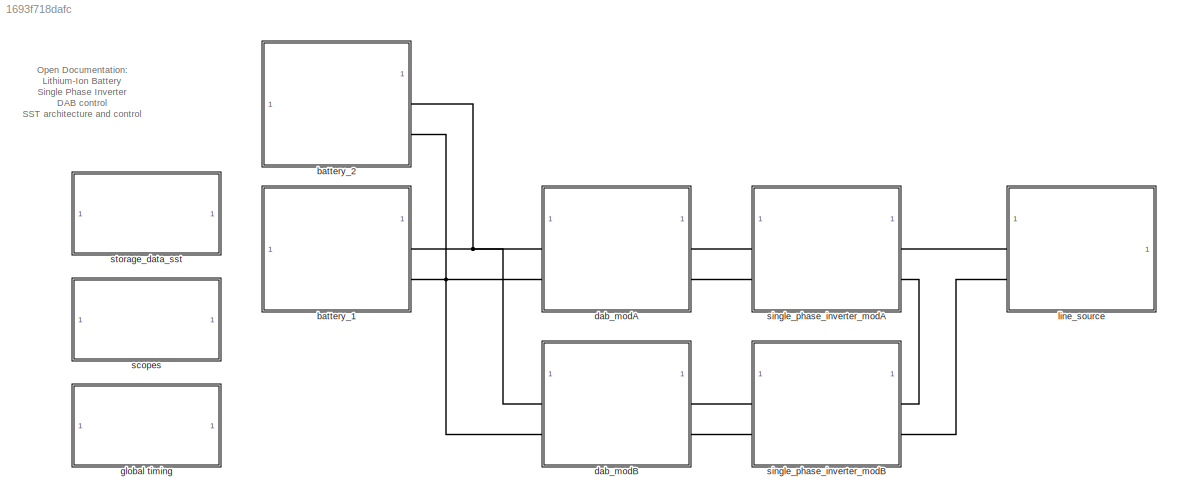
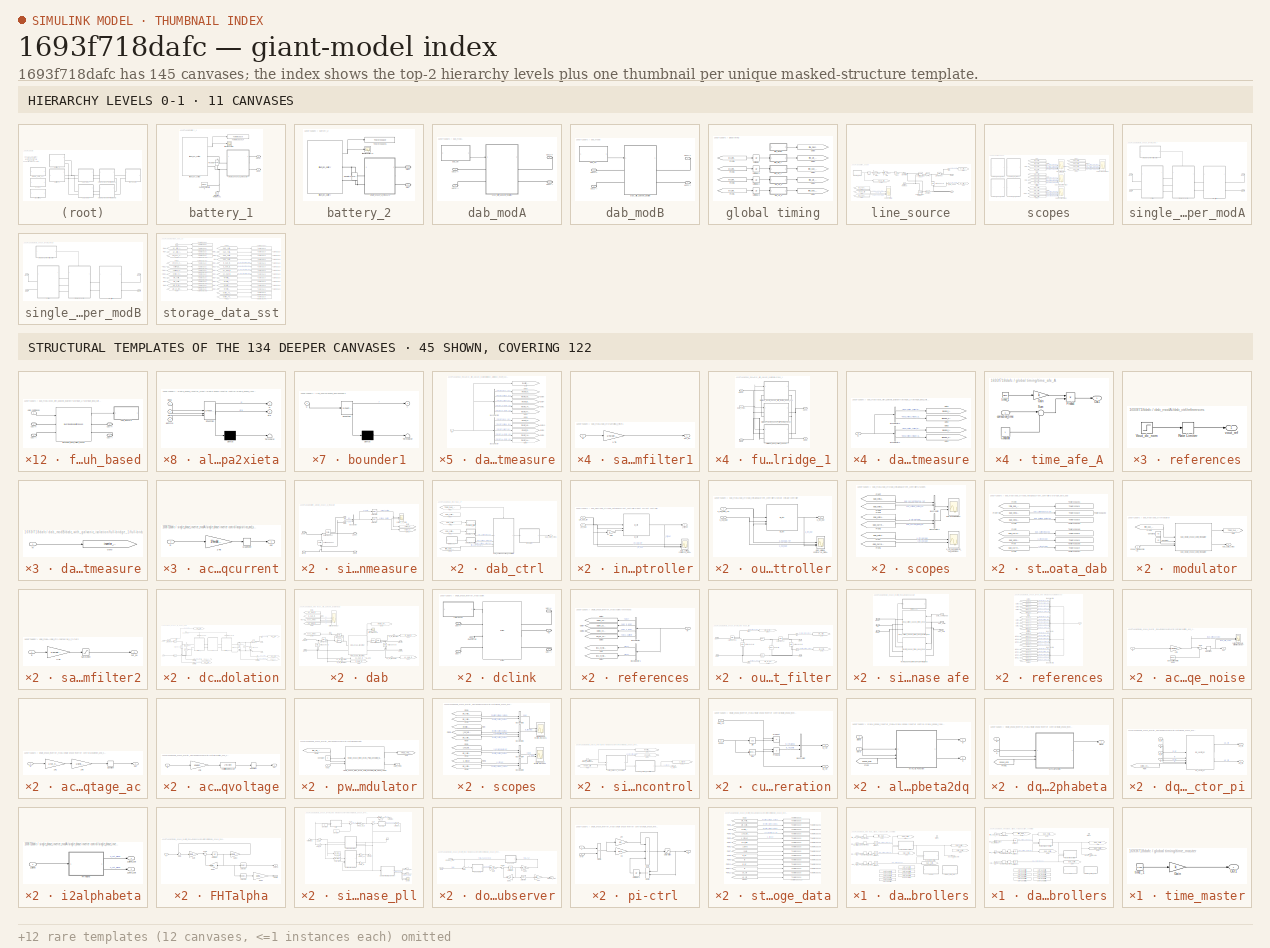
[diagram: thumbnail index - top-2 hierarchy levels (11 canvases) + 45 structural-template representatives of the remaining 134 canvases]
MODEL slx_1693f718dafc
KIND model
CONFIG EnableMultiTasking = on
CONFIG FixedStep = Ts
CONFIG MaxStep = Ts
CONFIG RelTol = Ts
CONFIG SolverName = ode23tb
CONFIG StopTime = simlength
BLOCK [SubSystem] battery_1
BLOCK [Reference] battery_1/Electrical Reference1  REF=fl_lib/Electrical/Electrical Elements/Electrical Reference
  NameLocation = right
  SourceBlock = fl_lib/Electrical/Electrical Elements/Electrical Reference
  SourceType = Electrical Reference
BLOCK [Reference] battery_1/Resistor3  REF=fl_lib/Electrical/Electrical Elements/Resistor
  NameLocation = left
  SourceBlock = fl_lib/Electrical/Electrical Elements/Resistor
  SourceType = Resistor
BLOCK [Reference] battery_1/Solver Configuration  REF=nesl_utility/Solver
Configuration
  SourceBlock = nesl_utility/Solver\nConfiguration
  SourceType = Solver\nConfiguration
BLOCK [ToWorkspace] battery_1/To Workspace14
  Decimation = glb_time.decimation_tc
  MaxDataPoints = glb_time.Nc
  SampleTime = glb_time.tc
  VariableName = battery_1_data_sim
BLOCK [Scope] battery_1/lithium ion battery
  ActiveDisplayYMaximum = 4016.1842956081723
  ActiveDisplayYMinimum = -7091.8699507565407
  DataLoggingVariableName = ScopeData3
  Floating = off
  GraphicalSettings = {"AxesScalingProperties":{"AlignXAxis":"Center","AlignYAxis":"Center","AutoScaleXAxisLimits":false,"AxesScaling":"Manual","AxesScalingNumUpdates":10,"ExpandOnly":true,"ScaleAxesLimitsAtStop":false,"XAxisDataRange":100,"YAxisDataRange":80},"DisplayProperties":{"ColorOrder":["auto","auto","auto","auto","auto","auto","auto","auto","auto","auto","auto","auto","auto","auto","auto","auto","auto","auto",...<+3789ch>
  LayoutDimensionsString = [1,1]
  MultipleDisplayCache = [{"MaxYLimMag":24260.121619263591,"MaxYLimReal":4016.1842956081723,"MinYLimMag":0,"MinYLimReal":-7091.8699507565407,"PlotAsMagnitudePhase":false,"ShowGrid":true,"ShowLegend":true,"Title":"%<SignalLabel>","YLabel":""}]
  NumInputPorts = 1
  ScopeFrameLocation = window
  ShowLegend = on
  ShowTimeAxisLabel = on
  WasSavedAsWebScope = on
  WindowPosition = [205.000000,73.000000,1536.000000,793.000000,]
BLOCK [Reference] battery_1/lithium_ion_battery  REF=lithium_ion_battery/lithium_ion_battery  (lib defined in slx_6ced8efa5f7a, slx_fdbdb18cfbf7)
  SourceBlock = lithium_ion_battery/lithium_ion_battery
BLOCK [SubSystem] battery_1/single_phase_ui_measure
BLOCK [BusCreator] battery_1/single_phase_ui_measure/Bus Creator
  DisplayOption = bar
  InheritFromInputs = on
  Inputs = 2
BLOCK [Reference] battery_1/single_phase_ui_measure/Current Sensor  REF=fl_lib/Electrical/Electrical Sensors/Current Sensor
  SourceBlock = fl_lib/Electrical/Electrical Sensors/Current Sensor
  SourceType = Current Sensor
BLOCK [Goto] battery_1/single_phase_ui_measure/Goto
  GotoTag = current_battery_1
  TagVisibility = global
BLOCK [Goto] battery_1/single_phase_ui_measure/Goto1
  GotoTag = voltage_battery_1
  TagVisibility = global
BLOCK [Selector] battery_1/single_phase_ui_measure/Selector
  IndexOptions = Index vector (dialog)
  Indices = 2
  InputPortWidth = 2
  OutputSizes = 1
BLOCK [Selector] battery_1/single_phase_ui_measure/Selector1
  IndexOptions = Index vector (dialog)
  Indices = 1
  InputPortWidth = 2
  OutputSizes = 1
BLOCK [PMIOPort] battery_1/single_phase_ui_measure/Udc(+)
  Side = Left
BLOCK [PMIOPort] battery_1/single_phase_ui_measure/Udc(-)
  Port = 3
  Side = Left
BLOCK [Reference] battery_1/single_phase_ui_measure/Voltage Sensor  REF=fl_lib/Electrical/Electrical Sensors/Voltage Sensor
  NameLocation = right
  SourceBlock = fl_lib/Electrical/Electrical Sensors/Voltage Sensor
  SourceType = Voltage Sensor
BLOCK [Scope] battery_1/single_phase_ui_measure/battery_1_data
  ActiveDisplayYMaximum = 763.90940495618577
  ActiveDisplayYMinimum = -6814.0031567217766
  ContainerLayout = {"WindowBounds":[-7,-7,1550,878],"gridDimensions":{"w":1,"h":1},"tileCount":1,"tileCoverage":1,"columnWeights":1,"rowWeights":1,"tileOccupancy":{}}
  DataLoggingVariableName = ScopeData2
  DisplayFullPath = on
  Floating = off
  GraphicalSettings = {"AxesScalingProperties":{"AlignXAxis":"Center","AlignYAxis":"Center","AutoScaleXAxisLimits":false,"AxesScaling":"Manual","AxesScalingNumUpdates":10,"ExpandOnly":true,"ScaleAxesLimitsAtStop":false,"XAxisDataRange":100,"YAxisDataRange":80},"DisplayProperties":{"ColorOrder":["auto","auto","auto","auto","auto","auto","auto","auto","auto","auto","auto","auto","auto","auto","auto","auto","auto","auto",...<+2578ch>
  LayoutDimensionsString = [2 1]
  MultipleDisplayCache = [{"MaxYLimMag":6814.0031567217766,"MaxYLimReal":763.90940495618577,"MinYLimMag":0,"MinYLimReal":-6814.0031567217766,"PlotAsMagnitudePhase":false,"ShowGrid":true,"ShowLegend":true,"Title":"%<SignalLabel>","YLabel":""},{"MaxYLimMag":3139.0629605362828,"MaxYLimReal":1398.5531290478684,"MinYLimMag":1023.8092124279908,"MinYLimReal":1211.1811707379297,"PlotAsMagnitudePhase":false,"ShowGrid":true,"ShowLe...<+49ch>
  NumInputPorts = 2
  SampleTime = glb_time.tc
  ScopeFrameLocation = window
  ShowLegend = on
  WasSavedAsWebScope = on
  WindowPosition = [728.000000,355.000000,593.000000,370.000000,]
BLOCK [Reference] battery_1/single_phase_ui_measure/iph  REF=nesl_utility/PS-Simulink
Converter
  SourceBlock = nesl_utility/PS-Simulink\nConverter
  SourceType = PS-Simulink\nConverter
BLOCK [PMIOPort] battery_1/single_phase_ui_measure/udc(+)
  Port = 2
  Side = Right
BLOCK [PMIOPort] battery_1/single_phase_ui_measure/udc(-)
  Port = 4
  Side = Right
BLOCK [Reference] battery_1/single_phase_ui_measure/uph  REF=nesl_utility/PS-Simulink
Converter
  SourceBlock = nesl_utility/PS-Simulink\nConverter
  SourceType = PS-Simulink\nConverter
BLOCK [PMIOPort] battery_1/udc(+)
  Side = Right
BLOCK [PMIOPort] battery_1/udc(-)
  Port = 2
  Side = Right
BLOCK [SubSystem] battery_2
BLOCK [Reference] battery_2/Resistor3  REF=fl_lib/Electrical/Electrical Elements/Resistor
  NameLocation = left
  SourceBlock = fl_lib/Electrical/Electrical Elements/Resistor
  SourceType = Resistor
BLOCK [ToWorkspace] battery_2/To Workspace1
  Decimation = glb_time.decimation_tc
  MaxDataPoints = glb_time.Nc
  SampleTime = glb_time.tc
  VariableName = battery_2_data_sim
BLOCK [Scope] battery_2/lithium ion battery 2
  ActiveDisplayYMaximum = 1423.6107684499555
  ActiveDisplayYMinimum = -298.54956882539238
  DataLoggingVariableName = ScopeData3
  Floating = off
  GraphicalSettings = {"Style":{"BackgroundColor":[0.12941176470588237,0.12941176470588237,0.12941176470588237],"AxesColor":[0.07058823529411765,0.07058823529411765,0.07058823529411765],"LabelsColor":[0.8509803921568627,0.8509803921568627,0.8509803921568627],"PreserveColors":false,"Visible":[true,false,true,false,false,false,false,false,true,true],"LineStyle":["-","-","-","-","-","-","-","-","-","-"],"LineWidth":[1.5,1...<+2922ch>
  LayoutDimensionsString = [1,1]
  MultipleDisplayCache = [{"MaxYLimMag":1423.6107684499555,"MaxYLimReal":1423.6107684499555,"MinYLimMag":0,"MinYLimReal":-298.54956882539238,"PlotAsMagnitudePhase":false,"ShowGrid":true,"ShowLegend":true,"Title":"%<SignalLabel>","YLabel":""}]
  NumInputPorts = 1
  ScopeFrameLocation = window
  ShowLegend = on
  ShowTimeAxisLabel = on
  WasSavedAsWebScope = on
  WindowPosition = [365.000000,155.000000,1181.000000,620.000000,]
BLOCK [Reference] battery_2/lithium_ion_battery  REF=lithium_ion_battery/lithium_ion_battery  (lib defined in slx_6ced8efa5f7a, slx_fdbdb18cfbf7)
  SourceBlock = lithium_ion_battery/lithium_ion_battery
BLOCK [SubSystem] battery_2/single_phase_ui_measure
BLOCK [BusCreator] battery_2/single_phase_ui_measure/Bus Creator
  DisplayOption = bar
  InheritFromInputs = on
  Inputs = 2
BLOCK [Reference] battery_2/single_phase_ui_measure/Current Sensor  REF=fl_lib/Electrical/Electrical Sensors/Current Sensor
  SourceBlock = fl_lib/Electrical/Electrical Sensors/Current Sensor
  SourceType = Current Sensor
BLOCK [Goto] battery_2/single_phase_ui_measure/Goto
  GotoTag = current_battery_2
  TagVisibility = global
BLOCK [Goto] battery_2/single_phase_ui_measure/Goto1
  GotoTag = voltage_battery_2
  TagVisibility = global
BLOCK [Selector] battery_2/single_phase_ui_measure/Selector
  IndexOptions = Index vector (dialog)
  Indices = 2
  InputPortWidth = 2
  OutputSizes = 1
BLOCK [Selector] battery_2/single_phase_ui_measure/Selector1
  IndexOptions = Index vector (dialog)
  Indices = 1
  InputPortWidth = 2
  OutputSizes = 1
BLOCK [PMIOPort] battery_2/single_phase_ui_measure/Udc(+)
  Side = Left
BLOCK [PMIOPort] battery_2/single_phase_ui_measure/Udc(-)
  Port = 3
  Side = Left
BLOCK [Reference] battery_2/single_phase_ui_measure/Voltage Sensor  REF=fl_lib/Electrical/Electrical Sensors/Voltage Sensor
  NameLocation = right
  SourceBlock = fl_lib/Electrical/Electrical Sensors/Voltage Sensor
  SourceType = Voltage Sensor
BLOCK [Scope] battery_2/single_phase_ui_measure/dab input modA
  ActiveDisplayYMaximum = 380.02865460453245
  ActiveDisplayYMinimum = -185.36722856942583
  ContainerLayout = {"WindowBounds":[-7,-7,1550,878],"gridDimensions":{"w":1,"h":1},"tileCount":1,"tileCoverage":1,"columnWeights":1,"rowWeights":1,"tileOccupancy":{}}
  DataLoggingVariableName = ScopeData2
  DisplayFullPath = on
  Floating = off
  GraphicalSettings = {"AxesScalingProperties":{"AlignXAxis":"Center","AlignYAxis":"Center","AutoScaleXAxisLimits":false,"AxesScaling":"Manual","AxesScalingNumUpdates":10,"ExpandOnly":true,"ScaleAxesLimitsAtStop":false,"XAxisDataRange":100,"YAxisDataRange":80},"DisplayProperties":{"ColorOrder":["auto","auto","auto","auto","auto","auto","auto","auto","auto","auto","auto","auto","auto","auto","auto","auto","auto","auto",...<+2546ch>
  LayoutDimensionsString = [2 1]
  MultipleDisplayCache = [{"MaxYLimMag":380.02865460453245,"MaxYLimReal":380.02865460453245,"MinYLimMag":0,"MinYLimReal":-185.36722856942583,"PlotAsMagnitudePhase":false,"ShowGrid":true,"ShowLegend":true,"Title":"%<SignalLabel>","YLabel":""},{"MaxYLimMag":1251.9291375375483,"MaxYLimReal":1251.9291375375483,"MinYLimMag":1231.977847944062,"MinYLimReal":1231.977847944062,"PlotAsMagnitudePhase":false,"ShowGrid":true,"ShowLege...<+47ch>
  NumInputPorts = 2
  SampleTime = glb_time.tc
  ScopeFrameLocation = window
  ShowLegend = on
  WasSavedAsWebScope = on
  WindowPosition = [728.000000,355.000000,593.000000,370.000000,]
BLOCK [Reference] battery_2/single_phase_ui_measure/iph  REF=nesl_utility/PS-Simulink
Converter
  SourceBlock = nesl_utility/PS-Simulink\nConverter
  SourceType = PS-Simulink\nConverter
BLOCK [PMIOPort] battery_2/single_phase_ui_measure/udc(+)
  Port = 2
  Side = Right
BLOCK [PMIOPort] battery_2/single_phase_ui_measure/udc(-)
  Port = 4
  Side = Right
BLOCK [Reference] battery_2/single_phase_ui_measure/uph  REF=nesl_utility/PS-Simulink
Converter
  SourceBlock = nesl_utility/PS-Simulink\nConverter
  SourceType = PS-Simulink\nConverter
BLOCK [PMIOPort] battery_2/udc+
  Side = Right
BLOCK [PMIOPort] battery_2/udc-
  Port = 2
  Side = Right
BLOCK [SubSystem] dab_modA
BLOCK [SubSystem] dab_modA/dab_ctrl
BLOCK [From] dab_modA/dab_ctrl/From
  GotoTag = TRGO_DAB_modA
  TagVisibility = global
BLOCK [From] dab_modA/dab_ctrl/From2
  GotoTag = dab_current_input_modA
  TagVisibility = global
BLOCK [From] dab_modA/dab_ctrl/From4
  GotoTag = dab_current_output_modA
  TagVisibility = global
BLOCK [From] dab_modA/dab_ctrl/From5
  GotoTag = dab_voltage_output_modA
  TagVisibility = global
BLOCK [From] dab_modA/dab_ctrl/From6
  GotoTag = time_dab_module_A
  TagVisibility = global
BLOCK [Outport] dab_modA/dab_ctrl/dab_gate_cmds
BLOCK [SubSystem] dab_modA/dab_ctrl/dab_voltage&current_controllers
BLOCK [Goto] dab_modA/dab_ctrl/dab_voltage&current_controllers/Goto
  GotoTag = dab_voltage_ctrl_output_pu
  TagVisibility = scoped
BLOCK [GotoTagVisibility] dab_modA/dab_ctrl/dab_voltage&current_controllers/Goto Tag Visibility
  GotoTag = dab_voltage_output_pu_reference
BLOCK [GotoTagVisibility] dab_modA/dab_ctrl/dab_voltage&current_controllers/Goto Tag Visibility1
  GotoTag = dab_voltage_output_pu
BLOCK [GotoTagVisibility] dab_modA/dab_ctrl/dab_voltage&current_controllers/Goto Tag Visibility2
  GotoTag = dab_voltage_ctrl_output_pu
BLOCK [GotoTagVisibility] dab_modA/dab_ctrl/dab_voltage&current_controllers/Goto Tag Visibility3
  GotoTag = dab_current_input_pu
BLOCK [GotoTagVisibility] dab_modA/dab_ctrl/dab_voltage&current_controllers/Goto Tag Visibility4
  GotoTag = dab_current_ctrl_output_pu
BLOCK [GotoTagVisibility] dab_modA/dab_ctrl/dab_voltage&current_controllers/Goto Tag Visibility5
  GotoTag = time_dab_module_1
BLOCK [Goto] dab_modA/dab_ctrl/dab_voltage&current_controllers/Goto1
  GotoTag = dab_current_ctrl_output_pu
  TagVisibility = scoped
BLOCK [Goto] dab_modA/dab_ctrl/dab_voltage&current_controllers/Goto2
  GotoTag = dab_voltage_output_pu_reference
  TagVisibility = scoped
BLOCK [Goto] dab_modA/dab_ctrl/dab_voltage&current_controllers/Goto3
  GotoTag = dab_voltage_output_pu
  TagVisibility = scoped
BLOCK [Goto] dab_modA/dab_ctrl/dab_voltage&current_controllers/Goto4
  GotoTag = dab_current_input_pu
  TagVisibility = scoped
BLOCK [Goto] dab_modA/dab_ctrl/dab_voltage&current_controllers/Goto5
  GotoTag = time_dab_module_1
  TagVisibility = scoped
BLOCK [Quantizer] dab_modA/dab_ctrl/dab_voltage&current_controllers/Quantizer1
  QuantizationInterval = adc12_quantization
BLOCK [Quantizer] dab_modA/dab_ctrl/dab_voltage&current_controllers/Quantizer2
  QuantizationInterval = adc12_quantization
BLOCK [TriggerPort] dab_modA/dab_ctrl/dab_voltage&current_controllers/Trigger
  PortDimensions = 1
  StatesWhenEnabling = held
  VariantControl = (inherit)
BLOCK [UnitDelay] dab_modA/dab_ctrl/dab_voltage&current_controllers/Unit Delay1
  SampleTime = -1
BLOCK [UnitDelay] dab_modA/dab_ctrl/dab_voltage&current_controllers/Unit Delay2
  SampleTime = -1
BLOCK [UnitDelay] dab_modA/dab_ctrl/dab_voltage&current_controllers/Unit Delay3
  SampleTime = -1
BLOCK [ZeroOrderHold] dab_modA/dab_ctrl/dab_voltage&current_controllers/Zero-Order Hold
  SampleTime = -1
BLOCK [ZeroOrderHold] dab_modA/dab_ctrl/dab_voltage&current_controllers/Zero-Order Hold1
  SampleTime = -1
BLOCK [ZeroOrderHold] dab_modA/dab_ctrl/dab_voltage&current_controllers/Zero-Order Hold2
  SampleTime = -1
BLOCK [ZeroOrderHold] dab_modA/dab_ctrl/dab_voltage&current_controllers/Zero-Order Hold3
  SampleTime = -1
BLOCK [Inport] dab_modA/dab_ctrl/dab_voltage&current_controllers/dab_current_input_pu
BLOCK [Inport] dab_modA/dab_ctrl/dab_voltage&current_controllers/dab_voltage_output pu_reference
  Port = 3
BLOCK [Inport] dab_modA/dab_ctrl/dab_voltage&current_controllers/dab_voltage_output_pu
  Port = 2
BLOCK [SubSystem] dab_modA/dab_ctrl/dab_voltage&current_controllers/input current controller
BLOCK [Gain] dab_modA/dab_ctrl/dab_voltage&current_controllers/input current controller/Gain
BLOCK [Scope] dab_modA/dab_ctrl/dab_voltage&current_controllers/input current controller/dab_current_control performance_modA
  ActiveDisplayYMaximum = 144.64166259765625
  ActiveDisplayYMinimum = -169.10894775390625
  DataLoggingVariableName = ScopeData12
  Floating = off
  GraphicalSettings = {"Style":{"BackgroundColor":[0.12941176470588237,0.12941176470588237,0.12941176470588237],"AxesColor":[0.07058823529411765,0.07058823529411765,0.07058823529411765],"LabelsColor":[0.8509803921568627,0.8509803921568627,0.8509803921568627],"PreserveColors":false,"Visible":[true,true,true],"LineStyle":["-","-","-"],"LineWidth":[1.5,1.5,1.5],"BarWidth":[0.9,0.9,0.9],"LineColor":["auto","auto","auto"],"...<+2244ch>
  MultipleDisplayCache = [{"MaxYLimMag":169.10894775390625,"MaxYLimReal":144.64166259765625,"MinYLimMag":0,"MinYLimReal":-169.10894775390625,"PlotAsMagnitudePhase":false,"ShowGrid":true,"ShowLegend":true,"Title":"%<SignalLabel>","YLabel":""}]
  NumInputPorts = 3
  ScopeFrameLocation = window
  ShowLegend = on
  WasSavedAsWebScope = on
  WindowPosition = [627.000000,495.000000,838.000000,414.000000,]
BLOCK [Outport] dab_modA/dab_ctrl/dab_voltage&current_controllers/input current controller/i_ctrl_out
BLOCK [Inport] dab_modA/dab_ctrl/dab_voltage&current_controllers/input current controller/i_in_dab
  Port = 2
BLOCK [Inport] dab_modA/dab_ctrl/dab_voltage&current_controllers/input current controller/i_in_dab_ref
BLOCK [Reference] dab_modA/dab_ctrl/dab_voltage&current_controllers/input current controller/pi_ctrl  REF=pi_ctrl/pi_ctrl  (lib defined in slx_6ad81216edf7, slx_b007f0f5aeb1)
  SourceBlock = pi_ctrl/pi_ctrl
BLOCK [SubSystem] dab_modA/dab_ctrl/dab_voltage&current_controllers/output voltage controller
BLOCK [Scope] dab_modA/dab_ctrl/dab_voltage&current_controllers/output voltage controller/dab_voltage_control performance_modA
  ActiveDisplayYMaximum = 9.22479248046875
  ActiveDisplayYMinimum = -5.46942138671875
  DataLoggingVariableName = ScopeData14
  Floating = off
  GraphicalSettings = {"Style":{"BackgroundColor":[0.12941176470588237,0.12941176470588237,0.12941176470588237],"AxesColor":[0.07058823529411765,0.07058823529411765,0.07058823529411765],"LabelsColor":[0.8509803921568627,0.8509803921568627,0.8509803921568627],"PreserveColors":false,"Visible":[true,true,true],"LineStyle":["-","-","-"],"LineWidth":[1.5,1.5,1.5],"BarWidth":[0.9,0.9,0.9],"LineColor":["auto","auto","auto"],"...<+2236ch>
  MultipleDisplayCache = [{"MaxYLimMag":9.22479248046875,"MaxYLimReal":9.22479248046875,"MinYLimMag":0,"MinYLimReal":-5.46942138671875,"PlotAsMagnitudePhase":false,"ShowGrid":true,"ShowLegend":true,"Title":"%<SignalLabel>","YLabel":""}]
  NumInputPorts = 3
  ScopeFrameLocation = window
  ShowLegend = on
  WasSavedAsWebScope = on
  WindowPosition = [719.000000,462.000000,783.000000,414.000000,]
BLOCK [Reference] dab_modA/dab_ctrl/dab_voltage&current_controllers/output voltage controller/pi_ctrl  REF=pi_ctrl/pi_ctrl  (lib defined in slx_6ad81216edf7, slx_b007f0f5aeb1)
  SourceBlock = pi_ctrl/pi_ctrl
BLOCK [Outport] dab_modA/dab_ctrl/dab_voltage&current_controllers/output voltage controller/u_ctrl_out
BLOCK [Inport] dab_modA/dab_ctrl/dab_voltage&current_controllers/output voltage controller/u_out_dab
  Port = 2
BLOCK [Inport] dab_modA/dab_ctrl/dab_voltage&current_controllers/output voltage controller/u_out_dab_ref
BLOCK [Outport] dab_modA/dab_ctrl/dab_voltage&current_controllers/phase_displacement
BLOCK [SubSystem] dab_modA/dab_ctrl/dab_voltage&current_controllers/scopes
BLOCK [BusCreator] dab_modA/dab_ctrl/dab_voltage&current_controllers/scopes/Bus Creator
  DisplayOption = bar
  InheritFromInputs = on
  Inputs = 2
BLOCK [BusCreator] dab_modA/dab_ctrl/dab_voltage&current_controllers/scopes/Bus Creator1
  DisplayOption = bar
  InheritFromInputs = on
  Inputs = 2
BLOCK [From] dab_modA/dab_ctrl/dab_voltage&current_controllers/scopes/From
  GotoTag = dab_voltage_ctrl_output_pu
  TagVisibility = scoped
BLOCK [From] dab_modA/dab_ctrl/dab_voltage&current_controllers/scopes/From1
  GotoTag = dab_current_ctrl_output_pu
  TagVisibility = scoped
BLOCK [From] dab_modA/dab_ctrl/dab_voltage&current_controllers/scopes/From2
  GotoTag = dab_current_input_pu
  TagVisibility = scoped
BLOCK [From] dab_modA/dab_ctrl/dab_voltage&current_controllers/scopes/From3
  GotoTag = dab_voltage_ctrl_output_pu
  TagVisibility = scoped
BLOCK [From] dab_modA/dab_ctrl/dab_voltage&current_controllers/scopes/From6
  GotoTag = dab_voltage_output_pu
  TagVisibility = scoped
BLOCK [From] dab_modA/dab_ctrl/dab_voltage&current_controllers/scopes/From7
  GotoTag = dab_voltage_output_pu_reference
  TagVisibility = scoped
BLOCK [Scope] dab_modA/dab_ctrl/dab_voltage&current_controllers/scopes/dab-tracking modA
  ActiveDisplayString = 2
  ActiveDisplayYMaximum = 2.9011172646804795
  ActiveDisplayYMinimum = -2.2033655574404327
  ContainerLayout = {"WindowBounds":[-7,-7,1550,878],"gridDimensions":{"w":1,"h":1},"tileCount":1,"tileCoverage":1,"columnWeights":1,"rowWeights":1,"tileOccupancy":{}}
  DataLoggingVariableName = ScopeData7
  Floating = off
  GraphicalSettings = {"Style":{"BackgroundColor":[0.12941176470588237,0.12941176470588237,0.12941176470588237],"AxesColor":[0.07058823529411765,0.07058823529411765,0.07058823529411765],"LabelsColor":[0.8509803921568627,0.8509803921568627,0.8509803921568627],"PreserveColors":false,"Visible":[true,true,true,true],"LineStyle":["-","-","-","-"],"LineWidth":[1.5,1.5,1.5,1.5],"BarWidth":[0.9,0.9,0.9,0.9],"LineColor":["auto"...<+2743ch>
  LayoutDimensionsString = [2,1]
  MultipleDisplayCache = [{"MaxYLimMag":1.5983802365933728,"MaxYLimReal":1.5983802365933728,"MinYLimMag":0,"MinYLimReal":-0.17759780406593029,"PlotAsMagnitudePhase":false,"ShowGrid":true,"ShowLegend":true,"Title":"%<SignalLabel>","YLabel":""},{"MaxYLimMag":2.9011172646804795,"MaxYLimReal":2.9011172646804795,"MinYLimMag":0,"MinYLimReal":-2.2033655574404327,"PlotAsMagnitudePhase":false,"ShowGrid":true,"ShowLegend":true,"Tit...<+34ch>
  NumInputPorts = 2
  ScopeFrameLocation = window
  ShowLegend = on
  WasSavedAsWebScope = on
  WindowPosition = [0.000000,29.000000,1536.000000,807.000000,]
BLOCK [Scope] dab_modA/dab_ctrl/dab_voltage&current_controllers/scopes/u_ctrl_out_dab//i_ctrl_out_dab modA
  ActiveDisplayString = 2
  ActiveDisplayYMaximum = 1.25
  ActiveDisplayYMinimum = -1.25
  ContainerLayout = {"WindowBounds":[-7,-7,1550,878],"gridDimensions":{"w":1,"h":1},"tileCount":1,"tileCoverage":1,"columnWeights":1,"rowWeights":1,"tileOccupancy":{}}
  Floating = off
  GraphicalSettings = {"Style":{"BackgroundColor":[0.12941176470588237,0.12941176470588237,0.12941176470588237],"AxesColor":[0.07058823529411765,0.07058823529411765,0.07058823529411765],"LabelsColor":[0.8509803921568627,0.8509803921568627,0.8509803921568627],"PreserveColors":false,"Visible":[true,true],"LineStyle":["-","-"],"LineWidth":[1.5,1.5],"BarWidth":[0.9,0.9],"LineColor":[[0.06666666666666667,0.44313725490196076...<+2513ch>
  LayoutDimensionsString = [2,1]
  MultipleDisplayCache = [{"MaxYLimMag":2.358385394364281,"MaxYLimReal":2.358385394364281,"MinYLimMag":0,"MinYLimReal":-1.2254685492785284,"PlotAsMagnitudePhase":false,"ShowGrid":true,"ShowLegend":true,"Title":"%<SignalLabel>","YLabel":""},{"MaxYLimMag":1.25,"MaxYLimReal":1.25,"MinYLimMag":0,"MinYLimReal":-1.25,"PlotAsMagnitudePhase":false,"ShowGrid":true,"ShowLegend":true,"Title":"%<SignalLabel>","YLabel":""}]
  NumInputPorts = 2
  ScopeFrameLocation = window
  ShowLegend = on
  WasSavedAsWebScope = on
  WindowPosition = [0.000000,29.000000,1536.000000,807.000000,]
BLOCK [SubSystem] dab_modA/dab_ctrl/dab_voltage&current_controllers/storage_data_dab
BLOCK [From] dab_modA/dab_ctrl/dab_voltage&current_controllers/storage_data_dab/From
  GotoTag = dab_voltage_ctrl_output_pu
  TagVisibility = scoped
BLOCK [From] dab_modA/dab_ctrl/dab_voltage&current_controllers/storage_data_dab/From1
  GotoTag = dab_current_ctrl_output_pu
  TagVisibility = scoped
BLOCK [From] dab_modA/dab_ctrl/dab_voltage&current_controllers/storage_data_dab/From2
  GotoTag = dab_current_input_pu
  TagVisibility = scoped
BLOCK [From] dab_modA/dab_ctrl/dab_voltage&current_controllers/storage_data_dab/From4
  GotoTag = time_dab_module_1
  TagVisibility = scoped
BLOCK [From] dab_modA/dab_ctrl/dab_voltage&current_controllers/storage_data_dab/From6
  GotoTag = dab_voltage_output_pu
  TagVisibility = scoped
BLOCK [From] dab_modA/dab_ctrl/dab_voltage&current_controllers/storage_data_dab/From7
  GotoTag = dab_voltage_output_pu_reference
  TagVisibility = scoped
BLOCK [ToWorkspace] dab_modA/dab_ctrl/dab_voltage&current_controllers/storage_data_dab/To Workspace1
  MaxDataPoints = glb_time.Ns_dab
  SampleTime = -1
  VariableName = time_ts_dab_sim
BLOCK [ToWorkspace] dab_modA/dab_ctrl/dab_voltage&current_controllers/storage_data_dab/To Workspace2
  MaxDataPoints = glb_time.Ns_dab
  SampleTime = -1
  VariableName = dab_current_input_pu_ref_sim
BLOCK [ToWorkspace] dab_modA/dab_ctrl/dab_voltage&current_controllers/storage_data_dab/To Workspace3
  MaxDataPoints = glb_time.Ns_dab
  SampleTime = -1
  VariableName = dab_voltage_output_pu_sim
BLOCK [ToWorkspace] dab_modA/dab_ctrl/dab_voltage&current_controllers/storage_data_dab/To Workspace5
  MaxDataPoints = glb_time.Ns_dab
  SampleTime = -1
  VariableName = dab_current_input_pu_sim
BLOCK [ToWorkspace] dab_modA/dab_ctrl/dab_voltage&current_controllers/storage_data_dab/To Workspace6
  MaxDataPoints = glb_time.Ns_dab
  SampleTime = -1
  VariableName = u_ctrl_out_dab_sim
BLOCK [ToWorkspace] dab_modA/dab_ctrl/dab_voltage&current_controllers/storage_data_dab/To Workspace7
  MaxDataPoints = glb_time.Ns_dab
  SampleTime = -1
  VariableName = i_ctrl_out_dab_sim
BLOCK [Inport] dab_modA/dab_ctrl/dab_voltage&current_controllers/time_dab_module_1
  Port = 4
BLOCK [SubSystem] dab_modA/dab_ctrl/modulator
BLOCK [Constant] dab_modA/dab_ctrl/modulator/Constant
  Value = 0.5
BLOCK [Constant] dab_modA/dab_ctrl/modulator/Constant1
  Value = 0.5
BLOCK [From] dab_modA/dab_ctrl/modulator/From3
  GotoTag = time_dab_module_A
  TagVisibility = global
BLOCK [Goto] dab_modA/dab_ctrl/modulator/Goto
  GotoTag = TRGO_DAB_modA
  TagVisibility = global
BLOCK [Outport] dab_modA/dab_ctrl/modulator/dab_gate_cmds
BLOCK [Reference] dab_modA/dab_ctrl/modulator/dab_single_phase_pwm_modulator  REF=dab_single_phase_pwm_modulator/dab_single_phase_pwm_modulator  (lib defined in slx_54a077001148)
  SourceBlock = dab_single_phase_pwm_modulator/dab_single_phase_pwm_modulator
BLOCK [Inport] dab_modA/dab_ctrl/modulator/phase_displacement
BLOCK [SubSystem] dab_modA/dab_ctrl/references
BLOCK [RateLimiter] dab_modA/dab_ctrl/references/Rate Limiter
  FallingSlewLimit = -10*hwdata.dab.udc2_bez
  RisingSlewLimit = 10*hwdata.dab.udc2_bez
  SampleTimeMode = inherited
BLOCK [Step] dab_modA/dab_ctrl/references/Vout_dc_nom
  FinalValue = hwdata.dab.udc2_bez
  SampleTime = 0
  Time = 1e-3
BLOCK [Outport] dab_modA/dab_ctrl/references/vout_ref
BLOCK [SubSystem] dab_modA/dab_ctrl/sampling_i_filter1
BLOCK [Gain] dab_modA/dab_ctrl/sampling_i_filter1/1//Ti3
  Gain = 1/hwdata.dab.idc1_bez
  OutDataTypeStr = double
  ParamDataTypeStr = Inherit: Same as input
  SaturateOnIntegerOverflow = on
BLOCK [Inport] dab_modA/dab_ctrl/sampling_i_filter1/in
BLOCK [Outport] dab_modA/dab_ctrl/sampling_i_filter1/out_pu
BLOCK [SubSystem] dab_modA/dab_ctrl/sampling_v_filter1
BLOCK [Gain] dab_modA/dab_ctrl/sampling_v_filter1/1//Ti3
  Gain = 1/1/hwdata.dab.udc2_bez
  OutDataTypeStr = double
  ParamDataTypeStr = Inherit: Same as input
  SaturateOnIntegerOverflow = on
BLOCK [Inport] dab_modA/dab_ctrl/sampling_v_filter1/in
BLOCK [Outport] dab_modA/dab_ctrl/sampling_v_filter1/out_pu
BLOCK [SubSystem] dab_modA/dab_ctrl/sampling_v_filter2
BLOCK [Gain] dab_modA/dab_ctrl/sampling_v_filter2/1//Ti3
  Gain = 1/hwdata.dab.udc2_bez
  OutDataTypeStr = double
  ParamDataTypeStr = Inherit: Same as input
  SaturateOnIntegerOverflow = on
BLOCK [Saturate] dab_modA/dab_ctrl/sampling_v_filter2/Saturation
  LowerLimit = 0
  OutDataTypeStr = double
  UpperLimit = 1
BLOCK [Inport] dab_modA/dab_ctrl/sampling_v_filter2/in
BLOCK [Outport] dab_modA/dab_ctrl/sampling_v_filter2/out_pu
BLOCK [SubSystem] dab_modA/dcdc_with_galvanic_isolation
BLOCK [BusSelector] dab_modA/dcdc_with_galvanic_isolation/Bus Selector
  NameLocation = left
  OutputAsBus = on
  OutputSignals = full_bridge1.gate_cmd_Q1,full_bridge1.gate_cmd_Q2,full_bridge1.gate_cmd_Q3,full_bridge1.gate_cmd_Q4
BLOCK [BusSelector] dab_modA/dcdc_with_galvanic_isolation/Bus Selector1
  NameLocation = left
  OutputAsBus = on
  OutputSignals = full_bridge2.gate_cmd_Q1,full_bridge2.gate_cmd_Q2,full_bridge2.gate_cmd_Q3,full_bridge2.gate_cmd_Q4
BLOCK [Reference] dab_modA/dcdc_with_galvanic_isolation/CFi_dc1  REF=fl_lib/Electrical/Electrical Elements/Capacitor
  NameLocation = right
  SourceBlock = fl_lib/Electrical/Electrical Elements/Capacitor
  SourceType = Capacitor
BLOCK [Reference] dab_modA/dcdc_with_galvanic_isolation/CFi_dc2  REF=fl_lib/Electrical/Electrical Elements/Capacitor
  NameLocation = right
  SourceBlock = fl_lib/Electrical/Electrical Elements/Capacitor
  SourceType = Capacitor
BLOCK [Reference] dab_modA/dcdc_with_galvanic_isolation/Current Sensor  REF=fl_lib/Electrical/Electrical Sensors/Current Sensor
  NameLocation = left
  SourceBlock = fl_lib/Electrical/Electrical Sensors/Current Sensor
  SourceType = Current Sensor
BLOCK [Reference] dab_modA/dcdc_with_galvanic_isolation/Current Sensor1  REF=fl_lib/Electrical/Electrical Sensors/Current Sensor
  NameLocation = left
  SourceBlock = fl_lib/Electrical/Electrical Sensors/Current Sensor
  SourceType = Current Sensor
BLOCK [Reference] dab_modA/dcdc_with_galvanic_isolation/Current Sensor2  REF=fl_lib/Electrical/Electrical Sensors/Current Sensor
  SourceBlock = fl_lib/Electrical/Electrical Sensors/Current Sensor
  SourceType = Current Sensor
BLOCK [Reference] dab_modA/dcdc_with_galvanic_isolation/Current Sensor3  REF=fl_lib/Electrical/Electrical Sensors/Current Sensor
  SourceBlock = fl_lib/Electrical/Electrical Sensors/Current Sensor
  SourceType = Current Sensor
BLOCK [Goto] dab_modA/dcdc_with_galvanic_isolation/Goto
  GotoTag = CFi_dc1_current_modA
  TagVisibility = global
BLOCK [Goto] dab_modA/dcdc_with_galvanic_isolation/Goto1
  GotoTag = dab_voltage_input_modA
  TagVisibility = global
BLOCK [Goto] dab_modA/dcdc_with_galvanic_isolation/Goto2
  GotoTag = CFi_dc2_current_modA
  TagVisibility = global
BLOCK [Goto] dab_modA/dcdc_with_galvanic_isolation/Goto3
  GotoTag = dab_current_output_modA
  TagVisibility = global
BLOCK [Goto] dab_modA/dcdc_with_galvanic_isolation/Goto4
  GotoTag = dab_voltage_output_modA
  TagVisibility = global
BLOCK [Goto] dab_modA/dcdc_with_galvanic_isolation/Goto5
  GotoTag = dab_current_input_modA
  TagVisibility = global
BLOCK [Reference] dab_modA/dcdc_with_galvanic_isolation/LFi_dc1  REF=fl_lib/Electrical/Electrical Elements/Inductor
  SourceBlock = fl_lib/Electrical/Electrical Elements/Inductor
  SourceType = Inductor
BLOCK [Reference] dab_modA/dcdc_with_galvanic_isolation/LFi_dc2  REF=fl_lib/Electrical/Electrical Elements/Inductor
  SourceBlock = fl_lib/Electrical/Electrical Elements/Inductor
  SourceType = Inductor
BLOCK [Reference] dab_modA/dcdc_with_galvanic_isolation/PS-Simulink Converter1  REF=nesl_utility/PS-Simulink
Converter
  SourceBlock = nesl_utility/PS-Simulink\nConverter
  SourceType = PS-Simulink\nConverter
BLOCK [Reference] dab_modA/dcdc_with_galvanic_isolation/PS-Simulink Converter2  REF=nesl_utility/PS-Simulink
Converter
  SourceBlock = nesl_utility/PS-Simulink\nConverter
  SourceType = PS-Simulink\nConverter
BLOCK [Reference] dab_modA/dcdc_with_galvanic_isolation/PS-Simulink Converter4  REF=nesl_utility/PS-Simulink
Converter
  SourceBlock = nesl_utility/PS-Simulink\nConverter
  SourceType = PS-Simulink\nConverter
BLOCK [Reference] dab_modA/dcdc_with_galvanic_isolation/Resistor  REF=fl_lib/Electrical/Electrical Elements/Resistor
  NameLocation = left
  SourceBlock = fl_lib/Electrical/Electrical Elements/Resistor
  SourceType = Resistor
BLOCK [Reference] dab_modA/dcdc_with_galvanic_isolation/Voltage Sensor  REF=fl_lib/Electrical/Electrical Sensors/Voltage Sensor
  NameLocation = right
  SourceBlock = fl_lib/Electrical/Electrical Sensors/Voltage Sensor
  SourceType = Voltage Sensor
BLOCK [Reference] dab_modA/dcdc_with_galvanic_isolation/Voltage Sensor1  REF=fl_lib/Electrical/Electrical Sensors/Voltage Sensor
  NameLocation = right
  SourceBlock = fl_lib/Electrical/Electrical Sensors/Voltage Sensor
  SourceType = Voltage Sensor
BLOCK [SubSystem] dab_modA/dcdc_with_galvanic_isolation/dab
BLOCK [Reference] dab_modA/dcdc_with_galvanic_isolation/dab/Capacitor  REF=fl_lib/Electrical/Electrical Elements/Capacitor
  SourceBlock = fl_lib/Electrical/Electrical Elements/Capacitor
  SourceType = Capacitor
BLOCK [Reference] dab_modA/dcdc_with_galvanic_isolation/dab/Capacitor1  REF=fl_lib/Electrical/Electrical Elements/Capacitor
  SourceBlock = fl_lib/Electrical/Electrical Elements/Capacitor
  SourceType = Capacitor
BLOCK [Reference] dab_modA/dcdc_with_galvanic_isolation/dab/Current Sensor  REF=fl_lib/Electrical/Electrical Sensors/Current Sensor
  SourceBlock = fl_lib/Electrical/Electrical Sensors/Current Sensor
  SourceType = Current Sensor
BLOCK [Reference] dab_modA/dcdc_with_galvanic_isolation/dab/Current Sensor1  REF=fl_lib/Electrical/Electrical Sensors/Current Sensor
  SourceBlock = fl_lib/Electrical/Electrical Sensors/Current Sensor
  SourceType = Current Sensor
BLOCK [From] dab_modA/dcdc_with_galvanic_isolation/dab/From
  GotoTag = ucs1_modA
  NameLocation = top
  TagVisibility = global
BLOCK [From] dab_modA/dcdc_with_galvanic_isolation/dab/From1
  GotoTag = u1_dab_transformer_modA
  TagVisibility = global
BLOCK [From] dab_modA/dcdc_with_galvanic_isolation/dab/From2
  GotoTag = i1_dab_transformer_modA
  TagVisibility = global
BLOCK [From] dab_modA/dcdc_with_galvanic_isolation/dab/From3
  GotoTag = u2_dab_transformer_modA
  TagVisibility = global
BLOCK [Goto] dab_modA/dcdc_with_galvanic_isolation/dab/Goto1
  GotoTag = u2_dab_transformer_modA
  TagVisibility = global
BLOCK [Goto] dab_modA/dcdc_with_galvanic_isolation/dab/Goto2
  GotoTag = i1_dab_transformer_modA
  TagVisibility = global
BLOCK [Goto] dab_modA/dcdc_with_galvanic_isolation/dab/Goto3
  GotoTag = u1_dab_transformer_modA
  TagVisibility = global
BLOCK [Goto] dab_modA/dcdc_with_galvanic_isolation/dab/Goto4
  GotoTag = i2_dab_transformer_modA
  TagVisibility = global
BLOCK [Goto] dab_modA/dcdc_with_galvanic_isolation/dab/Goto5
  GotoTag = single_phase_transformer_data_modA
  TagVisibility = global
BLOCK [Goto] dab_modA/dcdc_with_galvanic_isolation/dab/Goto6
  GotoTag = ucs1_modA
  NameLocation = top
  TagVisibility = global
BLOCK [Reference] dab_modA/dcdc_with_galvanic_isolation/dab/Voltage Sensor1  REF=fl_lib/Electrical/Electrical Sensors/Voltage Sensor
  NameLocation = right
  SourceBlock = fl_lib/Electrical/Electrical Sensors/Voltage Sensor
  SourceType = Voltage Sensor
BLOCK [Reference] dab_modA/dcdc_with_galvanic_isolation/dab/Voltage Sensor2  REF=fl_lib/Electrical/Electrical Sensors/Voltage Sensor
  SourceBlock = fl_lib/Electrical/Electrical Sensors/Voltage Sensor
  SourceType = Voltage Sensor
BLOCK [Reference] dab_modA/dcdc_with_galvanic_isolation/dab/Voltage Sensor3  REF=fl_lib/Electrical/Electrical Sensors/Voltage Sensor
  NameLocation = right
  SourceBlock = fl_lib/Electrical/Electrical Sensors/Voltage Sensor
  SourceType = Voltage Sensor
BLOCK [Scope] dab_modA/dcdc_with_galvanic_isolation/dab/fsw//fres behaviour
  ActiveDisplayYMaximum = 3383.5844318464588
  ActiveDisplayYMinimum = -4267.1609835025592
  DataLoggingVariableName = ScopeData14
  DisplayFullPath = on
  Floating = off
  GraphicalSettings = {"AxesScalingProperties":{"AlignXAxis":"Center","AlignYAxis":"Center","AutoScaleXAxisLimits":false,"AxesScaling":"Manual","AxesScalingNumUpdates":10,"ExpandOnly":true,"ScaleAxesLimitsAtStop":false,"XAxisDataRange":100,"YAxisDataRange":80},"Cursors":{"CursorChannels":["auto","auto"],"Enabled":true,"Horizontal":true,"LinkToWaveform":true,"LockSpacing":false,"ShowMeasurement":true,"ShowPanel":true,"S...<+2633ch>
  MultipleDisplayCache = [{"MaxYLimMag":60393.229814704748,"MaxYLimReal":3383.5844318464588,"MinYLimMag":0,"MinYLimReal":-4267.1609835025592,"PlotAsMagnitudePhase":false,"ShowGrid":true,"ShowLegend":true,"Title":"%<SignalLabel>","YLabel":""}]
  NumInputPorts = 4
  ScopeFrameLocation = window
  ShowLegend = on
  WasSavedAsWebScope = on
  WindowPosition = [-256.000000,-72.000000,1539.000000,844.000000,]
BLOCK [Reference] dab_modA/dcdc_with_galvanic_isolation/dab/i1_cllc_transformer  REF=nesl_utility/PS-Simulink
Converter
  SourceBlock = nesl_utility/PS-Simulink\nConverter
  SourceType = PS-Simulink\nConverter
BLOCK [Reference] dab_modA/dcdc_with_galvanic_isolation/dab/i2_cllc_transformer  REF=nesl_utility/PS-Simulink
Converter
  SourceBlock = nesl_utility/PS-Simulink\nConverter
  SourceType = PS-Simulink\nConverter
BLOCK [Reference] dab_modA/dcdc_with_galvanic_isolation/dab/single_phase_transformer  REF=single_phase_transformer/single_phase_transformer  (lib defined in slx_6d7e0d44efe5)
  SourceBlock = single_phase_transformer/single_phase_transformer
BLOCK [Scope] dab_modA/dcdc_with_galvanic_isolation/dab/single_phase_transformer - scope
  ActiveDisplayYMaximum = 15970.564510283053
  ActiveDisplayYMinimum = -15851.878902244713
  DataLoggingVariableName = ScopeData21
  Floating = off
  GraphicalSettings = {"Style":{"BackgroundColor":[0.12941176470588237,0.12941176470588237,0.12941176470588237],"AxesColor":[0.07058823529411765,0.07058823529411765,0.07058823529411765],"LabelsColor":[0.8509803921568627,0.8509803921568627,0.8509803921568627],"PreserveColors":false,"Visible":[false,false,true,true,true,true,true],"LineStyle":["-","-","-","-","-","-","-"],"LineWidth":[1.5,1.5,1.5,1.5,1.5,1.5,1.5],"BarWid...<+2985ch>
  MultipleDisplayCache = [{"MaxYLimMag":15970.564510283053,"MaxYLimReal":15970.564510283053,"MinYLimMag":0,"MinYLimReal":-15851.878902244713,"PlotAsMagnitudePhase":false,"ShowGrid":true,"ShowLegend":true,"Title":"%<SignalLabel>","YLabel":""}]
  NumInputPorts = 1
  ScopeFrameLocation = window
  ShowLegend = on
  WasSavedAsWebScope = on
  WindowPosition = [300.000000,103.000000,1539.000000,844.000000,]
BLOCK [Reference] dab_modA/dcdc_with_galvanic_isolation/dab/u1_cllc_transformer  REF=nesl_utility/PS-Simulink
Converter
  SourceBlock = nesl_utility/PS-Simulink\nConverter
  SourceType = PS-Simulink\nConverter
BLOCK [Reference] dab_modA/dcdc_with_galvanic_isolation/dab/u2_cllc_transformer  REF=nesl_utility/PS-Simulink
Converter
  SourceBlock = nesl_utility/PS-Simulink\nConverter
  SourceType = PS-Simulink\nConverter
BLOCK [PMIOPort] dab_modA/dcdc_with_galvanic_isolation/dab/uac1(+)
  Side = Left
BLOCK [PMIOPort] dab_modA/dcdc_with_galvanic_isolation/dab/uac1(-)
  Port = 3
  Side = Left
BLOCK [PMIOPort] dab_modA/dcdc_with_galvanic_isolation/dab/uac2(+)
  Port = 2
  Side = Right
BLOCK [PMIOPort] dab_modA/dcdc_with_galvanic_isolation/dab/uac2(-)
  Port = 4
  Side = Right
BLOCK [Reference] dab_modA/dcdc_with_galvanic_isolation/dab/ucs  REF=nesl_utility/PS-Simulink
Converter
  NameLocation = top
  SourceBlock = nesl_utility/PS-Simulink\nConverter
  SourceType = PS-Simulink\nConverter
BLOCK [Inport] dab_modA/dcdc_with_galvanic_isolation/dab_gate_cmds
BLOCK [SubSystem] dab_modA/dcdc_with_galvanic_isolation/full-bridge_1
  PortSchema = {"entries":[{"content":{"sides":[{"content":{"connectorIds":["LConn1","LConn2"]},"type":"ConnectorPlacement.EquallySpacedRectSide","uuid":"c872503a-61af-4937-bdf2-4de4f8645573"},{"content":{"connectorIds":["RConn1","RConn2"],"side":"RIGHT"},"type":"ConnectorPlacement.EquallySpacedRectSide","uuid":"3b83f060-86a2-4569-84b5-d9f7c0485347"},{"content":{"connectorIds":["In1"],"side":"TOP"},"type":"Conne...<+268ch>  <repeated x4 — deduplicated; at blocks: full-bridge_1, full-bridge_2>
BLOCK [SubSystem] dab_modA/dcdc_with_galvanic_isolation/full-bridge_1/full-bridge_ideal_switch_based
  Commented = on
BLOCK [SubSystem] dab_modA/dcdc_with_galvanic_isolation/full-bridge_1/full-bridge_ideal_switch_based/data_measure
BLOCK [BusSelector] dab_modA/dcdc_with_galvanic_isolation/full-bridge_1/full-bridge_ideal_switch_based/data_measure/Bus Selector1
  OutputSignals = ideal_switch_current_Q2,ideal_switch_voltage_Q2
BLOCK [BusSelector] dab_modA/dcdc_with_galvanic_isolation/full-bridge_1/full-bridge_ideal_switch_based/data_measure/Bus Selector2
  OutputSignals = ideal_switch_current_Q1,ideal_switch_voltage_Q1
BLOCK [Goto] dab_modA/dcdc_with_galvanic_isolation/full-bridge_1/full-bridge_ideal_switch_based/data_measure/Goto1
  GotoTag = idevice_uds_dab_Q2_modA
  TagVisibility = global
BLOCK [Goto] dab_modA/dcdc_with_galvanic_isolation/full-bridge_1/full-bridge_ideal_switch_based/data_measure/Goto2
  GotoTag = idevice_uds_dab_Q1_modA
  TagVisibility = global
BLOCK [Goto] dab_modA/dcdc_with_galvanic_isolation/full-bridge_1/full-bridge_ideal_switch_based/data_measure/Goto3
  GotoTag = idevice_ids_dab_Q2_modA
  TagVisibility = global
BLOCK [Goto] dab_modA/dcdc_with_galvanic_isolation/full-bridge_1/full-bridge_ideal_switch_based/data_measure/Goto4
  GotoTag = idevice_ids_dab_Q1_modA
  TagVisibility = global
BLOCK [Inport] dab_modA/dcdc_with_galvanic_isolation/full-bridge_1/full-bridge_ideal_switch_based/data_measure/m
BLOCK [Reference] dab_modA/dcdc_with_galvanic_isolation/full-bridge_1/full-bridge_ideal_switch_based/full-bridge_ideal_switch_based  REF=full_bridge_ideal_switch/full-bridge ideal switch based  (lib defined in slx_9c9ebabd3f14)
  SourceBlock = full_bridge_ideal_switch/full-bridge ideal switch based
BLOCK [Inport] dab_modA/dcdc_with_galvanic_isolation/full-bridge_1/full-bridge_ideal_switch_based/gate_commands
BLOCK [PMIOPort] dab_modA/dcdc_with_galvanic_isolation/full-bridge_1/full-bridge_ideal_switch_based/uac(+)
  Port = 2
  Side = Right
BLOCK [PMIOPort] dab_modA/dcdc_with_galvanic_isolation/full-bridge_1/full-bridge_ideal_switch_based/uac(-)
  Port = 4
  Side = Right
BLOCK [PMIOPort] dab_modA/dcdc_with_galvanic_isolation/full-bridge_1/full-bridge_ideal_switch_based/udc(+)
  Side = Left
BLOCK [PMIOPort] dab_modA/dcdc_with_galvanic_isolation/full-bridge_1/full-bridge_ideal_switch_based/udc(-)
  Port = 3
  Side = Left
BLOCK [SubSystem] dab_modA/dcdc_with_galvanic_isolation/full-bridge_1/full-bridge_mosfet_based_with_thermal_model
  Commented = on
BLOCK [SubSystem] dab_modA/dcdc_with_galvanic_isolation/full-bridge_1/full-bridge_mosfet_based_with_thermal_model/data_measure
BLOCK [BusSelector] dab_modA/dcdc_with_galvanic_isolation/full-bridge_1/full-bridge_mosfet_based_with_thermal_model/data_measure/Bus Selector
  OutputSignals = mosfet_ploss_Q1,mosfet_voltage_Q1,mosfet_current_Q1,mosfet_JH_temp_Q1,mosfet_HA_temp_Q1
BLOCK [BusSelector] dab_modA/dcdc_with_galvanic_isolation/full-bridge_1/full-bridge_mosfet_based_with_thermal_model/data_measure/Bus Selector1
  OutputSignals = mosfet_ploss_Q2,mosfet_voltage_Q2,mosfet_current_Q2,mosfet_JH_temp_Q2,mosfet_HA_temp_Q2
BLOCK [Goto] dab_modA/dcdc_with_galvanic_isolation/full-bridge_1/full-bridge_mosfet_based_with_thermal_model/data_measure/Goto
  GotoTag = inverter_1_dab_mosfet_modA
  TagVisibility = global
BLOCK [Goto] dab_modA/dcdc_with_galvanic_isolation/full-bridge_1/full-bridge_mosfet_based_with_thermal_model/data_measure/Goto1
  GotoTag = mosfet_JH_temp_dab_Q2
  TagVisibility = global
BLOCK [Goto] dab_modA/dcdc_with_galvanic_isolation/full-bridge_1/full-bridge_mosfet_based_with_thermal_model/data_measure/Goto10
  GotoTag = mosfet_uds_dab_Q1
  TagVisibility = global
BLOCK [Goto] dab_modA/dcdc_with_galvanic_isolation/full-bridge_1/full-bridge_mosfet_based_with_thermal_model/data_measure/Goto2
  GotoTag = mosfet_HA_temp_dab_Q2
  TagVisibility = global
BLOCK [Goto] dab_modA/dcdc_with_galvanic_isolation/full-bridge_1/full-bridge_mosfet_based_with_thermal_model/data_measure/Goto3
  GotoTag = mosfet_plosses_dab_Q2
  TagVisibility = global
BLOCK [Goto] dab_modA/dcdc_with_galvanic_isolation/full-bridge_1/full-bridge_mosfet_based_with_thermal_model/data_measure/Goto4
  GotoTag = mosfet_ids_dab_Q2
  TagVisibility = global
BLOCK [Goto] dab_modA/dcdc_with_galvanic_isolation/full-bridge_1/full-bridge_mosfet_based_with_thermal_model/data_measure/Goto5
  GotoTag = mosfet_uds_dab_Q2
  TagVisibility = global
BLOCK [Goto] dab_modA/dcdc_with_galvanic_isolation/full-bridge_1/full-bridge_mosfet_based_with_thermal_model/data_measure/Goto6
  GotoTag = mosfet_JH_temp_dab_Q1
  TagVisibility = global
BLOCK [Goto] dab_modA/dcdc_with_galvanic_isolation/full-bridge_1/full-bridge_mosfet_based_with_thermal_model/data_measure/Goto7
  GotoTag = mosfet_HA_temp_dab_Q1
  TagVisibility = global
BLOCK [Goto] dab_modA/dcdc_with_galvanic_isolation/full-bridge_1/full-bridge_mosfet_based_with_thermal_model/data_measure/Goto8
  GotoTag = mosfet_plosses_dab_Q1
  TagVisibility = global
BLOCK [Goto] dab_modA/dcdc_with_galvanic_isolation/full-bridge_1/full-bridge_mosfet_based_with_thermal_model/data_measure/Goto9
  GotoTag = mosfet_ids_dab_Q1
  TagVisibility = global
BLOCK [Inport] dab_modA/dcdc_with_galvanic_isolation/full-bridge_1/full-bridge_mosfet_based_with_thermal_model/data_measure/m
BLOCK [Reference] dab_modA/dcdc_with_galvanic_isolation/full-bridge_1/full-bridge_mosfet_based_with_thermal_model/full-bridge_mosfet_based_with_thermal_model  REF=full_bridge_mosfet_based_with_thermal_model/full-bridge mosfet based with thermal model  (lib defined in slx_05cf4ddb3da0)
  SourceBlock = full_bridge_mosfet_based_with_thermal_model/full-bridge mosfet based with thermal model
BLOCK [Inport] dab_modA/dcdc_with_galvanic_isolation/full-bridge_1/full-bridge_mosfet_based_with_thermal_model/gate_commands
BLOCK [PMIOPort] dab_modA/dcdc_with_galvanic_isolation/full-bridge_1/full-bridge_mosfet_based_with_thermal_model/uac(+)
  Port = 2
  Side = Right
BLOCK [PMIOPort] dab_modA/dcdc_with_galvanic_isolation/full-bridge_1/full-bridge_mosfet_based_with_thermal_model/uac(-)
  Port = 4
  Side = Right
BLOCK [PMIOPort] dab_modA/dcdc_with_galvanic_isolation/full-bridge_1/full-bridge_mosfet_based_with_thermal_model/udc(+)
  Side = Left
BLOCK [PMIOPort] dab_modA/dcdc_with_galvanic_isolation/full-bridge_1/full-bridge_mosfet_based_with_thermal_model/udc(-)
  Port = 3
  Side = Left
BLOCK [SubSystem] dab_modA/dcdc_with_galvanic_isolation/full-bridge_1/full-bridge_mosfet_based_with_thermal_model_zvs
BLOCK [SubSystem] dab_modA/dcdc_with_galvanic_isolation/full-bridge_1/full-bridge_mosfet_based_with_thermal_model_zvs/data_measure
BLOCK [BusSelector] dab_modA/dcdc_with_galvanic_isolation/full-bridge_1/full-bridge_mosfet_based_with_thermal_model_zvs/data_measure/Bus Selector
  OutputSignals = mosfet_ploss_Q1,mosfet_voltage_Q1,mosfet_current_Q1,mosfet_JH_temp_Q1,mosfet_HA_temp_Q1
BLOCK [BusSelector] dab_modA/dcdc_with_galvanic_isolation/full-bridge_1/full-bridge_mosfet_based_with_thermal_model_zvs/data_measure/Bus Selector1
  OutputSignals = mosfet_ploss_Q2,mosfet_voltage_Q2,mosfet_current_Q2,mosfet_JH_temp_Q2,mosfet_HA_temp_Q2
BLOCK [Goto] dab_modA/dcdc_with_galvanic_isolation/full-bridge_1/full-bridge_mosfet_based_with_thermal_model_zvs/data_measure/Goto
  GotoTag = inverter_1_dab_mosfet_zvs_modA
  TagVisibility = global
BLOCK [Goto] dab_modA/dcdc_with_galvanic_isolation/full-bridge_1/full-bridge_mosfet_based_with_thermal_model_zvs/data_measure/Goto1
  GotoTag = mosfet_dab_JH_temp_dab_Q2
  TagVisibility = global
BLOCK [Goto] dab_modA/dcdc_with_galvanic_isolation/full-bridge_1/full-bridge_mosfet_based_with_thermal_model_zvs/data_measure/Goto10
  GotoTag = mosfet_dab_uds_dab_Q1
  TagVisibility = global
BLOCK [Goto] dab_modA/dcdc_with_galvanic_isolation/full-bridge_1/full-bridge_mosfet_based_with_thermal_model_zvs/data_measure/Goto2
  GotoTag = mosfet_dab_HA_temp_dab_Q2
  TagVisibility = global
BLOCK [Goto] dab_modA/dcdc_with_galvanic_isolation/full-bridge_1/full-bridge_mosfet_based_with_thermal_model_zvs/data_measure/Goto3
  GotoTag = mosfet_dab_plosses_dab_Q2
  TagVisibility = global
BLOCK [Goto] dab_modA/dcdc_with_galvanic_isolation/full-bridge_1/full-bridge_mosfet_based_with_thermal_model_zvs/data_measure/Goto4
  GotoTag = mosfet_dab_ids_dab_Q2
  TagVisibility = global
BLOCK [Goto] dab_modA/dcdc_with_galvanic_isolation/full-bridge_1/full-bridge_mosfet_based_with_thermal_model_zvs/data_measure/Goto5
  GotoTag = mosfet_dab_uds_dab_Q2
  TagVisibility = global
BLOCK [Goto] dab_modA/dcdc_with_galvanic_isolation/full-bridge_1/full-bridge_mosfet_based_with_thermal_model_zvs/data_measure/Goto6
  GotoTag = mosfet_dab_JH_temp_dab_Q1
  TagVisibility = global
BLOCK [Goto] dab_modA/dcdc_with_galvanic_isolation/full-bridge_1/full-bridge_mosfet_based_with_thermal_model_zvs/data_measure/Goto7
  GotoTag = mosfet_dab_HA_temp_dab_Q1
  TagVisibility = global
BLOCK [Goto] dab_modA/dcdc_with_galvanic_isolation/full-bridge_1/full-bridge_mosfet_based_with_thermal_model_zvs/data_measure/Goto8
  GotoTag = mosfet_dab_plosses_dab_Q1
  TagVisibility = global
BLOCK [Goto] dab_modA/dcdc_with_galvanic_isolation/full-bridge_1/full-bridge_mosfet_based_with_thermal_model_zvs/data_measure/Goto9
  GotoTag = mosfet_dab_ids_dab_Q1
  TagVisibility = global
BLOCK [Inport] dab_modA/dcdc_with_galvanic_isolation/full-bridge_1/full-bridge_mosfet_based_with_thermal_model_zvs/data_measure/m
BLOCK [Reference] dab_modA/dcdc_with_galvanic_isolation/full-bridge_1/full-bridge_mosfet_based_with_thermal_model_zvs/full-bridge_mosfet_based_ with_thermal_model_zvs  REF=full_bridge_mosfet_based_with_thermal_model_zvs/full-bridge_mosfet_based_ with_thermal_model_zvs  (lib defined in slx_3ece0c0d63b1)
  SourceBlock = full_bridge_mosfet_based_with_thermal_model_zvs/full-bridge_mosfet_based_ with_thermal_model_zvs
BLOCK [Inport] dab_modA/dcdc_with_galvanic_isolation/full-bridge_1/full-bridge_mosfet_based_with_thermal_model_zvs/gate_commands
BLOCK [PMIOPort] dab_modA/dcdc_with_galvanic_isolation/full-bridge_1/full-bridge_mosfet_based_with_thermal_model_zvs/uac(+)
  Port = 3
  Side = Right
BLOCK [PMIOPort] dab_modA/dcdc_with_galvanic_isolation/full-bridge_1/full-bridge_mosfet_based_with_thermal_model_zvs/uac(-)
  Port = 4
  Side = Right
BLOCK [PMIOPort] dab_modA/dcdc_with_galvanic_isolation/full-bridge_1/full-bridge_mosfet_based_with_thermal_model_zvs/udc(+)
  Side = Left
BLOCK [PMIOPort] dab_modA/dcdc_with_galvanic_isolation/full-bridge_1/full-bridge_mosfet_based_with_thermal_model_zvs/udc(-)
  Port = 2
  Side = Left
BLOCK [Inport] dab_modA/dcdc_with_galvanic_isolation/full-bridge_1/gate_cmds
BLOCK [PMIOPort] dab_modA/dcdc_with_galvanic_isolation/full-bridge_1/uac(+)
  Side = Left
BLOCK [PMIOPort] dab_modA/dcdc_with_galvanic_isolation/full-bridge_1/uac(-)
  Port = 2
  Side = Left
BLOCK [PMIOPort] dab_modA/dcdc_with_galvanic_isolation/full-bridge_1/udc(+)
  NameLocation = top
  Port = 3
  Side = Right
BLOCK [PMIOPort] dab_modA/dcdc_with_galvanic_isolation/full-bridge_1/udc(-)
  NameLocation = top
  Port = 4
  Side = Right
BLOCK [SubSystem] dab_modA/dcdc_with_galvanic_isolation/full-bridge_2
BLOCK [SubSystem] dab_modA/dcdc_with_galvanic_isolation/full-bridge_2/full-bridge_ideal_switch_based
  Commented = on
BLOCK [SubSystem] dab_modA/dcdc_with_galvanic_isolation/full-bridge_2/full-bridge_ideal_switch_based/data_measure
BLOCK [BusSelector] dab_modA/dcdc_with_galvanic_isolation/full-bridge_2/full-bridge_ideal_switch_based/data_measure/Bus Selector1
  OutputSignals = ideal_switch_current_Q2,ideal_switch_voltage_Q2
BLOCK [BusSelector] dab_modA/dcdc_with_galvanic_isolation/full-bridge_2/full-bridge_ideal_switch_based/data_measure/Bus Selector2
  OutputSignals = ideal_switch_current_Q1,ideal_switch_voltage_Q1
BLOCK [Goto] dab_modA/dcdc_with_galvanic_isolation/full-bridge_2/full-bridge_ideal_switch_based/data_measure/Goto1
  GotoTag = idevice_uds_dab_Q6_modA
  TagVisibility = global
BLOCK [Goto] dab_modA/dcdc_with_galvanic_isolation/full-bridge_2/full-bridge_ideal_switch_based/data_measure/Goto2
  GotoTag = idevice_uds_dab_Q5_modA
  TagVisibility = global
BLOCK [Goto] dab_modA/dcdc_with_galvanic_isolation/full-bridge_2/full-bridge_ideal_switch_based/data_measure/Goto3
  GotoTag = idevice_ids_dab_Q6_modA
  TagVisibility = global
BLOCK [Goto] dab_modA/dcdc_with_galvanic_isolation/full-bridge_2/full-bridge_ideal_switch_based/data_measure/Goto4
  GotoTag = idevice_ids_dab_Q5_modA
  TagVisibility = global
BLOCK [Inport] dab_modA/dcdc_with_galvanic_isolation/full-bridge_2/full-bridge_ideal_switch_based/data_measure/m
BLOCK [Reference] dab_modA/dcdc_with_galvanic_isolation/full-bridge_2/full-bridge_ideal_switch_based/full-bridge_ideal_switch_based  REF=full_bridge_ideal_switch/full-bridge ideal switch based  (lib defined in slx_9c9ebabd3f14)
  SourceBlock = full_bridge_ideal_switch/full-bridge ideal switch based
BLOCK [Inport] dab_modA/dcdc_with_galvanic_isolation/full-bridge_2/full-bridge_ideal_switch_based/gate_commands
BLOCK [PMIOPort] dab_modA/dcdc_with_galvanic_isolation/full-bridge_2/full-bridge_ideal_switch_based/uac(+)
  Port = 2
  Side = Right
BLOCK [PMIOPort] dab_modA/dcdc_with_galvanic_isolation/full-bridge_2/full-bridge_ideal_switch_based/uac(-)
  Port = 4
  Side = Right
BLOCK [PMIOPort] dab_modA/dcdc_with_galvanic_isolation/full-bridge_2/full-bridge_ideal_switch_based/udc(+)
  Side = Left
BLOCK [PMIOPort] dab_modA/dcdc_with_galvanic_isolation/full-bridge_2/full-bridge_ideal_switch_based/udc(-)
  Port = 3
  Side = Left
BLOCK [SubSystem] dab_modA/dcdc_with_galvanic_isolation/full-bridge_2/full-bridge_mosfet_based_with_thermal_model
  Commented = on
BLOCK [SubSystem] dab_modA/dcdc_with_galvanic_isolation/full-bridge_2/full-bridge_mosfet_based_with_thermal_model/data_measure
BLOCK [BusSelector] dab_modA/dcdc_with_galvanic_isolation/full-bridge_2/full-bridge_mosfet_based_with_thermal_model/data_measure/Bus Selector
  OutputSignals = mosfet_ploss_Q1,mosfet_voltage_Q1,mosfet_current_Q1,mosfet_JH_temp_Q1,mosfet_HA_temp_Q1
BLOCK [BusSelector] dab_modA/dcdc_with_galvanic_isolation/full-bridge_2/full-bridge_mosfet_based_with_thermal_model/data_measure/Bus Selector1
  OutputSignals = mosfet_ploss_Q2,mosfet_voltage_Q2,mosfet_current_Q2,mosfet_JH_temp_Q2,mosfet_HA_temp_Q2
BLOCK [Goto] dab_modA/dcdc_with_galvanic_isolation/full-bridge_2/full-bridge_mosfet_based_with_thermal_model/data_measure/Goto
  GotoTag = inverter_2_dab_mosfet_modA
  TagVisibility = global
BLOCK [Goto] dab_modA/dcdc_with_galvanic_isolation/full-bridge_2/full-bridge_mosfet_based_with_thermal_model/data_measure/Goto1
  GotoTag = mosfet_JH_temp_dab_Q6
  TagVisibility = global
BLOCK [Goto] dab_modA/dcdc_with_galvanic_isolation/full-bridge_2/full-bridge_mosfet_based_with_thermal_model/data_measure/Goto10
  GotoTag = mosfet_uds_dab_Q5
  TagVisibility = global
BLOCK [Goto] dab_modA/dcdc_with_galvanic_isolation/full-bridge_2/full-bridge_mosfet_based_with_thermal_model/data_measure/Goto2
  GotoTag = mosfet_HA_temp_dab_Q6
  TagVisibility = global
BLOCK [Goto] dab_modA/dcdc_with_galvanic_isolation/full-bridge_2/full-bridge_mosfet_based_with_thermal_model/data_measure/Goto3
  GotoTag = mosfet_plosses_dab_Q6
  TagVisibility = global
BLOCK [Goto] dab_modA/dcdc_with_galvanic_isolation/full-bridge_2/full-bridge_mosfet_based_with_thermal_model/data_measure/Goto4
  GotoTag = mosfet_ids_dab_Q6
  TagVisibility = global
BLOCK [Goto] dab_modA/dcdc_with_galvanic_isolation/full-bridge_2/full-bridge_mosfet_based_with_thermal_model/data_measure/Goto5
  GotoTag = mosfet_uds_dab_Q6
  TagVisibility = global
BLOCK [Goto] dab_modA/dcdc_with_galvanic_isolation/full-bridge_2/full-bridge_mosfet_based_with_thermal_model/data_measure/Goto6
  GotoTag = mosfet_JH_temp_dab_Q5
  TagVisibility = global
BLOCK [Goto] dab_modA/dcdc_with_galvanic_isolation/full-bridge_2/full-bridge_mosfet_based_with_thermal_model/data_measure/Goto7
  GotoTag = mosfet_HA_temp_dab_Q5
  TagVisibility = global
BLOCK [Goto] dab_modA/dcdc_with_galvanic_isolation/full-bridge_2/full-bridge_mosfet_based_with_thermal_model/data_measure/Goto8
  GotoTag = mosfet_plosses_dab_Q5
  TagVisibility = global
BLOCK [Goto] dab_modA/dcdc_with_galvanic_isolation/full-bridge_2/full-bridge_mosfet_based_with_thermal_model/data_measure/Goto9
  GotoTag = mosfet_ids_dab_Q5
  TagVisibility = global
BLOCK [Inport] dab_modA/dcdc_with_galvanic_isolation/full-bridge_2/full-bridge_mosfet_based_with_thermal_model/data_measure/m
BLOCK [Reference] dab_modA/dcdc_with_galvanic_isolation/full-bridge_2/full-bridge_mosfet_based_with_thermal_model/full-bridge_mosfet_based_with_thermal_model  REF=full_bridge_mosfet_based_with_thermal_model/full-bridge mosfet based with thermal model  (lib defined in slx_05cf4ddb3da0)
  SourceBlock = full_bridge_mosfet_based_with_thermal_model/full-bridge mosfet based with thermal model
BLOCK [Inport] dab_modA/dcdc_with_galvanic_isolation/full-bridge_2/full-bridge_mosfet_based_with_thermal_model/gate_commands
BLOCK [PMIOPort] dab_modA/dcdc_with_galvanic_isolation/full-bridge_2/full-bridge_mosfet_based_with_thermal_model/uac(+)
  Port = 2
  Side = Right
BLOCK [PMIOPort] dab_modA/dcdc_with_galvanic_isolation/full-bridge_2/full-bridge_mosfet_based_with_thermal_model/uac(-)
  Port = 4
  Side = Right
BLOCK [PMIOPort] dab_modA/dcdc_with_galvanic_isolation/full-bridge_2/full-bridge_mosfet_based_with_thermal_model/udc(+)
  Side = Left
BLOCK [PMIOPort] dab_modA/dcdc_with_galvanic_isolation/full-bridge_2/full-bridge_mosfet_based_with_thermal_model/udc(-)
  Port = 3
  Side = Left
BLOCK [SubSystem] dab_modA/dcdc_with_galvanic_isolation/full-bridge_2/full-bridge_mosfet_based_with_thermal_model_zvs
BLOCK [SubSystem] dab_modA/dcdc_with_galvanic_isolation/full-bridge_2/full-bridge_mosfet_based_with_thermal_model_zvs/data_measure
BLOCK [BusSelector] dab_modA/dcdc_with_galvanic_isolation/full-bridge_2/full-bridge_mosfet_based_with_thermal_model_zvs/data_measure/Bus Selector
  OutputSignals = mosfet_ploss_Q1,mosfet_voltage_Q1,mosfet_current_Q1,mosfet_JH_temp_Q1,mosfet_HA_temp_Q1
BLOCK [BusSelector] dab_modA/dcdc_with_galvanic_isolation/full-bridge_2/full-bridge_mosfet_based_with_thermal_model_zvs/data_measure/Bus Selector1
  OutputSignals = mosfet_ploss_Q2,mosfet_voltage_Q2,mosfet_current_Q2,mosfet_JH_temp_Q2,mosfet_HA_temp_Q2
BLOCK [Goto] dab_modA/dcdc_with_galvanic_isolation/full-bridge_2/full-bridge_mosfet_based_with_thermal_model_zvs/data_measure/Goto
  GotoTag = inverter_2_dab_mosfet_zvs_modA
  TagVisibility = global
BLOCK [Goto] dab_modA/dcdc_with_galvanic_isolation/full-bridge_2/full-bridge_mosfet_based_with_thermal_model_zvs/data_measure/Goto1
  GotoTag = mosfet_dab_JH_temp_dab_Q6
  TagVisibility = global
BLOCK [Goto] dab_modA/dcdc_with_galvanic_isolation/full-bridge_2/full-bridge_mosfet_based_with_thermal_model_zvs/data_measure/Goto10
  GotoTag = mosfet_dab_uds_dab_Q5
  TagVisibility = global
BLOCK [Goto] dab_modA/dcdc_with_galvanic_isolation/full-bridge_2/full-bridge_mosfet_based_with_thermal_model_zvs/data_measure/Goto2
  GotoTag = mosfet_dab_HA_temp_dab_Q6
  TagVisibility = global
BLOCK [Goto] dab_modA/dcdc_with_galvanic_isolation/full-bridge_2/full-bridge_mosfet_based_with_thermal_model_zvs/data_measure/Goto3
  GotoTag = mosfet_dab_plosses_dab_Q6
  TagVisibility = global
BLOCK [Goto] dab_modA/dcdc_with_galvanic_isolation/full-bridge_2/full-bridge_mosfet_based_with_thermal_model_zvs/data_measure/Goto4
  GotoTag = mosfet_dab_ids_dab_Q6
  TagVisibility = global
BLOCK [Goto] dab_modA/dcdc_with_galvanic_isolation/full-bridge_2/full-bridge_mosfet_based_with_thermal_model_zvs/data_measure/Goto5
  GotoTag = mosfet_dab_uds_dab_Q6
  TagVisibility = global
BLOCK [Goto] dab_modA/dcdc_with_galvanic_isolation/full-bridge_2/full-bridge_mosfet_based_with_thermal_model_zvs/data_measure/Goto6
  GotoTag = mosfet_dab_JH_temp_dab_Q5
  TagVisibility = global
BLOCK [Goto] dab_modA/dcdc_with_galvanic_isolation/full-bridge_2/full-bridge_mosfet_based_with_thermal_model_zvs/data_measure/Goto7
  GotoTag = mosfet_dab_HA_temp_dab_Q5
  TagVisibility = global
BLOCK [Goto] dab_modA/dcdc_with_galvanic_isolation/full-bridge_2/full-bridge_mosfet_based_with_thermal_model_zvs/data_measure/Goto8
  GotoTag = mosfet_dab_plosses_dab_Q5
  TagVisibility = global
BLOCK [Goto] dab_modA/dcdc_with_galvanic_isolation/full-bridge_2/full-bridge_mosfet_based_with_thermal_model_zvs/data_measure/Goto9
  GotoTag = mosfet_dab_ids_dab_Q5
  TagVisibility = global
BLOCK [Inport] dab_modA/dcdc_with_galvanic_isolation/full-bridge_2/full-bridge_mosfet_based_with_thermal_model_zvs/data_measure/m
BLOCK [Reference] dab_modA/dcdc_with_galvanic_isolation/full-bridge_2/full-bridge_mosfet_based_with_thermal_model_zvs/full-bridge_mosfet_based_ with_thermal_model_zvs  REF=full_bridge_mosfet_based_with_thermal_model_zvs/full-bridge_mosfet_based_ with_thermal_model_zvs  (lib defined in slx_3ece0c0d63b1)
  SourceBlock = full_bridge_mosfet_based_with_thermal_model_zvs/full-bridge_mosfet_based_ with_thermal_model_zvs
BLOCK [Inport] dab_modA/dcdc_with_galvanic_isolation/full-bridge_2/full-bridge_mosfet_based_with_thermal_model_zvs/gate_commands
BLOCK [PMIOPort] dab_modA/dcdc_with_galvanic_isolation/full-bridge_2/full-bridge_mosfet_based_with_thermal_model_zvs/uac(+)
  Port = 3
  Side = Right
BLOCK [PMIOPort] dab_modA/dcdc_with_galvanic_isolation/full-bridge_2/full-bridge_mosfet_based_with_thermal_model_zvs/uac(-)
  Port = 4
  Side = Right
BLOCK [PMIOPort] dab_modA/dcdc_with_galvanic_isolation/full-bridge_2/full-bridge_mosfet_based_with_thermal_model_zvs/udc(+)
  Side = Left
BLOCK [PMIOPort] dab_modA/dcdc_with_galvanic_isolation/full-bridge_2/full-bridge_mosfet_based_with_thermal_model_zvs/udc(-)
  Port = 2
  Side = Left
BLOCK [Inport] dab_modA/dcdc_with_galvanic_isolation/full-bridge_2/gate_cmds
BLOCK [PMIOPort] dab_modA/dcdc_with_galvanic_isolation/full-bridge_2/uac(+)
  Side = Left
BLOCK [PMIOPort] dab_modA/dcdc_with_galvanic_isolation/full-bridge_2/uac(-)
  Port = 2
  Side = Left
BLOCK [PMIOPort] dab_modA/dcdc_with_galvanic_isolation/full-bridge_2/udc(+)
  NameLocation = top
  Port = 3
  Side = Right
BLOCK [PMIOPort] dab_modA/dcdc_with_galvanic_isolation/full-bridge_2/udc(-)
  NameLocation = top
  Port = 4
  Side = Right
BLOCK [Reference] dab_modA/dcdc_with_galvanic_isolation/idc1  REF=nesl_utility/PS-Simulink
Converter
  SourceBlock = nesl_utility/PS-Simulink\nConverter
  SourceType = PS-Simulink\nConverter
BLOCK [Reference] dab_modA/dcdc_with_galvanic_isolation/idc2  REF=nesl_utility/PS-Simulink
Converter
  SourceBlock = nesl_utility/PS-Simulink\nConverter
  SourceType = PS-Simulink\nConverter
BLOCK [PMIOPort] dab_modA/dcdc_with_galvanic_isolation/udc1(+)
  Side = Left
BLOCK [PMIOPort] dab_modA/dcdc_with_galvanic_isolation/udc1(-)
  Port = 3
  Side = Left
BLOCK [Reference] dab_modA/dcdc_with_galvanic_isolation/udc2  REF=nesl_utility/PS-Simulink
Converter
  SourceBlock = nesl_utility/PS-Simulink\nConverter
  SourceType = PS-Simulink\nConverter
BLOCK [PMIOPort] dab_modA/dcdc_with_galvanic_isolation/udc2(+)
  Port = 2
  Side = Right
BLOCK [PMIOPort] dab_modA/dcdc_with_galvanic_isolation/udc2(-)
  Port = 4
  Side = Right
BLOCK [PMIOPort] dab_modA/udc1(+)
  Port = 3
  Side = Left
BLOCK [PMIOPort] dab_modA/udc1(-)
  Port = 4
  Side = Left
BLOCK [PMIOPort] dab_modA/udc2(+)
  Side = Right
BLOCK [PMIOPort] dab_modA/udc2(-)
  Port = 2
  Side = Right
BLOCK [SubSystem] dab_modB
BLOCK [SubSystem] dab_modB/dab_ctrl
BLOCK [From] dab_modB/dab_ctrl/From
  GotoTag = TRGO_DAB_modB
  TagVisibility = global
BLOCK [From] dab_modB/dab_ctrl/From2
  GotoTag = dab_current_input_modB
  TagVisibility = global
BLOCK [From] dab_modB/dab_ctrl/From4
  GotoTag = dab_current_output_modB
  TagVisibility = global
BLOCK [From] dab_modB/dab_ctrl/From5
  GotoTag = dab_voltage_output_modB
  TagVisibility = global
BLOCK [From] dab_modB/dab_ctrl/From6
  GotoTag = time_dab_module_B
  TagVisibility = global
BLOCK [Outport] dab_modB/dab_ctrl/dab_gate_cmds
BLOCK [SubSystem] dab_modB/dab_ctrl/dab_voltage&current_controllers
BLOCK [Goto] dab_modB/dab_ctrl/dab_voltage&current_controllers/Goto
  GotoTag = dab_voltage_ctrl_output_pu
  TagVisibility = scoped
BLOCK [GotoTagVisibility] dab_modB/dab_ctrl/dab_voltage&current_controllers/Goto Tag Visibility
  GotoTag = dab_voltage_output_pu_reference
BLOCK [GotoTagVisibility] dab_modB/dab_ctrl/dab_voltage&current_controllers/Goto Tag Visibility1
  GotoTag = dab_voltage_output_pu
BLOCK [GotoTagVisibility] dab_modB/dab_ctrl/dab_voltage&current_controllers/Goto Tag Visibility2
  GotoTag = dab_voltage_ctrl_output_pu
BLOCK [GotoTagVisibility] dab_modB/dab_ctrl/dab_voltage&current_controllers/Goto Tag Visibility3
  GotoTag = dab_current_input_pu
BLOCK [GotoTagVisibility] dab_modB/dab_ctrl/dab_voltage&current_controllers/Goto Tag Visibility4
  GotoTag = dab_current_ctrl_output_pu
BLOCK [GotoTagVisibility] dab_modB/dab_ctrl/dab_voltage&current_controllers/Goto Tag Visibility5
  GotoTag = time_dab_module_2
BLOCK [Goto] dab_modB/dab_ctrl/dab_voltage&current_controllers/Goto1
  GotoTag = dab_current_ctrl_output_pu
  TagVisibility = scoped
BLOCK [Goto] dab_modB/dab_ctrl/dab_voltage&current_controllers/Goto2
  GotoTag = dab_voltage_output_pu_reference
  TagVisibility = scoped
BLOCK [Goto] dab_modB/dab_ctrl/dab_voltage&current_controllers/Goto3
  GotoTag = dab_voltage_output_pu
  TagVisibility = scoped
BLOCK [Goto] dab_modB/dab_ctrl/dab_voltage&current_controllers/Goto4
  GotoTag = dab_current_input_pu
  TagVisibility = scoped
BLOCK [Goto] dab_modB/dab_ctrl/dab_voltage&current_controllers/Goto5
  GotoTag = time_dab_module_2
  TagVisibility = scoped
BLOCK [Quantizer] dab_modB/dab_ctrl/dab_voltage&current_controllers/Quantizer1
  QuantizationInterval = adc12_quantization
BLOCK [Quantizer] dab_modB/dab_ctrl/dab_voltage&current_controllers/Quantizer2
  QuantizationInterval = adc12_quantization
BLOCK [TriggerPort] dab_modB/dab_ctrl/dab_voltage&current_controllers/Trigger
  PortDimensions = 1
  StatesWhenEnabling = held
  VariantControl = (inherit)
BLOCK [UnitDelay] dab_modB/dab_ctrl/dab_voltage&current_controllers/Unit Delay1
  SampleTime = -1
BLOCK [UnitDelay] dab_modB/dab_ctrl/dab_voltage&current_controllers/Unit Delay2
  SampleTime = -1
BLOCK [UnitDelay] dab_modB/dab_ctrl/dab_voltage&current_controllers/Unit Delay3
  SampleTime = -1
BLOCK [ZeroOrderHold] dab_modB/dab_ctrl/dab_voltage&current_controllers/Zero-Order Hold
  SampleTime = -1
BLOCK [ZeroOrderHold] dab_modB/dab_ctrl/dab_voltage&current_controllers/Zero-Order Hold1
  SampleTime = -1
BLOCK [ZeroOrderHold] dab_modB/dab_ctrl/dab_voltage&current_controllers/Zero-Order Hold2
  SampleTime = -1
BLOCK [Inport] dab_modB/dab_ctrl/dab_voltage&current_controllers/dab_current_input_pu
BLOCK [Inport] dab_modB/dab_ctrl/dab_voltage&current_controllers/dab_voltage_output pu_reference
  Port = 3
BLOCK [Inport] dab_modB/dab_ctrl/dab_voltage&current_controllers/dab_voltage_output_pu
  Port = 2
BLOCK [SubSystem] dab_modB/dab_ctrl/dab_voltage&current_controllers/input current controller
BLOCK [Gain] dab_modB/dab_ctrl/dab_voltage&current_controllers/input current controller/Gain
BLOCK [Scope] dab_modB/dab_ctrl/dab_voltage&current_controllers/input current controller/dab_current_control performance_modA
  ActiveDisplayYMaximum = 3.2550260581251234
  ActiveDisplayYMinimum = -1.3198512407012277
  DataLoggingVariableName = ScopeData12
  Floating = off
  GraphicalSettings = {"Style":{"BackgroundColor":[0.12941176470588237,0.12941176470588237,0.12941176470588237],"AxesColor":[0.07058823529411765,0.07058823529411765,0.07058823529411765],"LabelsColor":[0.8509803921568627,0.8509803921568627,0.8509803921568627],"PreserveColors":false,"Visible":[true,true,true],"LineStyle":["-","-","-"],"LineWidth":[1.5,1.5,1.5],"BarWidth":[0.9,0.9,0.9],"LineColor":["auto","auto","auto"],"...<+2244ch>
  MultipleDisplayCache = [{"MaxYLimMag":13.286254505449335,"MaxYLimReal":3.2550260581251234,"MinYLimMag":0,"MinYLimReal":-1.3198512407012277,"PlotAsMagnitudePhase":false,"ShowGrid":true,"ShowLegend":true,"Title":"%<SignalLabel>","YLabel":""}]
  NumInputPorts = 3
  ScopeFrameLocation = window
  ShowLegend = on
  WasSavedAsWebScope = on
  WindowPosition = [788.000000,420.000000,745.000000,414.000000,]
BLOCK [Outport] dab_modB/dab_ctrl/dab_voltage&current_controllers/input current controller/i_ctrl_out
BLOCK [Inport] dab_modB/dab_ctrl/dab_voltage&current_controllers/input current controller/i_in_dab
  Port = 2
BLOCK [Inport] dab_modB/dab_ctrl/dab_voltage&current_controllers/input current controller/i_in_dab_ref
BLOCK [Reference] dab_modB/dab_ctrl/dab_voltage&current_controllers/input current controller/pi_ctrl  REF=pi_ctrl/pi_ctrl  (lib defined in slx_6ad81216edf7, slx_b007f0f5aeb1)
  SourceBlock = pi_ctrl/pi_ctrl
BLOCK [SubSystem] dab_modB/dab_ctrl/dab_voltage&current_controllers/output voltage controller
BLOCK [Scope] dab_modB/dab_ctrl/dab_voltage&current_controllers/output voltage controller/dab_voltage_control performance_modA
  ActiveDisplayYMaximum = 3.2550260581251234
  ActiveDisplayYMinimum = -1.3198512407012277
  DataLoggingVariableName = ScopeData14
  Floating = off
  GraphicalSettings = {"Style":{"BackgroundColor":[0.12941176470588237,0.12941176470588237,0.12941176470588237],"AxesColor":[0.07058823529411765,0.07058823529411765,0.07058823529411765],"LabelsColor":[0.8509803921568627,0.8509803921568627,0.8509803921568627],"PreserveColors":false,"Visible":[true,true,true],"LineStyle":["-","-","-"],"LineWidth":[1.5,1.5,1.5],"BarWidth":[0.9,0.9,0.9],"LineColor":["auto","auto","auto"],"...<+2246ch>
  MultipleDisplayCache = [{"MaxYLimMag":0.944802151050953,"MaxYLimReal":3.2550260581251234,"MinYLimMag":0,"MinYLimReal":-1.3198512407012277,"PlotAsMagnitudePhase":false,"ShowGrid":true,"ShowLegend":true,"Title":"%<SignalLabel>","YLabel":""}]
  NumInputPorts = 3
  ScopeFrameLocation = window
  ShowLegend = on
  WasSavedAsWebScope = on
  WindowPosition = [1252.000000,544.000000,783.000000,414.000000,]
BLOCK [Reference] dab_modB/dab_ctrl/dab_voltage&current_controllers/output voltage controller/pi_ctrl  REF=pi_ctrl/pi_ctrl  (lib defined in slx_6ad81216edf7, slx_b007f0f5aeb1)
  SourceBlock = pi_ctrl/pi_ctrl
BLOCK [Outport] dab_modB/dab_ctrl/dab_voltage&current_controllers/output voltage controller/u_ctrl_out
BLOCK [Inport] dab_modB/dab_ctrl/dab_voltage&current_controllers/output voltage controller/u_out_dab
  Port = 2
BLOCK [Inport] dab_modB/dab_ctrl/dab_voltage&current_controllers/output voltage controller/u_out_dab_ref
BLOCK [Outport] dab_modB/dab_ctrl/dab_voltage&current_controllers/phase_displacement
BLOCK [SubSystem] dab_modB/dab_ctrl/dab_voltage&current_controllers/scopes
BLOCK [BusCreator] dab_modB/dab_ctrl/dab_voltage&current_controllers/scopes/Bus Creator
  DisplayOption = bar
  InheritFromInputs = on
  Inputs = 2
BLOCK [BusCreator] dab_modB/dab_ctrl/dab_voltage&current_controllers/scopes/Bus Creator1
  DisplayOption = bar
  InheritFromInputs = on
  Inputs = 2
BLOCK [From] dab_modB/dab_ctrl/dab_voltage&current_controllers/scopes/From
  GotoTag = dab_voltage_ctrl_output_pu
  TagVisibility = scoped
BLOCK [From] dab_modB/dab_ctrl/dab_voltage&current_controllers/scopes/From1
  GotoTag = dab_current_ctrl_output_pu
  TagVisibility = scoped
BLOCK [From] dab_modB/dab_ctrl/dab_voltage&current_controllers/scopes/From2
  GotoTag = dab_current_input_pu
  TagVisibility = scoped
BLOCK [From] dab_modB/dab_ctrl/dab_voltage&current_controllers/scopes/From3
  GotoTag = dab_voltage_ctrl_output_pu
  TagVisibility = scoped
BLOCK [From] dab_modB/dab_ctrl/dab_voltage&current_controllers/scopes/From6
  GotoTag = dab_voltage_output_pu
  TagVisibility = scoped
BLOCK [From] dab_modB/dab_ctrl/dab_voltage&current_controllers/scopes/From7
  GotoTag = dab_voltage_output_pu_reference
  TagVisibility = scoped
BLOCK [Scope] dab_modB/dab_ctrl/dab_voltage&current_controllers/scopes/dab-tracking modA
  ActiveDisplayString = 2
  ActiveDisplayYMaximum = 2.9011172646804795
  ActiveDisplayYMinimum = -2.2033655574404327
  ContainerLayout = {"WindowBounds":[-7,-7,1550,878],"gridDimensions":{"w":1,"h":1},"tileCount":1,"tileCoverage":1,"columnWeights":1,"rowWeights":1,"tileOccupancy":{}}
  DataLoggingVariableName = ScopeData7
  Floating = off
  GraphicalSettings = {"Style":{"BackgroundColor":[0.12941176470588237,0.12941176470588237,0.12941176470588237],"AxesColor":[0.07058823529411765,0.07058823529411765,0.07058823529411765],"LabelsColor":[0.8509803921568627,0.8509803921568627,0.8509803921568627],"PreserveColors":false,"Visible":[true,true,true,true],"LineStyle":["-","-","-","-"],"LineWidth":[1.5,1.5,1.5,1.5],"BarWidth":[0.9,0.9,0.9,0.9],"LineColor":["auto"...<+2743ch>
  LayoutDimensionsString = [2,1]
  MultipleDisplayCache = [{"MaxYLimMag":1.5983802365933728,"MaxYLimReal":1.5983802365933728,"MinYLimMag":0,"MinYLimReal":-0.17759780406593029,"PlotAsMagnitudePhase":false,"ShowGrid":true,"ShowLegend":true,"Title":"%<SignalLabel>","YLabel":""},{"MaxYLimMag":2.9011172646804795,"MaxYLimReal":2.9011172646804795,"MinYLimMag":0,"MinYLimReal":-2.2033655574404327,"PlotAsMagnitudePhase":false,"ShowGrid":true,"ShowLegend":true,"Tit...<+34ch>
  NumInputPorts = 2
  ScopeFrameLocation = window
  ShowLegend = on
  WasSavedAsWebScope = on
  WindowPosition = [0.000000,29.000000,1536.000000,807.000000,]
BLOCK [Scope] dab_modB/dab_ctrl/dab_voltage&current_controllers/scopes/u_ctrl_out_dab//i_ctrl_out_dab modA
  ActiveDisplayString = 2
  ActiveDisplayYMaximum = 1.25
  ActiveDisplayYMinimum = -1.25
  ContainerLayout = {"WindowBounds":[-7,-7,1550,878],"gridDimensions":{"w":1,"h":1},"tileCount":1,"tileCoverage":1,"columnWeights":1,"rowWeights":1,"tileOccupancy":{}}
  Floating = off
  GraphicalSettings = {"Style":{"BackgroundColor":[0.12941176470588237,0.12941176470588237,0.12941176470588237],"AxesColor":[0.07058823529411765,0.07058823529411765,0.07058823529411765],"LabelsColor":[0.8509803921568627,0.8509803921568627,0.8509803921568627],"PreserveColors":false,"Visible":[true,true],"LineStyle":["-","-"],"LineWidth":[1.5,1.5],"BarWidth":[0.9,0.9],"LineColor":[[0.06666666666666667,0.44313725490196076...<+2594ch>
  LayoutDimensionsString = [2,1]
  MultipleDisplayCache = [{"MaxYLimMag":2.358385394364281,"MaxYLimReal":2.358385394364281,"MinYLimMag":0,"MinYLimReal":-1.2254685492785284,"PlotAsMagnitudePhase":false,"ShowGrid":true,"ShowLegend":true,"Title":"%<SignalLabel>","YLabel":""},{"MaxYLimMag":1.25,"MaxYLimReal":1.25,"MinYLimMag":0,"MinYLimReal":-1.25,"PlotAsMagnitudePhase":false,"ShowGrid":true,"ShowLegend":true,"Title":"%<SignalLabel>","YLabel":""}]
  NumInputPorts = 2
  ScopeFrameLocation = window
  ShowLegend = on
  WasSavedAsWebScope = on
  WindowPosition = [0.000000,29.000000,1536.000000,807.000000,]
BLOCK [SubSystem] dab_modB/dab_ctrl/dab_voltage&current_controllers/storage_data_dab
  Commented = on
BLOCK [From] dab_modB/dab_ctrl/dab_voltage&current_controllers/storage_data_dab/From
  GotoTag = dab_voltage_ctrl_output_pu
  TagVisibility = scoped
BLOCK [From] dab_modB/dab_ctrl/dab_voltage&current_controllers/storage_data_dab/From1
  GotoTag = dab_current_ctrl_output_pu
  TagVisibility = scoped
BLOCK [From] dab_modB/dab_ctrl/dab_voltage&current_controllers/storage_data_dab/From2
  GotoTag = dab_current_input_pu
  TagVisibility = scoped
BLOCK [From] dab_modB/dab_ctrl/dab_voltage&current_controllers/storage_data_dab/From4
  GotoTag = time_dab_module_2
  TagVisibility = scoped
BLOCK [From] dab_modB/dab_ctrl/dab_voltage&current_controllers/storage_data_dab/From6
  GotoTag = dab_voltage_output_pu
  TagVisibility = scoped
BLOCK [From] dab_modB/dab_ctrl/dab_voltage&current_controllers/storage_data_dab/From7
  GotoTag = dab_voltage_output_pu_reference
  TagVisibility = scoped
BLOCK [ToWorkspace] dab_modB/dab_ctrl/dab_voltage&current_controllers/storage_data_dab/To Workspace1
  MaxDataPoints = Ns_dab
  SampleTime = -1
  VariableName = time_ts_dab_sim
BLOCK [ToWorkspace] dab_modB/dab_ctrl/dab_voltage&current_controllers/storage_data_dab/To Workspace2
  MaxDataPoints = Ns_dab
  SampleTime = -1
  VariableName = dab_current_input_pu_ref_sim
BLOCK [ToWorkspace] dab_modB/dab_ctrl/dab_voltage&current_controllers/storage_data_dab/To Workspace3
  MaxDataPoints = Ns_dab
  SampleTime = -1
  VariableName = dab_voltage_output_pu_sim
BLOCK [ToWorkspace] dab_modB/dab_ctrl/dab_voltage&current_controllers/storage_data_dab/To Workspace5
  MaxDataPoints = Ns_dab
  SampleTime = -1
  VariableName = dab_current_input_pu_sim
BLOCK [ToWorkspace] dab_modB/dab_ctrl/dab_voltage&current_controllers/storage_data_dab/To Workspace6
  MaxDataPoints = Ns_dab
  SampleTime = -1
  VariableName = u_ctrl_out_dab_sim
BLOCK [ToWorkspace] dab_modB/dab_ctrl/dab_voltage&current_controllers/storage_data_dab/To Workspace7
  MaxDataPoints = Ns_dab
  SampleTime = -1
  VariableName = i_ctrl_out_dab_sim
BLOCK [Inport] dab_modB/dab_ctrl/dab_voltage&current_controllers/time_dab_module_1
  Port = 4
BLOCK [SubSystem] dab_modB/dab_ctrl/modulator
BLOCK [Constant] dab_modB/dab_ctrl/modulator/Constant
  Value = 0.5
BLOCK [Constant] dab_modB/dab_ctrl/modulator/Constant1
  Value = 0.5
BLOCK [From] dab_modB/dab_ctrl/modulator/From3
  GotoTag = time_dab_module_B
  TagVisibility = global
BLOCK [Goto] dab_modB/dab_ctrl/modulator/Goto
  GotoTag = TRGO_DAB_modB
  TagVisibility = global
BLOCK [Outport] dab_modB/dab_ctrl/modulator/dab_gate_cmds
BLOCK [Reference] dab_modB/dab_ctrl/modulator/dab_single_phase_pwm_modulator  REF=dab_single_phase_pwm_modulator/dab_single_phase_pwm_modulator  (lib defined in slx_54a077001148)
  SourceBlock = dab_single_phase_pwm_modulator/dab_single_phase_pwm_modulator
BLOCK [Inport] dab_modB/dab_ctrl/modulator/phase_displacement
BLOCK [SubSystem] dab_modB/dab_ctrl/references
BLOCK [RateLimiter] dab_modB/dab_ctrl/references/Rate Limiter
  FallingSlewLimit = -10*hwdata.dab.udc2_bez
  RisingSlewLimit = 10*hwdata.dab.udc2_bez
  SampleTimeMode = inherited
BLOCK [Step] dab_modB/dab_ctrl/references/Vout_dc_nom
  FinalValue = hwdata.dab.udc2_bez
  SampleTime = 0
  Time = 1e-3
BLOCK [Outport] dab_modB/dab_ctrl/references/vout_ref
BLOCK [SubSystem] dab_modB/dab_ctrl/sampling_i_filter1
BLOCK [Gain] dab_modB/dab_ctrl/sampling_i_filter1/1//Ti3
  Gain = 1/hwdata.dab.idc1_bez
  OutDataTypeStr = double
  ParamDataTypeStr = Inherit: Same as input
  SaturateOnIntegerOverflow = on
BLOCK [Inport] dab_modB/dab_ctrl/sampling_i_filter1/in
BLOCK [Outport] dab_modB/dab_ctrl/sampling_i_filter1/out_pu
BLOCK [SubSystem] dab_modB/dab_ctrl/sampling_v_filter1
BLOCK [Gain] dab_modB/dab_ctrl/sampling_v_filter1/1//Ti3
  Gain = 1/1/hwdata.dab.udc2_bez
  OutDataTypeStr = double
  ParamDataTypeStr = Inherit: Same as input
  SaturateOnIntegerOverflow = on
BLOCK [Inport] dab_modB/dab_ctrl/sampling_v_filter1/in
BLOCK [Outport] dab_modB/dab_ctrl/sampling_v_filter1/out_pu
BLOCK [SubSystem] dab_modB/dab_ctrl/sampling_v_filter2
BLOCK [Gain] dab_modB/dab_ctrl/sampling_v_filter2/1//Ti3
  Gain = 1/hwdata.dab.udc2_bez
  OutDataTypeStr = double
  ParamDataTypeStr = Inherit: Same as input
  SaturateOnIntegerOverflow = on
BLOCK [Saturate] dab_modB/dab_ctrl/sampling_v_filter2/Saturation
  LowerLimit = 0
  OutDataTypeStr = double
  UpperLimit = 1
BLOCK [Inport] dab_modB/dab_ctrl/sampling_v_filter2/in
BLOCK [Outport] dab_modB/dab_ctrl/sampling_v_filter2/out_pu
BLOCK [SubSystem] dab_modB/dcdc_with_galvanic_isolation
BLOCK [BusSelector] dab_modB/dcdc_with_galvanic_isolation/Bus Selector
  NameLocation = left
  OutputAsBus = on
  OutputSignals = full_bridge1.gate_cmd_Q1,full_bridge1.gate_cmd_Q2,full_bridge1.gate_cmd_Q3,full_bridge1.gate_cmd_Q4
BLOCK [BusSelector] dab_modB/dcdc_with_galvanic_isolation/Bus Selector1
  NameLocation = left
  OutputAsBus = on
  OutputSignals = full_bridge2.gate_cmd_Q1,full_bridge2.gate_cmd_Q2,full_bridge2.gate_cmd_Q3,full_bridge2.gate_cmd_Q4
BLOCK [Reference] dab_modB/dcdc_with_galvanic_isolation/CFi_dc1  REF=fl_lib/Electrical/Electrical Elements/Capacitor
  NameLocation = right
  SourceBlock = fl_lib/Electrical/Electrical Elements/Capacitor
  SourceType = Capacitor
BLOCK [Reference] dab_modB/dcdc_with_galvanic_isolation/CFi_dc2  REF=fl_lib/Electrical/Electrical Elements/Capacitor
  NameLocation = right
  SourceBlock = fl_lib/Electrical/Electrical Elements/Capacitor
  SourceType = Capacitor
BLOCK [Reference] dab_modB/dcdc_with_galvanic_isolation/Current Sensor  REF=fl_lib/Electrical/Electrical Sensors/Current Sensor
  NameLocation = left
  SourceBlock = fl_lib/Electrical/Electrical Sensors/Current Sensor
  SourceType = Current Sensor
BLOCK [Reference] dab_modB/dcdc_with_galvanic_isolation/Current Sensor1  REF=fl_lib/Electrical/Electrical Sensors/Current Sensor
  NameLocation = left
  SourceBlock = fl_lib/Electrical/Electrical Sensors/Current Sensor
  SourceType = Current Sensor
BLOCK [Reference] dab_modB/dcdc_with_galvanic_isolation/Current Sensor2  REF=fl_lib/Electrical/Electrical Sensors/Current Sensor
  SourceBlock = fl_lib/Electrical/Electrical Sensors/Current Sensor
  SourceType = Current Sensor
BLOCK [Reference] dab_modB/dcdc_with_galvanic_isolation/Current Sensor3  REF=fl_lib/Electrical/Electrical Sensors/Current Sensor
  SourceBlock = fl_lib/Electrical/Electrical Sensors/Current Sensor
  SourceType = Current Sensor
BLOCK [Goto] dab_modB/dcdc_with_galvanic_isolation/Goto
  GotoTag = CFi_dc1_current_modB
  TagVisibility = global
BLOCK [Goto] dab_modB/dcdc_with_galvanic_isolation/Goto1
  GotoTag = dab_voltage_input_modB
  TagVisibility = global
BLOCK [Goto] dab_modB/dcdc_with_galvanic_isolation/Goto2
  GotoTag = CFi_dc2_current_modB
  TagVisibility = global
BLOCK [Goto] dab_modB/dcdc_with_galvanic_isolation/Goto3
  GotoTag = dab_current_output_modB
  TagVisibility = global
BLOCK [Goto] dab_modB/dcdc_with_galvanic_isolation/Goto4
  GotoTag = dab_voltage_output_modB
  TagVisibility = global
BLOCK [Goto] dab_modB/dcdc_with_galvanic_isolation/Goto5
  GotoTag = dab_current_input_modB
  TagVisibility = global
BLOCK [Reference] dab_modB/dcdc_with_galvanic_isolation/LFi_dc1  REF=fl_lib/Electrical/Electrical Elements/Inductor
  SourceBlock = fl_lib/Electrical/Electrical Elements/Inductor
  SourceType = Inductor
BLOCK [Reference] dab_modB/dcdc_with_galvanic_isolation/LFi_dc2  REF=fl_lib/Electrical/Electrical Elements/Inductor
  SourceBlock = fl_lib/Electrical/Electrical Elements/Inductor
  SourceType = Inductor
BLOCK [Reference] dab_modB/dcdc_with_galvanic_isolation/PS-Simulink Converter1  REF=nesl_utility/PS-Simulink
Converter
  SourceBlock = nesl_utility/PS-Simulink\nConverter
  SourceType = PS-Simulink\nConverter
BLOCK [Reference] dab_modB/dcdc_with_galvanic_isolation/PS-Simulink Converter2  REF=nesl_utility/PS-Simulink
Converter
  SourceBlock = nesl_utility/PS-Simulink\nConverter
  SourceType = PS-Simulink\nConverter
BLOCK [Reference] dab_modB/dcdc_with_galvanic_isolation/PS-Simulink Converter4  REF=nesl_utility/PS-Simulink
Converter
  SourceBlock = nesl_utility/PS-Simulink\nConverter
  SourceType = PS-Simulink\nConverter
BLOCK [Reference] dab_modB/dcdc_with_galvanic_isolation/Resistor  REF=fl_lib/Electrical/Electrical Elements/Resistor
  NameLocation = left
  SourceBlock = fl_lib/Electrical/Electrical Elements/Resistor
  SourceType = Resistor
BLOCK [Reference] dab_modB/dcdc_with_galvanic_isolation/Voltage Sensor  REF=fl_lib/Electrical/Electrical Sensors/Voltage Sensor
  NameLocation = right
  SourceBlock = fl_lib/Electrical/Electrical Sensors/Voltage Sensor
  SourceType = Voltage Sensor
BLOCK [Reference] dab_modB/dcdc_with_galvanic_isolation/Voltage Sensor1  REF=fl_lib/Electrical/Electrical Sensors/Voltage Sensor
  NameLocation = right
  SourceBlock = fl_lib/Electrical/Electrical Sensors/Voltage Sensor
  SourceType = Voltage Sensor
BLOCK [SubSystem] dab_modB/dcdc_with_galvanic_isolation/dab
BLOCK [Reference] dab_modB/dcdc_with_galvanic_isolation/dab/Capacitor  REF=fl_lib/Electrical/Electrical Elements/Capacitor
  SourceBlock = fl_lib/Electrical/Electrical Elements/Capacitor
  SourceType = Capacitor
BLOCK [Reference] dab_modB/dcdc_with_galvanic_isolation/dab/Capacitor1  REF=fl_lib/Electrical/Electrical Elements/Capacitor
  SourceBlock = fl_lib/Electrical/Electrical Elements/Capacitor
  SourceType = Capacitor
BLOCK [Reference] dab_modB/dcdc_with_galvanic_isolation/dab/Current Sensor  REF=fl_lib/Electrical/Electrical Sensors/Current Sensor
  SourceBlock = fl_lib/Electrical/Electrical Sensors/Current Sensor
  SourceType = Current Sensor
BLOCK [Reference] dab_modB/dcdc_with_galvanic_isolation/dab/Current Sensor1  REF=fl_lib/Electrical/Electrical Sensors/Current Sensor
  SourceBlock = fl_lib/Electrical/Electrical Sensors/Current Sensor
  SourceType = Current Sensor
BLOCK [From] dab_modB/dcdc_with_galvanic_isolation/dab/From
  GotoTag = ucs1_modB
  NameLocation = top
  TagVisibility = global
BLOCK [From] dab_modB/dcdc_with_galvanic_isolation/dab/From1
  GotoTag = u1_dab_transformer_modB
  TagVisibility = global
BLOCK [From] dab_modB/dcdc_with_galvanic_isolation/dab/From2
  GotoTag = i2_dab_transformer_modB
  TagVisibility = global
BLOCK [From] dab_modB/dcdc_with_galvanic_isolation/dab/From3
  GotoTag = u2_dab_transformer_modB
  TagVisibility = global
BLOCK [Goto] dab_modB/dcdc_with_galvanic_isolation/dab/Goto1
  GotoTag = u2_dab_transformer_modB
  TagVisibility = global
BLOCK [Goto] dab_modB/dcdc_with_galvanic_isolation/dab/Goto2
  GotoTag = i1_dab_transformer_modB
  TagVisibility = global
BLOCK [Goto] dab_modB/dcdc_with_galvanic_isolation/dab/Goto3
  GotoTag = u1_dab_transformer_modB
  TagVisibility = global
BLOCK [Goto] dab_modB/dcdc_with_galvanic_isolation/dab/Goto4
  GotoTag = i2_dab_transformer_modB
  TagVisibility = global
BLOCK [Goto] dab_modB/dcdc_with_galvanic_isolation/dab/Goto5
  GotoTag = single_phase_transformer_data_modB
  TagVisibility = global
BLOCK [Goto] dab_modB/dcdc_with_galvanic_isolation/dab/Goto6
  GotoTag = ucs1_modB
  NameLocation = top
  TagVisibility = global
BLOCK [Reference] dab_modB/dcdc_with_galvanic_isolation/dab/Voltage Sensor1  REF=fl_lib/Electrical/Electrical Sensors/Voltage Sensor
  NameLocation = right
  SourceBlock = fl_lib/Electrical/Electrical Sensors/Voltage Sensor
  SourceType = Voltage Sensor
BLOCK [Reference] dab_modB/dcdc_with_galvanic_isolation/dab/Voltage Sensor2  REF=fl_lib/Electrical/Electrical Sensors/Voltage Sensor
  SourceBlock = fl_lib/Electrical/Electrical Sensors/Voltage Sensor
  SourceType = Voltage Sensor
BLOCK [Reference] dab_modB/dcdc_with_galvanic_isolation/dab/Voltage Sensor3  REF=fl_lib/Electrical/Electrical Sensors/Voltage Sensor
  NameLocation = right
  SourceBlock = fl_lib/Electrical/Electrical Sensors/Voltage Sensor
  SourceType = Voltage Sensor
BLOCK [Scope] dab_modB/dcdc_with_galvanic_isolation/dab/fsw//fres behaviour
  ActiveDisplayYMaximum = 3383.5844318464588
  ActiveDisplayYMinimum = -4267.1609835025592
  DataLoggingVariableName = ScopeData14
  DisplayFullPath = on
  Floating = off
  GraphicalSettings = {"AxesScalingProperties":{"AlignXAxis":"Center","AlignYAxis":"Center","AutoScaleXAxisLimits":false,"AxesScaling":"Manual","AxesScalingNumUpdates":10,"ExpandOnly":true,"ScaleAxesLimitsAtStop":false,"XAxisDataRange":100,"YAxisDataRange":80},"Cursors":{"CursorChannels":["auto","auto"],"Enabled":true,"Horizontal":true,"LinkToWaveform":true,"LockSpacing":false,"ShowMeasurement":true,"ShowPanel":true,"S...<+2637ch>
  MultipleDisplayCache = [{"MaxYLimMag":60393.229814704748,"MaxYLimReal":3383.5844318464588,"MinYLimMag":0,"MinYLimReal":-4267.1609835025592,"PlotAsMagnitudePhase":false,"ShowGrid":true,"ShowLegend":true,"Title":"%<SignalLabel>","YLabel":""}]
  NumInputPorts = 4
  ScopeFrameLocation = window
  ShowLegend = on
  WasSavedAsWebScope = on
  WindowPosition = [139.000000,125.000000,1539.000000,844.000000,]
BLOCK [Reference] dab_modB/dcdc_with_galvanic_isolation/dab/i1_cllc_transformer  REF=nesl_utility/PS-Simulink
Converter
  SourceBlock = nesl_utility/PS-Simulink\nConverter
  SourceType = PS-Simulink\nConverter
BLOCK [Reference] dab_modB/dcdc_with_galvanic_isolation/dab/i2_cllc_transformer  REF=nesl_utility/PS-Simulink
Converter
  SourceBlock = nesl_utility/PS-Simulink\nConverter
  SourceType = PS-Simulink\nConverter
BLOCK [Reference] dab_modB/dcdc_with_galvanic_isolation/dab/single_phase_transformer  REF=single_phase_transformer/single_phase_transformer  (lib defined in slx_6d7e0d44efe5)
  SourceBlock = single_phase_transformer/single_phase_transformer
BLOCK [Scope] dab_modB/dcdc_with_galvanic_isolation/dab/single_phase_transformer - scope
  ActiveDisplayYMaximum = 6541.9063556817082
  ActiveDisplayYMinimum = -6684.1656967268027
  DataLoggingVariableName = ScopeData21
  Floating = off
  GraphicalSettings = {"Style":{"BackgroundColor":[0.12941176470588237,0.12941176470588237,0.12941176470588237],"AxesColor":[0.07058823529411765,0.07058823529411765,0.07058823529411765],"LabelsColor":[0.8509803921568627,0.8509803921568627,0.8509803921568627],"PreserveColors":false,"Visible":[false,false,true,true,true,true,true],"LineStyle":["-","-","-","-","-","-","-"],"LineWidth":[1.5,1.5,1.5,1.5,1.5,1.5,1.5],"BarWid...<+2985ch>
  MultipleDisplayCache = [{"MaxYLimMag":6684.1656967268027,"MaxYLimReal":6541.9063556817082,"MinYLimMag":0,"MinYLimReal":-6684.1656967268027,"PlotAsMagnitudePhase":false,"ShowGrid":true,"ShowLegend":true,"Title":"%<SignalLabel>","YLabel":""}]
  NumInputPorts = 1
  ScopeFrameLocation = window
  ShowLegend = on
  WasSavedAsWebScope = on
  WindowPosition = [-116.000000,-59.000000,1539.000000,844.000000,]
BLOCK [Reference] dab_modB/dcdc_with_galvanic_isolation/dab/u1_cllc_transformer  REF=nesl_utility/PS-Simulink
Converter
  SourceBlock = nesl_utility/PS-Simulink\nConverter
  SourceType = PS-Simulink\nConverter
BLOCK [Reference] dab_modB/dcdc_with_galvanic_isolation/dab/u2_cllc_transformer  REF=nesl_utility/PS-Simulink
Converter
  SourceBlock = nesl_utility/PS-Simulink\nConverter
  SourceType = PS-Simulink\nConverter
BLOCK [PMIOPort] dab_modB/dcdc_with_galvanic_isolation/dab/uac1(+)
  Side = Left
BLOCK [PMIOPort] dab_modB/dcdc_with_galvanic_isolation/dab/uac1(-)
  Port = 3
  Side = Left
BLOCK [PMIOPort] dab_modB/dcdc_with_galvanic_isolation/dab/uac2(+)
  Port = 2
  Side = Right
BLOCK [PMIOPort] dab_modB/dcdc_with_galvanic_isolation/dab/uac2(-)
  Port = 4
  Side = Right
BLOCK [Reference] dab_modB/dcdc_with_galvanic_isolation/dab/ucs  REF=nesl_utility/PS-Simulink
Converter
  NameLocation = top
  SourceBlock = nesl_utility/PS-Simulink\nConverter
  SourceType = PS-Simulink\nConverter
BLOCK [Inport] dab_modB/dcdc_with_galvanic_isolation/dab_gate_cmds
BLOCK [SubSystem] dab_modB/dcdc_with_galvanic_isolation/full-bridge_1
BLOCK [SubSystem] dab_modB/dcdc_with_galvanic_isolation/full-bridge_1/full-bridge_ideal_switch_based
BLOCK [SubSystem] dab_modB/dcdc_with_galvanic_isolation/full-bridge_1/full-bridge_ideal_switch_based/data_measure
BLOCK [BusSelector] dab_modB/dcdc_with_galvanic_isolation/full-bridge_1/full-bridge_ideal_switch_based/data_measure/Bus Selector1
  OutputSignals = ideal_switch_current_Q2,ideal_switch_voltage_Q2
BLOCK [BusSelector] dab_modB/dcdc_with_galvanic_isolation/full-bridge_1/full-bridge_ideal_switch_based/data_measure/Bus Selector2
  OutputSignals = ideal_switch_current_Q1,ideal_switch_voltage_Q1
BLOCK [Goto] dab_modB/dcdc_with_galvanic_isolation/full-bridge_1/full-bridge_ideal_switch_based/data_measure/Goto1
  GotoTag = idevice_uds_dab_Q2_modB
  TagVisibility = global
BLOCK [Goto] dab_modB/dcdc_with_galvanic_isolation/full-bridge_1/full-bridge_ideal_switch_based/data_measure/Goto2
  GotoTag = idevice_uds_dab_Q1_modB
  TagVisibility = global
BLOCK [Goto] dab_modB/dcdc_with_galvanic_isolation/full-bridge_1/full-bridge_ideal_switch_based/data_measure/Goto3
  GotoTag = idevice_ids_dab_Q2_modB
  TagVisibility = global
BLOCK [Goto] dab_modB/dcdc_with_galvanic_isolation/full-bridge_1/full-bridge_ideal_switch_based/data_measure/Goto4
  GotoTag = idevice_ids_dab_Q1_modB
  TagVisibility = global
BLOCK [Inport] dab_modB/dcdc_with_galvanic_isolation/full-bridge_1/full-bridge_ideal_switch_based/data_measure/m
BLOCK [Reference] dab_modB/dcdc_with_galvanic_isolation/full-bridge_1/full-bridge_ideal_switch_based/full-bridge_ideal_switch_based  REF=full_bridge_ideal_switch/full-bridge ideal switch based  (lib defined in slx_9c9ebabd3f14)
  SourceBlock = full_bridge_ideal_switch/full-bridge ideal switch based
BLOCK [Inport] dab_modB/dcdc_with_galvanic_isolation/full-bridge_1/full-bridge_ideal_switch_based/gate_commands
BLOCK [PMIOPort] dab_modB/dcdc_with_galvanic_isolation/full-bridge_1/full-bridge_ideal_switch_based/uac(+)
  Port = 2
  Side = Right
BLOCK [PMIOPort] dab_modB/dcdc_with_galvanic_isolation/full-bridge_1/full-bridge_ideal_switch_based/uac(-)
  Port = 4
  Side = Right
BLOCK [PMIOPort] dab_modB/dcdc_with_galvanic_isolation/full-bridge_1/full-bridge_ideal_switch_based/udc(+)
  Side = Left
BLOCK [PMIOPort] dab_modB/dcdc_with_galvanic_isolation/full-bridge_1/full-bridge_ideal_switch_based/udc(-)
  Port = 3
  Side = Left
BLOCK [SubSystem] dab_modB/dcdc_with_galvanic_isolation/full-bridge_1/full-bridge_mosfet_based_with_thermal_model
  Commented = on
BLOCK [SubSystem] dab_modB/dcdc_with_galvanic_isolation/full-bridge_1/full-bridge_mosfet_based_with_thermal_model/data_measure
BLOCK [BusSelector] dab_modB/dcdc_with_galvanic_isolation/full-bridge_1/full-bridge_mosfet_based_with_thermal_model/data_measure/Bus Selector
  OutputSignals = mosfet_ploss_Q1,mosfet_voltage_Q1,mosfet_current_Q1,mosfet_JH_temp_Q1,mosfet_HA_temp_Q1
BLOCK [BusSelector] dab_modB/dcdc_with_galvanic_isolation/full-bridge_1/full-bridge_mosfet_based_with_thermal_model/data_measure/Bus Selector1
  OutputSignals = mosfet_ploss_Q2,mosfet_voltage_Q2,mosfet_current_Q2,mosfet_JH_temp_Q2,mosfet_HA_temp_Q2
BLOCK [Goto] dab_modB/dcdc_with_galvanic_isolation/full-bridge_1/full-bridge_mosfet_based_with_thermal_model/data_measure/Goto
  GotoTag = inverter_1_dab_mosfet_modA
  TagVisibility = global
BLOCK [Goto] dab_modB/dcdc_with_galvanic_isolation/full-bridge_1/full-bridge_mosfet_based_with_thermal_model/data_measure/Goto1
  GotoTag = mosfet_JH_temp_dab_Q2
  TagVisibility = global
BLOCK [Goto] dab_modB/dcdc_with_galvanic_isolation/full-bridge_1/full-bridge_mosfet_based_with_thermal_model/data_measure/Goto10
  GotoTag = mosfet_uds_dab_Q1
  TagVisibility = global
BLOCK [Goto] dab_modB/dcdc_with_galvanic_isolation/full-bridge_1/full-bridge_mosfet_based_with_thermal_model/data_measure/Goto2
  GotoTag = mosfet_HA_temp_dab_Q2
  TagVisibility = global
BLOCK [Goto] dab_modB/dcdc_with_galvanic_isolation/full-bridge_1/full-bridge_mosfet_based_with_thermal_model/data_measure/Goto3
  GotoTag = mosfet_plosses_dab_Q2
  TagVisibility = global
BLOCK [Goto] dab_modB/dcdc_with_galvanic_isolation/full-bridge_1/full-bridge_mosfet_based_with_thermal_model/data_measure/Goto4
  GotoTag = mosfet_ids_dab_Q2
  TagVisibility = global
BLOCK [Goto] dab_modB/dcdc_with_galvanic_isolation/full-bridge_1/full-bridge_mosfet_based_with_thermal_model/data_measure/Goto5
  GotoTag = mosfet_uds_dab_Q2
  TagVisibility = global
BLOCK [Goto] dab_modB/dcdc_with_galvanic_isolation/full-bridge_1/full-bridge_mosfet_based_with_thermal_model/data_measure/Goto6
  GotoTag = mosfet_JH_temp_dab_Q1
  TagVisibility = global
BLOCK [Goto] dab_modB/dcdc_with_galvanic_isolation/full-bridge_1/full-bridge_mosfet_based_with_thermal_model/data_measure/Goto7
  GotoTag = mosfet_HA_temp_dab_Q1
  TagVisibility = global
BLOCK [Goto] dab_modB/dcdc_with_galvanic_isolation/full-bridge_1/full-bridge_mosfet_based_with_thermal_model/data_measure/Goto8
  GotoTag = mosfet_plosses_dab_Q1
  TagVisibility = global
BLOCK [Goto] dab_modB/dcdc_with_galvanic_isolation/full-bridge_1/full-bridge_mosfet_based_with_thermal_model/data_measure/Goto9
  GotoTag = mosfet_ids_dab_Q1
  TagVisibility = global
BLOCK [Inport] dab_modB/dcdc_with_galvanic_isolation/full-bridge_1/full-bridge_mosfet_based_with_thermal_model/data_measure/m
BLOCK [Reference] dab_modB/dcdc_with_galvanic_isolation/full-bridge_1/full-bridge_mosfet_based_with_thermal_model/full-bridge_mosfet_based_with_thermal_model  REF=full_bridge_mosfet_based_with_thermal_model/full-bridge mosfet based with thermal model  (lib defined in slx_05cf4ddb3da0)
  SourceBlock = full_bridge_mosfet_based_with_thermal_model/full-bridge mosfet based with thermal model
BLOCK [Inport] dab_modB/dcdc_with_galvanic_isolation/full-bridge_1/full-bridge_mosfet_based_with_thermal_model/gate_commands
BLOCK [PMIOPort] dab_modB/dcdc_with_galvanic_isolation/full-bridge_1/full-bridge_mosfet_based_with_thermal_model/uac(+)
  Port = 2
  Side = Right
BLOCK [PMIOPort] dab_modB/dcdc_with_galvanic_isolation/full-bridge_1/full-bridge_mosfet_based_with_thermal_model/uac(-)
  Port = 4
  Side = Right
BLOCK [PMIOPort] dab_modB/dcdc_with_galvanic_isolation/full-bridge_1/full-bridge_mosfet_based_with_thermal_model/udc(+)
  Side = Left
BLOCK [PMIOPort] dab_modB/dcdc_with_galvanic_isolation/full-bridge_1/full-bridge_mosfet_based_with_thermal_model/udc(-)
  Port = 3
  Side = Left
BLOCK [SubSystem] dab_modB/dcdc_with_galvanic_isolation/full-bridge_1/full-bridge_mosfet_based_with_thermal_model_zvs
  Commented = on
BLOCK [SubSystem] dab_modB/dcdc_with_galvanic_isolation/full-bridge_1/full-bridge_mosfet_based_with_thermal_model_zvs/data_measure
BLOCK [Goto] dab_modB/dcdc_with_galvanic_isolation/full-bridge_1/full-bridge_mosfet_based_with_thermal_model_zvs/data_measure/Goto
  GotoTag = inverter_1_dab_mosfet_zvs_modB
  TagVisibility = global
BLOCK [Inport] dab_modB/dcdc_with_galvanic_isolation/full-bridge_1/full-bridge_mosfet_based_with_thermal_model_zvs/data_measure/m
BLOCK [Reference] dab_modB/dcdc_with_galvanic_isolation/full-bridge_1/full-bridge_mosfet_based_with_thermal_model_zvs/full-bridge_mosfet_based_ with_thermal_model_zvs  REF=full_bridge_mosfet_based_with_thermal_model_zvs/full-bridge_mosfet_based_ with_thermal_model_zvs  (lib defined in slx_3ece0c0d63b1)
  SourceBlock = full_bridge_mosfet_based_with_thermal_model_zvs/full-bridge_mosfet_based_ with_thermal_model_zvs
BLOCK [Inport] dab_modB/dcdc_with_galvanic_isolation/full-bridge_1/full-bridge_mosfet_based_with_thermal_model_zvs/gate_commands
BLOCK [PMIOPort] dab_modB/dcdc_with_galvanic_isolation/full-bridge_1/full-bridge_mosfet_based_with_thermal_model_zvs/uac(+)
  Port = 3
  Side = Right
BLOCK [PMIOPort] dab_modB/dcdc_with_galvanic_isolation/full-bridge_1/full-bridge_mosfet_based_with_thermal_model_zvs/uac(-)
  Port = 4
  Side = Right
BLOCK [PMIOPort] dab_modB/dcdc_with_galvanic_isolation/full-bridge_1/full-bridge_mosfet_based_with_thermal_model_zvs/udc(+)
  Side = Left
BLOCK [PMIOPort] dab_modB/dcdc_with_galvanic_isolation/full-bridge_1/full-bridge_mosfet_based_with_thermal_model_zvs/udc(-)
  Port = 2
  Side = Left
BLOCK [Inport] dab_modB/dcdc_with_galvanic_isolation/full-bridge_1/gate_cmds
BLOCK [PMIOPort] dab_modB/dcdc_with_galvanic_isolation/full-bridge_1/uac(+)
  Side = Left
BLOCK [PMIOPort] dab_modB/dcdc_with_galvanic_isolation/full-bridge_1/uac(-)
  Port = 2
  Side = Left
BLOCK [PMIOPort] dab_modB/dcdc_with_galvanic_isolation/full-bridge_1/udc(+)
  NameLocation = top
  Port = 3
  Side = Right
BLOCK [PMIOPort] dab_modB/dcdc_with_galvanic_isolation/full-bridge_1/udc(-)
  NameLocation = top
  Port = 4
  Side = Right
BLOCK [SubSystem] dab_modB/dcdc_with_galvanic_isolation/full-bridge_2
BLOCK [SubSystem] dab_modB/dcdc_with_galvanic_isolation/full-bridge_2/full-bridge_ideal_switch_based
BLOCK [SubSystem] dab_modB/dcdc_with_galvanic_isolation/full-bridge_2/full-bridge_ideal_switch_based/data_measure
BLOCK [BusSelector] dab_modB/dcdc_with_galvanic_isolation/full-bridge_2/full-bridge_ideal_switch_based/data_measure/Bus Selector1
  OutputSignals = ideal_switch_current_Q2,ideal_switch_voltage_Q2
BLOCK [BusSelector] dab_modB/dcdc_with_galvanic_isolation/full-bridge_2/full-bridge_ideal_switch_based/data_measure/Bus Selector2
  OutputSignals = ideal_switch_current_Q1,ideal_switch_voltage_Q1
BLOCK [Goto] dab_modB/dcdc_with_galvanic_isolation/full-bridge_2/full-bridge_ideal_switch_based/data_measure/Goto1
  GotoTag = idevice_uds_dab_Q6_modB
  TagVisibility = global
BLOCK [Goto] dab_modB/dcdc_with_galvanic_isolation/full-bridge_2/full-bridge_ideal_switch_based/data_measure/Goto2
  GotoTag = idevice_uds_dab_Q5_modB
  TagVisibility = global
BLOCK [Goto] dab_modB/dcdc_with_galvanic_isolation/full-bridge_2/full-bridge_ideal_switch_based/data_measure/Goto3
  GotoTag = idevice_ids_dab_Q6_modB
  TagVisibility = global
BLOCK [Goto] dab_modB/dcdc_with_galvanic_isolation/full-bridge_2/full-bridge_ideal_switch_based/data_measure/Goto4
  GotoTag = idevice_ids_dab_Q5_modB
  TagVisibility = global
BLOCK [Inport] dab_modB/dcdc_with_galvanic_isolation/full-bridge_2/full-bridge_ideal_switch_based/data_measure/m
BLOCK [Reference] dab_modB/dcdc_with_galvanic_isolation/full-bridge_2/full-bridge_ideal_switch_based/full-bridge_ideal_switch_based  REF=full_bridge_ideal_switch/full-bridge ideal switch based  (lib defined in slx_9c9ebabd3f14)
  SourceBlock = full_bridge_ideal_switch/full-bridge ideal switch based
BLOCK [Inport] dab_modB/dcdc_with_galvanic_isolation/full-bridge_2/full-bridge_ideal_switch_based/gate_commands
BLOCK [PMIOPort] dab_modB/dcdc_with_galvanic_isolation/full-bridge_2/full-bridge_ideal_switch_based/uac(+)
  Port = 2
  Side = Right
BLOCK [PMIOPort] dab_modB/dcdc_with_galvanic_isolation/full-bridge_2/full-bridge_ideal_switch_based/uac(-)
  Port = 4
  Side = Right
BLOCK [PMIOPort] dab_modB/dcdc_with_galvanic_isolation/full-bridge_2/full-bridge_ideal_switch_based/udc(+)
  Side = Left
BLOCK [PMIOPort] dab_modB/dcdc_with_galvanic_isolation/full-bridge_2/full-bridge_ideal_switch_based/udc(-)
  Port = 3
  Side = Left
BLOCK [SubSystem] dab_modB/dcdc_with_galvanic_isolation/full-bridge_2/full-bridge_mosfet_based_with_thermal_model
  Commented = on
BLOCK [SubSystem] dab_modB/dcdc_with_galvanic_isolation/full-bridge_2/full-bridge_mosfet_based_with_thermal_model/data_measure
BLOCK [Goto] dab_modB/dcdc_with_galvanic_isolation/full-bridge_2/full-bridge_mosfet_based_with_thermal_model/data_measure/Goto
  GotoTag = inverter_2_dab_mosfet_modB
  TagVisibility = global
BLOCK [Inport] dab_modB/dcdc_with_galvanic_isolation/full-bridge_2/full-bridge_mosfet_based_with_thermal_model/data_measure/m
BLOCK [Reference] dab_modB/dcdc_with_galvanic_isolation/full-bridge_2/full-bridge_mosfet_based_with_thermal_model/full-bridge_mosfet_based_with_thermal_model  REF=full_bridge_mosfet_based_with_thermal_model/full-bridge mosfet based with thermal model  (lib defined in slx_05cf4ddb3da0)
  SourceBlock = full_bridge_mosfet_based_with_thermal_model/full-bridge mosfet based with thermal model
BLOCK [Inport] dab_modB/dcdc_with_galvanic_isolation/full-bridge_2/full-bridge_mosfet_based_with_thermal_model/gate_commands
BLOCK [PMIOPort] dab_modB/dcdc_with_galvanic_isolation/full-bridge_2/full-bridge_mosfet_based_with_thermal_model/uac(+)
  Port = 2
  Side = Right
BLOCK [PMIOPort] dab_modB/dcdc_with_galvanic_isolation/full-bridge_2/full-bridge_mosfet_based_with_thermal_model/uac(-)
  Port = 4
  Side = Right
BLOCK [PMIOPort] dab_modB/dcdc_with_galvanic_isolation/full-bridge_2/full-bridge_mosfet_based_with_thermal_model/udc(+)
  Side = Left
BLOCK [PMIOPort] dab_modB/dcdc_with_galvanic_isolation/full-bridge_2/full-bridge_mosfet_based_with_thermal_model/udc(-)
  Port = 3
  Side = Left
BLOCK [SubSystem] dab_modB/dcdc_with_galvanic_isolation/full-bridge_2/full-bridge_mosfet_based_with_thermal_model_zvs
  Commented = on
BLOCK [SubSystem] dab_modB/dcdc_with_galvanic_isolation/full-bridge_2/full-bridge_mosfet_based_with_thermal_model_zvs/data_measure
BLOCK [Goto] dab_modB/dcdc_with_galvanic_isolation/full-bridge_2/full-bridge_mosfet_based_with_thermal_model_zvs/data_measure/Goto
  GotoTag = inverter_2_dab_mosfet_zvs_modB
  TagVisibility = global
BLOCK [Inport] dab_modB/dcdc_with_galvanic_isolation/full-bridge_2/full-bridge_mosfet_based_with_thermal_model_zvs/data_measure/m
BLOCK [Reference] dab_modB/dcdc_with_galvanic_isolation/full-bridge_2/full-bridge_mosfet_based_with_thermal_model_zvs/full-bridge_mosfet_based_ with_thermal_model_zvs  REF=full_bridge_mosfet_based_with_thermal_model_zvs/full-bridge_mosfet_based_ with_thermal_model_zvs  (lib defined in slx_3ece0c0d63b1)
  SourceBlock = full_bridge_mosfet_based_with_thermal_model_zvs/full-bridge_mosfet_based_ with_thermal_model_zvs
BLOCK [Inport] dab_modB/dcdc_with_galvanic_isolation/full-bridge_2/full-bridge_mosfet_based_with_thermal_model_zvs/gate_commands
BLOCK [PMIOPort] dab_modB/dcdc_with_galvanic_isolation/full-bridge_2/full-bridge_mosfet_based_with_thermal_model_zvs/uac(+)
  Port = 3
  Side = Right
BLOCK [PMIOPort] dab_modB/dcdc_with_galvanic_isolation/full-bridge_2/full-bridge_mosfet_based_with_thermal_model_zvs/uac(-)
  Port = 4
  Side = Right
BLOCK [PMIOPort] dab_modB/dcdc_with_galvanic_isolation/full-bridge_2/full-bridge_mosfet_based_with_thermal_model_zvs/udc(+)
  Side = Left
BLOCK [PMIOPort] dab_modB/dcdc_with_galvanic_isolation/full-bridge_2/full-bridge_mosfet_based_with_thermal_model_zvs/udc(-)
  Port = 2
  Side = Left
BLOCK [Inport] dab_modB/dcdc_with_galvanic_isolation/full-bridge_2/gate_cmds
BLOCK [PMIOPort] dab_modB/dcdc_with_galvanic_isolation/full-bridge_2/uac(+)
  Side = Left
BLOCK [PMIOPort] dab_modB/dcdc_with_galvanic_isolation/full-bridge_2/uac(-)
  Port = 2
  Side = Left
BLOCK [PMIOPort] dab_modB/dcdc_with_galvanic_isolation/full-bridge_2/udc(+)
  NameLocation = top
  Port = 3
  Side = Right
BLOCK [PMIOPort] dab_modB/dcdc_with_galvanic_isolation/full-bridge_2/udc(-)
  NameLocation = top
  Port = 4
  Side = Right
BLOCK [Reference] dab_modB/dcdc_with_galvanic_isolation/idc1  REF=nesl_utility/PS-Simulink
Converter
  SourceBlock = nesl_utility/PS-Simulink\nConverter
  SourceType = PS-Simulink\nConverter
BLOCK [Reference] dab_modB/dcdc_with_galvanic_isolation/idc2  REF=nesl_utility/PS-Simulink
Converter
  SourceBlock = nesl_utility/PS-Simulink\nConverter
  SourceType = PS-Simulink\nConverter
BLOCK [PMIOPort] dab_modB/dcdc_with_galvanic_isolation/udc1(+)
  Side = Left
BLOCK [PMIOPort] dab_modB/dcdc_with_galvanic_isolation/udc1(-)
  Port = 3
  Side = Left
BLOCK [Reference] dab_modB/dcdc_with_galvanic_isolation/udc2  REF=nesl_utility/PS-Simulink
Converter
  SourceBlock = nesl_utility/PS-Simulink\nConverter
  SourceType = PS-Simulink\nConverter
BLOCK [PMIOPort] dab_modB/dcdc_with_galvanic_isolation/udc2(+)
  Port = 2
  Side = Right
BLOCK [PMIOPort] dab_modB/dcdc_with_galvanic_isolation/udc2(-)
  Port = 4
  Side = Right
BLOCK [PMIOPort] dab_modB/udc1(+)
  Port = 3
  Side = Left
BLOCK [PMIOPort] dab_modB/udc1(-)
  Port = 4
  Side = Left
BLOCK [PMIOPort] dab_modB/udc2(+)
  Side = Right
BLOCK [PMIOPort] dab_modB/udc2(-)
  Port = 2
  Side = Right
BLOCK [SubSystem] global timing
BLOCK [From] global timing/From1
  GotoTag = local_time_corr_cllc_modB
BLOCK [From] global timing/From2
  GotoTag = local_time_corr_cllc_modA
BLOCK [From] global timing/From3
  GotoTag = local_time_corr_afe_modB
BLOCK [From] global timing/From9
  GotoTag = local_time_corr_afe_modA
BLOCK [Goto] global timing/Goto1
  GotoTag = time_dab_module_B
  TagVisibility = global
BLOCK [Goto] global timing/Goto2
  GotoTag = time_dab_module_A
  TagVisibility = global
BLOCK [Goto] global timing/Goto3
  GotoTag = time_afe_module_A
  TagVisibility = global
BLOCK [Goto] global timing/Goto4
  GotoTag = time_afe_module_B
  TagVisibility = global
BLOCK [Goto] global timing/Goto5
  GotoTag = time_master
  TagVisibility = global
BLOCK [UnitDelay] global timing/Unit Delay
  SampleTime = glb_time.tc
BLOCK [UnitDelay] global timing/Unit Delay1
  SampleTime = glb_time.tc
BLOCK [UnitDelay] global timing/Unit Delay2
  SampleTime = glb_time.tc
BLOCK [UnitDelay] global timing/Unit Delay3
  SampleTime = glb_time.tc
BLOCK [SubSystem] global timing/time_afe_A
BLOCK [Constant] global timing/time_afe_A/Constant
BLOCK [Gain] global timing/time_afe_A/Gain
  Gain = k
BLOCK [Outport] global timing/time_afe_A/Out1
BLOCK [Product] global timing/time_afe_A/Product
BLOCK [Sum] global timing/time_afe_A/Sum
  Inputs = |++
BLOCK [Inport] global timing/time_afe_A/correction_time
BLOCK [Clock] global timing/time_afe_A/time_1
BLOCK [SubSystem] global timing/time_afe_B
BLOCK [Constant] global timing/time_afe_B/Constant
BLOCK [Gain] global timing/time_afe_B/Gain
  Gain = k
BLOCK [Outport] global timing/time_afe_B/Out1
BLOCK [Product] global timing/time_afe_B/Product
BLOCK [Sum] global timing/time_afe_B/Sum
  Inputs = |++
BLOCK [Inport] global timing/time_afe_B/correction_time
BLOCK [Clock] global timing/time_afe_B/time_1
BLOCK [SubSystem] global timing/time_cllc_A
BLOCK [Constant] global timing/time_cllc_A/Constant
BLOCK [Gain] global timing/time_cllc_A/Gain
  Gain = k
BLOCK [Outport] global timing/time_cllc_A/Out1
BLOCK [Product] global timing/time_cllc_A/Product
BLOCK [Sum] global timing/time_cllc_A/Sum
  Inputs = |++
BLOCK [Inport] global timing/time_cllc_A/correction_time
BLOCK [Clock] global timing/time_cllc_A/time_1
BLOCK [SubSystem] global timing/time_cllc_B
BLOCK [Constant] global timing/time_cllc_B/Constant
BLOCK [Gain] global timing/time_cllc_B/Gain
  Gain = k
BLOCK [Outport] global timing/time_cllc_B/Out1
BLOCK [Product] global timing/time_cllc_B/Product
BLOCK [Sum] global timing/time_cllc_B/Sum
  Inputs = |++
BLOCK [Inport] global timing/time_cllc_B/correction_time
BLOCK [Clock] global timing/time_cllc_B/time_1
BLOCK [SubSystem] global timing/time_master
BLOCK [Gain] global timing/time_master/Gain
  Gain = k
BLOCK [Outport] global timing/time_master/Out1
BLOCK [Clock] global timing/time_master/time_1
BLOCK [SubSystem] line_source
BLOCK [Reference] line_source/Controlled Voltage Source  REF=fl_lib/Electrical/Electrical Sources/Controlled Voltage
Source
  SourceBlock = fl_lib/Electrical/Electrical Sources/Controlled Voltage\nSource
  SourceType = Controlled Voltage\nSource
BLOCK [Reference] line_source/Controlled Voltage Source1  REF=fl_lib/Electrical/Electrical Sources/Controlled Voltage
Source
  NameLocation = top
  SourceBlock = fl_lib/Electrical/Electrical Sources/Controlled Voltage\nSource
  SourceType = Controlled Voltage\nSource
BLOCK [Trigonometry] line_source/Cos
  Operator = cos
BLOCK [Reference] line_source/Current Sensor  REF=fl_lib/Electrical/Electrical Sensors/Current Sensor
  SourceBlock = fl_lib/Electrical/Electrical Sensors/Current Sensor
  SourceType = Current Sensor
BLOCK [Reference] line_source/Electrical Reference  REF=fl_lib/Electrical/Electrical Elements/Electrical Reference
  SourceBlock = fl_lib/Electrical/Electrical Elements/Electrical Reference
  SourceType = Electrical Reference
BLOCK [From] line_source/From1
  GotoTag = phase_grid
  TagVisibility = global
BLOCK [From] line_source/From2
  GotoTag = afe_phase_grid_hat_modB
  TagVisibility = global
BLOCK [From] line_source/From6
  GotoTag = afe_phase_grid_hat_modA
  TagVisibility = global
BLOCK [Gain] line_source/Gain
  Gain = grid_emu.u2bez
BLOCK [Gain] line_source/Gain1
  Gain = sst_num_of_modules
BLOCK [Gain] line_source/Gain2
  Gain = 1/2
BLOCK [Goto] line_source/Goto1
  GotoTag = ac_grid_current
  TagVisibility = global
BLOCK [Goto] line_source/Goto2
  GotoTag = phase_grid
  TagVisibility = global
BLOCK [Goto] line_source/Goto5
  GotoTag = ac_grid_voltage
  TagVisibility = global
BLOCK [Reference] line_source/Ld_grid_1  REF=fl_lib/Electrical/Electrical Elements/Inductor
  SourceBlock = fl_lib/Electrical/Electrical Elements/Inductor
  SourceType = Inductor
BLOCK [Reference] line_source/Ld_grid_2  REF=fl_lib/Electrical/Electrical Elements/Inductor
  SourceBlock = fl_lib/Electrical/Electrical Elements/Inductor
  SourceType = Inductor
BLOCK [Reference] line_source/Simulink-PS Converter  REF=nesl_utility/Simulink-PS
Converter
  SourceBlock = nesl_utility/Simulink-PS\nConverter
  SourceType = Simulink-PS\nConverter
BLOCK [Reference] line_source/Voltage Sensor2  REF=fl_lib/Electrical/Electrical Sensors/Voltage Sensor
  NameLocation = right
  SourceBlock = fl_lib/Electrical/Electrical Sensors/Voltage Sensor
  SourceType = Voltage Sensor
BLOCK [Reference] line_source/i_line  REF=nesl_utility/PS-Simulink
Converter
  NameLocation = top
  SourceBlock = nesl_utility/PS-Simulink\nConverter
  SourceType = PS-Simulink\nConverter
BLOCK [SubSystem] line_source/phase_gen
BLOCK [Constant] line_source/phase_gen/Constant4
  NameLocation = top
  Value = grid_emu.omega_grid_nom
BLOCK [Integrator] line_source/phase_gen/Integrator
BLOCK [SubSystem] line_source/phase_gen/bounder1
  ErrorFcn = Stateflow.Translate.translate
  NameLocation = top
  PermitHierarchicalResolution = ExplicitOnly
  SFBlockType = MATLAB Function
  TreatAsAtomicUnit = on
  TreatAsGroupedWhenPropagatingVariantConditions = off
BLOCK [Demux] line_source/phase_gen/bounder1/ Demux 
  Outputs = 1
BLOCK [S-Function] line_source/phase_gen/bounder1/ SFunction 
  EnableBusSupport = off
  FunctionName = sf_sfun
  PortCounts = [1 2]
  SFcnIsStateOwnerBlock = off
  SFunctionDeploymentMode = off
  Tag = Stateflow S-Function 17
BLOCK [Terminator] line_source/phase_gen/bounder1/ Terminator 
BLOCK [Inport] line_source/phase_gen/bounder1/u
BLOCK [Outport] line_source/phase_gen/bounder1/y
  VectorParamsAs1DForOutWhenUnconnected = off
BLOCK [Outport] line_source/phase_gen/phase_gen
  VectorParamsAs1DForOutWhenUnconnected = off
BLOCK [Scope] line_source/phase_grid//pll
  ActiveDisplayYMaximum = 3.9266955167607471
  ActiveDisplayYMinimum = -3.9269580058491287
  ContainerLayout = {"WindowBounds":[-7,-7,1550,878],"gridDimensions":{"w":1,"h":1},"tileCount":1,"tileCoverage":1,"columnWeights":1,"rowWeights":1,"tileOccupancy":{}}
  DataLoggingVariableName = ScopeData1
  Floating = off
  GraphicalSettings = {"Style":{"BackgroundColor":[0.12941176470588237,0.12941176470588237,0.12941176470588237],"AxesColor":[0.07058823529411765,0.07058823529411765,0.07058823529411765],"LabelsColor":[0.8509803921568627,0.8509803921568627,0.8509803921568627],"PreserveColors":false,"Visible":[true,true,true],"LineStyle":["-","-","-"],"LineWidth":[1.5,1.5,1.5],"BarWidth":[0.9,0.9,0.9],"LineColor":["auto","auto","auto"],"...<+2268ch>
  MultipleDisplayCache = [{"MaxYLimMag":3.9269580058491287,"MaxYLimReal":3.9266955167607471,"MinYLimMag":0,"MinYLimReal":-3.9269580058491287,"PlotAsMagnitudePhase":false,"ShowGrid":true,"ShowLegend":true,"Title":"%<SignalLabel>","YLabel":""}]
  NumInputPorts = 3
  ScopeFrameLocation = window
  ShowLegend = on
  WasSavedAsWebScope = on
  WindowPosition = [277.000000,251.000000,1227.000000,462.000000,]
BLOCK [Reference] line_source/u_line_source  REF=nesl_utility/PS-Simulink
Converter
  NameLocation = top
  SourceBlock = nesl_utility/PS-Simulink\nConverter
  SourceType = PS-Simulink\nConverter
BLOCK [PMIOPort] line_source/uac(+)
  Side = Left
BLOCK [PMIOPort] line_source/uac(-)
  Port = 2
  Side = Left
BLOCK [SubSystem] scopes
BLOCK [From] scopes/From
  GotoTag = dab_current_output_modA
  TagVisibility = global
BLOCK [From] scopes/From1
  GotoTag = afe_current_output_modA
  TagVisibility = global
BLOCK [From] scopes/From10
  GotoTag = dab_current_input_modB
  TagVisibility = global
BLOCK [From] scopes/From11
  GotoTag = dab_voltage_input_modB
  TagVisibility = global
BLOCK [From] scopes/From12
  GotoTag = dab_voltage_output_modA
  TagVisibility = global
BLOCK [From] scopes/From13
  GotoTag = dab_voltage_input_modB
  TagVisibility = global
BLOCK [From] scopes/From14
  GotoTag = dab_voltage_input_modA
  TagVisibility = global
BLOCK [From] scopes/From15
  GotoTag = dab_voltage_output_modB
  TagVisibility = global
BLOCK [From] scopes/From2
  GotoTag = afe_voltage_output_modA
  TagVisibility = global
BLOCK [From] scopes/From3
  GotoTag = afe_current_output_modB
  TagVisibility = global
BLOCK [From] scopes/From4
  GotoTag = afe_voltage_output_modB
  TagVisibility = global
BLOCK [From] scopes/From5
  GotoTag = dab_voltage_output_modA
  TagVisibility = global
BLOCK [From] scopes/From6
  GotoTag = dab_current_output_modB
  TagVisibility = global
BLOCK [From] scopes/From7
  GotoTag = dab_voltage_output_modB
  TagVisibility = global
BLOCK [From] scopes/From8
  GotoTag = dab_current_input_modA
  TagVisibility = global
BLOCK [From] scopes/From9
  GotoTag = dab_voltage_input_modA
  TagVisibility = global
BLOCK [Scope] scopes/afes current//voltage
  ActiveDisplayString = 3
  ActiveDisplayYMaximum = 1586.8191999334576
  ActiveDisplayYMinimum = -2200.6273256163986
  ContainerLayout = {"WindowBounds":[-7,-7,1550,878],"gridDimensions":{"w":1,"h":1},"tileCount":1,"tileCoverage":1,"columnWeights":1,"rowWeights":1,"tileOccupancy":{}}
  DataLoggingVariableName = ScopeData1
  Floating = off
  GraphicalSettings = {"AxesScalingProperties":{"AlignXAxis":"Center","AlignYAxis":"Center","AutoScaleXAxisLimits":false,"AxesScaling":"Manual","AxesScalingNumUpdates":10,"ExpandOnly":true,"ScaleAxesLimitsAtStop":false,"XAxisDataRange":100,"YAxisDataRange":80},"DisplayProperties":{"ColorOrder":["auto","auto","auto","auto","auto","auto","auto","auto","auto","auto","auto","auto","auto","auto","auto","auto","auto","auto",...<+3429ch>
  LayoutDimensionsString = [2 2]
  MultipleDisplayCache = [{"MaxYLimMag":2200.6273256163977,"MaxYLimReal":1586.8191999334576,"MinYLimMag":0,"MinYLimReal":-2200.6273256163977,"PlotAsMagnitudePhase":false,"ShowGrid":true,"ShowLegend":true,"Title":"%<SignalLabel>","YLabel":""},{"MaxYLimMag":1643.9886001267078,"MaxYLimReal":1509.380752820254,"MinYLimMag":0,"MinYLimReal":-1643.9886001267078,"PlotAsMagnitudePhase":false,"ShowGrid":true,"ShowLegend":true,"Title...<+464ch>
  NumInputPorts = 4
  ScopeFrameLocation = window
  ShowLegend = on
  ShowTimeAxisLabel = on
  WasSavedAsWebScope = on
  WindowPosition = [156.000000,116.000000,1225.000000,633.000000,]
BLOCK [Scope] scopes/dab input current//voltage
  ActiveDisplayString = 3
  ActiveDisplayYMaximum = 1284.9746708399487
  ActiveDisplayYMinimum = 1202.0391155333734
  ContainerLayout = {"WindowBounds":[-7,-7,1550,878],"gridDimensions":{"w":1,"h":1},"tileCount":1,"tileCoverage":1,"columnWeights":1,"rowWeights":1,"tileOccupancy":{}}
  DataLoggingVariableName = ScopeData11
  Floating = off
  GraphicalSettings = {"Style":{"BackgroundColor":[0.12941176470588237,0.12941176470588237,0.12941176470588237],"AxesColor":[0.07058823529411765,0.07058823529411765,0.07058823529411765],"LabelsColor":[0.8509803921568627,0.8509803921568627,0.8509803921568627],"PreserveColors":false,"Visible":[true,true,true,true],"LineStyle":["-","-","-","-"],"LineWidth":[2,2,1.5,1.5],"BarWidth":[0.9,0.9,0.9,0.9],"LineColor":["auto",[1,...<+3437ch>
  LayoutDimensionsString = [2 2]
  MultipleDisplayCache = [{"MaxYLimMag":1306.3153602037232,"MaxYLimReal":1306.3153602037232,"MinYLimMag":1199.6264302518152,"MinYLimReal":1199.6264302518152,"PlotAsMagnitudePhase":false,"ShowGrid":true,"ShowLegend":true,"Title":"%<SignalLabel>","YLabel":""},{"MaxYLimMag":453.42067867109529,"MaxYLimReal":412.41093095084238,"MinYLimMag":0,"MinYLimReal":-453.42067867109529,"PlotAsMagnitudePhase":false,"ShowGrid":true,"ShowLe...<+497ch>
  NumInputPorts = 4
  ScopeFrameLocation = window
  ShowLegend = on
  ShowTimeAxisLabel = on
  WasSavedAsWebScope = on
  WindowPosition = [650.000000,367.000000,606.000000,431.000000,]
BLOCK [Scope] scopes/dab input//output voltages
  ActiveDisplayString = 3
  ActiveDisplayYMaximum = 1285.4959814680042
  ActiveDisplayYMinimum = 1196.6651367102615
  ContainerLayout = {"WindowBounds":[-7,-7,1550,878],"gridDimensions":{"w":1,"h":1},"tileCount":1,"tileCoverage":1,"columnWeights":1,"rowWeights":1,"tileOccupancy":{}}
  DataLoggingVariableName = ScopeData23
  Floating = off
  GraphicalSettings = {"Style":{"BackgroundColor":[0.12941176470588237,0.12941176470588237,0.12941176470588237],"AxesColor":[0.07058823529411765,0.07058823529411765,0.07058823529411765],"LabelsColor":[0.8509803921568627,0.8509803921568627,0.8509803921568627],"PreserveColors":false,"Visible":[true,true,true,true],"LineStyle":["-","-","-","-"],"LineWidth":[2,2,1.5,1.5],"BarWidth":[0.9,0.9,0.9,0.9],"LineColor":["auto",[1,...<+3460ch>
  LayoutDimensionsString = [2 2]
  MultipleDisplayCache = [{"MaxYLimMag":1306.4536211771613,"MaxYLimReal":1306.4536211771613,"MinYLimMag":1199.2055497149818,"MinYLimReal":1199.2055497149818,"PlotAsMagnitudePhase":false,"ShowGrid":true,"ShowLegend":true,"Title":"%<SignalLabel>","YLabel":""},{"MaxYLimMag":1640.5739965720759,"MaxYLimReal":1640.5739965720759,"MinYLimMag":561.09010974372188,"MinYLimReal":561.09010974372188,"PlotAsMagnitudePhase":false,"ShowGr...<+513ch>
  NumInputPorts = 4
  ScopeFrameLocation = window
  ShowLegend = on
  ShowTimeAxisLabel = on
  WasSavedAsWebScope = on
  WindowPosition = [683.000000,371.000000,1084.000000,467.000000,]
BLOCK [Scope] scopes/dabs output current//voltage
  ActiveDisplayString = 3
  ActiveDisplayYMaximum = 1033.3775447960038
  ActiveDisplayYMinimum = -1411.0690102657493
  ContainerLayout = {"WindowBounds":[-7,-7,1550,878],"gridDimensions":{"w":1,"h":1},"tileCount":1,"tileCoverage":1,"columnWeights":1,"rowWeights":1,"tileOccupancy":{}}
  DataLoggingVariableName = ScopeData9
  Floating = off
  GraphicalSettings = {"AxesScalingProperties":{"AlignXAxis":"Center","AlignYAxis":"Center","AutoScaleXAxisLimits":false,"AxesScaling":"Manual","AxesScalingNumUpdates":10,"ExpandOnly":true,"ScaleAxesLimitsAtStop":false,"XAxisDataRange":100,"YAxisDataRange":80},"DisplayProperties":{"ColorOrder":["auto","auto","auto","auto","auto","auto","auto","auto","auto","auto","auto","auto","auto","auto","auto","auto","auto","auto",...<+3445ch>
  LayoutDimensionsString = [2 2]
  MultipleDisplayCache = [{"MaxYLimMag":1639.9373578740483,"MaxYLimReal":909.96178830515782,"MinYLimMag":0,"MinYLimReal":-1639.9373578740483,"PlotAsMagnitudePhase":false,"ShowGrid":true,"ShowLegend":true,"Title":"%<SignalLabel>","YLabel":""},{"MaxYLimMag":1641.6524874204219,"MaxYLimReal":1641.6524874204219,"MinYLimMag":561.96431945274037,"MinYLimReal":561.96431945274037,"PlotAsMagnitudePhase":false,"ShowGrid":true,"ShowLe...<+481ch>
  NumInputPorts = 4
  ScopeFrameLocation = window
  ShowLegend = on
  ShowTimeAxisLabel = on
  WasSavedAsWebScope = on
  WindowPosition = [155.000000,113.000000,1226.000000,639.000000,]
BLOCK [SubSystem] scopes/scopes_dcdc_modA
BLOCK [BusSelector] scopes/scopes_dcdc_modA/Bus Selector
  OutputSignals = mosfet_ploss_Q1,mosfet_ploss_Q2
BLOCK [BusSelector] scopes/scopes_dcdc_modA/Bus Selector1
  OutputSignals = mosfet_ploss_Q1,mosfet_ploss_Q2
BLOCK [From] scopes/scopes_dcdc_modA/From
  GotoTag = i1_dab_transformer_modA
  TagVisibility = global
BLOCK [From] scopes/scopes_dcdc_modA/From1
  GotoTag = i2_dab_transformer_modA
  TagVisibility = global
BLOCK [From] scopes/scopes_dcdc_modA/From10
  GotoTag = dab_current_output_modA
  TagVisibility = global
BLOCK [From] scopes/scopes_dcdc_modA/From11
  GotoTag = i2_dab_transformer_modA
  TagVisibility = global
BLOCK [From] scopes/scopes_dcdc_modA/From12
  GotoTag = u1_dab_transformer_modA
  TagVisibility = global
BLOCK [From] scopes/scopes_dcdc_modA/From13
  GotoTag = u2_dab_transformer_modA
  TagVisibility = global
BLOCK [From] scopes/scopes_dcdc_modA/From2
  GotoTag = u2_dab_transformer_modA
  TagVisibility = global
BLOCK [From] scopes/scopes_dcdc_modA/From24
  GotoTag = inverter_1_dab_mosfet_zvs_modA
  TagVisibility = global
BLOCK [From] scopes/scopes_dcdc_modA/From25
  GotoTag = inverter_2_dab_mosfet_zvs_modA
  TagVisibility = global
BLOCK [From] scopes/scopes_dcdc_modA/From3
  GotoTag = u1_dab_transformer_modA
  TagVisibility = global
BLOCK [From] scopes/scopes_dcdc_modA/From4
  GotoTag = i1_dab_transformer_modA
  TagVisibility = global
BLOCK [From] scopes/scopes_dcdc_modA/From5
  GotoTag = dab_current_input_modA
  TagVisibility = global
BLOCK [From] scopes/scopes_dcdc_modA/From6
  GotoTag = dab_voltage_output_modA
  TagVisibility = global
BLOCK [From] scopes/scopes_dcdc_modA/From7
  GotoTag = dab_current_output_modA
  TagVisibility = global
BLOCK [From] scopes/scopes_dcdc_modA/From8
  GotoTag = dab_voltage_input_modA
  TagVisibility = global
BLOCK [From] scopes/scopes_dcdc_modA/From9
  GotoTag = dab_voltage_output_modA
  TagVisibility = global
BLOCK [Scope] scopes/scopes_dcdc_modA/cllc TR i2//i1 modA
  ActiveDisplayYMaximum = 1519.4045908602914
  ActiveDisplayYMinimum = -1515.8601129634949
  ContainerLayout = {"WindowBounds":[-7,-7,1550,878],"gridDimensions":{"w":1,"h":1},"tileCount":1,"tileCoverage":1,"columnWeights":1,"rowWeights":1,"tileOccupancy":{}}
  DataLoggingVariableName = ScopeData13
  Floating = off
  GraphicalSettings = {"Style":{"BackgroundColor":[0.12941176470588237,0.12941176470588237,0.12941176470588237],"AxesColor":[0.07058823529411765,0.07058823529411765,0.07058823529411765],"LabelsColor":[0.8509803921568627,0.8509803921568627,0.8509803921568627],"PreserveColors":false,"Visible":[true,true,true,true,true,true,true],"LineStyle":["-","-","-","-","-","-","-"],"LineWidth":[2,2,1.5,1.5,1.5,1.5,1.5],"BarWidth":[0...<+2987ch>
  LayoutDimensionsString = [2,1]
  MultipleDisplayCache = [{"MaxYLimMag":1519.4045908602914,"MaxYLimReal":1519.4045908602914,"MinYLimMag":0,"MinYLimReal":-1515.8601129634949,"PlotAsMagnitudePhase":false,"ShowGrid":true,"ShowLegend":true,"Title":"%<SignalLabel>","YLabel":""},{"MaxYLimMag":1517.7939370129329,"MaxYLimReal":1514.0337668007917,"MinYLimMag":0,"MinYLimReal":-1517.7939370129329,"PlotAsMagnitudePhase":false,"ShowGrid":true,"ShowLegend":true,"Titl...<+33ch>
  NumInputPorts = 2
  ScopeFrameLocation = window
  ShowLegend = on
  WasSavedAsWebScope = on
  WindowPosition = [485.000000,494.000000,804.000000,454.000000,]
BLOCK [Scope] scopes/scopes_dcdc_modA/cllc TR u2//u1 modA
  ActiveDisplayYMaximum = 653.92363611228757
  ActiveDisplayYMinimum = -893.62031856834165
  ContainerLayout = {"WindowBounds":[-7,-7,1550,878],"gridDimensions":{"w":1,"h":1},"tileCount":1,"tileCoverage":1,"columnWeights":1,"rowWeights":1,"tileOccupancy":{}}
  DataLoggingVariableName = ScopeData4
  Floating = off
  GraphicalSettings = {"Style":{"BackgroundColor":[0.12941176470588237,0.12941176470588237,0.12941176470588237],"AxesColor":[0.07058823529411765,0.07058823529411765,0.07058823529411765],"LabelsColor":[0.8509803921568627,0.8509803921568627,0.8509803921568627],"PreserveColors":false,"Visible":[true,true,true,true,true,true,true],"LineStyle":["-","-","-","-","-","-","-"],"LineWidth":[2,2,1.5,1.5,1.5,1.5,1.5],"BarWidth":[0...<+2985ch>
  LayoutDimensionsString = [2,1]
  MultipleDisplayCache = [{"MaxYLimMag":4721.753459844228,"MaxYLimReal":653.92363611228757,"MinYLimMag":0,"MinYLimReal":-893.62031856834165,"PlotAsMagnitudePhase":false,"ShowGrid":true,"ShowLegend":true,"Title":"%<SignalLabel>","YLabel":""},{"MaxYLimMag":1279.7578439097138,"MaxYLimReal":1279.7578439097138,"MinYLimMag":0,"MinYLimReal":-757.12547772912342,"PlotAsMagnitudePhase":false,"ShowGrid":true,"ShowLegend":true,"Title...<+32ch>
  NumInputPorts = 2
  ScopeFrameLocation = window
  ShowLegend = on
  WasSavedAsWebScope = on
  WindowPosition = [155.000000,103.000000,1116.000000,580.000000,]
BLOCK [Scope] scopes/scopes_dcdc_modA/cllc current output//input modA
  ActiveDisplayYMaximum = 284.20809963586862
  ActiveDisplayYMinimum = -34.407086049322743
  ContainerLayout = {"WindowBounds":[-7,-7,1550,878],"gridDimensions":{"w":1,"h":1},"tileCount":1,"tileCoverage":1,"columnWeights":1,"rowWeights":1,"tileOccupancy":{}}
  DataLoggingVariableName = ScopeData8
  Floating = off
  GraphicalSettings = {"Style":{"BackgroundColor":[0.12941176470588237,0.12941176470588237,0.12941176470588237],"AxesColor":[0.07058823529411765,0.07058823529411765,0.07058823529411765],"LabelsColor":[0.8509803921568627,0.8509803921568627,0.8509803921568627],"PreserveColors":false,"Visible":[false,true,true,true,true,true,true],"LineStyle":["-","-","-","-","-","-","-"],"LineWidth":[2,2,1.5,1.5,1.5,1.5,1.5],"BarWidth":[...<+2645ch>
  LayoutDimensionsString = [1 1]
  MultipleDisplayCache = [{"MaxYLimMag":1578.99809491449,"MaxYLimReal":284.20809963586862,"MinYLimMag":0,"MinYLimReal":-34.407086049322743,"PlotAsMagnitudePhase":false,"ShowGrid":true,"ShowLegend":true,"Title":"%<SignalLabel>","YLabel":""}]
  NumInputPorts = 2
  ScopeFrameLocation = window
  ShowLegend = on
  WasSavedAsWebScope = on
  WindowPosition = [262.000000,84.000000,1536.000000,534.000000,]
BLOCK [Scope] scopes/scopes_dcdc_modA/cllc voltage input//output modA
  ActiveDisplayYMaximum = 1977.0471198962268
  ActiveDisplayYMinimum = -224.45374462345234
  ContainerLayout = {"WindowBounds":[-7,-7,1550,878],"gridDimensions":{"w":1,"h":1},"tileCount":1,"tileCoverage":1,"columnWeights":1,"rowWeights":1,"tileOccupancy":{}}
  DataLoggingVariableName = ScopeData10
  Floating = off
  GraphicalSettings = {"Style":{"BackgroundColor":[0.12941176470588237,0.12941176470588237,0.12941176470588237],"AxesColor":[0.07058823529411765,0.07058823529411765,0.07058823529411765],"LabelsColor":[0.8509803921568627,0.8509803921568627,0.8509803921568627],"PreserveColors":false,"Visible":[true,true,true,true,true,true,true],"LineStyle":["-","-","-","-","-","-","-"],"LineWidth":[2,2,1.5,1.5,1.5,1.5,1.5],"BarWidth":[0...<+2652ch>
  LayoutDimensionsString = [1 1]
  MultipleDisplayCache = [{"MaxYLimMag":1977.0471198962268,"MaxYLimReal":1977.0471198962268,"MinYLimMag":0,"MinYLimReal":-224.45374462345234,"PlotAsMagnitudePhase":false,"ShowGrid":true,"ShowLegend":true,"Title":"%<SignalLabel>","YLabel":""}]
  NumInputPorts = 2
  ScopeFrameLocation = window
  ShowLegend = on
  WasSavedAsWebScope = on
  WindowPosition = [428.000000,96.000000,1536.000000,807.000000,]
BLOCK [Scope] scopes/scopes_dcdc_modA/cllc_analysis_modA
  ActiveDisplayYMaximum = 1903.0862405661762
  ActiveDisplayYMinimum = -1458.9917275691614
  ContainerLayout = {"WindowBounds":[-7,-7,1550,878],"gridDimensions":{"w":1,"h":1},"tileCount":1,"tileCoverage":1,"columnWeights":1,"rowWeights":1,"tileOccupancy":{}}
  DataLoggingVariableName = ScopeData15
  Floating = off
  GraphicalSettings = {"AxesScalingProperties":{"AlignXAxis":"Center","AlignYAxis":"Center","AutoScaleXAxisLimits":false,"AxesScaling":"Manual","AxesScalingNumUpdates":10,"ExpandOnly":true,"ScaleAxesLimitsAtStop":false,"XAxisDataRange":100,"YAxisDataRange":80},"DisplayProperties":{"ColorOrder":["auto","auto","auto","auto","auto","auto","auto","auto","auto","auto","auto","auto","auto","auto","auto","auto","auto","auto",...<+2699ch>
  LayoutDimensionsString = [1,1]
  MultipleDisplayCache = [{"MaxYLimMag":15315.860858212054,"MaxYLimReal":1903.0862405661762,"MinYLimMag":0,"MinYLimReal":-1458.9917275691614,"PlotAsMagnitudePhase":false,"ShowGrid":true,"ShowLegend":true,"Title":"%<SignalLabel>","YLabel":""}]
  NumInputPorts = 4
  ScopeFrameLocation = window
  ShowLegend = on
  WasSavedAsWebScope = on
  WindowPosition = [541.000000,334.000000,967.000000,412.000000,]
BLOCK [Scope] scopes/scopes_dcdc_modA/cllc_analysis_power loss
  ActiveDisplayYMaximum = 164.74718557369619
  ActiveDisplayYMinimum = -22.577047547079644
  ContainerLayout = {"WindowBounds":[-7,-7,1550,878],"gridDimensions":{"w":1,"h":1},"tileCount":1,"tileCoverage":1,"columnWeights":1,"rowWeights":1,"tileOccupancy":{}}
  DataLoggingVariableName = ScopeData17
  Floating = off
  GraphicalSettings = {"AxesScalingProperties":{"AlignXAxis":"Center","AlignYAxis":"Center","AutoScaleXAxisLimits":false,"AxesScaling":"Manual","AxesScalingNumUpdates":10,"ExpandOnly":true,"ScaleAxesLimitsAtStop":false,"XAxisDataRange":100,"YAxisDataRange":80},"DisplayProperties":{"ColorOrder":["auto","auto","auto","auto","auto","auto","auto","auto","auto","auto","auto","auto","auto","auto","auto","auto","auto","auto",...<+3555ch>
  LayoutDimensionsString = [2,2]
  MultipleDisplayCache = [{"MaxYLimMag":6188.95619400443,"MaxYLimReal":164.74718557369619,"MinYLimMag":0,"MinYLimReal":-22.577047547079644,"PlotAsMagnitudePhase":false,"ShowGrid":true,"ShowLegend":true,"Title":"%<SignalLabel>","YLabel":""},{"MaxYLimMag":6184.090118311844,"MaxYLimReal":6184.090118311844,"MinYLimMag":0,"MinYLimReal":-683.3395008788699,"PlotAsMagnitudePhase":false,"ShowGrid":true,"ShowLegend":true,"Title":"%...<+460ch>
  NumInputPorts = 4
  ScopeFrameLocation = window
  ShowLegend = on
  WasSavedAsWebScope = on
  WindowPosition = [647.000000,357.000000,755.000000,366.000000,]
BLOCK [Scope] scopes/scopes_dcdc_modA/dab outputs modA
  ActiveDisplayYMaximum = 905.23681286440785
  ActiveDisplayYMinimum = -1504.2584903012705
  ContainerLayout = {"WindowBounds":[-7,-7,1550,878],"gridDimensions":{"w":1,"h":1},"tileCount":1,"tileCoverage":1,"columnWeights":1,"rowWeights":1,"tileOccupancy":{}}
  DataLoggingVariableName = ScopeData6
  Floating = off
  GraphicalSettings = {"Style":{"BackgroundColor":[0.12941176470588237,0.12941176470588237,0.12941176470588237],"AxesColor":[0.07058823529411765,0.07058823529411765,0.07058823529411765],"LabelsColor":[0.8509803921568627,0.8509803921568627,0.8509803921568627],"PreserveColors":false,"Visible":[true,true,true,true,true,true,true],"LineStyle":["-","-","-","-","-","-","-"],"LineWidth":[2,2,1.5,1.5,1.5,1.5,1.5],"BarWidth":[0...<+2971ch>
  LayoutDimensionsString = [2 1]
  MultipleDisplayCache = [{"MaxYLimMag":1504.2584903012705,"MaxYLimReal":905.23681286440785,"MinYLimMag":0,"MinYLimReal":-1504.2584903012705,"PlotAsMagnitudePhase":false,"ShowGrid":true,"ShowLegend":true,"Title":"%<SignalLabel>","YLabel":""},{"MaxYLimMag":2075.0688571992209,"MaxYLimReal":2075.0688571992209,"MinYLimMag":586.618113901998,"MinYLimReal":586.618113901998,"PlotAsMagnitudePhase":false,"ShowGrid":true,"ShowLegend...<+45ch>
  NumInputPorts = 2
  ScopeFrameLocation = window
  ShowLegend = on
  WasSavedAsWebScope = on
  WindowPosition = [319.000000,86.000000,1536.000000,774.000000,]
BLOCK [SubSystem] scopes/scopes_dcdc_modB
BLOCK [From] scopes/scopes_dcdc_modB/From
  GotoTag = i1_dab_transformer_modB
  TagVisibility = global
BLOCK [From] scopes/scopes_dcdc_modB/From1
  GotoTag = i2_dab_transformer_modB
  TagVisibility = global
BLOCK [From] scopes/scopes_dcdc_modB/From10
  GotoTag = dab_current_output_modB
  TagVisibility = global
BLOCK [From] scopes/scopes_dcdc_modB/From11
  GotoTag = i2_dab_transformer_modB
  TagVisibility = global
BLOCK [From] scopes/scopes_dcdc_modB/From12
  GotoTag = u1_dab_transformer_modB
  TagVisibility = global
BLOCK [From] scopes/scopes_dcdc_modB/From13
  GotoTag = u2_dab_transformer_modB
  TagVisibility = global
BLOCK [From] scopes/scopes_dcdc_modB/From2
  GotoTag = u2_dab_transformer_modB
  TagVisibility = global
BLOCK [From] scopes/scopes_dcdc_modB/From3
  GotoTag = u1_dab_transformer_modB
  TagVisibility = global
BLOCK [From] scopes/scopes_dcdc_modB/From4
  GotoTag = i1_dab_transformer_modB
  TagVisibility = global
BLOCK [From] scopes/scopes_dcdc_modB/From5
  GotoTag = dab_current_input_modB
  TagVisibility = global
BLOCK [From] scopes/scopes_dcdc_modB/From6
  GotoTag = dab_voltage_output_modB
  TagVisibility = global
BLOCK [From] scopes/scopes_dcdc_modB/From7
  GotoTag = dab_current_output_modB
  TagVisibility = global
BLOCK [From] scopes/scopes_dcdc_modB/From8
  GotoTag = dab_voltage_input_modB
  TagVisibility = global
BLOCK [From] scopes/scopes_dcdc_modB/From9
  GotoTag = dab_voltage_output_modB
  TagVisibility = global
BLOCK [Scope] scopes/scopes_dcdc_modB/dab TR i2//i1 modB
  ActiveDisplayYMaximum = 469.74027472719069
  ActiveDisplayYMinimum = -700.08630880673149
  ContainerLayout = {"WindowBounds":[-7,-7,1550,878],"gridDimensions":{"w":1,"h":1},"tileCount":1,"tileCoverage":1,"columnWeights":1,"rowWeights":1,"tileOccupancy":{}}
  DataLoggingVariableName = ScopeData13
  Floating = off
  GraphicalSettings = {"Style":{"BackgroundColor":[0.12941176470588237,0.12941176470588237,0.12941176470588237],"AxesColor":[0.07058823529411765,0.07058823529411765,0.07058823529411765],"LabelsColor":[0.8509803921568627,0.8509803921568627,0.8509803921568627],"PreserveColors":false,"Visible":[true,true,true,true,true,true,true],"LineStyle":["-","-","-","-","-","-","-"],"LineWidth":[2,2,1.5,1.5,1.5,1.5,1.5],"BarWidth":[0...<+2989ch>
  LayoutDimensionsString = [2,1]
  MultipleDisplayCache = [{"MaxYLimMag":1381.5168765992182,"MaxYLimReal":469.74027472719069,"MinYLimMag":0,"MinYLimReal":-700.08630880673149,"PlotAsMagnitudePhase":false,"ShowGrid":true,"ShowLegend":true,"Title":"%<SignalLabel>","YLabel":""},{"MaxYLimMag":1483.6844865067442,"MaxYLimReal":249.56102768421982,"MinYLimMag":0,"MinYLimReal":-278.75605101526514,"PlotAsMagnitudePhase":false,"ShowGrid":true,"ShowLegend":true,"Titl...<+33ch>
  NumInputPorts = 2
  ScopeFrameLocation = window
  ShowLegend = on
  WasSavedAsWebScope = on
  WindowPosition = [1073.000000,408.000000,804.000000,454.000000,]
BLOCK [Scope] scopes/scopes_dcdc_modB/dab TR u2//u1 modB
  ActiveDisplayYMaximum = 653.92363611228757
  ActiveDisplayYMinimum = -893.62031856834165
  ContainerLayout = {"WindowBounds":[-7,-7,1550,878],"gridDimensions":{"w":1,"h":1},"tileCount":1,"tileCoverage":1,"columnWeights":1,"rowWeights":1,"tileOccupancy":{}}
  DataLoggingVariableName = ScopeData4
  Floating = off
  GraphicalSettings = {"Style":{"BackgroundColor":[0.12941176470588237,0.12941176470588237,0.12941176470588237],"AxesColor":[0.07058823529411765,0.07058823529411765,0.07058823529411765],"LabelsColor":[0.8509803921568627,0.8509803921568627,0.8509803921568627],"PreserveColors":false,"Visible":[true,true,true,true,true,true,true],"LineStyle":["-","-","-","-","-","-","-"],"LineWidth":[2,2,1.5,1.5,1.5,1.5,1.5],"BarWidth":[0...<+2985ch>
  LayoutDimensionsString = [2,1]
  MultipleDisplayCache = [{"MaxYLimMag":4721.753459844228,"MaxYLimReal":653.92363611228757,"MinYLimMag":0,"MinYLimReal":-893.62031856834165,"PlotAsMagnitudePhase":false,"ShowGrid":true,"ShowLegend":true,"Title":"%<SignalLabel>","YLabel":""},{"MaxYLimMag":1279.7578439097138,"MaxYLimReal":1279.7578439097138,"MinYLimMag":0,"MinYLimReal":-757.12547772912342,"PlotAsMagnitudePhase":false,"ShowGrid":true,"ShowLegend":true,"Title...<+32ch>
  NumInputPorts = 2
  ScopeFrameLocation = window
  ShowLegend = on
  WasSavedAsWebScope = on
  WindowPosition = [155.000000,103.000000,1116.000000,580.000000,]
BLOCK [Scope] scopes/scopes_dcdc_modB/dab current output//input modB
  ActiveDisplayYMaximum = 23819.434208451414
  ActiveDisplayYMinimum = -7335.7913745283768
  ContainerLayout = {"WindowBounds":[-7,-7,1550,878],"gridDimensions":{"w":1,"h":1},"tileCount":1,"tileCoverage":1,"columnWeights":1,"rowWeights":1,"tileOccupancy":{}}
  DataLoggingVariableName = ScopeData8
  Floating = off
  GraphicalSettings = {"Style":{"BackgroundColor":[0.12941176470588237,0.12941176470588237,0.12941176470588237],"AxesColor":[0.07058823529411765,0.07058823529411765,0.07058823529411765],"LabelsColor":[0.8509803921568627,0.8509803921568627,0.8509803921568627],"PreserveColors":false,"Visible":[true,true,true,true,true,true,true],"LineStyle":["-","-","-","-","-","-","-"],"LineWidth":[2,2,1.5,1.5,1.5,1.5,1.5],"BarWidth":[0...<+2650ch>
  LayoutDimensionsString = [1 1]
  MultipleDisplayCache = [{"MaxYLimMag":23819.434208451414,"MaxYLimReal":23819.434208451414,"MinYLimMag":0,"MinYLimReal":-7335.7913745283768,"PlotAsMagnitudePhase":false,"ShowGrid":true,"ShowLegend":true,"Title":"%<SignalLabel>","YLabel":""}]
  NumInputPorts = 2
  ScopeFrameLocation = window
  ShowLegend = on
  WasSavedAsWebScope = on
  WindowPosition = [-1.000000,202.000000,1536.000000,534.000000,]
BLOCK [Scope] scopes/scopes_dcdc_modB/dab outputs modB
  ActiveDisplayYMaximum = 1202.3221787513703
  ActiveDisplayYMinimum = -1276.7812228163118
  ContainerLayout = {"WindowBounds":[-7,-7,1550,878],"gridDimensions":{"w":1,"h":1},"tileCount":1,"tileCoverage":1,"columnWeights":1,"rowWeights":1,"tileOccupancy":{}}
  DataLoggingVariableName = ScopeData6
  Floating = off
  GraphicalSettings = {"Style":{"BackgroundColor":[0.12941176470588237,0.12941176470588237,0.12941176470588237],"AxesColor":[0.07058823529411765,0.07058823529411765,0.07058823529411765],"LabelsColor":[0.8509803921568627,0.8509803921568627,0.8509803921568627],"PreserveColors":false,"Visible":[true,true,true,true,true,true,true],"LineStyle":["-","-","-","-","-","-","-"],"LineWidth":[2,2,1.5,1.5,1.5,1.5,1.5],"BarWidth":[0...<+2980ch>
  LayoutDimensionsString = [2 1]
  MultipleDisplayCache = [{"MaxYLimMag":1276.7812228163118,"MaxYLimReal":1202.3221787513703,"MinYLimMag":0,"MinYLimReal":-1276.7812228163118,"PlotAsMagnitudePhase":false,"ShowGrid":true,"ShowLegend":true,"Title":"%<SignalLabel>","YLabel":""},{"MaxYLimMag":1826.9438802984378,"MaxYLimReal":1826.9438802984378,"MinYLimMag":806.63536988842793,"MinYLimReal":806.63536988842793,"PlotAsMagnitudePhase":false,"ShowGrid":true,"ShowLe...<+49ch>
  NumInputPorts = 2
  ScopeFrameLocation = window
  ShowLegend = on
  WasSavedAsWebScope = on
  WindowPosition = [319.000000,86.000000,1536.000000,774.000000,]
BLOCK [Scope] scopes/scopes_dcdc_modB/dab voltage input//output modB
  ActiveDisplayYMaximum = 2138.4843617937204
  ActiveDisplayYMinimum = -237.60937353263552
  ContainerLayout = {"WindowBounds":[-7,-7,1550,878],"gridDimensions":{"w":1,"h":1},"tileCount":1,"tileCoverage":1,"columnWeights":1,"rowWeights":1,"tileOccupancy":{}}
  DataLoggingVariableName = ScopeData10
  Floating = off
  GraphicalSettings = {"Style":{"BackgroundColor":[0.12941176470588237,0.12941176470588237,0.12941176470588237],"AxesColor":[0.07058823529411765,0.07058823529411765,0.07058823529411765],"LabelsColor":[0.8509803921568627,0.8509803921568627,0.8509803921568627],"PreserveColors":false,"Visible":[true,true,true,true,true,true,true],"LineStyle":["-","-","-","-","-","-","-"],"LineWidth":[2,2,1.5,1.5,1.5,1.5,1.5],"BarWidth":[0...<+2652ch>
  LayoutDimensionsString = [1 1]
  MultipleDisplayCache = [{"MaxYLimMag":2138.4843617937204,"MaxYLimReal":2138.4843617937204,"MinYLimMag":0,"MinYLimReal":-237.60937353263552,"PlotAsMagnitudePhase":false,"ShowGrid":true,"ShowLegend":true,"Title":"%<SignalLabel>","YLabel":""}]
  NumInputPorts = 2
  ScopeFrameLocation = window
  ShowLegend = on
  WasSavedAsWebScope = on
  WindowPosition = [226.000000,74.000000,1536.000000,807.000000,]
BLOCK [Scope] scopes/scopes_dcdc_modB/dab_analysis_modB
  ActiveDisplayYMaximum = 1519.4045908602914
  ActiveDisplayYMinimum = -1515.8601129634949
  ContainerLayout = {"WindowBounds":[-7,-7,1550,878],"gridDimensions":{"w":1,"h":1},"tileCount":1,"tileCoverage":1,"columnWeights":1,"rowWeights":1,"tileOccupancy":{}}
  DataLoggingVariableName = ScopeData15
  Floating = off
  GraphicalSettings = {"Style":{"BackgroundColor":[0.12941176470588237,0.12941176470588237,0.12941176470588237],"AxesColor":[0.07058823529411765,0.07058823529411765,0.07058823529411765],"LabelsColor":[0.8509803921568627,0.8509803921568627,0.8509803921568627],"PreserveColors":false,"Visible":[true,true,true,true,true,true,true],"LineStyle":["-","-","-","-","-","-","-"],"LineWidth":[2,2,1.5,1.5,1.5,1.5,1.5],"BarWidth":[0...<+3066ch>
  LayoutDimensionsString = [2,1]
  MultipleDisplayCache = [{"MaxYLimMag":1519.4045908602914,"MaxYLimReal":1519.4045908602914,"MinYLimMag":0,"MinYLimReal":-1515.8601129634949,"PlotAsMagnitudePhase":false,"ShowGrid":true,"ShowLegend":true,"Title":"%<SignalLabel>","YLabel":""},{"MaxYLimMag":1517.7939370129329,"MaxYLimReal":1514.0337668007917,"MinYLimMag":0,"MinYLimReal":-1517.7939370129329,"PlotAsMagnitudePhase":false,"ShowGrid":true,"ShowLegend":true,"Titl...<+33ch>
  NumInputPorts = 4
  ScopeFrameLocation = window
  ShowLegend = on
  WasSavedAsWebScope = on
  WindowPosition = [622.000000,313.000000,804.000000,454.000000,]
BLOCK [SubSystem] scopes/scopes_inv_modA
BLOCK [BusCreator] scopes/scopes_inv_modA/Bus Creator1
  DisplayOption = bar
  InheritFromInputs = on
  Inputs = 2
BLOCK [BusCreator] scopes/scopes_inv_modA/Bus Creator2
  DisplayOption = bar
  InheritFromInputs = on
  Inputs = 2
BLOCK [BusCreator] scopes/scopes_inv_modA/Bus Creator3
  DisplayOption = bar
  InheritFromInputs = on
  Inputs = 2
BLOCK [BusCreator] scopes/scopes_inv_modA/Bus Creator4
  DisplayOption = bar
  InheritFromInputs = on
  Inputs = 2
BLOCK [From] scopes/scopes_inv_modA/From
  GotoTag = ue_gnd_top_inv_2
BLOCK [From] scopes/scopes_inv_modA/From1
  GotoTag = ue_gnd_top_inv_1
BLOCK [From] scopes/scopes_inv_modA/From17
  GotoTag = mosfet_ploss_invQ1
  TagVisibility = global
BLOCK [From] scopes/scopes_inv_modA/From18
  GotoTag = mosfet_voltage_invQ1
  TagVisibility = global
BLOCK [From] scopes/scopes_inv_modA/From19
  GotoTag = mosfet_ploss_invQ3
  NameLocation = left
  TagVisibility = global
BLOCK [From] scopes/scopes_inv_modA/From20
  GotoTag = mosfet_voltage_invQ3
  TagVisibility = global
BLOCK [From] scopes/scopes_inv_modA/From21
  GotoTag = mosfet_current_invQ3
  TagVisibility = global
BLOCK [From] scopes/scopes_inv_modA/From22
  GotoTag = mosfet_JH_temp_invQ3
  TagVisibility = global
BLOCK [From] scopes/scopes_inv_modA/From23
  GotoTag = mosfet_HA_temp_invQ3
  TagVisibility = global
BLOCK [From] scopes/scopes_inv_modA/From24
  GotoTag = mosfet_ploss_invQ4
  TagVisibility = global
BLOCK [From] scopes/scopes_inv_modA/From25
  GotoTag = mosfet_voltage_invQ4
  TagVisibility = global
BLOCK [From] scopes/scopes_inv_modA/From26
  GotoTag = mosfet_current_invQ4
  TagVisibility = global
BLOCK [From] scopes/scopes_inv_modA/From27
  GotoTag = mosfet_JH_temp_invQ4
  TagVisibility = global
BLOCK [From] scopes/scopes_inv_modA/From28
  GotoTag = mosfet_HA_temp_invQ4
  TagVisibility = global
BLOCK [From] scopes/scopes_inv_modA/From34
  GotoTag = mosfet_current_invQ1
  TagVisibility = global
BLOCK [From] scopes/scopes_inv_modA/From35
  GotoTag = mosfet_JH_temp_invQ1
  TagVisibility = global
BLOCK [From] scopes/scopes_inv_modA/From36
  GotoTag = mosfet_HA_temp_invQ1
  TagVisibility = global
BLOCK [From] scopes/scopes_inv_modA/From37
  GotoTag = mosfet_ploss_invQ2
  TagVisibility = global
BLOCK [From] scopes/scopes_inv_modA/From38
  GotoTag = mosfet_voltage_invQ2
  TagVisibility = global
BLOCK [From] scopes/scopes_inv_modA/From39
  GotoTag = mosfet_current_invQ2
  TagVisibility = global
BLOCK [From] scopes/scopes_inv_modA/From40
  GotoTag = mosfet_JH_temp_invQ2
  TagVisibility = global
BLOCK [From] scopes/scopes_inv_modA/From41
  GotoTag = mosfet_HA_temp_invQ2
  TagVisibility = global
BLOCK [Scope] scopes/scopes_inv_modA/cm_gate_voltage_inverter_top
  ActiveDisplayYMaximum = 1165.8713445946826
  ActiveDisplayYMinimum = -1089.6954299405313
  ContainerLayout = {"WindowBounds":[-7,-7,1550,878],"gridDimensions":{"w":1,"h":1},"tileCount":1,"tileCoverage":1,"columnWeights":1,"rowWeights":1,"tileOccupancy":{}}
  DataLoggingVariableName = ScopeData22
  Floating = off
  GraphicalSettings = {"Style":{"BackgroundColor":[0.12941176470588237,0.12941176470588237,0.12941176470588237],"AxesColor":[0.07058823529411765,0.07058823529411765,0.07058823529411765],"LabelsColor":[0.8509803921568627,0.8509803921568627,0.8509803921568627],"PreserveColors":false,"Visible":[true,true,true,true,true,true,true],"LineStyle":["-","-","-","-","-","-","-"],"LineWidth":[2,2,1.5,1.5,1.5,1.5,1.5],"BarWidth":[0...<+2916ch>
  LayoutDimensionsString = [2,1]
  MultipleDisplayCache = [{"MaxYLimMag":1165.8713445946826,"MaxYLimReal":1165.8713445946826,"MinYLimMag":0,"MinYLimReal":-1089.6954299405313,"PlotAsMagnitudePhase":false,"ShowGrid":true,"ShowLegend":true,"Title":"%<SignalLabel>","YLabel":""},{"MaxYLimMag":1850.2045330759504,"MaxYLimReal":1850.2045330759504,"MinYLimMag":0,"MinYLimReal":-1812.953054082421,"PlotAsMagnitudePhase":false,"ShowGrid":true,"ShowLegend":true,"Title...<+32ch>
  NumInputPorts = 2
  ScopeFrameLocation = window
  ShowLegend = on
  WasSavedAsWebScope = on
  WindowPosition = [1163.000000,443.000000,804.000000,454.000000,]
BLOCK [Scope] scopes/scopes_inv_modA/inv_analysis_power loss Q1
  ActiveDisplayYMaximum = 654.5130246681365
  ActiveDisplayYMinimum = 252.03887543128099
  ContainerLayout = {"WindowBounds":[-7,-7,1550,878],"gridDimensions":{"w":1,"h":1},"tileCount":1,"tileCoverage":1,"columnWeights":1,"rowWeights":1,"tileOccupancy":{}}
  DataLoggingVariableName = ScopeData18
  Floating = off
  GraphicalSettings = {"Style":{"BackgroundColor":[0.12941176470588237,0.12941176470588237,0.12941176470588237],"AxesColor":[0.07058823529411765,0.07058823529411765,0.07058823529411765],"LabelsColor":[0.8509803921568627,0.8509803921568627,0.8509803921568627],"PreserveColors":false,"Visible":[true,true,true,true,true,true,true],"LineStyle":["-","-","-","-","-","-","-"],"LineWidth":[2,2,1.5,1.5,1.5,1.5,1.5],"BarWidth":[0...<+3767ch>
  LayoutDimensionsString = [2,2]
  MultipleDisplayCache = [{"MaxYLimMag":593.447981335648,"MaxYLimReal":654.5130246681365,"MinYLimMag":0,"MinYLimReal":252.03887543128099,"PlotAsMagnitudePhase":false,"ShowGrid":true,"ShowLegend":true,"Title":"%<SignalLabel>","YLabel":""},{"MaxYLimMag":1301.049911227072,"MaxYLimReal":1301.049911227072,"MinYLimMag":0,"MinYLimReal":-146.75497000963159,"PlotAsMagnitudePhase":false,"ShowGrid":true,"ShowLegend":true,"Title":"%<...<+457ch>
  NumInputPorts = 4
  ScopeFrameLocation = window
  ShowLegend = on
  WasSavedAsWebScope = on
  WindowPosition = [706.000000,361.000000,637.000000,358.000000,]
BLOCK [Scope] scopes/scopes_inv_modA/inv_analysis_power loss Q2
  ActiveDisplayYMaximum = 1882.3509853926439
  ActiveDisplayYMinimum = 1215.5585157804567
  ContainerLayout = {"WindowBounds":[-7,-7,1550,878],"gridDimensions":{"w":1,"h":1},"tileCount":1,"tileCoverage":1,"columnWeights":1,"rowWeights":1,"tileOccupancy":{}}
  DataLoggingVariableName = ScopeData5
  Floating = off
  GraphicalSettings = {"Style":{"BackgroundColor":[0.12941176470588237,0.12941176470588237,0.12941176470588237],"AxesColor":[0.07058823529411765,0.07058823529411765,0.07058823529411765],"LabelsColor":[0.8509803921568627,0.8509803921568627,0.8509803921568627],"PreserveColors":false,"Visible":[true,true,true,true,true,true,true],"LineStyle":["-","-","-","-","-","-","-"],"LineWidth":[2,2,1.5,1.5,1.5,1.5,1.5],"BarWidth":[0...<+3769ch>
  LayoutDimensionsString = [2,2]
  MultipleDisplayCache = [{"MaxYLimMag":1812.8934364747076,"MaxYLimReal":1882.3509853926439,"MinYLimMag":0,"MinYLimReal":1215.5585157804567,"PlotAsMagnitudePhase":false,"ShowGrid":true,"ShowLegend":true,"Title":"%<SignalLabel>","YLabel":""},{"MaxYLimMag":1344.0202401701481,"MaxYLimReal":1344.0202401701481,"MinYLimMag":0,"MinYLimReal":-151.52872510789214,"PlotAsMagnitudePhase":false,"ShowGrid":true,"ShowLegend":true,"Title...<+463ch>
  NumInputPorts = 4
  ScopeFrameLocation = window
  ShowLegend = on
  WasSavedAsWebScope = on
  WindowPosition = [704.000000,361.000000,641.000000,358.000000,]
BLOCK [Scope] scopes/scopes_inv_modA/inv_analysis_power loss Q3
  ActiveDisplayYMaximum = 1614.3940109339064
  ActiveDisplayYMinimum = 1399.7218598743666
  ContainerLayout = {"WindowBounds":[-7,-7,1550,878],"gridDimensions":{"w":1,"h":1},"tileCount":1,"tileCoverage":1,"columnWeights":1,"rowWeights":1,"tileOccupancy":{}}
  DataLoggingVariableName = ScopeData16
  Floating = off
  GraphicalSettings = {"Style":{"BackgroundColor":[0.12941176470588237,0.12941176470588237,0.12941176470588237],"AxesColor":[0.07058823529411765,0.07058823529411765,0.07058823529411765],"LabelsColor":[0.8509803921568627,0.8509803921568627,0.8509803921568627],"PreserveColors":false,"Visible":[true,true,true,true,true,true,true],"LineStyle":["-","-","-","-","-","-","-"],"LineWidth":[2,2,1.5,1.5,1.5,1.5,1.5],"BarWidth":[0...<+3814ch>
  LayoutDimensionsString = [2,2]
  MultipleDisplayCache = [{"MaxYLimMag":1614.3940109339064,"MaxYLimReal":1614.3940109339064,"MinYLimMag":1399.7218598743666,"MinYLimReal":1399.7218598743666,"PlotAsMagnitudePhase":false,"ShowGrid":true,"ShowLegend":true,"Title":"%<SignalLabel>","YLabel":""},{"MaxYLimMag":900.80729158408,"MaxYLimReal":900.80729158408,"MinYLimMag":0,"MinYLimReal":-102.27748739503203,"PlotAsMagnitudePhase":false,"ShowGrid":true,"ShowLegend":...<+491ch>
  NumInputPorts = 4
  ScopeFrameLocation = window
  ShowLegend = on
  WasSavedAsWebScope = on
  WindowPosition = [365.000000,528.000000,1130.000000,448.000000,]
BLOCK [Scope] scopes/scopes_inv_modA/inv_analysis_power loss Q4
  ActiveDisplayYMaximum = 489.90080295034829
  ActiveDisplayYMinimum = 401.80036733196005
  ContainerLayout = {"WindowBounds":[-7,-7,1550,878],"gridDimensions":{"w":1,"h":1},"tileCount":1,"tileCoverage":1,"columnWeights":1,"rowWeights":1,"tileOccupancy":{}}
  DataLoggingVariableName = ScopeData19
  DisplayFullPath = on
  Floating = off
  GraphicalSettings = {"Style":{"BackgroundColor":[0.12941176470588237,0.12941176470588237,0.12941176470588237],"AxesColor":[0.07058823529411765,0.07058823529411765,0.07058823529411765],"LabelsColor":[0.8509803921568627,0.8509803921568627,0.8509803921568627],"PreserveColors":false,"Visible":[true,true,true,true,true,true,true],"LineStyle":["-","-","-","-","-","-","-"],"LineWidth":[2,2,1.5,1.5,1.5,1.5,1.5],"BarWidth":[0...<+3815ch>
  LayoutDimensionsString = [2,2]
  MultipleDisplayCache = [{"MaxYLimMag":489.90080295034829,"MaxYLimReal":489.90080295034829,"MinYLimMag":401.80036733196005,"MinYLimReal":401.80036733196005,"PlotAsMagnitudePhase":false,"ShowGrid":true,"ShowLegend":true,"Title":"%<SignalLabel>","YLabel":""},{"MaxYLimMag":916.02873980339143,"MaxYLimReal":916.02873980339143,"MinYLimMag":0,"MinYLimReal":-103.96875794900295,"PlotAsMagnitudePhase":false,"ShowGrid":true,"ShowLe...<+493ch>
  NumInputPorts = 4
  ScopeFrameLocation = window
  ShowLegend = on
  WasSavedAsWebScope = on
  WindowPosition = [1186.000000,525.000000,804.000000,454.000000,]
BLOCK [SubSystem] scopes/scopes_inv_modB
  Commented = on
BLOCK [From] scopes/scopes_inv_modB/From
  GotoTag = ue_gnd_bottom_inv_2
BLOCK [From] scopes/scopes_inv_modB/From1
  GotoTag = ue_gnd_bottom_inv_1
BLOCK [From] scopes/scopes_inv_modB/From2
  GotoTag = u_device_Q1_ideal_inv_modB
BLOCK [From] scopes/scopes_inv_modB/From3
  GotoTag = i_device_Q1_ideal_inv_modB
BLOCK [From] scopes/scopes_inv_modB/From4
  GotoTag = udc12_inverter_modB
BLOCK [Scope] scopes/scopes_inv_modB/cm_gate_voltage_inverter_bottom
  ActiveDisplayYMaximum = 1224.9152234663466
  ActiveDisplayYMinimum = -1241.6958905586757
  ContainerLayout = {"WindowBounds":[-7,-7,1550,878],"gridDimensions":{"w":1,"h":1},"tileCount":1,"tileCoverage":1,"columnWeights":1,"rowWeights":1,"tileOccupancy":{}}
  DataLoggingVariableName = ScopeData22
  Floating = off
  GraphicalSettings = {"Style":{"BackgroundColor":[0.12941176470588237,0.12941176470588237,0.12941176470588237],"AxesColor":[0.07058823529411765,0.07058823529411765,0.07058823529411765],"LabelsColor":[0.8509803921568627,0.8509803921568627,0.8509803921568627],"PreserveColors":false,"Visible":[true,true,true,true,true,true,true],"LineStyle":["-","-","-","-","-","-","-"],"LineWidth":[2,2,1.5,1.5,1.5,1.5,1.5],"BarWidth":[0...<+2918ch>
  LayoutDimensionsString = [2,1]
  MultipleDisplayCache = [{"MaxYLimMag":1241.6958905586757,"MaxYLimReal":1224.9152234663466,"MinYLimMag":0,"MinYLimReal":-1241.6958905586757,"PlotAsMagnitudePhase":false,"ShowGrid":true,"ShowLegend":true,"Title":"%<SignalLabel>","YLabel":""},{"MaxYLimMag":1532.0310853791655,"MaxYLimReal":1532.0310853791655,"MinYLimMag":0,"MinYLimReal":-1525.6965157928403,"PlotAsMagnitudePhase":false,"ShowGrid":true,"ShowLegend":true,"Titl...<+33ch>
  NumInputPorts = 2
  ScopeFrameLocation = window
  ShowLegend = on
  WasSavedAsWebScope = on
  WindowPosition = [333.000000,429.000000,804.000000,454.000000,]
BLOCK [Scope] scopes/scopes_inv_modB/device_voltage_current_inv Q1 modB
  ActiveDisplayYMaximum = 1054.0032225267662
  ActiveDisplayYMinimum = -119.06518095025848
  ContainerLayout = {"WindowBounds":[-7,-7,1550,878],"gridDimensions":{"w":1,"h":1},"tileCount":1,"tileCoverage":1,"columnWeights":1,"rowWeights":1,"tileOccupancy":{}}
  DataLoggingVariableName = ScopeData20
  Floating = off
  GraphicalSettings = {"Style":{"BackgroundColor":[0.12941176470588237,0.12941176470588237,0.12941176470588237],"AxesColor":[0.07058823529411765,0.07058823529411765,0.07058823529411765],"LabelsColor":[0.8509803921568627,0.8509803921568627,0.8509803921568627],"PreserveColors":false,"Visible":[true,true,true,true,true,true,true],"LineStyle":["-","-","-","-","-","-","-"],"LineWidth":[2,2,1.5,1.5,1.5,1.5,1.5],"BarWidth":[0...<+3228ch>
  LayoutDimensionsString = [3,1]
  MultipleDisplayCache = [{"MaxYLimMag":1054.0032225267662,"MaxYLimReal":1054.0032225267662,"MinYLimMag":0,"MinYLimReal":-119.06518095025848,"PlotAsMagnitudePhase":false,"ShowGrid":true,"ShowLegend":true,"Title":"%<SignalLabel>","YLabel":""},{"MaxYLimMag":2255.8639464896878,"MaxYLimReal":1354.5920182395939,"MinYLimMag":0,"MinYLimReal":-2255.8639464896878,"PlotAsMagnitudePhase":false,"ShowGrid":true,"ShowLegend":true,"Titl...<+249ch>
  NumInputPorts = 3
  ScopeFrameLocation = window
  ShowLegend = on
  WasSavedAsWebScope = on
  WindowPosition = [225.000000,64.000000,1539.000000,844.000000,]
BLOCK [SubSystem] single_phase_inverter_modA
BLOCK [SubSystem] single_phase_inverter_modA/dclink
BLOCK [Reference] single_phase_inverter_modA/dclink/Open Circuit  REF=fl_lib/Electrical/Electrical Elements/Open Circuit
  SourceBlock = fl_lib/Electrical/Electrical Elements/Open Circuit
  SourceType = Open Circuit
BLOCK [PMIOPort] single_phase_inverter_modA/dclink/Udc(+)
  Side = Right
BLOCK [PMIOPort] single_phase_inverter_modA/dclink/Udc(-)
  Port = 3
  Side = Right
BLOCK [Reference] single_phase_inverter_modA/dclink/dclink  REF=dclink_for_three_levels/dclink  (lib defined in slx_ef65ee1613bc)
  SourceBlock = dclink_for_three_levels/dclink
BLOCK [PMIOPort] single_phase_inverter_modA/dclink/np
  Port = 2
  Side = Right
BLOCK [SubSystem] single_phase_inverter_modA/dclink/references
  NameLocation = top
BLOCK [BusSelector] single_phase_inverter_modA/dclink/references/Bus Selector
  OutputSignals = udc,udc_p_gnd,udc_n_gnd,Cdc1_current
BLOCK [BusSelector] single_phase_inverter_modA/dclink/references/Bus Selector1
  OutputSignals = idc1,idc2
BLOCK [Goto] single_phase_inverter_modA/dclink/references/Goto
  GotoTag = idc1_m_modA
  TagVisibility = global
BLOCK [Goto] single_phase_inverter_modA/dclink/references/Goto1
  GotoTag = idc2_m_modA
  TagVisibility = global
BLOCK [Goto] single_phase_inverter_modA/dclink/references/Goto3
  GotoTag = dclink_voltage_modA
  TagVisibility = global
BLOCK [Goto] single_phase_inverter_modA/dclink/references/Goto7
  GotoTag = dclink_p2gnd_voltage_modA
  TagVisibility = global
BLOCK [Goto] single_phase_inverter_modA/dclink/references/Goto8
  GotoTag = dclink_n2gnd_voltage_modA
  TagVisibility = global
BLOCK [Goto] single_phase_inverter_modA/dclink/references/Goto9
  GotoTag = CFi_dc_current_modA
  TagVisibility = global
BLOCK [Inport] single_phase_inverter_modA/dclink/references/m
BLOCK [PMIOPort] single_phase_inverter_modA/dclink/udc(+)
  Port = 4
  Side = Left
BLOCK [PMIOPort] single_phase_inverter_modA/dclink/udc(-)
  Port = 5
  Side = Left
BLOCK [SubSystem] single_phase_inverter_modA/output_filter
BLOCK [Reference] single_phase_inverter_modA/output_filter/Capacitor  REF=fl_lib/Electrical/Electrical Elements/Capacitor
  NameLocation = left
  SourceBlock = fl_lib/Electrical/Electrical Elements/Capacitor
  SourceType = Capacitor
BLOCK [Reference] single_phase_inverter_modA/output_filter/Current Sensor  REF=fl_lib/Electrical/Electrical Sensors/Current Sensor
  SourceBlock = fl_lib/Electrical/Electrical Sensors/Current Sensor
  SourceType = Current Sensor
BLOCK [Reference] single_phase_inverter_modA/output_filter/Current Sensor1  REF=fl_lib/Electrical/Electrical Sensors/Current Sensor
  SourceBlock = fl_lib/Electrical/Electrical Sensors/Current Sensor
  SourceType = Current Sensor
BLOCK [Goto] single_phase_inverter_modA/output_filter/Goto
  GotoTag = afe_current_output_modA
  TagVisibility = global
BLOCK [Goto] single_phase_inverter_modA/output_filter/Goto1
  GotoTag = afe_voltage_output_modA
  TagVisibility = global
BLOCK [Goto] single_phase_inverter_modA/output_filter/Goto2
  GotoTag = afe_is_modA
  TagVisibility = global
BLOCK [Goto] single_phase_inverter_modA/output_filter/Goto3
  GotoTag = afe_us_modA
  TagVisibility = global
BLOCK [Reference] single_phase_inverter_modA/output_filter/LFu1  REF=fl_lib/Electrical/Electrical Elements/Inductor
  SourceBlock = fl_lib/Electrical/Electrical Elements/Inductor
  SourceType = Inductor
BLOCK [Reference] single_phase_inverter_modA/output_filter/LFu2  REF=fl_lib/Electrical/Electrical Elements/Inductor
  SourceBlock = fl_lib/Electrical/Electrical Elements/Inductor
  SourceType = Inductor
BLOCK [PMIOPort] single_phase_inverter_modA/output_filter/Uac(+)
  Side = Left
BLOCK [PMIOPort] single_phase_inverter_modA/output_filter/Uac(-)
  Port = 3
  Side = Left
BLOCK [Reference] single_phase_inverter_modA/output_filter/Voltage Sensor1  REF=fl_lib/Electrical/Electrical Sensors/Voltage Sensor
  NameLocation = right
  SourceBlock = fl_lib/Electrical/Electrical Sensors/Voltage Sensor
  SourceType = Voltage Sensor
BLOCK [Reference] single_phase_inverter_modA/output_filter/Voltage Sensor2  REF=fl_lib/Electrical/Electrical Sensors/Voltage Sensor
  NameLocation = right
  SourceBlock = fl_lib/Electrical/Electrical Sensors/Voltage Sensor
  SourceType = Voltage Sensor
BLOCK [Reference] single_phase_inverter_modA/output_filter/iph  REF=nesl_utility/PS-Simulink
Converter
  SourceBlock = nesl_utility/PS-Simulink\nConverter
  SourceType = PS-Simulink\nConverter
BLOCK [Reference] single_phase_inverter_modA/output_filter/iph1  REF=nesl_utility/PS-Simulink
Converter
  SourceBlock = nesl_utility/PS-Simulink\nConverter
  SourceType = PS-Simulink\nConverter
BLOCK [PMIOPort] single_phase_inverter_modA/output_filter/uac(+)
  Port = 2
  Side = Right
BLOCK [PMIOPort] single_phase_inverter_modA/output_filter/uac(-)
  Port = 4
  Side = Right
BLOCK [Reference] single_phase_inverter_modA/output_filter/uph1  REF=nesl_utility/PS-Simulink
Converter
  SourceBlock = nesl_utility/PS-Simulink\nConverter
  SourceType = PS-Simulink\nConverter
BLOCK [Reference] single_phase_inverter_modA/output_filter/uph2  REF=nesl_utility/PS-Simulink
Converter
  SourceBlock = nesl_utility/PS-Simulink\nConverter
  SourceType = PS-Simulink\nConverter
BLOCK [SubSystem] single_phase_inverter_modA/single phase afe
  PortSchema = {"entries":[{"content":{"sides":[{"content":{"connectorIds":["LConn1","LConn2"]},"type":"ConnectorPlacement.EquallySpacedRectSide","uuid":"4fcf4fea-d38f-431b-8a91-be3ce9782faf"},{"content":{"connectorIds":["RConn1","RConn2","RConn3"],"side":"RIGHT"},"type":"ConnectorPlacement.EquallySpacedRectSide","uuid":"0aa56277-92e9-4e3b-84c7-43398254a4d8"},{"content":{"connectorIds":["In1"],"side":"TOP"},"typ...<+277ch>
BLOCK [Inport] single_phase_inverter_modA/single phase afe/gate_commands
  NameLocation = top
BLOCK [Reference] single_phase_inverter_modA/single phase afe/ideal_switch_based_three_level_inverter_ttype  REF=full_bridge_three_level_ttype_ideal_switch_based_model/ideal_switch_based_three_level_inverter_ttype  (lib defined in slx_59b47d5bdeaa)
  Commented = on
  SourceBlock = full_bridge_three_level_ttype_ideal_switch_based_model/ideal_switch_based_three_level_inverter_ttype
BLOCK [Reference] single_phase_inverter_modA/single phase afe/mosfet_based_three_level_inverter_ttype  REF=full_bridge_three_level_ttype_mosfet_based_model/mosfet_based_three_level_inverter_ttype  (lib defined in slx_a64768e7e238)
  SourceBlock = full_bridge_three_level_ttype_mosfet_based_model/mosfet_based_three_level_inverter_ttype
BLOCK [PMIOPort] single_phase_inverter_modA/single phase afe/np
  Port = 4
  Side = Right
BLOCK [SubSystem] single_phase_inverter_modA/single phase afe/references
  NameLocation = top
BLOCK [BusSelector] single_phase_inverter_modA/single phase afe/references/Bus Selector
  OutputSignals = phaseleg_u.mosfet_ploss_Q1,phaseleg_u.mosfet_voltage_Q1,phaseleg_u.mosfet_current_Q1,phaseleg_u.mosfet_JH_temp_Q1,phaseleg_u.mosfet_HA_temp_Q1
BLOCK [BusSelector] single_phase_inverter_modA/single phase afe/references/Bus Selector1
  OutputSignals = phaseleg_u.mosfet_ploss_Q2,phaseleg_u.mosfet_voltage_Q2,phaseleg_u.mosfet_current_Q2,phaseleg_u.mosfet_JH_temp_Q2,phaseleg_u.mosfet_HA_temp_Q2
BLOCK [BusSelector] single_phase_inverter_modA/single phase afe/references/Bus Selector2
  OutputSignals = phaseleg_u.mosfet_ploss_Q4,phaseleg_u.mosfet_voltage_Q4,phaseleg_u.mosfet_current_Q4,phaseleg_u.mosfet_JH_temp_Q4,phaseleg_u.mosfet_HA_temp_Q4
BLOCK [BusSelector] single_phase_inverter_modA/single phase afe/references/Bus Selector3
  OutputSignals = phaseleg_u.mosfet_ploss_Q3,phaseleg_u.mosfet_voltage_Q3,phaseleg_u.mosfet_current_Q3,phaseleg_u.mosfet_JH_temp_Q3,phaseleg_u.mosfet_HA_temp_Q3
BLOCK [Goto] single_phase_inverter_modA/single phase afe/references/Goto
  GotoTag = mosfet_ploss_invQ1
  TagVisibility = global
BLOCK [Goto] single_phase_inverter_modA/single phase afe/references/Goto1
  GotoTag = mosfet_JH_temp_invQ1
  TagVisibility = global
BLOCK [Goto] single_phase_inverter_modA/single phase afe/references/Goto10
  GotoTag = mosfet_ploss_invQ4
  TagVisibility = global
BLOCK [Goto] single_phase_inverter_modA/single phase afe/references/Goto11
  GotoTag = mosfet_JH_temp_invQ4
  TagVisibility = global
BLOCK [Goto] single_phase_inverter_modA/single phase afe/references/Goto12
  GotoTag = mosfet_HA_temp_invQ4
  TagVisibility = global
BLOCK [Goto] single_phase_inverter_modA/single phase afe/references/Goto13
  GotoTag = mosfet_current_invQ4
  TagVisibility = global
BLOCK [Goto] single_phase_inverter_modA/single phase afe/references/Goto14
  GotoTag = mosfet_voltage_invQ4
  TagVisibility = global
BLOCK [Goto] single_phase_inverter_modA/single phase afe/references/Goto15
  GotoTag = mosfet_ploss_invQ3
  TagVisibility = global
BLOCK [Goto] single_phase_inverter_modA/single phase afe/references/Goto16
  GotoTag = mosfet_JH_temp_invQ3
  TagVisibility = global
BLOCK [Goto] single_phase_inverter_modA/single phase afe/references/Goto17
  GotoTag = mosfet_HA_temp_invQ3
  TagVisibility = global
BLOCK [Goto] single_phase_inverter_modA/single phase afe/references/Goto18
  GotoTag = mosfet_current_invQ3
  TagVisibility = global
BLOCK [Goto] single_phase_inverter_modA/single phase afe/references/Goto19
  GotoTag = mosfet_voltage_invQ3
  TagVisibility = global
BLOCK [Goto] single_phase_inverter_modA/single phase afe/references/Goto2
  GotoTag = mosfet_HA_temp_invQ1
  TagVisibility = global
BLOCK [Goto] single_phase_inverter_modA/single phase afe/references/Goto3
  GotoTag = mosfet_current_invQ1
  TagVisibility = global
BLOCK [Goto] single_phase_inverter_modA/single phase afe/references/Goto4
  GotoTag = mosfet_voltage_invQ1
  TagVisibility = global
BLOCK [Goto] single_phase_inverter_modA/single phase afe/references/Goto5
  GotoTag = mosfet_ploss_invQ2
  TagVisibility = global
BLOCK [Goto] single_phase_inverter_modA/single phase afe/references/Goto6
  GotoTag = mosfet_JH_temp_invQ2
  TagVisibility = global
BLOCK [Goto] single_phase_inverter_modA/single phase afe/references/Goto7
  GotoTag = mosfet_HA_temp_invQ2
  TagVisibility = global
BLOCK [Goto] single_phase_inverter_modA/single phase afe/references/Goto8
  GotoTag = mosfet_current_invQ2
  TagVisibility = global
BLOCK [Goto] single_phase_inverter_modA/single phase afe/references/Goto9
  GotoTag = mosfet_voltage_invQ2
  TagVisibility = global
BLOCK [Inport] single_phase_inverter_modA/single phase afe/references/m
BLOCK [PMIOPort] single_phase_inverter_modA/single phase afe/uac_out(+)
  Side = Left
BLOCK [PMIOPort] single_phase_inverter_modA/single phase afe/uac_out(-)
  Port = 2
  Side = Left
BLOCK [PMIOPort] single_phase_inverter_modA/single phase afe/udc(+)
  Port = 3
  Side = Right
BLOCK [PMIOPort] single_phase_inverter_modA/single phase afe/udc(-)
  Port = 5
  Side = Right
BLOCK [SubSystem] single_phase_inverter_modA/single phase inverter control
BLOCK [From] single_phase_inverter_modA/single phase inverter control/From
  GotoTag = afe_voltage_output_modA
  TagVisibility = global
BLOCK [From] single_phase_inverter_modA/single phase inverter control/From1
  GotoTag = afe_is_modA
  TagVisibility = global
BLOCK [From] single_phase_inverter_modA/single phase inverter control/From2
  GotoTag = TRGO_AFE_modA
  TagVisibility = global
BLOCK [From] single_phase_inverter_modA/single phase inverter control/From3
  GotoTag = dclink_voltage_modA
  TagVisibility = global
BLOCK [From] single_phase_inverter_modA/single phase inverter control/From4
  GotoTag = time_afe_module_A
  TagVisibility = global
BLOCK [From] single_phase_inverter_modA/single phase inverter control/From5
  GotoTag = ac_grid_voltage
  TagVisibility = global
BLOCK [Goto] single_phase_inverter_modA/single phase inverter control/Goto
  GotoTag = afe_phase_grid_hat_modA
  TagVisibility = global
BLOCK [Goto] single_phase_inverter_modA/single phase inverter control/Goto1
  GotoTag = udq_ctrl_out_modA
  TagVisibility = global
BLOCK [SubSystem] single_phase_inverter_modA/single phase inverter control/acquisition_and_scaling_current
  Commented = on
BLOCK [Gain] single_phase_inverter_modA/single phase inverter control/acquisition_and_scaling_current/1//Ti5
  Gain = 1/hwdata.single_phase_inverter.ibez
  OutDataTypeStr = Inherit: Same as input
  ParamDataTypeStr = Inherit: Same as input
  SaturateOnIntegerOverflow = on
BLOCK [Quantizer] single_phase_inverter_modA/single phase inverter control/acquisition_and_scaling_current/Quantizer
  QuantizationInterval = adc11_quantization
BLOCK [Inport] single_phase_inverter_modA/single phase inverter control/acquisition_and_scaling_current/in
BLOCK [Outport] single_phase_inverter_modA/single phase inverter control/acquisition_and_scaling_current/out
BLOCK [SubSystem] single_phase_inverter_modA/single phase inverter control/acquisition_and_scaling_current_with_white_noise
BLOCK [Gain] single_phase_inverter_modA/single phase inverter control/acquisition_and_scaling_current_with_white_noise/1//Ti5
  Gain = 1/hwdata.single_phase_inverter.ibez
  OutDataTypeStr = Inherit: Same as input
  ParamDataTypeStr = Inherit: Same as input
  SaturateOnIntegerOverflow = on
BLOCK [Reference] single_phase_inverter_modA/single phase inverter control/acquisition_and_scaling_current_with_white_noise/Band-Limited White Noise  REF=simulink/Sources/Band-Limited
White Noise
  Commented = on
  SourceBlock = simulink/Sources/Band-Limited\nWhite Noise
  SourceType = Band-Limited White Noise.
BLOCK [Quantizer] single_phase_inverter_modA/single phase inverter control/acquisition_and_scaling_current_with_white_noise/Quantizer
  QuantizationInterval = adc12_quantization
BLOCK [Sum] single_phase_inverter_modA/single phase inverter control/acquisition_and_scaling_current_with_white_noise/Sum
  Inputs = |++
BLOCK [Scope] single_phase_inverter_modA/single phase inverter control/acquisition_and_scaling_current_with_white_noise/current_measure_with-without noise
  ActiveDisplayYMaximum = 14.197534402303543
  ActiveDisplayYMinimum = -42.907449410116151
  DataLoggingVariableName = ScopeData15
  Floating = off
  GraphicalSettings = {"Style":{"BackgroundColor":[0.12941176470588237,0.12941176470588237,0.12941176470588237],"AxesColor":[0.07058823529411765,0.07058823529411765,0.07058823529411765],"LabelsColor":[0.8509803921568627,0.8509803921568627,0.8509803921568627],"PreserveColors":false,"Visible":[true,true],"LineStyle":["-","-"],"LineWidth":[1.5,1.5],"BarWidth":[0.9,0.9],"LineColor":["auto","auto"],"LineFaceAlpha":[1,1],"Li...<+2441ch>
  LayoutDimensionsString = [2,1]
  MultipleDisplayCache = [{"MaxYLimMag":42.907449410116151,"MaxYLimReal":14.197534402303543,"MinYLimMag":0,"MinYLimReal":-42.907449410116151,"PlotAsMagnitudePhase":false,"ShowGrid":true,"ShowLegend":false,"Title":"%<SignalLabel>","YLabel":""},{"MaxYLimMag":42.9072265625,"MaxYLimReal":14.197265625,"MinYLimMag":0,"MinYLimReal":-42.9072265625,"PlotAsMagnitudePhase":false,"ShowGrid":true,"ShowLegend":false,"Title":"%<SignalLa...<+19ch>
  NumInputPorts = 2
  ScopeFrameLocation = window
  WasSavedAsWebScope = on
  WindowPosition = [143.000000,608.000000,560.000000,389.000000,]
BLOCK [Inport] single_phase_inverter_modA/single phase inverter control/acquisition_and_scaling_current_with_white_noise/in
BLOCK [Outport] single_phase_inverter_modA/single phase inverter control/acquisition_and_scaling_current_with_white_noise/out
BLOCK [SubSystem] single_phase_inverter_modA/single phase inverter control/acquisition_and_scaling_dc_voltage
BLOCK [Gain] single_phase_inverter_modA/single phase inverter control/acquisition_and_scaling_dc_voltage/1//Ti3
  Gain = 1/hwdata.single_phase_inverter.udc_nom
  OutDataTypeStr = Inherit: Same as input
  ParamDataTypeStr = Inherit: Same as input
  SaturateOnIntegerOverflow = on
BLOCK [Quantizer] single_phase_inverter_modA/single phase inverter control/acquisition_and_scaling_dc_voltage/Quantizer
  QuantizationInterval = adc12_quantization
BLOCK [Inport] single_phase_inverter_modA/single phase inverter control/acquisition_and_scaling_dc_voltage/in
BLOCK [Outport] single_phase_inverter_modA/single phase inverter control/acquisition_and_scaling_dc_voltage/out
BLOCK [SubSystem] single_phase_inverter_modA/single phase inverter control/acquisition_and_scaling_grid_voltage_ac
BLOCK [Gain] single_phase_inverter_modA/single phase inverter control/acquisition_and_scaling_grid_voltage_ac/1//Ti1
  Gain = 1/sst_num_of_modules
  OutDataTypeStr = Inherit: Same as input
  ParamDataTypeStr = Inherit: Same as input
  SaturateOnIntegerOverflow = on
BLOCK [Gain] single_phase_inverter_modA/single phase inverter control/acquisition_and_scaling_grid_voltage_ac/1//Ti5
  Gain = 1/grid_emu.u2bez
  OutDataTypeStr = Inherit: Same as input
  ParamDataTypeStr = Inherit: Same as input
  SaturateOnIntegerOverflow = on
BLOCK [Quantizer] single_phase_inverter_modA/single phase inverter control/acquisition_and_scaling_grid_voltage_ac/Quantizer
  QuantizationInterval = adc12_quantization
BLOCK [Inport] single_phase_inverter_modA/single phase inverter control/acquisition_and_scaling_grid_voltage_ac/in
BLOCK [Outport] single_phase_inverter_modA/single phase inverter control/acquisition_and_scaling_grid_voltage_ac/out
BLOCK [SubSystem] single_phase_inverter_modA/single phase inverter control/acquisition_and_scaling_voltage
BLOCK [Gain] single_phase_inverter_modA/single phase inverter control/acquisition_and_scaling_voltage/1//Ti5
  Gain = 1/hwdata.single_phase_inverter.ubez
  OutDataTypeStr = Inherit: Same as input
  ParamDataTypeStr = Inherit: Same as input
  SaturateOnIntegerOverflow = on
BLOCK [Quantizer] single_phase_inverter_modA/single phase inverter control/acquisition_and_scaling_voltage/Quantizer
  QuantizationInterval = adc12_quantization
BLOCK [Inport] single_phase_inverter_modA/single phase inverter control/acquisition_and_scaling_voltage/in
BLOCK [Outport] single_phase_inverter_modA/single phase inverter control/acquisition_and_scaling_voltage/out
BLOCK [Reference] single_phase_inverter_modA/single phase inverter control/acquisition_and_scaling_voltage/pwm filtering for measure  REF=cstblocks_lti/LTI System
  SourceBlock = cstblocks_lti/LTI System
  SourceType = LTI Block
BLOCK [Outport] single_phase_inverter_modA/single phase inverter control/gate_cmds
BLOCK [SubSystem] single_phase_inverter_modA/single phase inverter control/inverter_current_output_pu_reference
BLOCK [RateLimiter] single_phase_inverter_modA/single phase inverter control/inverter_current_output_pu_reference/Rate Limiter
  FallingSlewLimit = -2
  RisingSlewLimit = 2
  SampleTimeMode = inherited
BLOCK [Step] single_phase_inverter_modA/single phase inverter control/inverter_current_output_pu_reference/Step
  SampleTime = 0
  Time = 0.35
BLOCK [Outport] single_phase_inverter_modA/single phase inverter control/inverter_current_output_pu_reference/afe_current_output_pu_reference
BLOCK [SubSystem] single_phase_inverter_modA/single phase inverter control/pwm modulator
BLOCK [Constant] single_phase_inverter_modA/single phase inverter control/pwm modulator/Constant
  Value = 0
BLOCK [From] single_phase_inverter_modA/single phase inverter control/pwm modulator/From5
  GotoTag = time_afe_module_A
  TagVisibility = global
BLOCK [Goto] single_phase_inverter_modA/single phase inverter control/pwm modulator/Goto
  GotoTag = TRGO_AFE_modA
  TagVisibility = global
BLOCK [Outport] single_phase_inverter_modA/single phase inverter control/pwm modulator/gate_cmds
BLOCK [Reference] single_phase_inverter_modA/single phase inverter control/pwm modulator/single_phase_three_levels_PWM_generator_with_global_TRGO  REF=single_phase_three_levels_PWM_modulator/single_phase_three_levels_PWM_generator_with_global_TRGO
  SourceBlock = single_phase_three_levels_PWM_modulator/single_phase_three_levels_PWM_generator_with_global_TRGO
BLOCK [Inport] single_phase_inverter_modA/single phase inverter control/pwm modulator/vout
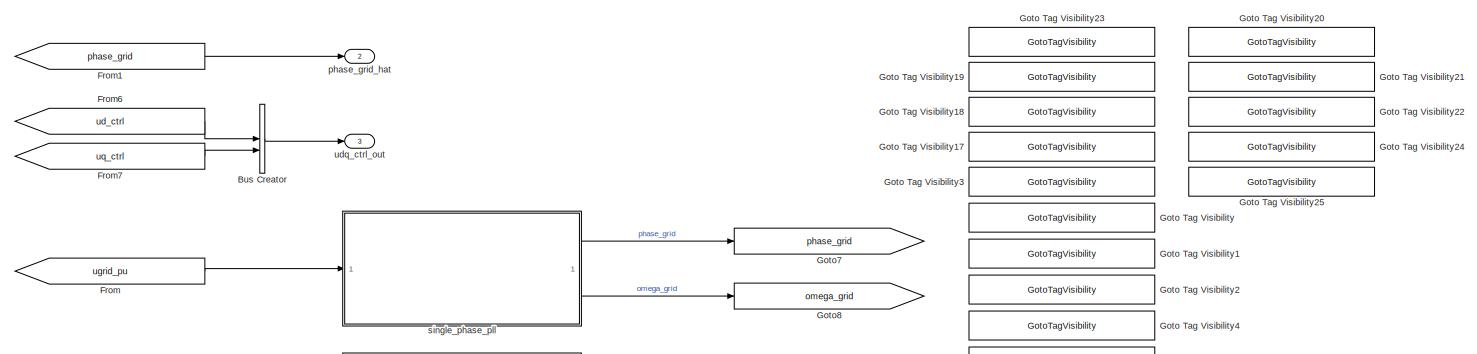
[diagram: single_phase_inverter_modA/single phase inverter control/single_phase_inverter_ctrl - part 1/3, full width, top band]
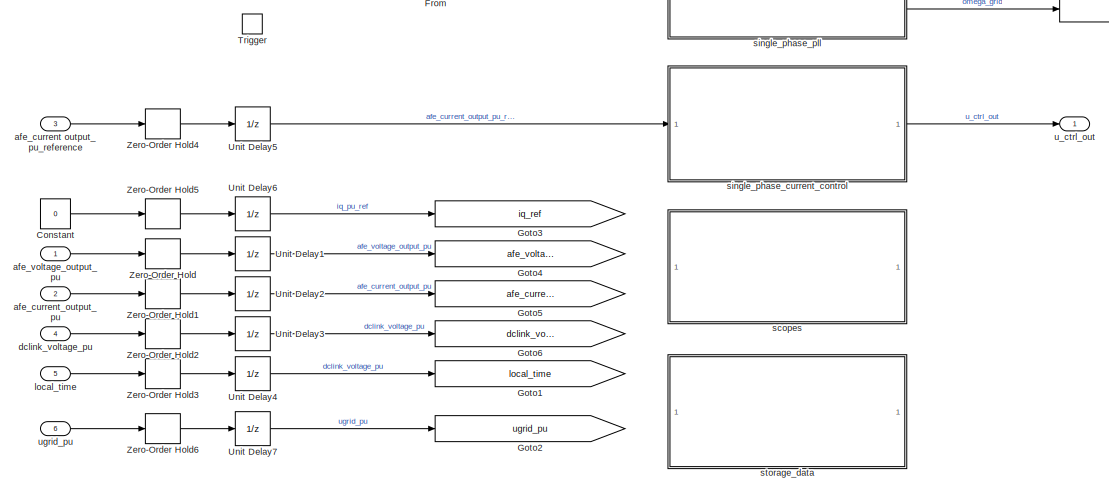
[diagram: single_phase_inverter_modA/single phase inverter control/single_phase_inverter_ctrl - part 2/3, bottom left region]
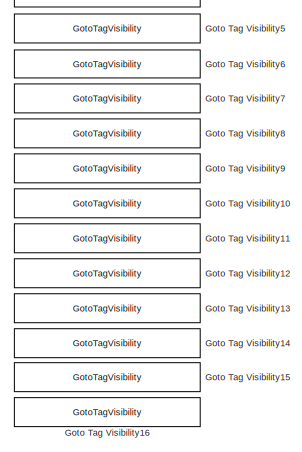
[diagram: single_phase_inverter_modA/single phase inverter control/single_phase_inverter_ctrl - part 3/3, bottom right region]
BLOCK [SubSystem] single_phase_inverter_modA/single phase inverter control/single_phase_inverter_ctrl
BLOCK [BusCreator] single_phase_inverter_modA/single phase inverter control/single_phase_inverter_ctrl/Bus Creator
  DisplayOption = bar
  InheritFromInputs = on
  Inputs = 2
BLOCK [Constant] single_phase_inverter_modA/single phase inverter control/single_phase_inverter_ctrl/Constant
  Value = 0
BLOCK [From] single_phase_inverter_modA/single phase inverter control/single_phase_inverter_ctrl/From
  GotoTag = ugrid_pu
  TagVisibility = scoped
BLOCK [From] single_phase_inverter_modA/single phase inverter control/single_phase_inverter_ctrl/From1
  GotoTag = phase_grid
  TagVisibility = scoped
BLOCK [From] single_phase_inverter_modA/single phase inverter control/single_phase_inverter_ctrl/From6
  GotoTag = ud_ctrl
  TagVisibility = scoped
BLOCK [From] single_phase_inverter_modA/single phase inverter control/single_phase_inverter_ctrl/From7
  GotoTag = uq_ctrl
  TagVisibility = scoped
BLOCK [GotoTagVisibility] single_phase_inverter_modA/single phase inverter control/single_phase_inverter_ctrl/Goto Tag Visibility
  GotoTag = afe_voltage_output_pu
BLOCK [GotoTagVisibility] single_phase_inverter_modA/single phase inverter control/single_phase_inverter_ctrl/Goto Tag Visibility1
  GotoTag = afe_current_output_pu
BLOCK [GotoTagVisibility] single_phase_inverter_modA/single phase inverter control/single_phase_inverter_ctrl/Goto Tag Visibility10
  GotoTag = id_ref
BLOCK [GotoTagVisibility] single_phase_inverter_modA/single phase inverter control/single_phase_inverter_ctrl/Goto Tag Visibility11
  GotoTag = id
BLOCK [GotoTagVisibility] single_phase_inverter_modA/single phase inverter control/single_phase_inverter_ctrl/Goto Tag Visibility12
  GotoTag = iq_ref
BLOCK [GotoTagVisibility] single_phase_inverter_modA/single phase inverter control/single_phase_inverter_ctrl/Goto Tag Visibility13
  GotoTag = iq
BLOCK [GotoTagVisibility] single_phase_inverter_modA/single phase inverter control/single_phase_inverter_ctrl/Goto Tag Visibility14
  GotoTag = ud_ctrl
BLOCK [GotoTagVisibility] single_phase_inverter_modA/single phase inverter control/single_phase_inverter_ctrl/Goto Tag Visibility15
  GotoTag = uq_ctrl
BLOCK [GotoTagVisibility] single_phase_inverter_modA/single phase inverter control/single_phase_inverter_ctrl/Goto Tag Visibility16
  GotoTag = ugrid_pu
BLOCK [GotoTagVisibility] single_phase_inverter_modA/single phase inverter control/single_phase_inverter_ctrl/Goto Tag Visibility17
  GotoTag = gamma_grid_dqpll_ccaller
BLOCK [GotoTagVisibility] single_phase_inverter_modA/single phase inverter control/single_phase_inverter_ctrl/Goto Tag Visibility18
  GotoTag = omega_grid
BLOCK [GotoTagVisibility] single_phase_inverter_modA/single phase inverter control/single_phase_inverter_ctrl/Goto Tag Visibility19
  GotoTag = impedance_load_estimator
BLOCK [GotoTagVisibility] single_phase_inverter_modA/single phase inverter control/single_phase_inverter_ctrl/Goto Tag Visibility2
  GotoTag = dclink_voltage_pu
BLOCK [GotoTagVisibility] single_phase_inverter_modA/single phase inverter control/single_phase_inverter_ctrl/Goto Tag Visibility20
  GotoTag = rpi_tracking_iref
BLOCK [GotoTagVisibility] single_phase_inverter_modA/single phase inverter control/single_phase_inverter_ctrl/Goto Tag Visibility21
  GotoTag = rpi_tracking_i
BLOCK [GotoTagVisibility] single_phase_inverter_modA/single phase inverter control/single_phase_inverter_ctrl/Goto Tag Visibility22
  GotoTag = rpi_tracking_uout
BLOCK [GotoTagVisibility] single_phase_inverter_modA/single phase inverter control/single_phase_inverter_ctrl/Goto Tag Visibility23
  GotoTag = load_inductance_estimated
BLOCK [GotoTagVisibility] single_phase_inverter_modA/single phase inverter control/single_phase_inverter_ctrl/Goto Tag Visibility24
  GotoTag = impedance_load_measure
BLOCK [GotoTagVisibility] single_phase_inverter_modA/single phase inverter control/single_phase_inverter_ctrl/Goto Tag Visibility25
  GotoTag = load_inductance_measure
BLOCK [GotoTagVisibility] single_phase_inverter_modA/single phase inverter control/single_phase_inverter_ctrl/Goto Tag Visibility3
  GotoTag = phase_grid
BLOCK [GotoTagVisibility] single_phase_inverter_modA/single phase inverter control/single_phase_inverter_ctrl/Goto Tag Visibility4
  GotoTag = inverter_current_output_pu_reference
BLOCK [GotoTagVisibility] single_phase_inverter_modA/single phase inverter control/single_phase_inverter_ctrl/Goto Tag Visibility5
  GotoTag = i_out_alphabeta_ref
BLOCK [GotoTagVisibility] single_phase_inverter_modA/single phase inverter control/single_phase_inverter_ctrl/Goto Tag Visibility6
  GotoTag = u_ctrl_out
BLOCK [GotoTagVisibility] single_phase_inverter_modA/single phase inverter control/single_phase_inverter_ctrl/Goto Tag Visibility7
  GotoTag = local_time
BLOCK [GotoTagVisibility] single_phase_inverter_modA/single phase inverter control/single_phase_inverter_ctrl/Goto Tag Visibility8
  GotoTag = i_alpha
BLOCK [GotoTagVisibility] single_phase_inverter_modA/single phase inverter control/single_phase_inverter_ctrl/Goto Tag Visibility9
  GotoTag = i_beta
BLOCK [Goto] single_phase_inverter_modA/single phase inverter control/single_phase_inverter_ctrl/Goto1
  GotoTag = local_time
  TagVisibility = scoped
BLOCK [Goto] single_phase_inverter_modA/single phase inverter control/single_phase_inverter_ctrl/Goto2
  GotoTag = ugrid_pu
  TagVisibility = scoped
BLOCK [Goto] single_phase_inverter_modA/single phase inverter control/single_phase_inverter_ctrl/Goto3
  GotoTag = iq_ref
  TagVisibility = scoped
BLOCK [Goto] single_phase_inverter_modA/single phase inverter control/single_phase_inverter_ctrl/Goto4
  GotoTag = afe_voltage_output_pu
  TagVisibility = scoped
BLOCK [Goto] single_phase_inverter_modA/single phase inverter control/single_phase_inverter_ctrl/Goto5
  GotoTag = afe_current_output_pu
  TagVisibility = scoped
BLOCK [Goto] single_phase_inverter_modA/single phase inverter control/single_phase_inverter_ctrl/Goto6
  GotoTag = dclink_voltage_pu
  TagVisibility = scoped
BLOCK [Goto] single_phase_inverter_modA/single phase inverter control/single_phase_inverter_ctrl/Goto7
  GotoTag = phase_grid
  TagVisibility = scoped
BLOCK [Goto] single_phase_inverter_modA/single phase inverter control/single_phase_inverter_ctrl/Goto8
  GotoTag = omega_grid
  TagVisibility = scoped
BLOCK [TriggerPort] single_phase_inverter_modA/single phase inverter control/single_phase_inverter_ctrl/Trigger
  PortDimensions = 1
  StatesWhenEnabling = held
  VariantControl = (inherit)
BLOCK [UnitDelay] single_phase_inverter_modA/single phase inverter control/single_phase_inverter_ctrl/Unit Delay1
  SampleTime = -1
BLOCK [UnitDelay] single_phase_inverter_modA/single phase inverter control/single_phase_inverter_ctrl/Unit Delay2
  SampleTime = -1
BLOCK [UnitDelay] single_phase_inverter_modA/single phase inverter control/single_phase_inverter_ctrl/Unit Delay3
  SampleTime = -1
BLOCK [UnitDelay] single_phase_inverter_modA/single phase inverter control/single_phase_inverter_ctrl/Unit Delay4
  SampleTime = -1
BLOCK [UnitDelay] single_phase_inverter_modA/single phase inverter control/single_phase_inverter_ctrl/Unit Delay5
  SampleTime = -1
BLOCK [UnitDelay] single_phase_inverter_modA/single phase inverter control/single_phase_inverter_ctrl/Unit Delay6
  SampleTime = -1
BLOCK [UnitDelay] single_phase_inverter_modA/single phase inverter control/single_phase_inverter_ctrl/Unit Delay7
  SampleTime = -1
BLOCK [ZeroOrderHold] single_phase_inverter_modA/single phase inverter control/single_phase_inverter_ctrl/Zero-Order Hold
  SampleTime = -1
BLOCK [ZeroOrderHold] single_phase_inverter_modA/single phase inverter control/single_phase_inverter_ctrl/Zero-Order Hold1
  SampleTime = -1
BLOCK [ZeroOrderHold] single_phase_inverter_modA/single phase inverter control/single_phase_inverter_ctrl/Zero-Order Hold2
  SampleTime = -1
BLOCK [ZeroOrderHold] single_phase_inverter_modA/single phase inverter control/single_phase_inverter_ctrl/Zero-Order Hold3
  SampleTime = -1
BLOCK [ZeroOrderHold] single_phase_inverter_modA/single phase inverter control/single_phase_inverter_ctrl/Zero-Order Hold4
  SampleTime = -1
BLOCK [ZeroOrderHold] single_phase_inverter_modA/single phase inverter control/single_phase_inverter_ctrl/Zero-Order Hold5
  SampleTime = -1
BLOCK [ZeroOrderHold] single_phase_inverter_modA/single phase inverter control/single_phase_inverter_ctrl/Zero-Order Hold6
  SampleTime = -1
BLOCK [Inport] single_phase_inverter_modA/single phase inverter control/single_phase_inverter_ctrl/afe_current output_pu_reference
  Port = 3
BLOCK [Inport] single_phase_inverter_modA/single phase inverter control/single_phase_inverter_ctrl/afe_current_output_pu
  Port = 2
BLOCK [Inport] single_phase_inverter_modA/single phase inverter control/single_phase_inverter_ctrl/afe_voltage_output_pu
BLOCK [Inport] single_phase_inverter_modA/single phase inverter control/single_phase_inverter_ctrl/dclink_voltage_pu
  Port = 4
BLOCK [Inport] single_phase_inverter_modA/single phase inverter control/single_phase_inverter_ctrl/local_time
  Port = 5
BLOCK [Outport] single_phase_inverter_modA/single phase inverter control/single_phase_inverter_ctrl/phase_grid_hat
  Port = 2
BLOCK [SubSystem] single_phase_inverter_modA/single phase inverter control/single_phase_inverter_ctrl/scopes
BLOCK [BusCreator] single_phase_inverter_modA/single phase inverter control/single_phase_inverter_ctrl/scopes/Bus Creator1
  DisplayOption = bar
  InheritFromInputs = on
  Inputs = 3
BLOCK [BusCreator] single_phase_inverter_modA/single phase inverter control/single_phase_inverter_ctrl/scopes/Bus Creator2
  DisplayOption = bar
  InheritFromInputs = on
  Inputs = 2
BLOCK [BusCreator] single_phase_inverter_modA/single phase inverter control/single_phase_inverter_ctrl/scopes/Bus Creator3
  DisplayOption = bar
  InheritFromInputs = on
  Inputs = 2
BLOCK [BusCreator] single_phase_inverter_modA/single phase inverter control/single_phase_inverter_ctrl/scopes/Bus Creator4
  DisplayOption = bar
  InheritFromInputs = on
  Inputs = 2
BLOCK [From] single_phase_inverter_modA/single phase inverter control/single_phase_inverter_ctrl/scopes/From
  GotoTag = inverter_current_output_pu_reference
  TagVisibility = scoped
BLOCK [From] single_phase_inverter_modA/single phase inverter control/single_phase_inverter_ctrl/scopes/From1
  GotoTag = i_out_alphabeta_ref
  TagVisibility = scoped
BLOCK [From] single_phase_inverter_modA/single phase inverter control/single_phase_inverter_ctrl/scopes/From2
  GotoTag = afe_current_output_pu
  TagVisibility = scoped
BLOCK [From] single_phase_inverter_modA/single phase inverter control/single_phase_inverter_ctrl/scopes/From3
  GotoTag = u_ctrl_out
  TagVisibility = scoped
BLOCK [From] single_phase_inverter_modA/single phase inverter control/single_phase_inverter_ctrl/scopes/From4
  GotoTag = afe_voltage_output_pu
  TagVisibility = scoped
BLOCK [From] single_phase_inverter_modA/single phase inverter control/single_phase_inverter_ctrl/scopes/From5
  GotoTag = afe_current_output_pu
  TagVisibility = scoped
BLOCK [From] single_phase_inverter_modA/single phase inverter control/single_phase_inverter_ctrl/scopes/From6
  GotoTag = i_out_alphabeta_ref
  TagVisibility = scoped
BLOCK [From] single_phase_inverter_modA/single phase inverter control/single_phase_inverter_ctrl/scopes/From7
  GotoTag = afe_current_output_pu
  TagVisibility = scoped
BLOCK [From] single_phase_inverter_modA/single phase inverter control/single_phase_inverter_ctrl/scopes/From8
  GotoTag = afe_voltage_output_pu
  TagVisibility = scoped
BLOCK [Scope] single_phase_inverter_modA/single phase inverter control/single_phase_inverter_ctrl/scopes/single phase inverter tracking current scope 1
  ActiveDisplayYMaximum = 1.23419189453125
  ActiveDisplayYMinimum = -1.23468017578125
  DataLoggingVariableName = ScopeData12
  DisplayFullPath = on
  Floating = off
  GraphicalSettings = {"Style":{"BackgroundColor":[0.12941176470588237,0.12941176470588237,0.12941176470588237],"AxesColor":[0.07058823529411765,0.07058823529411765,0.07058823529411765],"LabelsColor":[0.8509803921568627,0.8509803921568627,0.8509803921568627],"PreserveColors":false,"Visible":[true,true,true,true,true,true],"LineStyle":["-","-","-","-","-","-"],"LineWidth":[2,2,2,1.5,1.5,1.5],"BarWidth":[0.9,0.9,0.9,0.9,...<+3432ch>
  LayoutDimensionsString = [2 1]
  MultipleDisplayCache = [{"MaxYLimMag":1.23468017578125,"MaxYLimReal":1.23419189453125,"MinYLimMag":0,"MinYLimReal":-1.23468017578125,"PlotAsMagnitudePhase":false,"ShowGrid":true,"ShowLegend":true,"Title":"%<SignalLabel>","YLabel":""},{"MaxYLimMag":1.2499994752966987,"MaxYLimReal":1.2499994752966987,"MinYLimMag":0,"MinYLimReal":-1.2499952776702896,"PlotAsMagnitudePhase":false,"ShowGrid":true,"ShowLegend":true,"Title":"%<...<+27ch>
  NumInputPorts = 2
  ScopeFrameLocation = container
  ShowLegend = on
  WasSavedAsWebScope = on
  WindowPosition = [551.000000,141.000000,1280.000000,768.000000,]
BLOCK [Scope] single_phase_inverter_modA/single phase inverter control/single_phase_inverter_ctrl/scopes/single phase inverter tracking current scope 2
  ActiveDisplayYMaximum = 2.19708251953125
  ActiveDisplayYMinimum = -3.07452392578125
  DataLoggingVariableName = ScopeData2
  Floating = off
  GraphicalSettings = {"AxesScalingProperties":{"AlignXAxis":"Center","AlignYAxis":"Center","AutoScaleXAxisLimits":false,"AxesScaling":"Manual","AxesScalingNumUpdates":10,"ExpandOnly":true,"ScaleAxesLimitsAtStop":false,"XAxisDataRange":100,"YAxisDataRange":80},"DisplayProperties":{"ColorOrder":["auto","auto","auto","auto","auto","auto","auto","auto","auto","auto","auto","auto","auto","auto","auto","auto","auto","auto",...<+3093ch>
  LayoutDimensionsString = [2 1]
  MultipleDisplayCache = [{"MaxYLimMag":3.07452392578125,"MaxYLimReal":2.19708251953125,"MinYLimMag":0,"MinYLimReal":-3.07452392578125,"PlotAsMagnitudePhase":false,"ShowGrid":true,"ShowLegend":true,"Title":"%<SignalLabel>","YLabel":""},{"MaxYLimMag":1.783203125,"MaxYLimReal":1.732421875,"MinYLimMag":0,"MinYLimReal":-1.783203125,"PlotAsMagnitudePhase":false,"ShowGrid":true,"ShowLegend":true,"Title":"%<SignalLabel>","YLabel...<+6ch>
  NumInputPorts = 2
  ScopeFrameLocation = container
  ShowLegend = on
  WasSavedAsWebScope = on
  WindowPosition = [551.000000,141.000000,1280.000000,768.000000,]
BLOCK [SubSystem] single_phase_inverter_modA/single phase inverter control/single_phase_inverter_ctrl/single_phase_current_control
BLOCK [From] single_phase_inverter_modA/single phase inverter control/single_phase_inverter_ctrl/single_phase_current_control/From
  GotoTag = phase_grid
  TagVisibility = scoped
BLOCK [Goto] single_phase_inverter_modA/single phase inverter control/single_phase_inverter_ctrl/single_phase_current_control/Goto1
  GotoTag = i_out_alphabeta_ref
  TagVisibility = scoped
BLOCK [Goto] single_phase_inverter_modA/single phase inverter control/single_phase_inverter_ctrl/single_phase_current_control/Goto2
  GotoTag = inverter_current_output_pu_reference
  TagVisibility = scoped
BLOCK [Goto] single_phase_inverter_modA/single phase inverter control/single_phase_inverter_ctrl/single_phase_current_control/Goto3
  GotoTag = u_ctrl_out
  TagVisibility = scoped
BLOCK [SubSystem] single_phase_inverter_modA/single phase inverter control/single_phase_inverter_ctrl/single_phase_current_control/current_reference_generation
BLOCK [BusCreator] single_phase_inverter_modA/single phase inverter control/single_phase_inverter_ctrl/single_phase_current_control/current_reference_generation/Bus Creator
  DisplayOption = bar
  InheritFromInputs = on
  Inputs = 2
BLOCK [Product] single_phase_inverter_modA/single phase inverter control/single_phase_inverter_ctrl/single_phase_current_control/current_reference_generation/Product
BLOCK [Product] single_phase_inverter_modA/single phase inverter control/single_phase_inverter_ctrl/single_phase_current_control/current_reference_generation/Product1
BLOCK [Trigonometry] single_phase_inverter_modA/single phase inverter control/single_phase_inverter_ctrl/single_phase_current_control/current_reference_generation/Sin
  Operator = cos
BLOCK [Trigonometry] single_phase_inverter_modA/single phase inverter control/single_phase_inverter_ctrl/single_phase_current_control/current_reference_generation/Sin1
BLOCK [Outport] single_phase_inverter_modA/single phase inverter control/single_phase_inverter_ctrl/single_phase_current_control/current_reference_generation/id_ref
  Port = 2
BLOCK [Outport] single_phase_inverter_modA/single phase inverter control/single_phase_inverter_ctrl/single_phase_current_control/current_reference_generation/is_ref
BLOCK [Inport] single_phase_inverter_modA/single phase inverter control/single_phase_inverter_ctrl/single_phase_current_control/current_reference_generation/mag_ref
BLOCK [Inport] single_phase_inverter_modA/single phase inverter control/single_phase_inverter_ctrl/single_phase_current_control/current_reference_generation/phase
  Port = 2
BLOCK [SubSystem] single_phase_inverter_modA/single phase inverter control/single_phase_inverter_ctrl/single_phase_current_control/dqpi_current_controller
BLOCK [BusCreator] single_phase_inverter_modA/single phase inverter control/single_phase_inverter_ctrl/single_phase_current_control/dqpi_current_controller/Bus Creator
  DisplayOption = bar
  InheritFromInputs = on
  Inputs = 3
BLOCK [BusCreator] single_phase_inverter_modA/single phase inverter control/single_phase_inverter_ctrl/single_phase_current_control/dqpi_current_controller/Bus Creator1
  DisplayOption = bar
  InheritFromInputs = on
  Inputs = 3
BLOCK [From] single_phase_inverter_modA/single phase inverter control/single_phase_inverter_ctrl/single_phase_current_control/dqpi_current_controller/From
  GotoTag = afe_current_output_pu
  TagVisibility = scoped
BLOCK [From] single_phase_inverter_modA/single phase inverter control/single_phase_inverter_ctrl/single_phase_current_control/dqpi_current_controller/From1
  GotoTag = iq_ref
  TagVisibility = scoped
BLOCK [From] single_phase_inverter_modA/single phase inverter control/single_phase_inverter_ctrl/single_phase_current_control/dqpi_current_controller/From2
  GotoTag = dclink_voltage_pu
  TagVisibility = scoped
BLOCK [From] single_phase_inverter_modA/single phase inverter control/single_phase_inverter_ctrl/single_phase_current_control/dqpi_current_controller/From3
  GotoTag = ud_ctrl
  TagVisibility = scoped
BLOCK [From] single_phase_inverter_modA/single phase inverter control/single_phase_inverter_ctrl/single_phase_current_control/dqpi_current_controller/From4
  GotoTag = uq_ctrl
  TagVisibility = scoped
BLOCK [From] single_phase_inverter_modA/single phase inverter control/single_phase_inverter_ctrl/single_phase_current_control/dqpi_current_controller/From5
  GotoTag = iq_ref
  TagVisibility = scoped
BLOCK [Goto] single_phase_inverter_modA/single phase inverter control/single_phase_inverter_ctrl/single_phase_current_control/dqpi_current_controller/Goto1
  GotoTag = i_beta
  TagVisibility = scoped
BLOCK [Goto] single_phase_inverter_modA/single phase inverter control/single_phase_inverter_ctrl/single_phase_current_control/dqpi_current_controller/Goto2
  GotoTag = uq_ctrl
  TagVisibility = scoped
BLOCK [Goto] single_phase_inverter_modA/single phase inverter control/single_phase_inverter_ctrl/single_phase_current_control/dqpi_current_controller/Goto3
  GotoTag = iq
  TagVisibility = scoped
BLOCK [Goto] single_phase_inverter_modA/single phase inverter control/single_phase_inverter_ctrl/single_phase_current_control/dqpi_current_controller/Goto4
  GotoTag = i_alpha
  TagVisibility = scoped
BLOCK [Goto] single_phase_inverter_modA/single phase inverter control/single_phase_inverter_ctrl/single_phase_current_control/dqpi_current_controller/Goto5
  GotoTag = ud_ctrl
  TagVisibility = scoped
BLOCK [Goto] single_phase_inverter_modA/single phase inverter control/single_phase_inverter_ctrl/single_phase_current_control/dqpi_current_controller/Goto6
  GotoTag = id
  TagVisibility = scoped
BLOCK [Goto] single_phase_inverter_modA/single phase inverter control/single_phase_inverter_ctrl/single_phase_current_control/dqpi_current_controller/Goto7
  GotoTag = id_ref
  TagVisibility = scoped
BLOCK [Scope] single_phase_inverter_modA/single phase inverter control/single_phase_inverter_ctrl/single_phase_current_control/dqpi_current_controller/alpha_beta currents
  ActiveDisplayYMaximum = 2.19708251953125
  ActiveDisplayYMinimum = -3.07452392578125
  DataLoggingVariableName = ScopeData2
  Floating = off
  GraphicalSettings = {"Style":{"BackgroundColor":[0.12941176470588237,0.12941176470588237,0.12941176470588237],"AxesColor":[0.07058823529411765,0.07058823529411765,0.07058823529411765],"LabelsColor":[0.8509803921568627,0.8509803921568627,0.8509803921568627],"PreserveColors":false,"Visible":[true,true,true],"LineStyle":["-","-","-"],"LineWidth":[1.5,1.5,1.5],"BarWidth":[0.9,0.9,0.9],"LineColor":["auto","auto","auto"],"...<+2212ch>
  MultipleDisplayCache = [{"MaxYLimMag":3.07452392578125,"MaxYLimReal":2.19708251953125,"MinYLimMag":0,"MinYLimReal":-3.07452392578125,"PlotAsMagnitudePhase":false,"ShowGrid":true,"ShowLegend":true,"Title":"%<SignalLabel>","YLabel":""}]
  NumInputPorts = 3
  ScopeFrameLocation = container
  ShowLegend = on
  WasSavedAsWebScope = on
  WindowPosition = [551.000000,141.000000,1280.000000,768.000000,]
BLOCK [SubSystem] single_phase_inverter_modA/single phase inverter control/single_phase_inverter_ctrl/single_phase_current_control/dqpi_current_controller/alphabeta2dq
BLOCK [From] single_phase_inverter_modA/single phase inverter control/single_phase_inverter_ctrl/single_phase_current_control/dqpi_current_controller/alphabeta2dq/From
  GotoTag = phase_grid
  TagVisibility = scoped
BLOCK [SubSystem] single_phase_inverter_modA/single phase inverter control/single_phase_inverter_ctrl/single_phase_current_control/dqpi_current_controller/alphabeta2dq/MATLAB Function
  ErrorFcn = Stateflow.Translate.translate
  PermitHierarchicalResolution = ExplicitOnly
  SFBlockType = MATLAB Function
  TreatAsAtomicUnit = on
BLOCK [Demux] single_phase_inverter_modA/single phase inverter control/single_phase_inverter_ctrl/single_phase_current_control/dqpi_current_controller/alphabeta2dq/MATLAB Function/ Demux 
  Outputs = 1
BLOCK [S-Function] single_phase_inverter_modA/single phase inverter control/single_phase_inverter_ctrl/single_phase_current_control/dqpi_current_controller/alphabeta2dq/MATLAB Function/ SFunction 
  EnableBusSupport = off
  FunctionName = sf_sfun
  PortCounts = [3 3]
  SFcnIsStateOwnerBlock = off
  SFunctionDeploymentMode = off
  Tag = Stateflow S-Function 5
BLOCK [Terminator] single_phase_inverter_modA/single phase inverter control/single_phase_inverter_ctrl/single_phase_current_control/dqpi_current_controller/alphabeta2dq/MATLAB Function/ Terminator 
BLOCK [Inport] single_phase_inverter_modA/single phase inverter control/single_phase_inverter_ctrl/single_phase_current_control/dqpi_current_controller/alphabeta2dq/MATLAB Function/alpha
BLOCK [Inport] single_phase_inverter_modA/single phase inverter control/single_phase_inverter_ctrl/single_phase_current_control/dqpi_current_controller/alphabeta2dq/MATLAB Function/beta
  Port = 2
BLOCK [Outport] single_phase_inverter_modA/single phase inverter control/single_phase_inverter_ctrl/single_phase_current_control/dqpi_current_controller/alphabeta2dq/MATLAB Function/d
BLOCK [Inport] single_phase_inverter_modA/single phase inverter control/single_phase_inverter_ctrl/single_phase_current_control/dqpi_current_controller/alphabeta2dq/MATLAB Function/phase
  Port = 3
BLOCK [Outport] single_phase_inverter_modA/single phase inverter control/single_phase_inverter_ctrl/single_phase_current_control/dqpi_current_controller/alphabeta2dq/MATLAB Function/q
  Port = 2
BLOCK [Inport] single_phase_inverter_modA/single phase inverter control/single_phase_inverter_ctrl/single_phase_current_control/dqpi_current_controller/alphabeta2dq/alpha
BLOCK [Inport] single_phase_inverter_modA/single phase inverter control/single_phase_inverter_ctrl/single_phase_current_control/dqpi_current_controller/alphabeta2dq/beta
  Port = 2
BLOCK [Outport] single_phase_inverter_modA/single phase inverter control/single_phase_inverter_ctrl/single_phase_current_control/dqpi_current_controller/alphabeta2dq/d 
  VectorParamsAs1DForOutWhenUnconnected = off
BLOCK [Outport] single_phase_inverter_modA/single phase inverter control/single_phase_inverter_ctrl/single_phase_current_control/dqpi_current_controller/alphabeta2dq/q 
  Port = 2
  VectorParamsAs1DForOutWhenUnconnected = off
BLOCK [SubSystem] single_phase_inverter_modA/single phase inverter control/single_phase_inverter_ctrl/single_phase_current_control/dqpi_current_controller/dq2alphabeta
BLOCK [From] single_phase_inverter_modA/single phase inverter control/single_phase_inverter_ctrl/single_phase_current_control/dqpi_current_controller/dq2alphabeta/From1
  GotoTag = phase_grid
  TagVisibility = scoped
BLOCK [SubSystem] single_phase_inverter_modA/single phase inverter control/single_phase_inverter_ctrl/single_phase_current_control/dqpi_current_controller/dq2alphabeta/MATLAB Function
  ErrorFcn = Stateflow.Translate.translate
  PermitHierarchicalResolution = ExplicitOnly
  SFBlockType = MATLAB Function
  TreatAsAtomicUnit = on
BLOCK [Demux] single_phase_inverter_modA/single phase inverter control/single_phase_inverter_ctrl/single_phase_current_control/dqpi_current_controller/dq2alphabeta/MATLAB Function/ Demux 
  Outputs = 1
BLOCK [S-Function] single_phase_inverter_modA/single phase inverter control/single_phase_inverter_ctrl/single_phase_current_control/dqpi_current_controller/dq2alphabeta/MATLAB Function/ SFunction 
  EnableBusSupport = off
  FunctionName = sf_sfun
  PortCounts = [3 3]
  SFcnIsStateOwnerBlock = off
  SFunctionDeploymentMode = off
  Tag = Stateflow S-Function 6
BLOCK [Terminator] single_phase_inverter_modA/single phase inverter control/single_phase_inverter_ctrl/single_phase_current_control/dqpi_current_controller/dq2alphabeta/MATLAB Function/ Terminator 
BLOCK [Outport] single_phase_inverter_modA/single phase inverter control/single_phase_inverter_ctrl/single_phase_current_control/dqpi_current_controller/dq2alphabeta/MATLAB Function/alpha
BLOCK [Outport] single_phase_inverter_modA/single phase inverter control/single_phase_inverter_ctrl/single_phase_current_control/dqpi_current_controller/dq2alphabeta/MATLAB Function/beta
  Port = 2
BLOCK [Inport] single_phase_inverter_modA/single phase inverter control/single_phase_inverter_ctrl/single_phase_current_control/dqpi_current_controller/dq2alphabeta/MATLAB Function/d
BLOCK [Inport] single_phase_inverter_modA/single phase inverter control/single_phase_inverter_ctrl/single_phase_current_control/dqpi_current_controller/dq2alphabeta/MATLAB Function/phase
  Port = 3
BLOCK [Inport] single_phase_inverter_modA/single phase inverter control/single_phase_inverter_ctrl/single_phase_current_control/dqpi_current_controller/dq2alphabeta/MATLAB Function/q
  Port = 2
BLOCK [Outport] single_phase_inverter_modA/single phase inverter control/single_phase_inverter_ctrl/single_phase_current_control/dqpi_current_controller/dq2alphabeta/alpha
  VectorParamsAs1DForOutWhenUnconnected = off
BLOCK [Inport] single_phase_inverter_modA/single phase inverter control/single_phase_inverter_ctrl/single_phase_current_control/dqpi_current_controller/dq2alphabeta/d
BLOCK [Inport] single_phase_inverter_modA/single phase inverter control/single_phase_inverter_ctrl/single_phase_current_control/dqpi_current_controller/dq2alphabeta/q
  Port = 2
BLOCK [SubSystem] single_phase_inverter_modA/single phase inverter control/single_phase_inverter_ctrl/single_phase_current_control/dqpi_current_controller/dq_vector_pi
BLOCK [From] single_phase_inverter_modA/single phase inverter control/single_phase_inverter_ctrl/single_phase_current_control/dqpi_current_controller/dq_vector_pi/From
  GotoTag = dclink_voltage_pu
  TagVisibility = scoped
BLOCK [Reference] single_phase_inverter_modA/single phase inverter control/single_phase_inverter_ctrl/single_phase_current_control/dqpi_current_controller/dq_vector_pi/dq_vector_pi  REF=dq_vector_pi/dq_vector_pi  (lib defined in slx_ca8d0d25bdba)
  SourceBlock = dq_vector_pi/dq_vector_pi
BLOCK [Inport] single_phase_inverter_modA/single phase inverter control/single_phase_inverter_ctrl/single_phase_current_control/dqpi_current_controller/dq_vector_pi/id
  Port = 2
BLOCK [Inport] single_phase_inverter_modA/single phase inverter control/single_phase_inverter_ctrl/single_phase_current_control/dqpi_current_controller/dq_vector_pi/id_ref
BLOCK [Inport] single_phase_inverter_modA/single phase inverter control/single_phase_inverter_ctrl/single_phase_current_control/dqpi_current_controller/dq_vector_pi/iq
  Port = 3
BLOCK [Inport] single_phase_inverter_modA/single phase inverter control/single_phase_inverter_ctrl/single_phase_current_control/dqpi_current_controller/dq_vector_pi/iq_ref
  Port = 4
BLOCK [Outport] single_phase_inverter_modA/single phase inverter control/single_phase_inverter_ctrl/single_phase_current_control/dqpi_current_controller/dq_vector_pi/ud_ctrl
BLOCK [Outport] single_phase_inverter_modA/single phase inverter control/single_phase_inverter_ctrl/single_phase_current_control/dqpi_current_controller/dq_vector_pi/uq_ctrl
  Port = 2
BLOCK [Scope] single_phase_inverter_modA/single phase inverter control/single_phase_inverter_ctrl/single_phase_current_control/dqpi_current_controller/dq_vector_pi_tracking
  ActiveDisplayString = 2
  ActiveDisplayYMaximum = 20.947282871449747
  ActiveDisplayYMinimum = -5.8450231123834442
  DataLoggingVariableName = ScopeData8
  Floating = off
  GraphicalSettings = {"Style":{"BackgroundColor":[0.12941176470588237,0.12941176470588237,0.12941176470588237],"AxesColor":[0.07058823529411765,0.07058823529411765,0.07058823529411765],"LabelsColor":[0.8509803921568627,0.8509803921568627,0.8509803921568627],"PreserveColors":false,"Visible":[true,true,true,true,true,true],"LineStyle":["-","-","-","-","-","-"],"LineWidth":[1.5,1.5,1.5,1.5,1.5,1.5],"BarWidth":[0.9,0.9,0....<+2834ch>
  LayoutDimensionsString = [2,1]
  MultipleDisplayCache = [{"MaxYLimMag":34.458897644939242,"MaxYLimReal":11.788667560986731,"MinYLimMag":0,"MinYLimReal":-34.458897644939242,"PlotAsMagnitudePhase":false,"ShowGrid":true,"ShowLegend":true,"Title":"%<SignalLabel>","YLabel":""},{"MaxYLimMag":20.947282871449747,"MaxYLimReal":20.947282871449747,"MinYLimMag":0,"MinYLimReal":-5.8450231123834442,"PlotAsMagnitudePhase":false,"ShowGrid":true,"ShowLegend":true,"Titl...<+33ch>
  NumInputPorts = 2
  ScopeFrameLocation = window
  ShowLegend = on
  WasSavedAsWebScope = on
  WindowPosition = [487.000000,182.000000,1041.000000,581.000000,]
BLOCK [SubSystem] single_phase_inverter_modA/single phase inverter control/single_phase_inverter_ctrl/single_phase_current_control/dqpi_current_controller/i2alphabeta
BLOCK [SubSystem] single_phase_inverter_modA/single phase inverter control/single_phase_inverter_ctrl/single_phase_current_control/dqpi_current_controller/i2alphabeta/FHTalpha
BLOCK [Gain] single_phase_inverter_modA/single phase inverter control/single_phase_inverter_ctrl/single_phase_current_control/dqpi_current_controller/i2alphabeta/FHTalpha/Gain
  Gain = single_phase_inverter_ctrl.fht_load.Ld_fht
  Multiplication = Matrix(K*u)
BLOCK [Gain] single_phase_inverter_modA/single phase inverter control/single_phase_inverter_ctrl/single_phase_current_control/dqpi_current_controller/i2alphabeta/FHTalpha/Gain1
  Gain = single_phase_inverter_ctrl.fht_load.Ad_fht
  Multiplication = Matrix(K*u)
  NameLocation = top
BLOCK [Gain] single_phase_inverter_modA/single phase inverter control/single_phase_inverter_ctrl/single_phase_current_control/dqpi_current_controller/i2alphabeta/FHTalpha/Gain2
  Gain = single_phase_inverter_ctrl.fht_load.Cfht
  Multiplication = Matrix(K*u)
BLOCK [Gain] single_phase_inverter_modA/single phase inverter control/single_phase_inverter_ctrl/single_phase_current_control/dqpi_current_controller/i2alphabeta/FHTalpha/Gain3
  Gain = -1/single_phase_inverter_ctrl.omega_base
BLOCK [Selector] single_phase_inverter_modA/single phase inverter control/single_phase_inverter_ctrl/single_phase_current_control/dqpi_current_controller/i2alphabeta/FHTalpha/Selector
  IndexOptions = Index vector (dialog)
  Indices = 1
  InputPortWidth = 2
  OutputSizes = 1
BLOCK [Selector] single_phase_inverter_modA/single phase inverter control/single_phase_inverter_ctrl/single_phase_current_control/dqpi_current_controller/i2alphabeta/FHTalpha/Selector1
  IndexOptions = Index vector (dialog)
  Indices = 2
  InputPortWidth = 2
  OutputSizes = 1
BLOCK [Sum] single_phase_inverter_modA/single phase inverter control/single_phase_inverter_ctrl/single_phase_current_control/dqpi_current_controller/i2alphabeta/FHTalpha/Sum
  Inputs = -+|
BLOCK [Sum] single_phase_inverter_modA/single phase inverter control/single_phase_inverter_ctrl/single_phase_current_control/dqpi_current_controller/i2alphabeta/FHTalpha/Sum1
  Inputs = |++
BLOCK [UnitDelay] single_phase_inverter_modA/single phase inverter control/single_phase_inverter_ctrl/single_phase_current_control/dqpi_current_controller/i2alphabeta/FHTalpha/Unit Delay
  SampleTime = -1
BLOCK [Inport] single_phase_inverter_modA/single phase inverter control/single_phase_inverter_ctrl/single_phase_current_control/dqpi_current_controller/i2alphabeta/FHTalpha/u
BLOCK [Outport] single_phase_inverter_modA/single phase inverter control/single_phase_inverter_ctrl/single_phase_current_control/dqpi_current_controller/i2alphabeta/FHTalpha/ualpha
BLOCK [Outport] single_phase_inverter_modA/single phase inverter control/single_phase_inverter_ctrl/single_phase_current_control/dqpi_current_controller/i2alphabeta/FHTalpha/ubeta
  Port = 2
BLOCK [Inport] single_phase_inverter_modA/single phase inverter control/single_phase_inverter_ctrl/single_phase_current_control/dqpi_current_controller/i2alphabeta/i_alpha
BLOCK [Outport] single_phase_inverter_modA/single phase inverter control/single_phase_inverter_ctrl/single_phase_current_control/dqpi_current_controller/i2alphabeta/i_alpha_out
BLOCK [Outport] single_phase_inverter_modA/single phase inverter control/single_phase_inverter_ctrl/single_phase_current_control/dqpi_current_controller/i2alphabeta/i_beta_out
  Port = 2
BLOCK [Inport] single_phase_inverter_modA/single phase inverter control/single_phase_inverter_ctrl/single_phase_current_control/dqpi_current_controller/id_ref
BLOCK [Outport] single_phase_inverter_modA/single phase inverter control/single_phase_inverter_ctrl/single_phase_current_control/dqpi_current_controller/u_out
BLOCK [Inport] single_phase_inverter_modA/single phase inverter control/single_phase_inverter_ctrl/single_phase_current_control/inverter_current_output_pu_reference
BLOCK [Outport] single_phase_inverter_modA/single phase inverter control/single_phase_inverter_ctrl/single_phase_current_control/u_ctrl_out
BLOCK [SubSystem] single_phase_inverter_modA/single phase inverter control/single_phase_inverter_ctrl/single_phase_pll
BLOCK [Constant] single_phase_inverter_modA/single phase inverter control/single_phase_inverter_ctrl/single_phase_pll/Constant
BLOCK [Constant] single_phase_inverter_modA/single phase inverter control/single_phase_inverter_ctrl/single_phase_pll/Constant2
  Value = 0
BLOCK [Scope] single_phase_inverter_modA/single phase inverter control/single_phase_inverter_ctrl/single_phase_pll/Scope
  ActiveDisplayYMaximum = 3.4773424919151528
  ActiveDisplayYMinimum = -3.2854912154015015
  Floating = off
  GraphicalSettings = {"Style":{"BackgroundColor":[0.12941176470588237,0.12941176470588237,0.12941176470588237],"AxesColor":[0.07058823529411765,0.07058823529411765,0.07058823529411765],"LabelsColor":[0.8509803921568627,0.8509803921568627,0.8509803921568627],"PreserveColors":false,"Visible":[true,true],"LineStyle":["-","-"],"LineWidth":[1.5,1.5],"BarWidth":[0.9,0.9],"LineColor":["auto","auto"],"LineFaceAlpha":[1,1],"Li...<+2138ch>
  MultipleDisplayCache = [{"MaxYLimMag":3.9163153957896437,"MaxYLimReal":3.4773424919151528,"MinYLimMag":0,"MinYLimReal":-3.2854912154015015,"PlotAsMagnitudePhase":false,"ShowGrid":true,"ShowLegend":false,"Title":"%<SignalLabel>","YLabel":""}]
  NumInputPorts = 2
  ScopeFrameLocation = window
  WasSavedAsWebScope = on
  WindowPosition = [744.000000,330.000000,560.000000,420.000000,]
BLOCK [Sum] single_phase_inverter_modA/single phase inverter control/single_phase_inverter_ctrl/single_phase_pll/Sum
  Inputs = |++
BLOCK [Sum] single_phase_inverter_modA/single phase inverter control/single_phase_inverter_ctrl/single_phase_pll/Sum1
  Inputs = |++
BLOCK [Terminator] single_phase_inverter_modA/single phase inverter control/single_phase_inverter_ctrl/single_phase_pll/Terminator
BLOCK [Terminator] single_phase_inverter_modA/single phase inverter control/single_phase_inverter_ctrl/single_phase_pll/Terminator1
BLOCK [Terminator] single_phase_inverter_modA/single phase inverter control/single_phase_inverter_ctrl/single_phase_pll/Terminator2
BLOCK [UnitDelay] single_phase_inverter_modA/single phase inverter control/single_phase_inverter_ctrl/single_phase_pll/Unit Delay1
  SampleTime = -1
BLOCK [SubSystem] single_phase_inverter_modA/single phase inverter control/single_phase_inverter_ctrl/single_phase_pll/alphabeta2xieta
  ErrorFcn = Stateflow.Translate.translate
  PermitHierarchicalResolution = ExplicitOnly
  SFBlockType = MATLAB Function
  TreatAsAtomicUnit = on
BLOCK [Demux] single_phase_inverter_modA/single phase inverter control/single_phase_inverter_ctrl/single_phase_pll/alphabeta2xieta/ Demux 
  Outputs = 1
BLOCK [S-Function] single_phase_inverter_modA/single phase inverter control/single_phase_inverter_ctrl/single_phase_pll/alphabeta2xieta/ SFunction 
  EnableBusSupport = off
  FunctionName = sf_sfun
  PortCounts = [3 3]
  SFcnIsStateOwnerBlock = off
  SFunctionDeploymentMode = off
  Tag = Stateflow S-Function 1
BLOCK [Terminator] single_phase_inverter_modA/single phase inverter control/single_phase_inverter_ctrl/single_phase_pll/alphabeta2xieta/ Terminator 
BLOCK [Inport] single_phase_inverter_modA/single phase inverter control/single_phase_inverter_ctrl/single_phase_pll/alphabeta2xieta/alpha
BLOCK [Inport] single_phase_inverter_modA/single phase inverter control/single_phase_inverter_ctrl/single_phase_pll/alphabeta2xieta/beta
  Port = 2
BLOCK [Outport] single_phase_inverter_modA/single phase inverter control/single_phase_inverter_ctrl/single_phase_pll/alphabeta2xieta/eta
  Port = 2
BLOCK [Inport] single_phase_inverter_modA/single phase inverter control/single_phase_inverter_ctrl/single_phase_pll/alphabeta2xieta/gamma
  Port = 3
BLOCK [Outport] single_phase_inverter_modA/single phase inverter control/single_phase_inverter_ctrl/single_phase_pll/alphabeta2xieta/xi
BLOCK [SubSystem] single_phase_inverter_modA/single phase inverter control/single_phase_inverter_ctrl/single_phase_pll/bounder2
  ErrorFcn = Stateflow.Translate.translate
  PermitHierarchicalResolution = ExplicitOnly
  SFBlockType = MATLAB Function
  TreatAsAtomicUnit = on
  TreatAsGroupedWhenPropagatingVariantConditions = off
BLOCK [Demux] single_phase_inverter_modA/single phase inverter control/single_phase_inverter_ctrl/single_phase_pll/bounder2/ Demux 
  Outputs = 1
BLOCK [S-Function] single_phase_inverter_modA/single phase inverter control/single_phase_inverter_ctrl/single_phase_pll/bounder2/ SFunction 
  EnableBusSupport = off
  FunctionName = sf_sfun
  PortCounts = [1 2]
  SFcnIsStateOwnerBlock = off
  SFunctionDeploymentMode = off
  Tag = Stateflow S-Function 3
BLOCK [Terminator] single_phase_inverter_modA/single phase inverter control/single_phase_inverter_ctrl/single_phase_pll/bounder2/ Terminator 
BLOCK [Inport] single_phase_inverter_modA/single phase inverter control/single_phase_inverter_ctrl/single_phase_pll/bounder2/u
BLOCK [Outport] single_phase_inverter_modA/single phase inverter control/single_phase_inverter_ctrl/single_phase_pll/bounder2/y
  VectorParamsAs1DForOutWhenUnconnected = off
BLOCK [SubSystem] single_phase_inverter_modA/single phase inverter control/single_phase_inverter_ctrl/single_phase_pll/double_integrator_observer
BLOCK [Gain] single_phase_inverter_modA/single phase inverter control/single_phase_inverter_ctrl/single_phase_pll/double_integrator_observer/Gain
  Gain = afe_ctrl.di_obs.Ldso
  Multiplication = Matrix(K*u)
BLOCK [Gain] single_phase_inverter_modA/single phase inverter control/single_phase_inverter_ctrl/single_phase_pll/double_integrator_observer/Gain1
  Gain = afe_ctrl.di_obs.Adso
  Multiplication = Matrix(K*u)
  NameLocation = top
BLOCK [Gain] single_phase_inverter_modA/single phase inverter control/single_phase_inverter_ctrl/single_phase_pll/double_integrator_observer/Gain2
  Gain = afe_ctrl.di_obs.Cso
  Multiplication = Matrix(K*u)
BLOCK [Selector] single_phase_inverter_modA/single phase inverter control/single_phase_inverter_ctrl/single_phase_pll/double_integrator_observer/Selector
  IndexOptions = Index vector (dialog)
  Indices = 2
  InputPortWidth = 2
  OutputSizes = 1
BLOCK [Sum] single_phase_inverter_modA/single phase inverter control/single_phase_inverter_ctrl/single_phase_pll/double_integrator_observer/Sum
  Inputs = -+|
BLOCK [Sum] single_phase_inverter_modA/single phase inverter control/single_phase_inverter_ctrl/single_phase_pll/double_integrator_observer/Sum1
  Inputs = |++
BLOCK [UnitDelay] single_phase_inverter_modA/single phase inverter control/single_phase_inverter_ctrl/single_phase_pll/double_integrator_observer/Unit Delay
  SampleTime = -1
BLOCK [SubSystem] single_phase_inverter_modA/single phase inverter control/single_phase_inverter_ctrl/single_phase_pll/double_integrator_observer/bounder1
  ErrorFcn = Stateflow.Translate.translate
  PermitHierarchicalResolution = ExplicitOnly
  SFBlockType = MATLAB Function
  TreatAsAtomicUnit = on
  TreatAsGroupedWhenPropagatingVariantConditions = off
BLOCK [Demux] single_phase_inverter_modA/single phase inverter control/single_phase_inverter_ctrl/single_phase_pll/double_integrator_observer/bounder1/ Demux 
  Outputs = 1
BLOCK [S-Function] single_phase_inverter_modA/single phase inverter control/single_phase_inverter_ctrl/single_phase_pll/double_integrator_observer/bounder1/ SFunction 
  EnableBusSupport = off
  FunctionName = sf_sfun
  PortCounts = [1 2]
  SFcnIsStateOwnerBlock = off
  SFunctionDeploymentMode = off
  Tag = Stateflow S-Function 12
BLOCK [Terminator] single_phase_inverter_modA/single phase inverter control/single_phase_inverter_ctrl/single_phase_pll/double_integrator_observer/bounder1/ Terminator 
BLOCK [Inport] single_phase_inverter_modA/single phase inverter control/single_phase_inverter_ctrl/single_phase_pll/double_integrator_observer/bounder1/u
BLOCK [Outport] single_phase_inverter_modA/single phase inverter control/single_phase_inverter_ctrl/single_phase_pll/double_integrator_observer/bounder1/y
  VectorParamsAs1DForOutWhenUnconnected = off
BLOCK [SubSystem] single_phase_inverter_modA/single phase inverter control/single_phase_inverter_ctrl/single_phase_pll/double_integrator_observer/bounder2
  ErrorFcn = Stateflow.Translate.translate
  PermitHierarchicalResolution = ExplicitOnly
  SFBlockType = MATLAB Function
  TreatAsAtomicUnit = on
  TreatAsGroupedWhenPropagatingVariantConditions = off
BLOCK [Demux] single_phase_inverter_modA/single phase inverter control/single_phase_inverter_ctrl/single_phase_pll/double_integrator_observer/bounder2/ Demux 
  Outputs = 1
BLOCK [S-Function] single_phase_inverter_modA/single phase inverter control/single_phase_inverter_ctrl/single_phase_pll/double_integrator_observer/bounder2/ SFunction 
  EnableBusSupport = off
  FunctionName = sf_sfun
  PortCounts = [1 2]
  SFcnIsStateOwnerBlock = off
  SFunctionDeploymentMode = off
  Tag = Stateflow S-Function 13
BLOCK [Terminator] single_phase_inverter_modA/single phase inverter control/single_phase_inverter_ctrl/single_phase_pll/double_integrator_observer/bounder2/ Terminator 
BLOCK [Inport] single_phase_inverter_modA/single phase inverter control/single_phase_inverter_ctrl/single_phase_pll/double_integrator_observer/bounder2/u
BLOCK [Outport] single_phase_inverter_modA/single phase inverter control/single_phase_inverter_ctrl/single_phase_pll/double_integrator_observer/bounder2/y
  VectorParamsAs1DForOutWhenUnconnected = off
BLOCK [Gain] single_phase_inverter_modA/single phase inverter control/single_phase_inverter_ctrl/single_phase_pll/double_integrator_observer/kp3
  Gain = 1/grid_emu.omega_grid_nom
  OutDataTypeStr = Inherit: Same as input
  ParamDataTypeStr = Inherit: Same as input
  SaturateOnIntegerOverflow = on
BLOCK [Outport] single_phase_inverter_modA/single phase inverter control/single_phase_inverter_ctrl/single_phase_pll/double_integrator_observer/omega_hat
  NameLocation = top
  Port = 2
BLOCK [Outport] single_phase_inverter_modA/single phase inverter control/single_phase_inverter_ctrl/single_phase_pll/double_integrator_observer/phase_hat
BLOCK [Inport] single_phase_inverter_modA/single phase inverter control/single_phase_inverter_ctrl/single_phase_pll/double_integrator_observer/theta
BLOCK [Gain] single_phase_inverter_modA/single phase inverter control/single_phase_inverter_ctrl/single_phase_pll/freq_pll
  Gain = 1/2/pi
BLOCK [Inport] single_phase_inverter_modA/single phase inverter control/single_phase_inverter_ctrl/single_phase_pll/input
BLOCK [Gain] single_phase_inverter_modA/single phase inverter control/single_phase_inverter_ctrl/single_phase_pll/omega_int_ts
  Gain = omega_set * glb_time.ts_inv
BLOCK [Outport] single_phase_inverter_modA/single phase inverter control/single_phase_inverter_ctrl/single_phase_pll/omega_pll_hat
  Port = 2
BLOCK [Outport] single_phase_inverter_modA/single phase inverter control/single_phase_inverter_ctrl/single_phase_pll/phase_pll_hat
BLOCK [SubSystem] single_phase_inverter_modA/single phase inverter control/single_phase_inverter_ctrl/single_phase_pll/pi-ctrl
BLOCK [Gain] single_phase_inverter_modA/single phase inverter control/single_phase_inverter_ctrl/single_phase_pll/pi-ctrl/1//Ti
  Gain = kp
  OutDataTypeStr = Inherit: Same as input
  ParamDataTypeStr = Inherit: Same as input
  SaturateOnIntegerOverflow = on
BLOCK [Saturate] single_phase_inverter_modA/single phase inverter control/single_phase_inverter_ctrl/single_phase_pll/pi-ctrl/Saturation
  LowerLimit = sat_neg
  UpperLimit = sat_pos
BLOCK [Sum] single_phase_inverter_modA/single phase inverter control/single_phase_inverter_ctrl/single_phase_pll/pi-ctrl/Sum1
  IconShape = rectangular
  Inputs = +++
  SaturateOnIntegerOverflow = on
BLOCK [Sum] single_phase_inverter_modA/single phase inverter control/single_phase_inverter_ctrl/single_phase_pll/pi-ctrl/Sum2
  IconShape = rectangular
  Inputs = -+
  SaturateOnIntegerOverflow = on
BLOCK [Sum] single_phase_inverter_modA/single phase inverter control/single_phase_inverter_ctrl/single_phase_pll/pi-ctrl/Sum3
  IconShape = rectangular
  Inputs = -+
  NameLocation = top
  SaturateOnIntegerOverflow = on
BLOCK [UnitDelay] single_phase_inverter_modA/single phase inverter control/single_phase_inverter_ctrl/single_phase_pll/pi-ctrl/Unit Delay4
  SampleTime = -1
BLOCK [Gain] single_phase_inverter_modA/single phase inverter control/single_phase_inverter_ctrl/single_phase_pll/pi-ctrl/kp
  Gain = ki*ts
  OutDataTypeStr = Inherit: Same as input
  ParamDataTypeStr = Inherit: Same as input
  SaturateOnIntegerOverflow = on
BLOCK [Outport] single_phase_inverter_modA/single phase inverter control/single_phase_inverter_ctrl/single_phase_pll/pi-ctrl/u
BLOCK [Inport] single_phase_inverter_modA/single phase inverter control/single_phase_inverter_ctrl/single_phase_pll/pi-ctrl/x
BLOCK [Inport] single_phase_inverter_modA/single phase inverter control/single_phase_inverter_ctrl/single_phase_pll/pi-ctrl/xref
  Port = 2
BLOCK [Gain] single_phase_inverter_modA/single phase inverter control/single_phase_inverter_ctrl/single_phase_pll/ualpha_pll
BLOCK [Gain] single_phase_inverter_modA/single phase inverter control/single_phase_inverter_ctrl/single_phase_pll/ubeta_pll
BLOCK [Gain] single_phase_inverter_modA/single phase inverter control/single_phase_inverter_ctrl/single_phase_pll/ueta_pll
  Gain = -1
BLOCK [Reference] single_phase_inverter_modA/single phase inverter control/single_phase_inverter_ctrl/single_phase_pll/ueta_pll_flt  REF=discrete_time_low_pass_filter/discrete-time-low-pass-filter  (lib defined in slx_86ef68af02d0)
  SourceBlock = discrete_time_low_pass_filter/discrete-time-low-pass-filter
BLOCK [Gain] single_phase_inverter_modA/single phase inverter control/single_phase_inverter_ctrl/single_phase_pll/uxi_pll
BLOCK [Reference] single_phase_inverter_modA/single phase inverter control/single_phase_inverter_ctrl/single_phase_pll/uxi_pll_flt  REF=discrete_time_low_pass_filter/discrete-time-low-pass-filter  (lib defined in slx_86ef68af02d0)
  SourceBlock = discrete_time_low_pass_filter/discrete-time-low-pass-filter
BLOCK [SubSystem] single_phase_inverter_modA/single phase inverter control/single_phase_inverter_ctrl/single_phase_pll/xieta2alphabeta
  ErrorFcn = Stateflow.Translate.translate
  PermitHierarchicalResolution = ExplicitOnly
  SFBlockType = MATLAB Function
  TreatAsAtomicUnit = on
BLOCK [Demux] single_phase_inverter_modA/single phase inverter control/single_phase_inverter_ctrl/single_phase_pll/xieta2alphabeta/ Demux 
  Outputs = 1
BLOCK [S-Function] single_phase_inverter_modA/single phase inverter control/single_phase_inverter_ctrl/single_phase_pll/xieta2alphabeta/ SFunction 
  EnableBusSupport = off
  FunctionName = sf_sfun
  PortCounts = [3 3]
  SFcnIsStateOwnerBlock = off
  SFunctionDeploymentMode = off
  Tag = Stateflow S-Function 16
BLOCK [Terminator] single_phase_inverter_modA/single phase inverter control/single_phase_inverter_ctrl/single_phase_pll/xieta2alphabeta/ Terminator 
BLOCK [Outport] single_phase_inverter_modA/single phase inverter control/single_phase_inverter_ctrl/single_phase_pll/xieta2alphabeta/alpha
BLOCK [Outport] single_phase_inverter_modA/single phase inverter control/single_phase_inverter_ctrl/single_phase_pll/xieta2alphabeta/beta
  Port = 2
BLOCK [Inport] single_phase_inverter_modA/single phase inverter control/single_phase_inverter_ctrl/single_phase_pll/xieta2alphabeta/eta
  Port = 2
BLOCK [Inport] single_phase_inverter_modA/single phase inverter control/single_phase_inverter_ctrl/single_phase_pll/xieta2alphabeta/gamma
  Port = 3
BLOCK [Inport] single_phase_inverter_modA/single phase inverter control/single_phase_inverter_ctrl/single_phase_pll/xieta2alphabeta/xi
BLOCK [SubSystem] single_phase_inverter_modA/single phase inverter control/single_phase_inverter_ctrl/storage_data
BLOCK [From] single_phase_inverter_modA/single phase inverter control/single_phase_inverter_ctrl/storage_data/From
  GotoTag = inverter_current_output_pu_reference
  TagVisibility = scoped
BLOCK [From] single_phase_inverter_modA/single phase inverter control/single_phase_inverter_ctrl/storage_data/From1
  GotoTag = local_time
  TagVisibility = scoped
BLOCK [From] single_phase_inverter_modA/single phase inverter control/single_phase_inverter_ctrl/storage_data/From10
  GotoTag = iq_ref
  TagVisibility = scoped
BLOCK [From] single_phase_inverter_modA/single phase inverter control/single_phase_inverter_ctrl/storage_data/From11
  GotoTag = iq
  TagVisibility = scoped
BLOCK [From] single_phase_inverter_modA/single phase inverter control/single_phase_inverter_ctrl/storage_data/From12
  GotoTag = ud_ctrl
  TagVisibility = scoped
BLOCK [From] single_phase_inverter_modA/single phase inverter control/single_phase_inverter_ctrl/storage_data/From13
  GotoTag = uq_ctrl
  TagVisibility = scoped
BLOCK [From] single_phase_inverter_modA/single phase inverter control/single_phase_inverter_ctrl/storage_data/From2
  GotoTag = i_alpha
  TagVisibility = scoped
BLOCK [From] single_phase_inverter_modA/single phase inverter control/single_phase_inverter_ctrl/storage_data/From3
  GotoTag = u_ctrl_out
  TagVisibility = scoped
BLOCK [From] single_phase_inverter_modA/single phase inverter control/single_phase_inverter_ctrl/storage_data/From4
  GotoTag = afe_voltage_output_pu
  TagVisibility = scoped
BLOCK [From] single_phase_inverter_modA/single phase inverter control/single_phase_inverter_ctrl/storage_data/From5
  GotoTag = afe_current_output_pu
  TagVisibility = scoped
BLOCK [From] single_phase_inverter_modA/single phase inverter control/single_phase_inverter_ctrl/storage_data/From6
  GotoTag = i_out_alphabeta_ref
  TagVisibility = scoped
BLOCK [From] single_phase_inverter_modA/single phase inverter control/single_phase_inverter_ctrl/storage_data/From7
  GotoTag = i_beta
  TagVisibility = scoped
BLOCK [From] single_phase_inverter_modA/single phase inverter control/single_phase_inverter_ctrl/storage_data/From8
  GotoTag = id_ref
  TagVisibility = scoped
BLOCK [From] single_phase_inverter_modA/single phase inverter control/single_phase_inverter_ctrl/storage_data/From9
  GotoTag = id
  TagVisibility = scoped
BLOCK [ToWorkspace] single_phase_inverter_modA/single phase inverter control/single_phase_inverter_ctrl/storage_data/To Workspace
  FixptAsFi = on
  MaxDataPoints = glb_time.Ns_inv
  SampleTime = -1
  Save2DSignal = 2-D array (concatenate along first dimension)
  VariableName = inverter_voltage_output_pu_sim
BLOCK [ToWorkspace] single_phase_inverter_modA/single phase inverter control/single_phase_inverter_ctrl/storage_data/To Workspace1
  FixptAsFi = on
  MaxDataPoints = glb_time.Ns_inv
  SampleTime = -1
  Save2DSignal = 2-D array (concatenate along first dimension)
  VariableName = inverter_current_output_pu_sim
BLOCK [ToWorkspace] single_phase_inverter_modA/single phase inverter control/single_phase_inverter_ctrl/storage_data/To Workspace10
  FixptAsFi = on
  MaxDataPoints = glb_time.Ns_inv
  SampleTime = -1
  Save2DSignal = 2-D array (concatenate along first dimension)
  VariableName = iq_pu_ref_sim
BLOCK [ToWorkspace] single_phase_inverter_modA/single phase inverter control/single_phase_inverter_ctrl/storage_data/To Workspace11
  FixptAsFi = on
  MaxDataPoints = glb_time.Ns_inv
  SampleTime = -1
  Save2DSignal = 2-D array (concatenate along first dimension)
  VariableName = iq_pu_sim
BLOCK [ToWorkspace] single_phase_inverter_modA/single phase inverter control/single_phase_inverter_ctrl/storage_data/To Workspace12
  FixptAsFi = on
  MaxDataPoints = glb_time.Ns_inv
  SampleTime = -1
  Save2DSignal = 2-D array (concatenate along first dimension)
  VariableName = ud_ctrl_out_sim
BLOCK [ToWorkspace] single_phase_inverter_modA/single phase inverter control/single_phase_inverter_ctrl/storage_data/To Workspace13
  FixptAsFi = on
  MaxDataPoints = glb_time.Ns_inv
  SampleTime = -1
  Save2DSignal = 2-D array (concatenate along first dimension)
  VariableName = uq_ctrl_out_sim
BLOCK [ToWorkspace] single_phase_inverter_modA/single phase inverter control/single_phase_inverter_ctrl/storage_data/To Workspace2
  FixptAsFi = on
  MaxDataPoints = glb_time.Ns_inv
  SampleTime = -1
  Save2DSignal = 2-D array (concatenate along first dimension)
  VariableName = inverter_current_output_pu_reference_sim
BLOCK [ToWorkspace] single_phase_inverter_modA/single phase inverter control/single_phase_inverter_ctrl/storage_data/To Workspace3
  FixptAsFi = on
  MaxDataPoints = glb_time.Ns_inv
  SampleTime = -1
  Save2DSignal = 2-D array (concatenate along first dimension)
  VariableName = i_out_inverter_pu_ref_sim
BLOCK [ToWorkspace] single_phase_inverter_modA/single phase inverter control/single_phase_inverter_ctrl/storage_data/To Workspace4
  FixptAsFi = on
  MaxDataPoints = glb_time.Ns_inv
  SampleTime = -1
  Save2DSignal = 2-D array (concatenate along first dimension)
  VariableName = u_ctrl_out_sim
BLOCK [ToWorkspace] single_phase_inverter_modA/single phase inverter control/single_phase_inverter_ctrl/storage_data/To Workspace5
  FixptAsFi = on
  MaxDataPoints = glb_time.Ns_inv
  SampleTime = -1
  Save2DSignal = 2-D array (concatenate along first dimension)
  VariableName = time_ts_inv_sim
BLOCK [ToWorkspace] single_phase_inverter_modA/single phase inverter control/single_phase_inverter_ctrl/storage_data/To Workspace6
  FixptAsFi = on
  MaxDataPoints = glb_time.Ns_inv
  SampleTime = -1
  Save2DSignal = 2-D array (concatenate along first dimension)
  VariableName = i_alpha_pu_sim
BLOCK [ToWorkspace] single_phase_inverter_modA/single phase inverter control/single_phase_inverter_ctrl/storage_data/To Workspace7
  FixptAsFi = on
  MaxDataPoints = glb_time.Ns_inv
  SampleTime = -1
  Save2DSignal = 2-D array (concatenate along first dimension)
  VariableName = i_beta_pu_sim
BLOCK [ToWorkspace] single_phase_inverter_modA/single phase inverter control/single_phase_inverter_ctrl/storage_data/To Workspace8
  FixptAsFi = on
  MaxDataPoints = glb_time.Ns_inv
  SampleTime = -1
  Save2DSignal = 2-D array (concatenate along first dimension)
  VariableName = id_pu_ref_sim
BLOCK [ToWorkspace] single_phase_inverter_modA/single phase inverter control/single_phase_inverter_ctrl/storage_data/To Workspace9
  FixptAsFi = on
  MaxDataPoints = glb_time.Ns_inv
  SampleTime = -1
  Save2DSignal = 2-D array (concatenate along first dimension)
  VariableName = id_pu_sim
BLOCK [Outport] single_phase_inverter_modA/single phase inverter control/single_phase_inverter_ctrl/u_ctrl_out
BLOCK [Outport] single_phase_inverter_modA/single phase inverter control/single_phase_inverter_ctrl/udq_ctrl_out
  Port = 3
BLOCK [Inport] single_phase_inverter_modA/single phase inverter control/single_phase_inverter_ctrl/ugrid_pu
  Port = 6
BLOCK [PMIOPort] single_phase_inverter_modA/uac(+)
  Side = Right
BLOCK [PMIOPort] single_phase_inverter_modA/uac(-)
  Port = 2
  Side = Right
BLOCK [PMIOPort] single_phase_inverter_modA/udc(+)
  Port = 3
  Side = Left
BLOCK [PMIOPort] single_phase_inverter_modA/udc(-)
  Port = 4
  Side = Left
BLOCK [SubSystem] single_phase_inverter_modB
BLOCK [SubSystem] single_phase_inverter_modB/dclink
BLOCK [Reference] single_phase_inverter_modB/dclink/Open Circuit  REF=fl_lib/Electrical/Electrical Elements/Open Circuit
  SourceBlock = fl_lib/Electrical/Electrical Elements/Open Circuit
  SourceType = Open Circuit
BLOCK [PMIOPort] single_phase_inverter_modB/dclink/Udc(+)
  Side = Right
BLOCK [PMIOPort] single_phase_inverter_modB/dclink/Udc(-)
  Port = 3
  Side = Right
BLOCK [Reference] single_phase_inverter_modB/dclink/dclink  REF=dclink_for_three_levels/dclink  (lib defined in slx_ef65ee1613bc)
  SourceBlock = dclink_for_three_levels/dclink
BLOCK [PMIOPort] single_phase_inverter_modB/dclink/np
  Port = 2
  Side = Right
BLOCK [SubSystem] single_phase_inverter_modB/dclink/references
  NameLocation = top
BLOCK [BusSelector] single_phase_inverter_modB/dclink/references/Bus Selector
  OutputSignals = udc,udc_p_gnd,udc_n_gnd,Cdc1_current
BLOCK [BusSelector] single_phase_inverter_modB/dclink/references/Bus Selector1
  OutputSignals = idc1,idc2
BLOCK [Goto] single_phase_inverter_modB/dclink/references/Goto
  GotoTag = idc1_m_modB
  TagVisibility = global
BLOCK [Goto] single_phase_inverter_modB/dclink/references/Goto1
  GotoTag = idc2_m_modB
  TagVisibility = global
BLOCK [Goto] single_phase_inverter_modB/dclink/references/Goto3
  GotoTag = dclink_voltage_modB
  TagVisibility = global
BLOCK [Goto] single_phase_inverter_modB/dclink/references/Goto7
  GotoTag = dclink_p2gnd_voltage_modB
  TagVisibility = global
BLOCK [Goto] single_phase_inverter_modB/dclink/references/Goto8
  GotoTag = dclink_n2gnd_voltage_modB
  TagVisibility = global
BLOCK [Goto] single_phase_inverter_modB/dclink/references/Goto9
  GotoTag = CFi_dc_current_modB
  TagVisibility = global
BLOCK [Inport] single_phase_inverter_modB/dclink/references/m
BLOCK [PMIOPort] single_phase_inverter_modB/dclink/udc(+)
  Port = 4
  Side = Left
BLOCK [PMIOPort] single_phase_inverter_modB/dclink/udc(-)
  Port = 5
  Side = Left
BLOCK [SubSystem] single_phase_inverter_modB/output_filter
BLOCK [Reference] single_phase_inverter_modB/output_filter/Capacitor  REF=fl_lib/Electrical/Electrical Elements/Capacitor
  NameLocation = left
  SourceBlock = fl_lib/Electrical/Electrical Elements/Capacitor
  SourceType = Capacitor
BLOCK [Reference] single_phase_inverter_modB/output_filter/Current Sensor  REF=fl_lib/Electrical/Electrical Sensors/Current Sensor
  SourceBlock = fl_lib/Electrical/Electrical Sensors/Current Sensor
  SourceType = Current Sensor
BLOCK [Reference] single_phase_inverter_modB/output_filter/Current Sensor1  REF=fl_lib/Electrical/Electrical Sensors/Current Sensor
  SourceBlock = fl_lib/Electrical/Electrical Sensors/Current Sensor
  SourceType = Current Sensor
BLOCK [Goto] single_phase_inverter_modB/output_filter/Goto
  GotoTag = afe_current_output_modB
  TagVisibility = global
BLOCK [Goto] single_phase_inverter_modB/output_filter/Goto1
  GotoTag = afe_voltage_output_modB
  TagVisibility = global
BLOCK [Goto] single_phase_inverter_modB/output_filter/Goto2
  GotoTag = afe_is_modB
  TagVisibility = global
BLOCK [Goto] single_phase_inverter_modB/output_filter/Goto3
  GotoTag = afe_us_modB
  TagVisibility = global
BLOCK [Reference] single_phase_inverter_modB/output_filter/LFu1  REF=fl_lib/Electrical/Electrical Elements/Inductor
  SourceBlock = fl_lib/Electrical/Electrical Elements/Inductor
  SourceType = Inductor
BLOCK [Reference] single_phase_inverter_modB/output_filter/LFu2  REF=fl_lib/Electrical/Electrical Elements/Inductor
  SourceBlock = fl_lib/Electrical/Electrical Elements/Inductor
  SourceType = Inductor
BLOCK [PMIOPort] single_phase_inverter_modB/output_filter/Uac(+)
  Side = Left
BLOCK [PMIOPort] single_phase_inverter_modB/output_filter/Uac(-)
  Port = 3
  Side = Left
BLOCK [Reference] single_phase_inverter_modB/output_filter/Voltage Sensor1  REF=fl_lib/Electrical/Electrical Sensors/Voltage Sensor
  NameLocation = right
  SourceBlock = fl_lib/Electrical/Electrical Sensors/Voltage Sensor
  SourceType = Voltage Sensor
BLOCK [Reference] single_phase_inverter_modB/output_filter/Voltage Sensor2  REF=fl_lib/Electrical/Electrical Sensors/Voltage Sensor
  NameLocation = right
  SourceBlock = fl_lib/Electrical/Electrical Sensors/Voltage Sensor
  SourceType = Voltage Sensor
BLOCK [Reference] single_phase_inverter_modB/output_filter/iph  REF=nesl_utility/PS-Simulink
Converter
  SourceBlock = nesl_utility/PS-Simulink\nConverter
  SourceType = PS-Simulink\nConverter
BLOCK [Reference] single_phase_inverter_modB/output_filter/iph1  REF=nesl_utility/PS-Simulink
Converter
  SourceBlock = nesl_utility/PS-Simulink\nConverter
  SourceType = PS-Simulink\nConverter
BLOCK [PMIOPort] single_phase_inverter_modB/output_filter/uac(+)
  Port = 2
  Side = Right
BLOCK [PMIOPort] single_phase_inverter_modB/output_filter/uac(-)
  Port = 4
  Side = Right
BLOCK [Reference] single_phase_inverter_modB/output_filter/uph1  REF=nesl_utility/PS-Simulink
Converter
  SourceBlock = nesl_utility/PS-Simulink\nConverter
  SourceType = PS-Simulink\nConverter
BLOCK [Reference] single_phase_inverter_modB/output_filter/uph2  REF=nesl_utility/PS-Simulink
Converter
  SourceBlock = nesl_utility/PS-Simulink\nConverter
  SourceType = PS-Simulink\nConverter
BLOCK [SubSystem] single_phase_inverter_modB/single phase afe
  PortSchema = {"entries":[{"content":{"sides":[{"content":{"connectorIds":["LConn1","LConn2"]},"type":"ConnectorPlacement.EquallySpacedRectSide","uuid":"4fcf4fea-d38f-431b-8a91-be3ce9782faf"},{"content":{"connectorIds":["RConn1","RConn2","RConn3"],"side":"RIGHT"},"type":"ConnectorPlacement.EquallySpacedRectSide","uuid":"0aa56277-92e9-4e3b-84c7-43398254a4d8"},{"content":{"connectorIds":["In1"],"side":"TOP"},"typ...<+277ch>
BLOCK [Inport] single_phase_inverter_modB/single phase afe/gate_commands
  NameLocation = top
BLOCK [Reference] single_phase_inverter_modB/single phase afe/ideal_switch_based_three_level_inverter_ttype  REF=full_bridge_three_level_ttype_ideal_switch_based_model/ideal_switch_based_three_level_inverter_ttype  (lib defined in slx_59b47d5bdeaa)
  SourceBlock = full_bridge_three_level_ttype_ideal_switch_based_model/ideal_switch_based_three_level_inverter_ttype
BLOCK [Reference] single_phase_inverter_modB/single phase afe/mosfet_based_three_level_inverter_ttype  REF=full_bridge_three_level_ttype_mosfet_based_model/mosfet_based_three_level_inverter_ttype  (lib defined in slx_a64768e7e238)
  Commented = on
  SourceBlock = full_bridge_three_level_ttype_mosfet_based_model/mosfet_based_three_level_inverter_ttype
BLOCK [PMIOPort] single_phase_inverter_modB/single phase afe/np
  Port = 4
  Side = Right
BLOCK [SubSystem] single_phase_inverter_modB/single phase afe/references
  Commented = on
  NameLocation = top
BLOCK [BusSelector] single_phase_inverter_modB/single phase afe/references/Bus Selector
  OutputSignals = phaseleg_u.mosfet_ploss_Q1,phaseleg_u.mosfet_voltage_Q1,phaseleg_u.mosfet_current_Q1,phaseleg_u.mosfet_JH_temp_Q1,phaseleg_u.mosfet_HA_temp_Q1
BLOCK [BusSelector] single_phase_inverter_modB/single phase afe/references/Bus Selector1
  OutputSignals = phaseleg_u.mosfet_ploss_Q2,phaseleg_u.mosfet_voltage_Q2,phaseleg_u.mosfet_current_Q2,phaseleg_u.mosfet_JH_temp_Q2,phaseleg_u.mosfet_HA_temp_Q2
BLOCK [BusSelector] single_phase_inverter_modB/single phase afe/references/Bus Selector2
  OutputSignals = phaseleg_u.mosfet_ploss_Q4,phaseleg_u.mosfet_voltage_Q4,phaseleg_u.mosfet_current_Q4,phaseleg_u.mosfet_JH_temp_Q4,phaseleg_u.mosfet_HA_temp_Q4
BLOCK [BusSelector] single_phase_inverter_modB/single phase afe/references/Bus Selector3
  OutputSignals = phaseleg_u.mosfet_ploss_Q3,phaseleg_u.mosfet_voltage_Q3,phaseleg_u.mosfet_current_Q3,phaseleg_u.mosfet_JH_temp_Q3,phaseleg_u.mosfet_HA_temp_Q3
BLOCK [Goto] single_phase_inverter_modB/single phase afe/references/Goto
  GotoTag = mosfet_ploss_invQ1
  TagVisibility = global
BLOCK [Goto] single_phase_inverter_modB/single phase afe/references/Goto1
  GotoTag = mosfet_JH_temp_invQ1
  TagVisibility = global
BLOCK [Goto] single_phase_inverter_modB/single phase afe/references/Goto10
  GotoTag = mosfet_ploss_invQ4
  TagVisibility = global
BLOCK [Goto] single_phase_inverter_modB/single phase afe/references/Goto11
  GotoTag = mosfet_JH_temp_invQ4
  TagVisibility = global
BLOCK [Goto] single_phase_inverter_modB/single phase afe/references/Goto12
  GotoTag = mosfet_HA_temp_invQ4
  TagVisibility = global
BLOCK [Goto] single_phase_inverter_modB/single phase afe/references/Goto13
  GotoTag = mosfet_current_invQ4
  TagVisibility = global
BLOCK [Goto] single_phase_inverter_modB/single phase afe/references/Goto14
  GotoTag = mosfet_voltage_invQ4
  TagVisibility = global
BLOCK [Goto] single_phase_inverter_modB/single phase afe/references/Goto15
  GotoTag = mosfet_ploss_invQ3
  TagVisibility = global
BLOCK [Goto] single_phase_inverter_modB/single phase afe/references/Goto16
  GotoTag = mosfet_JH_temp_invQ3
  TagVisibility = global
BLOCK [Goto] single_phase_inverter_modB/single phase afe/references/Goto17
  GotoTag = mosfet_HA_temp_invQ3
  TagVisibility = global
BLOCK [Goto] single_phase_inverter_modB/single phase afe/references/Goto18
  GotoTag = mosfet_current_invQ3
  TagVisibility = global
BLOCK [Goto] single_phase_inverter_modB/single phase afe/references/Goto19
  GotoTag = mosfet_voltage_invQ3
  TagVisibility = global
BLOCK [Goto] single_phase_inverter_modB/single phase afe/references/Goto2
  GotoTag = mosfet_HA_temp_invQ1
  TagVisibility = global
BLOCK [Goto] single_phase_inverter_modB/single phase afe/references/Goto3
  GotoTag = mosfet_current_invQ1
  TagVisibility = global
BLOCK [Goto] single_phase_inverter_modB/single phase afe/references/Goto4
  GotoTag = mosfet_voltage_invQ1
  TagVisibility = global
BLOCK [Goto] single_phase_inverter_modB/single phase afe/references/Goto5
  GotoTag = mosfet_ploss_invQ2
  TagVisibility = global
BLOCK [Goto] single_phase_inverter_modB/single phase afe/references/Goto6
  GotoTag = mosfet_JH_temp_invQ2
  TagVisibility = global
BLOCK [Goto] single_phase_inverter_modB/single phase afe/references/Goto7
  GotoTag = mosfet_HA_temp_invQ2
  TagVisibility = global
BLOCK [Goto] single_phase_inverter_modB/single phase afe/references/Goto8
  GotoTag = mosfet_current_invQ2
  TagVisibility = global
BLOCK [Goto] single_phase_inverter_modB/single phase afe/references/Goto9
  GotoTag = mosfet_voltage_invQ2
  TagVisibility = global
BLOCK [Inport] single_phase_inverter_modB/single phase afe/references/m
BLOCK [PMIOPort] single_phase_inverter_modB/single phase afe/uac_out(+)
  Side = Left
BLOCK [PMIOPort] single_phase_inverter_modB/single phase afe/uac_out(-)
  Port = 2
  Side = Left
BLOCK [PMIOPort] single_phase_inverter_modB/single phase afe/udc(+)
  Port = 3
  Side = Right
BLOCK [PMIOPort] single_phase_inverter_modB/single phase afe/udc(-)
  Port = 5
  Side = Right
BLOCK [SubSystem] single_phase_inverter_modB/single phase inverter control
BLOCK [From] single_phase_inverter_modB/single phase inverter control/From
  GotoTag = afe_voltage_output_modB
  TagVisibility = global
BLOCK [From] single_phase_inverter_modB/single phase inverter control/From1
  GotoTag = afe_is_modB
  TagVisibility = global
BLOCK [From] single_phase_inverter_modB/single phase inverter control/From2
  GotoTag = TRGO_AFE_modB
  TagVisibility = global
BLOCK [From] single_phase_inverter_modB/single phase inverter control/From3
  GotoTag = dclink_voltage_modB
  TagVisibility = global
BLOCK [From] single_phase_inverter_modB/single phase inverter control/From4
  GotoTag = time_afe_module_B
  TagVisibility = global
BLOCK [From] single_phase_inverter_modB/single phase inverter control/From5
  GotoTag = ac_grid_voltage
  TagVisibility = global
BLOCK [From] single_phase_inverter_modB/single phase inverter control/From6
  GotoTag = udq_ctrl_out_modA
  TagVisibility = global
BLOCK [Goto] single_phase_inverter_modB/single phase inverter control/Goto
  GotoTag = afe_phase_grid_hat_modB
  TagVisibility = global
BLOCK [SubSystem] single_phase_inverter_modB/single phase inverter control/acquisition_and_scaling_current_with_white_noise
BLOCK [Gain] single_phase_inverter_modB/single phase inverter control/acquisition_and_scaling_current_with_white_noise/1//Ti5
  Gain = 1/hwdata.single_phase_inverter.ibez
  OutDataTypeStr = Inherit: Same as input
  ParamDataTypeStr = Inherit: Same as input
  SaturateOnIntegerOverflow = on
BLOCK [Reference] single_phase_inverter_modB/single phase inverter control/acquisition_and_scaling_current_with_white_noise/Band-Limited White Noise  REF=simulink/Sources/Band-Limited
White Noise
  Commented = on
  SourceBlock = simulink/Sources/Band-Limited\nWhite Noise
  SourceType = Band-Limited White Noise.
BLOCK [Quantizer] single_phase_inverter_modB/single phase inverter control/acquisition_and_scaling_current_with_white_noise/Quantizer
  QuantizationInterval = adc12_quantization
BLOCK [Sum] single_phase_inverter_modB/single phase inverter control/acquisition_and_scaling_current_with_white_noise/Sum
  Inputs = |++
BLOCK [Scope] single_phase_inverter_modB/single phase inverter control/acquisition_and_scaling_current_with_white_noise/current_measure_with-without noise
  ActiveDisplayYMaximum = 14.197534402303543
  ActiveDisplayYMinimum = -42.907449410116151
  DataLoggingVariableName = ScopeData15
  Floating = off
  GraphicalSettings = {"Style":{"BackgroundColor":[0.12941176470588237,0.12941176470588237,0.12941176470588237],"AxesColor":[0.07058823529411765,0.07058823529411765,0.07058823529411765],"LabelsColor":[0.8509803921568627,0.8509803921568627,0.8509803921568627],"PreserveColors":false,"Visible":[true,true],"LineStyle":["-","-"],"LineWidth":[1.5,1.5],"BarWidth":[0.9,0.9],"LineColor":["auto","auto"],"LineFaceAlpha":[1,1],"Li...<+2441ch>
  LayoutDimensionsString = [2,1]
  MultipleDisplayCache = [{"MaxYLimMag":42.907449410116151,"MaxYLimReal":14.197534402303543,"MinYLimMag":0,"MinYLimReal":-42.907449410116151,"PlotAsMagnitudePhase":false,"ShowGrid":true,"ShowLegend":false,"Title":"%<SignalLabel>","YLabel":""},{"MaxYLimMag":42.9072265625,"MaxYLimReal":14.197265625,"MinYLimMag":0,"MinYLimReal":-42.9072265625,"PlotAsMagnitudePhase":false,"ShowGrid":true,"ShowLegend":false,"Title":"%<SignalLa...<+19ch>
  NumInputPorts = 2
  ScopeFrameLocation = window
  WasSavedAsWebScope = on
  WindowPosition = [143.000000,608.000000,560.000000,389.000000,]
BLOCK [Inport] single_phase_inverter_modB/single phase inverter control/acquisition_and_scaling_current_with_white_noise/in
BLOCK [Outport] single_phase_inverter_modB/single phase inverter control/acquisition_and_scaling_current_with_white_noise/out
BLOCK [SubSystem] single_phase_inverter_modB/single phase inverter control/acquisition_and_scaling_dc_voltage
BLOCK [Gain] single_phase_inverter_modB/single phase inverter control/acquisition_and_scaling_dc_voltage/1//Ti3
  Gain = 1/hwdata.single_phase_inverter.udc_nom
  OutDataTypeStr = Inherit: Same as input
  ParamDataTypeStr = Inherit: Same as input
  SaturateOnIntegerOverflow = on
BLOCK [Quantizer] single_phase_inverter_modB/single phase inverter control/acquisition_and_scaling_dc_voltage/Quantizer
  QuantizationInterval = adc12_quantization
BLOCK [Inport] single_phase_inverter_modB/single phase inverter control/acquisition_and_scaling_dc_voltage/in
BLOCK [Outport] single_phase_inverter_modB/single phase inverter control/acquisition_and_scaling_dc_voltage/out
BLOCK [SubSystem] single_phase_inverter_modB/single phase inverter control/acquisition_and_scaling_grid_voltage_ac
BLOCK [Gain] single_phase_inverter_modB/single phase inverter control/acquisition_and_scaling_grid_voltage_ac/1//Ti1
  Gain = 1/sst_num_of_modules
  OutDataTypeStr = Inherit: Same as input
  ParamDataTypeStr = Inherit: Same as input
  SaturateOnIntegerOverflow = on
BLOCK [Gain] single_phase_inverter_modB/single phase inverter control/acquisition_and_scaling_grid_voltage_ac/1//Ti5
  Gain = 1/grid_emu.u2bez
  OutDataTypeStr = Inherit: Same as input
  ParamDataTypeStr = Inherit: Same as input
  SaturateOnIntegerOverflow = on
BLOCK [Quantizer] single_phase_inverter_modB/single phase inverter control/acquisition_and_scaling_grid_voltage_ac/Quantizer
  QuantizationInterval = adc12_quantization
BLOCK [Inport] single_phase_inverter_modB/single phase inverter control/acquisition_and_scaling_grid_voltage_ac/in
BLOCK [Outport] single_phase_inverter_modB/single phase inverter control/acquisition_and_scaling_grid_voltage_ac/out
BLOCK [SubSystem] single_phase_inverter_modB/single phase inverter control/acquisition_and_scaling_voltage
BLOCK [Gain] single_phase_inverter_modB/single phase inverter control/acquisition_and_scaling_voltage/1//Ti5
  Gain = 1/hwdata.single_phase_inverter.ubez
  OutDataTypeStr = Inherit: Same as input
  ParamDataTypeStr = Inherit: Same as input
  SaturateOnIntegerOverflow = on
BLOCK [Quantizer] single_phase_inverter_modB/single phase inverter control/acquisition_and_scaling_voltage/Quantizer
  QuantizationInterval = adc12_quantization
BLOCK [Inport] single_phase_inverter_modB/single phase inverter control/acquisition_and_scaling_voltage/in
BLOCK [Outport] single_phase_inverter_modB/single phase inverter control/acquisition_and_scaling_voltage/out
BLOCK [Reference] single_phase_inverter_modB/single phase inverter control/acquisition_and_scaling_voltage/pwm filtering for measure  REF=cstblocks_lti/LTI System
  SourceBlock = cstblocks_lti/LTI System
  SourceType = LTI Block
BLOCK [Outport] single_phase_inverter_modB/single phase inverter control/gate_cmds
BLOCK [SubSystem] single_phase_inverter_modB/single phase inverter control/inverter_current_output_pu_reference
BLOCK [Constant] single_phase_inverter_modB/single phase inverter control/inverter_current_output_pu_reference/Constant
  Value = 0.5
BLOCK [Outport] single_phase_inverter_modB/single phase inverter control/inverter_current_output_pu_reference/afe_current_output_pu_reference
BLOCK [SubSystem] single_phase_inverter_modB/single phase inverter control/pwm modulator
BLOCK [Constant] single_phase_inverter_modB/single phase inverter control/pwm modulator/Constant
  Value = 0
BLOCK [From] single_phase_inverter_modB/single phase inverter control/pwm modulator/From5
  GotoTag = time_afe_module_B
  TagVisibility = global
BLOCK [Goto] single_phase_inverter_modB/single phase inverter control/pwm modulator/Goto
  GotoTag = TRGO_AFE_modB
  TagVisibility = global
BLOCK [Outport] single_phase_inverter_modB/single phase inverter control/pwm modulator/gate_cmds
BLOCK [Reference] single_phase_inverter_modB/single phase inverter control/pwm modulator/single_phase_three_levels_PWM_generator_with_global_TRGO  REF=single_phase_three_levels_PWM_modulator/single_phase_three_levels_PWM_generator_with_global_TRGO
  SourceBlock = single_phase_three_levels_PWM_modulator/single_phase_three_levels_PWM_generator_with_global_TRGO
BLOCK [Inport] single_phase_inverter_modB/single phase inverter control/pwm modulator/vout
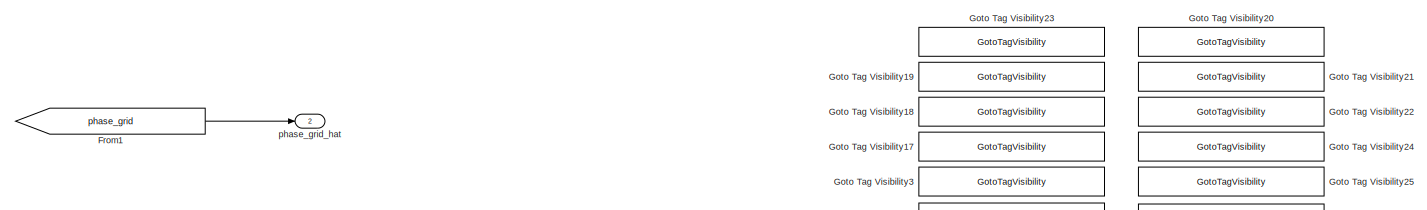
[diagram: single_phase_inverter_modB/single phase inverter control/single_phase_inverter_ctrl - part 1/4, full width, top band]
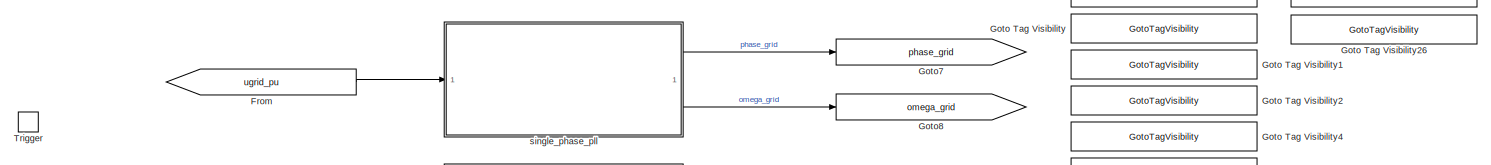
[diagram: single_phase_inverter_modB/single phase inverter control/single_phase_inverter_ctrl - part 2/4, full width, middle band]
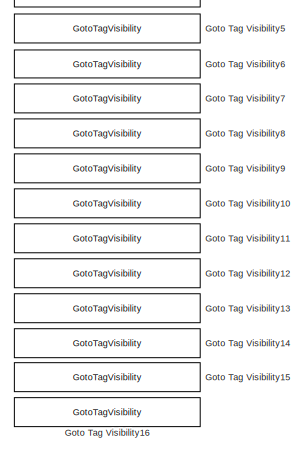
[diagram: single_phase_inverter_modB/single phase inverter control/single_phase_inverter_ctrl - part 3/4, bottom right region]
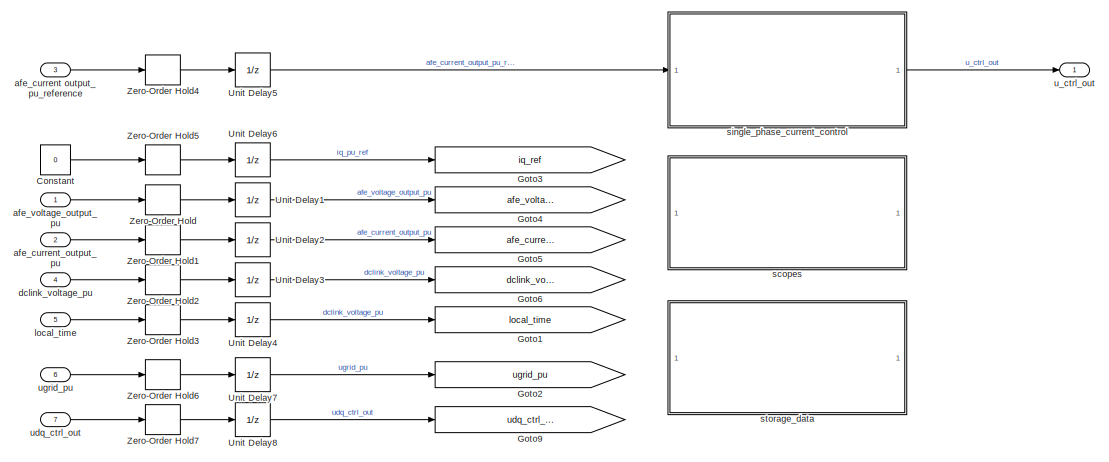
[diagram: single_phase_inverter_modB/single phase inverter control/single_phase_inverter_ctrl - part 4/4, bottom left region]
BLOCK [SubSystem] single_phase_inverter_modB/single phase inverter control/single_phase_inverter_ctrl
BLOCK [Constant] single_phase_inverter_modB/single phase inverter control/single_phase_inverter_ctrl/Constant
  Value = 0
BLOCK [From] single_phase_inverter_modB/single phase inverter control/single_phase_inverter_ctrl/From
  GotoTag = ugrid_pu
  TagVisibility = scoped
BLOCK [From] single_phase_inverter_modB/single phase inverter control/single_phase_inverter_ctrl/From1
  GotoTag = phase_grid
  TagVisibility = scoped
BLOCK [GotoTagVisibility] single_phase_inverter_modB/single phase inverter control/single_phase_inverter_ctrl/Goto Tag Visibility
  GotoTag = afe_voltage_output_pu
BLOCK [GotoTagVisibility] single_phase_inverter_modB/single phase inverter control/single_phase_inverter_ctrl/Goto Tag Visibility1
  GotoTag = afe_current_output_pu
BLOCK [GotoTagVisibility] single_phase_inverter_modB/single phase inverter control/single_phase_inverter_ctrl/Goto Tag Visibility10
  GotoTag = id_ref
BLOCK [GotoTagVisibility] single_phase_inverter_modB/single phase inverter control/single_phase_inverter_ctrl/Goto Tag Visibility11
  GotoTag = id
BLOCK [GotoTagVisibility] single_phase_inverter_modB/single phase inverter control/single_phase_inverter_ctrl/Goto Tag Visibility12
  GotoTag = iq_ref
BLOCK [GotoTagVisibility] single_phase_inverter_modB/single phase inverter control/single_phase_inverter_ctrl/Goto Tag Visibility13
  GotoTag = iq
BLOCK [GotoTagVisibility] single_phase_inverter_modB/single phase inverter control/single_phase_inverter_ctrl/Goto Tag Visibility14
  GotoTag = ud_ctrl
BLOCK [GotoTagVisibility] single_phase_inverter_modB/single phase inverter control/single_phase_inverter_ctrl/Goto Tag Visibility15
  GotoTag = uq_ctrl
BLOCK [GotoTagVisibility] single_phase_inverter_modB/single phase inverter control/single_phase_inverter_ctrl/Goto Tag Visibility16
  GotoTag = ugrid_pu
BLOCK [GotoTagVisibility] single_phase_inverter_modB/single phase inverter control/single_phase_inverter_ctrl/Goto Tag Visibility17
  GotoTag = gamma_grid_dqpll_ccaller
BLOCK [GotoTagVisibility] single_phase_inverter_modB/single phase inverter control/single_phase_inverter_ctrl/Goto Tag Visibility18
  GotoTag = omega_grid
BLOCK [GotoTagVisibility] single_phase_inverter_modB/single phase inverter control/single_phase_inverter_ctrl/Goto Tag Visibility19
  GotoTag = impedance_load_estimator
BLOCK [GotoTagVisibility] single_phase_inverter_modB/single phase inverter control/single_phase_inverter_ctrl/Goto Tag Visibility2
  GotoTag = dclink_voltage_pu
BLOCK [GotoTagVisibility] single_phase_inverter_modB/single phase inverter control/single_phase_inverter_ctrl/Goto Tag Visibility20
  GotoTag = rpi_tracking_iref
BLOCK [GotoTagVisibility] single_phase_inverter_modB/single phase inverter control/single_phase_inverter_ctrl/Goto Tag Visibility21
  GotoTag = rpi_tracking_i
BLOCK [GotoTagVisibility] single_phase_inverter_modB/single phase inverter control/single_phase_inverter_ctrl/Goto Tag Visibility22
  GotoTag = rpi_tracking_uout
BLOCK [GotoTagVisibility] single_phase_inverter_modB/single phase inverter control/single_phase_inverter_ctrl/Goto Tag Visibility23
  GotoTag = load_inductance_estimated
BLOCK [GotoTagVisibility] single_phase_inverter_modB/single phase inverter control/single_phase_inverter_ctrl/Goto Tag Visibility24
  GotoTag = impedance_load_measure
BLOCK [GotoTagVisibility] single_phase_inverter_modB/single phase inverter control/single_phase_inverter_ctrl/Goto Tag Visibility25
  GotoTag = load_inductance_measure
BLOCK [GotoTagVisibility] single_phase_inverter_modB/single phase inverter control/single_phase_inverter_ctrl/Goto Tag Visibility26
  GotoTag = udq_ctrl_out_ref
BLOCK [GotoTagVisibility] single_phase_inverter_modB/single phase inverter control/single_phase_inverter_ctrl/Goto Tag Visibility3
  GotoTag = phase_grid
BLOCK [GotoTagVisibility] single_phase_inverter_modB/single phase inverter control/single_phase_inverter_ctrl/Goto Tag Visibility4
  GotoTag = inverter_current_output_pu_reference
BLOCK [GotoTagVisibility] single_phase_inverter_modB/single phase inverter control/single_phase_inverter_ctrl/Goto Tag Visibility5
  GotoTag = i_out_alphabeta_ref
BLOCK [GotoTagVisibility] single_phase_inverter_modB/single phase inverter control/single_phase_inverter_ctrl/Goto Tag Visibility6
  GotoTag = u_ctrl_out
BLOCK [GotoTagVisibility] single_phase_inverter_modB/single phase inverter control/single_phase_inverter_ctrl/Goto Tag Visibility7
  GotoTag = local_time
BLOCK [GotoTagVisibility] single_phase_inverter_modB/single phase inverter control/single_phase_inverter_ctrl/Goto Tag Visibility8
  GotoTag = i_alpha
BLOCK [GotoTagVisibility] single_phase_inverter_modB/single phase inverter control/single_phase_inverter_ctrl/Goto Tag Visibility9
  GotoTag = i_beta
BLOCK [Goto] single_phase_inverter_modB/single phase inverter control/single_phase_inverter_ctrl/Goto1
  GotoTag = local_time
  TagVisibility = scoped
BLOCK [Goto] single_phase_inverter_modB/single phase inverter control/single_phase_inverter_ctrl/Goto2
  GotoTag = ugrid_pu
  TagVisibility = scoped
BLOCK [Goto] single_phase_inverter_modB/single phase inverter control/single_phase_inverter_ctrl/Goto3
  GotoTag = iq_ref
  TagVisibility = scoped
BLOCK [Goto] single_phase_inverter_modB/single phase inverter control/single_phase_inverter_ctrl/Goto4
  GotoTag = afe_voltage_output_pu
  TagVisibility = scoped
BLOCK [Goto] single_phase_inverter_modB/single phase inverter control/single_phase_inverter_ctrl/Goto5
  GotoTag = afe_current_output_pu
  TagVisibility = scoped
BLOCK [Goto] single_phase_inverter_modB/single phase inverter control/single_phase_inverter_ctrl/Goto6
  GotoTag = dclink_voltage_pu
  TagVisibility = scoped
BLOCK [Goto] single_phase_inverter_modB/single phase inverter control/single_phase_inverter_ctrl/Goto7
  GotoTag = phase_grid
  TagVisibility = scoped
BLOCK [Goto] single_phase_inverter_modB/single phase inverter control/single_phase_inverter_ctrl/Goto8
  GotoTag = omega_grid
  TagVisibility = scoped
BLOCK [Goto] single_phase_inverter_modB/single phase inverter control/single_phase_inverter_ctrl/Goto9
  GotoTag = udq_ctrl_out_ref
  TagVisibility = scoped
BLOCK [TriggerPort] single_phase_inverter_modB/single phase inverter control/single_phase_inverter_ctrl/Trigger
  PortDimensions = 1
  StatesWhenEnabling = held
  VariantControl = (inherit)
BLOCK [UnitDelay] single_phase_inverter_modB/single phase inverter control/single_phase_inverter_ctrl/Unit Delay1
  SampleTime = -1
BLOCK [UnitDelay] single_phase_inverter_modB/single phase inverter control/single_phase_inverter_ctrl/Unit Delay2
  SampleTime = -1
BLOCK [UnitDelay] single_phase_inverter_modB/single phase inverter control/single_phase_inverter_ctrl/Unit Delay3
  SampleTime = -1
BLOCK [UnitDelay] single_phase_inverter_modB/single phase inverter control/single_phase_inverter_ctrl/Unit Delay4
  SampleTime = -1
BLOCK [UnitDelay] single_phase_inverter_modB/single phase inverter control/single_phase_inverter_ctrl/Unit Delay5
  SampleTime = -1
BLOCK [UnitDelay] single_phase_inverter_modB/single phase inverter control/single_phase_inverter_ctrl/Unit Delay6
  SampleTime = -1
BLOCK [UnitDelay] single_phase_inverter_modB/single phase inverter control/single_phase_inverter_ctrl/Unit Delay7
  SampleTime = -1
BLOCK [UnitDelay] single_phase_inverter_modB/single phase inverter control/single_phase_inverter_ctrl/Unit Delay8
  SampleTime = -1
BLOCK [ZeroOrderHold] single_phase_inverter_modB/single phase inverter control/single_phase_inverter_ctrl/Zero-Order Hold
  SampleTime = -1
BLOCK [ZeroOrderHold] single_phase_inverter_modB/single phase inverter control/single_phase_inverter_ctrl/Zero-Order Hold1
  SampleTime = -1
BLOCK [ZeroOrderHold] single_phase_inverter_modB/single phase inverter control/single_phase_inverter_ctrl/Zero-Order Hold2
  SampleTime = -1
BLOCK [ZeroOrderHold] single_phase_inverter_modB/single phase inverter control/single_phase_inverter_ctrl/Zero-Order Hold3
  SampleTime = -1
BLOCK [ZeroOrderHold] single_phase_inverter_modB/single phase inverter control/single_phase_inverter_ctrl/Zero-Order Hold4
  SampleTime = -1
BLOCK [ZeroOrderHold] single_phase_inverter_modB/single phase inverter control/single_phase_inverter_ctrl/Zero-Order Hold5
  SampleTime = -1
BLOCK [ZeroOrderHold] single_phase_inverter_modB/single phase inverter control/single_phase_inverter_ctrl/Zero-Order Hold6
  SampleTime = -1
BLOCK [ZeroOrderHold] single_phase_inverter_modB/single phase inverter control/single_phase_inverter_ctrl/Zero-Order Hold7
  SampleTime = -1
BLOCK [Inport] single_phase_inverter_modB/single phase inverter control/single_phase_inverter_ctrl/afe_current output_pu_reference
  Port = 3
BLOCK [Inport] single_phase_inverter_modB/single phase inverter control/single_phase_inverter_ctrl/afe_current_output_pu
  Port = 2
BLOCK [Inport] single_phase_inverter_modB/single phase inverter control/single_phase_inverter_ctrl/afe_voltage_output_pu
BLOCK [Inport] single_phase_inverter_modB/single phase inverter control/single_phase_inverter_ctrl/dclink_voltage_pu
  Port = 4
BLOCK [Inport] single_phase_inverter_modB/single phase inverter control/single_phase_inverter_ctrl/local_time
  Port = 5
BLOCK [Outport] single_phase_inverter_modB/single phase inverter control/single_phase_inverter_ctrl/phase_grid_hat
  Port = 2
BLOCK [SubSystem] single_phase_inverter_modB/single phase inverter control/single_phase_inverter_ctrl/scopes
BLOCK [BusCreator] single_phase_inverter_modB/single phase inverter control/single_phase_inverter_ctrl/scopes/Bus Creator1
  DisplayOption = bar
  InheritFromInputs = on
  Inputs = 3
BLOCK [BusCreator] single_phase_inverter_modB/single phase inverter control/single_phase_inverter_ctrl/scopes/Bus Creator2
  DisplayOption = bar
  InheritFromInputs = on
  Inputs = 2
BLOCK [BusCreator] single_phase_inverter_modB/single phase inverter control/single_phase_inverter_ctrl/scopes/Bus Creator3
  DisplayOption = bar
  InheritFromInputs = on
  Inputs = 2
BLOCK [BusCreator] single_phase_inverter_modB/single phase inverter control/single_phase_inverter_ctrl/scopes/Bus Creator4
  DisplayOption = bar
  InheritFromInputs = on
  Inputs = 2
BLOCK [From] single_phase_inverter_modB/single phase inverter control/single_phase_inverter_ctrl/scopes/From
  GotoTag = inverter_current_output_pu_reference
  TagVisibility = scoped
BLOCK [From] single_phase_inverter_modB/single phase inverter control/single_phase_inverter_ctrl/scopes/From1
  GotoTag = i_out_alphabeta_ref
  TagVisibility = scoped
BLOCK [From] single_phase_inverter_modB/single phase inverter control/single_phase_inverter_ctrl/scopes/From2
  GotoTag = afe_current_output_pu
  TagVisibility = scoped
BLOCK [From] single_phase_inverter_modB/single phase inverter control/single_phase_inverter_ctrl/scopes/From3
  GotoTag = u_ctrl_out
  TagVisibility = scoped
BLOCK [From] single_phase_inverter_modB/single phase inverter control/single_phase_inverter_ctrl/scopes/From4
  GotoTag = afe_voltage_output_pu
  TagVisibility = scoped
BLOCK [From] single_phase_inverter_modB/single phase inverter control/single_phase_inverter_ctrl/scopes/From5
  GotoTag = afe_current_output_pu
  TagVisibility = scoped
BLOCK [From] single_phase_inverter_modB/single phase inverter control/single_phase_inverter_ctrl/scopes/From6
  GotoTag = i_out_alphabeta_ref
  TagVisibility = scoped
BLOCK [From] single_phase_inverter_modB/single phase inverter control/single_phase_inverter_ctrl/scopes/From7
  GotoTag = afe_current_output_pu
  TagVisibility = scoped
BLOCK [From] single_phase_inverter_modB/single phase inverter control/single_phase_inverter_ctrl/scopes/From8
  GotoTag = afe_voltage_output_pu
  TagVisibility = scoped
BLOCK [Scope] single_phase_inverter_modB/single phase inverter control/single_phase_inverter_ctrl/scopes/single phase inverter tracking current scope 1
  ActiveDisplayYMaximum = 1.23419189453125
  ActiveDisplayYMinimum = -1.23468017578125
  DataLoggingVariableName = ScopeData12
  DisplayFullPath = on
  Floating = off
  GraphicalSettings = {"Style":{"BackgroundColor":[0.12941176470588237,0.12941176470588237,0.12941176470588237],"AxesColor":[0.07058823529411765,0.07058823529411765,0.07058823529411765],"LabelsColor":[0.8509803921568627,0.8509803921568627,0.8509803921568627],"PreserveColors":false,"Visible":[true,true,true,true,true,true],"LineStyle":["-","-","-","-","-","-"],"LineWidth":[2,2,2,1.5,1.5,1.5],"BarWidth":[0.9,0.9,0.9,0.9,...<+3432ch>
  LayoutDimensionsString = [2 1]
  MultipleDisplayCache = [{"MaxYLimMag":1.23468017578125,"MaxYLimReal":1.23419189453125,"MinYLimMag":0,"MinYLimReal":-1.23468017578125,"PlotAsMagnitudePhase":false,"ShowGrid":true,"ShowLegend":true,"Title":"%<SignalLabel>","YLabel":""},{"MaxYLimMag":1.2499994752966987,"MaxYLimReal":1.2499994752966987,"MinYLimMag":0,"MinYLimReal":-1.2499952776702896,"PlotAsMagnitudePhase":false,"ShowGrid":true,"ShowLegend":true,"Title":"%<...<+27ch>
  NumInputPorts = 2
  ScopeFrameLocation = container
  ShowLegend = on
  WasSavedAsWebScope = on
  WindowPosition = [545.000000,133.000000,962.000000,499.000000,]
BLOCK [Scope] single_phase_inverter_modB/single phase inverter control/single_phase_inverter_ctrl/scopes/single phase inverter tracking current scope 2
  ActiveDisplayYMaximum = 1.2652587890625
  ActiveDisplayYMinimum = -1.2603759765625
  DataLoggingVariableName = ScopeData2
  Floating = off
  GraphicalSettings = {"AxesScalingProperties":{"AlignXAxis":"Center","AlignYAxis":"Center","AutoScaleXAxisLimits":false,"AxesScaling":"Manual","AxesScalingNumUpdates":10,"ExpandOnly":true,"ScaleAxesLimitsAtStop":false,"XAxisDataRange":100,"YAxisDataRange":80},"DisplayProperties":{"ColorOrder":["auto","auto","auto","auto","auto","auto","auto","auto","auto","auto","auto","auto","auto","auto","auto","auto","auto","auto",...<+3130ch>
  LayoutDimensionsString = [2 1]
  MultipleDisplayCache = [{"MaxYLimMag":1.2652587890625,"MaxYLimReal":1.2652587890625,"MinYLimMag":0,"MinYLimReal":-1.2603759765625,"PlotAsMagnitudePhase":false,"ShowGrid":true,"ShowLegend":true,"Title":"%<SignalLabel>","YLabel":""},{"MaxYLimMag":1.1566162109375,"MaxYLimReal":1.1566162109375,"MinYLimMag":0,"MinYLimReal":-1.1566162109375,"PlotAsMagnitudePhase":false,"ShowGrid":true,"ShowLegend":true,"Title":"%<SignalLabel>...<+15ch>
  NumInputPorts = 2
  ScopeFrameLocation = container
  ShowLegend = on
  WasSavedAsWebScope = on
  WindowPosition = [291.000000,100.000000,1280.000000,768.000000,]
BLOCK [SubSystem] single_phase_inverter_modB/single phase inverter control/single_phase_inverter_ctrl/single_phase_current_control
BLOCK [From] single_phase_inverter_modB/single phase inverter control/single_phase_inverter_ctrl/single_phase_current_control/From
  GotoTag = phase_grid
  TagVisibility = scoped
BLOCK [Goto] single_phase_inverter_modB/single phase inverter control/single_phase_inverter_ctrl/single_phase_current_control/Goto1
  GotoTag = i_out_alphabeta_ref
  TagVisibility = scoped
BLOCK [Goto] single_phase_inverter_modB/single phase inverter control/single_phase_inverter_ctrl/single_phase_current_control/Goto2
  GotoTag = inverter_current_output_pu_reference
  TagVisibility = scoped
BLOCK [Goto] single_phase_inverter_modB/single phase inverter control/single_phase_inverter_ctrl/single_phase_current_control/Goto3
  GotoTag = u_ctrl_out
  TagVisibility = scoped
BLOCK [SubSystem] single_phase_inverter_modB/single phase inverter control/single_phase_inverter_ctrl/single_phase_current_control/current_reference_generation
BLOCK [BusCreator] single_phase_inverter_modB/single phase inverter control/single_phase_inverter_ctrl/single_phase_current_control/current_reference_generation/Bus Creator
  DisplayOption = bar
  InheritFromInputs = on
  Inputs = 2
BLOCK [Product] single_phase_inverter_modB/single phase inverter control/single_phase_inverter_ctrl/single_phase_current_control/current_reference_generation/Product
BLOCK [Product] single_phase_inverter_modB/single phase inverter control/single_phase_inverter_ctrl/single_phase_current_control/current_reference_generation/Product1
BLOCK [Trigonometry] single_phase_inverter_modB/single phase inverter control/single_phase_inverter_ctrl/single_phase_current_control/current_reference_generation/Sin
  Operator = cos
BLOCK [Trigonometry] single_phase_inverter_modB/single phase inverter control/single_phase_inverter_ctrl/single_phase_current_control/current_reference_generation/Sin1
BLOCK [Outport] single_phase_inverter_modB/single phase inverter control/single_phase_inverter_ctrl/single_phase_current_control/current_reference_generation/id_ref
  Port = 2
BLOCK [Outport] single_phase_inverter_modB/single phase inverter control/single_phase_inverter_ctrl/single_phase_current_control/current_reference_generation/is_ref
BLOCK [Inport] single_phase_inverter_modB/single phase inverter control/single_phase_inverter_ctrl/single_phase_current_control/current_reference_generation/mag_ref
BLOCK [Inport] single_phase_inverter_modB/single phase inverter control/single_phase_inverter_ctrl/single_phase_current_control/current_reference_generation/phase
  Port = 2
BLOCK [SubSystem] single_phase_inverter_modB/single phase inverter control/single_phase_inverter_ctrl/single_phase_current_control/dqpi_current_controller
BLOCK [BusCreator] single_phase_inverter_modB/single phase inverter control/single_phase_inverter_ctrl/single_phase_current_control/dqpi_current_controller/Bus Creator
  DisplayOption = bar
  InheritFromInputs = on
  Inputs = 3
BLOCK [BusCreator] single_phase_inverter_modB/single phase inverter control/single_phase_inverter_ctrl/single_phase_current_control/dqpi_current_controller/Bus Creator1
  DisplayOption = bar
  InheritFromInputs = on
  Inputs = 3
BLOCK [BusSelector] single_phase_inverter_modB/single phase inverter control/single_phase_inverter_ctrl/single_phase_current_control/dqpi_current_controller/Bus Selector
  OutputSignals = ud_ctrl
BLOCK [BusSelector] single_phase_inverter_modB/single phase inverter control/single_phase_inverter_ctrl/single_phase_current_control/dqpi_current_controller/Bus Selector1
  OutputSignals = uq_ctrl
BLOCK [From] single_phase_inverter_modB/single phase inverter control/single_phase_inverter_ctrl/single_phase_current_control/dqpi_current_controller/From
  GotoTag = afe_current_output_pu
  TagVisibility = scoped
BLOCK [From] single_phase_inverter_modB/single phase inverter control/single_phase_inverter_ctrl/single_phase_current_control/dqpi_current_controller/From1
  GotoTag = iq_ref
  TagVisibility = scoped
BLOCK [From] single_phase_inverter_modB/single phase inverter control/single_phase_inverter_ctrl/single_phase_current_control/dqpi_current_controller/From2
  GotoTag = dclink_voltage_pu
  TagVisibility = scoped
BLOCK [From] single_phase_inverter_modB/single phase inverter control/single_phase_inverter_ctrl/single_phase_current_control/dqpi_current_controller/From3
  GotoTag = ud_ctrl
  TagVisibility = scoped
BLOCK [From] single_phase_inverter_modB/single phase inverter control/single_phase_inverter_ctrl/single_phase_current_control/dqpi_current_controller/From4
  GotoTag = uq_ctrl
  TagVisibility = scoped
BLOCK [From] single_phase_inverter_modB/single phase inverter control/single_phase_inverter_ctrl/single_phase_current_control/dqpi_current_controller/From5
  GotoTag = iq_ref
  TagVisibility = scoped
BLOCK [From] single_phase_inverter_modB/single phase inverter control/single_phase_inverter_ctrl/single_phase_current_control/dqpi_current_controller/From6
  GotoTag = udq_ctrl_out_ref
  TagVisibility = scoped
BLOCK [From] single_phase_inverter_modB/single phase inverter control/single_phase_inverter_ctrl/single_phase_current_control/dqpi_current_controller/From7
  GotoTag = udq_ctrl_out_ref
  TagVisibility = scoped
BLOCK [Goto] single_phase_inverter_modB/single phase inverter control/single_phase_inverter_ctrl/single_phase_current_control/dqpi_current_controller/Goto1
  GotoTag = i_beta
  TagVisibility = scoped
BLOCK [Goto] single_phase_inverter_modB/single phase inverter control/single_phase_inverter_ctrl/single_phase_current_control/dqpi_current_controller/Goto2
  GotoTag = uq_ctrl
  TagVisibility = scoped
BLOCK [Goto] single_phase_inverter_modB/single phase inverter control/single_phase_inverter_ctrl/single_phase_current_control/dqpi_current_controller/Goto3
  GotoTag = iq
  TagVisibility = scoped
BLOCK [Goto] single_phase_inverter_modB/single phase inverter control/single_phase_inverter_ctrl/single_phase_current_control/dqpi_current_controller/Goto4
  GotoTag = i_alpha
  TagVisibility = scoped
BLOCK [Goto] single_phase_inverter_modB/single phase inverter control/single_phase_inverter_ctrl/single_phase_current_control/dqpi_current_controller/Goto5
  GotoTag = ud_ctrl
  TagVisibility = scoped
BLOCK [Goto] single_phase_inverter_modB/single phase inverter control/single_phase_inverter_ctrl/single_phase_current_control/dqpi_current_controller/Goto6
  GotoTag = id
  TagVisibility = scoped
BLOCK [Goto] single_phase_inverter_modB/single phase inverter control/single_phase_inverter_ctrl/single_phase_current_control/dqpi_current_controller/Goto7
  GotoTag = id_ref
  TagVisibility = scoped
BLOCK [VariantSource] single_phase_inverter_modB/single phase inverter control/single_phase_inverter_ctrl/single_phase_current_control/dqpi_current_controller/Variant Source
BLOCK [VariantSource] single_phase_inverter_modB/single phase inverter control/single_phase_inverter_ctrl/single_phase_current_control/dqpi_current_controller/Variant Source1
BLOCK [Scope] single_phase_inverter_modB/single phase inverter control/single_phase_inverter_ctrl/single_phase_current_control/dqpi_current_controller/alpha_beta currents
  ActiveDisplayYMaximum = 15.212667801061009
  ActiveDisplayYMinimum = -43.020049026506776
  DataLoggingVariableName = ScopeData2
  Floating = off
  GraphicalSettings = {"Style":{"BackgroundColor":[0.12941176470588237,0.12941176470588237,0.12941176470588237],"AxesColor":[0.07058823529411765,0.07058823529411765,0.07058823529411765],"LabelsColor":[0.8509803921568627,0.8509803921568627,0.8509803921568627],"PreserveColors":false,"Visible":[true,true,true],"LineStyle":["-","-","-"],"LineWidth":[1.5,1.5,1.5],"BarWidth":[0.9,0.9,0.9],"LineColor":["auto","auto","auto"],"...<+2222ch>
  MultipleDisplayCache = [{"MaxYLimMag":43.020049026506776,"MaxYLimReal":15.212667801061009,"MinYLimMag":0,"MinYLimReal":-43.020049026506776,"PlotAsMagnitudePhase":false,"ShowGrid":true,"ShowLegend":true,"Title":"%<SignalLabel>","YLabel":""}]
  NumInputPorts = 3
  ScopeFrameLocation = container
  ShowLegend = on
  WasSavedAsWebScope = on
  WindowPosition = [384.000000,156.000000,1280.000000,768.000000,]
BLOCK [SubSystem] single_phase_inverter_modB/single phase inverter control/single_phase_inverter_ctrl/single_phase_current_control/dqpi_current_controller/alphabeta2dq
BLOCK [From] single_phase_inverter_modB/single phase inverter control/single_phase_inverter_ctrl/single_phase_current_control/dqpi_current_controller/alphabeta2dq/From
  GotoTag = phase_grid
  TagVisibility = scoped
BLOCK [SubSystem] single_phase_inverter_modB/single phase inverter control/single_phase_inverter_ctrl/single_phase_current_control/dqpi_current_controller/alphabeta2dq/MATLAB Function
  ErrorFcn = Stateflow.Translate.translate
  PermitHierarchicalResolution = ExplicitOnly
  SFBlockType = MATLAB Function
  TreatAsAtomicUnit = on
BLOCK [Demux] single_phase_inverter_modB/single phase inverter control/single_phase_inverter_ctrl/single_phase_current_control/dqpi_current_controller/alphabeta2dq/MATLAB Function/ Demux 
  Outputs = 1
BLOCK [S-Function] single_phase_inverter_modB/single phase inverter control/single_phase_inverter_ctrl/single_phase_current_control/dqpi_current_controller/alphabeta2dq/MATLAB Function/ SFunction 
  EnableBusSupport = off
  FunctionName = sf_sfun
  PortCounts = [3 3]
  SFcnIsStateOwnerBlock = off
  SFunctionDeploymentMode = off
  Tag = Stateflow S-Function 2
BLOCK [Terminator] single_phase_inverter_modB/single phase inverter control/single_phase_inverter_ctrl/single_phase_current_control/dqpi_current_controller/alphabeta2dq/MATLAB Function/ Terminator 
BLOCK [Inport] single_phase_inverter_modB/single phase inverter control/single_phase_inverter_ctrl/single_phase_current_control/dqpi_current_controller/alphabeta2dq/MATLAB Function/alpha
BLOCK [Inport] single_phase_inverter_modB/single phase inverter control/single_phase_inverter_ctrl/single_phase_current_control/dqpi_current_controller/alphabeta2dq/MATLAB Function/beta
  Port = 2
BLOCK [Outport] single_phase_inverter_modB/single phase inverter control/single_phase_inverter_ctrl/single_phase_current_control/dqpi_current_controller/alphabeta2dq/MATLAB Function/d
BLOCK [Inport] single_phase_inverter_modB/single phase inverter control/single_phase_inverter_ctrl/single_phase_current_control/dqpi_current_controller/alphabeta2dq/MATLAB Function/phase
  Port = 3
BLOCK [Outport] single_phase_inverter_modB/single phase inverter control/single_phase_inverter_ctrl/single_phase_current_control/dqpi_current_controller/alphabeta2dq/MATLAB Function/q
  Port = 2
BLOCK [Inport] single_phase_inverter_modB/single phase inverter control/single_phase_inverter_ctrl/single_phase_current_control/dqpi_current_controller/alphabeta2dq/alpha
BLOCK [Inport] single_phase_inverter_modB/single phase inverter control/single_phase_inverter_ctrl/single_phase_current_control/dqpi_current_controller/alphabeta2dq/beta
  Port = 2
BLOCK [Outport] single_phase_inverter_modB/single phase inverter control/single_phase_inverter_ctrl/single_phase_current_control/dqpi_current_controller/alphabeta2dq/d 
  VectorParamsAs1DForOutWhenUnconnected = off
BLOCK [Outport] single_phase_inverter_modB/single phase inverter control/single_phase_inverter_ctrl/single_phase_current_control/dqpi_current_controller/alphabeta2dq/q 
  Port = 2
  VectorParamsAs1DForOutWhenUnconnected = off
BLOCK [SubSystem] single_phase_inverter_modB/single phase inverter control/single_phase_inverter_ctrl/single_phase_current_control/dqpi_current_controller/dq2alphabeta
BLOCK [From] single_phase_inverter_modB/single phase inverter control/single_phase_inverter_ctrl/single_phase_current_control/dqpi_current_controller/dq2alphabeta/From1
  GotoTag = phase_grid
  TagVisibility = scoped
BLOCK [SubSystem] single_phase_inverter_modB/single phase inverter control/single_phase_inverter_ctrl/single_phase_current_control/dqpi_current_controller/dq2alphabeta/MATLAB Function
  ErrorFcn = Stateflow.Translate.translate
  PermitHierarchicalResolution = ExplicitOnly
  SFBlockType = MATLAB Function
  TreatAsAtomicUnit = on
BLOCK [Demux] single_phase_inverter_modB/single phase inverter control/single_phase_inverter_ctrl/single_phase_current_control/dqpi_current_controller/dq2alphabeta/MATLAB Function/ Demux 
  Outputs = 1
BLOCK [S-Function] single_phase_inverter_modB/single phase inverter control/single_phase_inverter_ctrl/single_phase_current_control/dqpi_current_controller/dq2alphabeta/MATLAB Function/ SFunction 
  EnableBusSupport = off
  FunctionName = sf_sfun
  PortCounts = [3 3]
  SFcnIsStateOwnerBlock = off
  SFunctionDeploymentMode = off
  Tag = Stateflow S-Function 4
BLOCK [Terminator] single_phase_inverter_modB/single phase inverter control/single_phase_inverter_ctrl/single_phase_current_control/dqpi_current_controller/dq2alphabeta/MATLAB Function/ Terminator 
BLOCK [Outport] single_phase_inverter_modB/single phase inverter control/single_phase_inverter_ctrl/single_phase_current_control/dqpi_current_controller/dq2alphabeta/MATLAB Function/alpha
BLOCK [Outport] single_phase_inverter_modB/single phase inverter control/single_phase_inverter_ctrl/single_phase_current_control/dqpi_current_controller/dq2alphabeta/MATLAB Function/beta
  Port = 2
BLOCK [Inport] single_phase_inverter_modB/single phase inverter control/single_phase_inverter_ctrl/single_phase_current_control/dqpi_current_controller/dq2alphabeta/MATLAB Function/d
BLOCK [Inport] single_phase_inverter_modB/single phase inverter control/single_phase_inverter_ctrl/single_phase_current_control/dqpi_current_controller/dq2alphabeta/MATLAB Function/phase
  Port = 3
BLOCK [Inport] single_phase_inverter_modB/single phase inverter control/single_phase_inverter_ctrl/single_phase_current_control/dqpi_current_controller/dq2alphabeta/MATLAB Function/q
  Port = 2
BLOCK [Outport] single_phase_inverter_modB/single phase inverter control/single_phase_inverter_ctrl/single_phase_current_control/dqpi_current_controller/dq2alphabeta/alpha
  VectorParamsAs1DForOutWhenUnconnected = off
BLOCK [Inport] single_phase_inverter_modB/single phase inverter control/single_phase_inverter_ctrl/single_phase_current_control/dqpi_current_controller/dq2alphabeta/d
BLOCK [Inport] single_phase_inverter_modB/single phase inverter control/single_phase_inverter_ctrl/single_phase_current_control/dqpi_current_controller/dq2alphabeta/q
  Port = 2
BLOCK [SubSystem] single_phase_inverter_modB/single phase inverter control/single_phase_inverter_ctrl/single_phase_current_control/dqpi_current_controller/dq_vector_pi
BLOCK [From] single_phase_inverter_modB/single phase inverter control/single_phase_inverter_ctrl/single_phase_current_control/dqpi_current_controller/dq_vector_pi/From
  GotoTag = dclink_voltage_pu
  TagVisibility = scoped
BLOCK [Reference] single_phase_inverter_modB/single phase inverter control/single_phase_inverter_ctrl/single_phase_current_control/dqpi_current_controller/dq_vector_pi/dq_vector_pi  REF=dq_vector_pi/dq_vector_pi  (lib defined in slx_ca8d0d25bdba)
  SourceBlock = dq_vector_pi/dq_vector_pi
BLOCK [Inport] single_phase_inverter_modB/single phase inverter control/single_phase_inverter_ctrl/single_phase_current_control/dqpi_current_controller/dq_vector_pi/id
  Port = 2
BLOCK [Inport] single_phase_inverter_modB/single phase inverter control/single_phase_inverter_ctrl/single_phase_current_control/dqpi_current_controller/dq_vector_pi/id_ref
BLOCK [Inport] single_phase_inverter_modB/single phase inverter control/single_phase_inverter_ctrl/single_phase_current_control/dqpi_current_controller/dq_vector_pi/iq
  Port = 3
BLOCK [Inport] single_phase_inverter_modB/single phase inverter control/single_phase_inverter_ctrl/single_phase_current_control/dqpi_current_controller/dq_vector_pi/iq_ref
  Port = 4
BLOCK [Outport] single_phase_inverter_modB/single phase inverter control/single_phase_inverter_ctrl/single_phase_current_control/dqpi_current_controller/dq_vector_pi/ud_ctrl
BLOCK [Outport] single_phase_inverter_modB/single phase inverter control/single_phase_inverter_ctrl/single_phase_current_control/dqpi_current_controller/dq_vector_pi/uq_ctrl
  Port = 2
BLOCK [Scope] single_phase_inverter_modB/single phase inverter control/single_phase_inverter_ctrl/single_phase_current_control/dqpi_current_controller/dq_vector_pi_tracking
  ActiveDisplayString = 2
  ActiveDisplayYMaximum = 20.947282871449747
  ActiveDisplayYMinimum = -5.8450231123834442
  DataLoggingVariableName = ScopeData8
  Floating = off
  GraphicalSettings = {"Style":{"BackgroundColor":[0.12941176470588237,0.12941176470588237,0.12941176470588237],"AxesColor":[0.07058823529411765,0.07058823529411765,0.07058823529411765],"LabelsColor":[0.8509803921568627,0.8509803921568627,0.8509803921568627],"PreserveColors":false,"Visible":[true,true,true,true,true,true],"LineStyle":["-","-","-","-","-","-"],"LineWidth":[1.5,1.5,1.5,1.5,1.5,1.5],"BarWidth":[0.9,0.9,0....<+2886ch>
  LayoutDimensionsString = [2,1]
  MultipleDisplayCache = [{"MaxYLimMag":34.458897644939242,"MaxYLimReal":11.788667560986731,"MinYLimMag":0,"MinYLimReal":-34.458897644939242,"PlotAsMagnitudePhase":false,"ShowGrid":true,"ShowLegend":true,"Title":"%<SignalLabel>","YLabel":""},{"MaxYLimMag":20.947282871449747,"MaxYLimReal":20.947282871449747,"MinYLimMag":0,"MinYLimReal":-5.8450231123834442,"PlotAsMagnitudePhase":false,"ShowGrid":true,"ShowLegend":true,"Titl...<+33ch>
  NumInputPorts = 2
  ScopeFrameLocation = window
  ShowLegend = on
  WasSavedAsWebScope = on
  WindowPosition = [237.000000,74.000000,1041.000000,581.000000,]
BLOCK [SubSystem] single_phase_inverter_modB/single phase inverter control/single_phase_inverter_ctrl/single_phase_current_control/dqpi_current_controller/i2alphabeta
BLOCK [SubSystem] single_phase_inverter_modB/single phase inverter control/single_phase_inverter_ctrl/single_phase_current_control/dqpi_current_controller/i2alphabeta/FHTalpha
BLOCK [Gain] single_phase_inverter_modB/single phase inverter control/single_phase_inverter_ctrl/single_phase_current_control/dqpi_current_controller/i2alphabeta/FHTalpha/Gain
  Gain = single_phase_inverter_ctrl.fht_load.Ld_fht
  Multiplication = Matrix(K*u)
BLOCK [Gain] single_phase_inverter_modB/single phase inverter control/single_phase_inverter_ctrl/single_phase_current_control/dqpi_current_controller/i2alphabeta/FHTalpha/Gain1
  Gain = single_phase_inverter_ctrl.fht_load.Ad_fht
  Multiplication = Matrix(K*u)
  NameLocation = top
BLOCK [Gain] single_phase_inverter_modB/single phase inverter control/single_phase_inverter_ctrl/single_phase_current_control/dqpi_current_controller/i2alphabeta/FHTalpha/Gain2
  Gain = single_phase_inverter_ctrl.fht_load.Cfht
  Multiplication = Matrix(K*u)
BLOCK [Gain] single_phase_inverter_modB/single phase inverter control/single_phase_inverter_ctrl/single_phase_current_control/dqpi_current_controller/i2alphabeta/FHTalpha/Gain3
  Gain = -1/single_phase_inverter_ctrl.omega_base
BLOCK [Selector] single_phase_inverter_modB/single phase inverter control/single_phase_inverter_ctrl/single_phase_current_control/dqpi_current_controller/i2alphabeta/FHTalpha/Selector
  IndexOptions = Index vector (dialog)
  Indices = 1
  InputPortWidth = 2
  OutputSizes = 1
BLOCK [Selector] single_phase_inverter_modB/single phase inverter control/single_phase_inverter_ctrl/single_phase_current_control/dqpi_current_controller/i2alphabeta/FHTalpha/Selector1
  IndexOptions = Index vector (dialog)
  Indices = 2
  InputPortWidth = 2
  OutputSizes = 1
BLOCK [Sum] single_phase_inverter_modB/single phase inverter control/single_phase_inverter_ctrl/single_phase_current_control/dqpi_current_controller/i2alphabeta/FHTalpha/Sum
  Inputs = -+|
BLOCK [Sum] single_phase_inverter_modB/single phase inverter control/single_phase_inverter_ctrl/single_phase_current_control/dqpi_current_controller/i2alphabeta/FHTalpha/Sum1
  Inputs = |++
BLOCK [UnitDelay] single_phase_inverter_modB/single phase inverter control/single_phase_inverter_ctrl/single_phase_current_control/dqpi_current_controller/i2alphabeta/FHTalpha/Unit Delay
  SampleTime = -1
BLOCK [Inport] single_phase_inverter_modB/single phase inverter control/single_phase_inverter_ctrl/single_phase_current_control/dqpi_current_controller/i2alphabeta/FHTalpha/u
BLOCK [Outport] single_phase_inverter_modB/single phase inverter control/single_phase_inverter_ctrl/single_phase_current_control/dqpi_current_controller/i2alphabeta/FHTalpha/ualpha
BLOCK [Outport] single_phase_inverter_modB/single phase inverter control/single_phase_inverter_ctrl/single_phase_current_control/dqpi_current_controller/i2alphabeta/FHTalpha/ubeta
  Port = 2
BLOCK [Inport] single_phase_inverter_modB/single phase inverter control/single_phase_inverter_ctrl/single_phase_current_control/dqpi_current_controller/i2alphabeta/i_alpha
BLOCK [Outport] single_phase_inverter_modB/single phase inverter control/single_phase_inverter_ctrl/single_phase_current_control/dqpi_current_controller/i2alphabeta/i_alpha_out
BLOCK [Outport] single_phase_inverter_modB/single phase inverter control/single_phase_inverter_ctrl/single_phase_current_control/dqpi_current_controller/i2alphabeta/i_beta_out
  Port = 2
BLOCK [Inport] single_phase_inverter_modB/single phase inverter control/single_phase_inverter_ctrl/single_phase_current_control/dqpi_current_controller/id_ref
BLOCK [Outport] single_phase_inverter_modB/single phase inverter control/single_phase_inverter_ctrl/single_phase_current_control/dqpi_current_controller/u_out
BLOCK [Inport] single_phase_inverter_modB/single phase inverter control/single_phase_inverter_ctrl/single_phase_current_control/inverter_current_output_pu_reference
BLOCK [Outport] single_phase_inverter_modB/single phase inverter control/single_phase_inverter_ctrl/single_phase_current_control/u_ctrl_out
BLOCK [SubSystem] single_phase_inverter_modB/single phase inverter control/single_phase_inverter_ctrl/single_phase_pll
BLOCK [Constant] single_phase_inverter_modB/single phase inverter control/single_phase_inverter_ctrl/single_phase_pll/Constant
BLOCK [Constant] single_phase_inverter_modB/single phase inverter control/single_phase_inverter_ctrl/single_phase_pll/Constant2
  Value = 0
BLOCK [Scope] single_phase_inverter_modB/single phase inverter control/single_phase_inverter_ctrl/single_phase_pll/Scope
  ActiveDisplayYMaximum = 3.4773424919151528
  ActiveDisplayYMinimum = -3.2854912154015015
  Floating = off
  GraphicalSettings = {"Style":{"BackgroundColor":[0.12941176470588237,0.12941176470588237,0.12941176470588237],"AxesColor":[0.07058823529411765,0.07058823529411765,0.07058823529411765],"LabelsColor":[0.8509803921568627,0.8509803921568627,0.8509803921568627],"PreserveColors":false,"Visible":[true,true],"LineStyle":["-","-"],"LineWidth":[1.5,1.5],"BarWidth":[0.9,0.9],"LineColor":["auto","auto"],"LineFaceAlpha":[1,1],"Li...<+2138ch>
  MultipleDisplayCache = [{"MaxYLimMag":3.9163153957896437,"MaxYLimReal":3.4773424919151528,"MinYLimMag":0,"MinYLimReal":-3.2854912154015015,"PlotAsMagnitudePhase":false,"ShowGrid":true,"ShowLegend":false,"Title":"%<SignalLabel>","YLabel":""}]
  NumInputPorts = 2
  ScopeFrameLocation = window
  WasSavedAsWebScope = on
  WindowPosition = [744.000000,330.000000,560.000000,420.000000,]
BLOCK [Sum] single_phase_inverter_modB/single phase inverter control/single_phase_inverter_ctrl/single_phase_pll/Sum
  Inputs = |++
BLOCK [Sum] single_phase_inverter_modB/single phase inverter control/single_phase_inverter_ctrl/single_phase_pll/Sum1
  Inputs = |++
BLOCK [Terminator] single_phase_inverter_modB/single phase inverter control/single_phase_inverter_ctrl/single_phase_pll/Terminator
BLOCK [Terminator] single_phase_inverter_modB/single phase inverter control/single_phase_inverter_ctrl/single_phase_pll/Terminator1
BLOCK [Terminator] single_phase_inverter_modB/single phase inverter control/single_phase_inverter_ctrl/single_phase_pll/Terminator2
BLOCK [UnitDelay] single_phase_inverter_modB/single phase inverter control/single_phase_inverter_ctrl/single_phase_pll/Unit Delay1
  SampleTime = -1
BLOCK [SubSystem] single_phase_inverter_modB/single phase inverter control/single_phase_inverter_ctrl/single_phase_pll/alphabeta2xieta
  ErrorFcn = Stateflow.Translate.translate
  PermitHierarchicalResolution = ExplicitOnly
  SFBlockType = MATLAB Function
  TreatAsAtomicUnit = on
BLOCK [Demux] single_phase_inverter_modB/single phase inverter control/single_phase_inverter_ctrl/single_phase_pll/alphabeta2xieta/ Demux 
  Outputs = 1
BLOCK [S-Function] single_phase_inverter_modB/single phase inverter control/single_phase_inverter_ctrl/single_phase_pll/alphabeta2xieta/ SFunction 
  EnableBusSupport = off
  FunctionName = sf_sfun
  PortCounts = [3 3]
  SFcnIsStateOwnerBlock = off
  SFunctionDeploymentMode = off
  Tag = Stateflow S-Function 7
BLOCK [Terminator] single_phase_inverter_modB/single phase inverter control/single_phase_inverter_ctrl/single_phase_pll/alphabeta2xieta/ Terminator 
BLOCK [Inport] single_phase_inverter_modB/single phase inverter control/single_phase_inverter_ctrl/single_phase_pll/alphabeta2xieta/alpha
BLOCK [Inport] single_phase_inverter_modB/single phase inverter control/single_phase_inverter_ctrl/single_phase_pll/alphabeta2xieta/beta
  Port = 2
BLOCK [Outport] single_phase_inverter_modB/single phase inverter control/single_phase_inverter_ctrl/single_phase_pll/alphabeta2xieta/eta
  Port = 2
BLOCK [Inport] single_phase_inverter_modB/single phase inverter control/single_phase_inverter_ctrl/single_phase_pll/alphabeta2xieta/gamma
  Port = 3
BLOCK [Outport] single_phase_inverter_modB/single phase inverter control/single_phase_inverter_ctrl/single_phase_pll/alphabeta2xieta/xi
BLOCK [SubSystem] single_phase_inverter_modB/single phase inverter control/single_phase_inverter_ctrl/single_phase_pll/bounder2
  ErrorFcn = Stateflow.Translate.translate
  PermitHierarchicalResolution = ExplicitOnly
  SFBlockType = MATLAB Function
  TreatAsAtomicUnit = on
  TreatAsGroupedWhenPropagatingVariantConditions = off
BLOCK [Demux] single_phase_inverter_modB/single phase inverter control/single_phase_inverter_ctrl/single_phase_pll/bounder2/ Demux 
  Outputs = 1
BLOCK [S-Function] single_phase_inverter_modB/single phase inverter control/single_phase_inverter_ctrl/single_phase_pll/bounder2/ SFunction 
  EnableBusSupport = off
  FunctionName = sf_sfun
  PortCounts = [1 2]
  SFcnIsStateOwnerBlock = off
  SFunctionDeploymentMode = off
  Tag = Stateflow S-Function 8
BLOCK [Terminator] single_phase_inverter_modB/single phase inverter control/single_phase_inverter_ctrl/single_phase_pll/bounder2/ Terminator 
BLOCK [Inport] single_phase_inverter_modB/single phase inverter control/single_phase_inverter_ctrl/single_phase_pll/bounder2/u
BLOCK [Outport] single_phase_inverter_modB/single phase inverter control/single_phase_inverter_ctrl/single_phase_pll/bounder2/y
  VectorParamsAs1DForOutWhenUnconnected = off
BLOCK [SubSystem] single_phase_inverter_modB/single phase inverter control/single_phase_inverter_ctrl/single_phase_pll/double_integrator_observer
BLOCK [Gain] single_phase_inverter_modB/single phase inverter control/single_phase_inverter_ctrl/single_phase_pll/double_integrator_observer/Gain
  Gain = afe_ctrl.di_obs.Ldso
  Multiplication = Matrix(K*u)
BLOCK [Gain] single_phase_inverter_modB/single phase inverter control/single_phase_inverter_ctrl/single_phase_pll/double_integrator_observer/Gain1
  Gain = afe_ctrl.di_obs.Adso
  Multiplication = Matrix(K*u)
  NameLocation = top
BLOCK [Gain] single_phase_inverter_modB/single phase inverter control/single_phase_inverter_ctrl/single_phase_pll/double_integrator_observer/Gain2
  Gain = afe_ctrl.di_obs.Cso
  Multiplication = Matrix(K*u)
BLOCK [Selector] single_phase_inverter_modB/single phase inverter control/single_phase_inverter_ctrl/single_phase_pll/double_integrator_observer/Selector
  IndexOptions = Index vector (dialog)
  Indices = 2
  InputPortWidth = 2
  OutputSizes = 1
BLOCK [Sum] single_phase_inverter_modB/single phase inverter control/single_phase_inverter_ctrl/single_phase_pll/double_integrator_observer/Sum
  Inputs = -+|
BLOCK [Sum] single_phase_inverter_modB/single phase inverter control/single_phase_inverter_ctrl/single_phase_pll/double_integrator_observer/Sum1
  Inputs = |++
BLOCK [UnitDelay] single_phase_inverter_modB/single phase inverter control/single_phase_inverter_ctrl/single_phase_pll/double_integrator_observer/Unit Delay
  SampleTime = -1
BLOCK [SubSystem] single_phase_inverter_modB/single phase inverter control/single_phase_inverter_ctrl/single_phase_pll/double_integrator_observer/bounder1
  ErrorFcn = Stateflow.Translate.translate
  PermitHierarchicalResolution = ExplicitOnly
  SFBlockType = MATLAB Function
  TreatAsAtomicUnit = on
  TreatAsGroupedWhenPropagatingVariantConditions = off
BLOCK [Demux] single_phase_inverter_modB/single phase inverter control/single_phase_inverter_ctrl/single_phase_pll/double_integrator_observer/bounder1/ Demux 
  Outputs = 1
BLOCK [S-Function] single_phase_inverter_modB/single phase inverter control/single_phase_inverter_ctrl/single_phase_pll/double_integrator_observer/bounder1/ SFunction 
  EnableBusSupport = off
  FunctionName = sf_sfun
  PortCounts = [1 2]
  SFcnIsStateOwnerBlock = off
  SFunctionDeploymentMode = off
  Tag = Stateflow S-Function 9
BLOCK [Terminator] single_phase_inverter_modB/single phase inverter control/single_phase_inverter_ctrl/single_phase_pll/double_integrator_observer/bounder1/ Terminator 
BLOCK [Inport] single_phase_inverter_modB/single phase inverter control/single_phase_inverter_ctrl/single_phase_pll/double_integrator_observer/bounder1/u
BLOCK [Outport] single_phase_inverter_modB/single phase inverter control/single_phase_inverter_ctrl/single_phase_pll/double_integrator_observer/bounder1/y
  VectorParamsAs1DForOutWhenUnconnected = off
BLOCK [SubSystem] single_phase_inverter_modB/single phase inverter control/single_phase_inverter_ctrl/single_phase_pll/double_integrator_observer/bounder2
  ErrorFcn = Stateflow.Translate.translate
  PermitHierarchicalResolution = ExplicitOnly
  SFBlockType = MATLAB Function
  TreatAsAtomicUnit = on
  TreatAsGroupedWhenPropagatingVariantConditions = off
BLOCK [Demux] single_phase_inverter_modB/single phase inverter control/single_phase_inverter_ctrl/single_phase_pll/double_integrator_observer/bounder2/ Demux 
  Outputs = 1
BLOCK [S-Function] single_phase_inverter_modB/single phase inverter control/single_phase_inverter_ctrl/single_phase_pll/double_integrator_observer/bounder2/ SFunction 
  EnableBusSupport = off
  FunctionName = sf_sfun
  PortCounts = [1 2]
  SFcnIsStateOwnerBlock = off
  SFunctionDeploymentMode = off
  Tag = Stateflow S-Function 10
BLOCK [Terminator] single_phase_inverter_modB/single phase inverter control/single_phase_inverter_ctrl/single_phase_pll/double_integrator_observer/bounder2/ Terminator 
BLOCK [Inport] single_phase_inverter_modB/single phase inverter control/single_phase_inverter_ctrl/single_phase_pll/double_integrator_observer/bounder2/u
BLOCK [Outport] single_phase_inverter_modB/single phase inverter control/single_phase_inverter_ctrl/single_phase_pll/double_integrator_observer/bounder2/y
  VectorParamsAs1DForOutWhenUnconnected = off
BLOCK [Gain] single_phase_inverter_modB/single phase inverter control/single_phase_inverter_ctrl/single_phase_pll/double_integrator_observer/kp3
  Gain = 1/grid_emu.omega_grid_nom
  OutDataTypeStr = Inherit: Same as input
  ParamDataTypeStr = Inherit: Same as input
  SaturateOnIntegerOverflow = on
BLOCK [Outport] single_phase_inverter_modB/single phase inverter control/single_phase_inverter_ctrl/single_phase_pll/double_integrator_observer/omega_hat
  NameLocation = top
  Port = 2
BLOCK [Outport] single_phase_inverter_modB/single phase inverter control/single_phase_inverter_ctrl/single_phase_pll/double_integrator_observer/phase_hat
BLOCK [Inport] single_phase_inverter_modB/single phase inverter control/single_phase_inverter_ctrl/single_phase_pll/double_integrator_observer/theta
BLOCK [Gain] single_phase_inverter_modB/single phase inverter control/single_phase_inverter_ctrl/single_phase_pll/freq_pll
  Gain = 1/2/pi
BLOCK [Inport] single_phase_inverter_modB/single phase inverter control/single_phase_inverter_ctrl/single_phase_pll/input
BLOCK [Gain] single_phase_inverter_modB/single phase inverter control/single_phase_inverter_ctrl/single_phase_pll/omega_int_ts
  Gain = omega_set * glb_time.ts_inv
BLOCK [Outport] single_phase_inverter_modB/single phase inverter control/single_phase_inverter_ctrl/single_phase_pll/omega_pll_hat
  Port = 2
BLOCK [Outport] single_phase_inverter_modB/single phase inverter control/single_phase_inverter_ctrl/single_phase_pll/phase_pll_hat
BLOCK [SubSystem] single_phase_inverter_modB/single phase inverter control/single_phase_inverter_ctrl/single_phase_pll/pi-ctrl
BLOCK [Gain] single_phase_inverter_modB/single phase inverter control/single_phase_inverter_ctrl/single_phase_pll/pi-ctrl/1//Ti
  Gain = kp
  OutDataTypeStr = Inherit: Same as input
  ParamDataTypeStr = Inherit: Same as input
  SaturateOnIntegerOverflow = on
BLOCK [Saturate] single_phase_inverter_modB/single phase inverter control/single_phase_inverter_ctrl/single_phase_pll/pi-ctrl/Saturation
  LowerLimit = sat_neg
  UpperLimit = sat_pos
BLOCK [Sum] single_phase_inverter_modB/single phase inverter control/single_phase_inverter_ctrl/single_phase_pll/pi-ctrl/Sum1
  IconShape = rectangular
  Inputs = +++
  SaturateOnIntegerOverflow = on
BLOCK [Sum] single_phase_inverter_modB/single phase inverter control/single_phase_inverter_ctrl/single_phase_pll/pi-ctrl/Sum2
  IconShape = rectangular
  Inputs = -+
  SaturateOnIntegerOverflow = on
BLOCK [Sum] single_phase_inverter_modB/single phase inverter control/single_phase_inverter_ctrl/single_phase_pll/pi-ctrl/Sum3
  IconShape = rectangular
  Inputs = -+
  NameLocation = top
  SaturateOnIntegerOverflow = on
BLOCK [UnitDelay] single_phase_inverter_modB/single phase inverter control/single_phase_inverter_ctrl/single_phase_pll/pi-ctrl/Unit Delay4
  SampleTime = -1
BLOCK [Gain] single_phase_inverter_modB/single phase inverter control/single_phase_inverter_ctrl/single_phase_pll/pi-ctrl/kp
  Gain = ki*ts
  OutDataTypeStr = Inherit: Same as input
  ParamDataTypeStr = Inherit: Same as input
  SaturateOnIntegerOverflow = on
BLOCK [Outport] single_phase_inverter_modB/single phase inverter control/single_phase_inverter_ctrl/single_phase_pll/pi-ctrl/u
BLOCK [Inport] single_phase_inverter_modB/single phase inverter control/single_phase_inverter_ctrl/single_phase_pll/pi-ctrl/x
BLOCK [Inport] single_phase_inverter_modB/single phase inverter control/single_phase_inverter_ctrl/single_phase_pll/pi-ctrl/xref
  Port = 2
BLOCK [Gain] single_phase_inverter_modB/single phase inverter control/single_phase_inverter_ctrl/single_phase_pll/ualpha_pll
BLOCK [Gain] single_phase_inverter_modB/single phase inverter control/single_phase_inverter_ctrl/single_phase_pll/ubeta_pll
BLOCK [Gain] single_phase_inverter_modB/single phase inverter control/single_phase_inverter_ctrl/single_phase_pll/ueta_pll
  Gain = -1
BLOCK [Reference] single_phase_inverter_modB/single phase inverter control/single_phase_inverter_ctrl/single_phase_pll/ueta_pll_flt  REF=discrete_time_low_pass_filter/discrete-time-low-pass-filter  (lib defined in slx_86ef68af02d0)
  SourceBlock = discrete_time_low_pass_filter/discrete-time-low-pass-filter
BLOCK [Gain] single_phase_inverter_modB/single phase inverter control/single_phase_inverter_ctrl/single_phase_pll/uxi_pll
BLOCK [Reference] single_phase_inverter_modB/single phase inverter control/single_phase_inverter_ctrl/single_phase_pll/uxi_pll_flt  REF=discrete_time_low_pass_filter/discrete-time-low-pass-filter  (lib defined in slx_86ef68af02d0)
  SourceBlock = discrete_time_low_pass_filter/discrete-time-low-pass-filter
BLOCK [SubSystem] single_phase_inverter_modB/single phase inverter control/single_phase_inverter_ctrl/single_phase_pll/xieta2alphabeta
  ErrorFcn = Stateflow.Translate.translate
  PermitHierarchicalResolution = ExplicitOnly
  SFBlockType = MATLAB Function
  TreatAsAtomicUnit = on
BLOCK [Demux] single_phase_inverter_modB/single phase inverter control/single_phase_inverter_ctrl/single_phase_pll/xieta2alphabeta/ Demux 
  Outputs = 1
BLOCK [S-Function] single_phase_inverter_modB/single phase inverter control/single_phase_inverter_ctrl/single_phase_pll/xieta2alphabeta/ SFunction 
  EnableBusSupport = off
  FunctionName = sf_sfun
  PortCounts = [3 3]
  SFcnIsStateOwnerBlock = off
  SFunctionDeploymentMode = off
  Tag = Stateflow S-Function 11
BLOCK [Terminator] single_phase_inverter_modB/single phase inverter control/single_phase_inverter_ctrl/single_phase_pll/xieta2alphabeta/ Terminator 
BLOCK [Outport] single_phase_inverter_modB/single phase inverter control/single_phase_inverter_ctrl/single_phase_pll/xieta2alphabeta/alpha
BLOCK [Outport] single_phase_inverter_modB/single phase inverter control/single_phase_inverter_ctrl/single_phase_pll/xieta2alphabeta/beta
  Port = 2
BLOCK [Inport] single_phase_inverter_modB/single phase inverter control/single_phase_inverter_ctrl/single_phase_pll/xieta2alphabeta/eta
  Port = 2
BLOCK [Inport] single_phase_inverter_modB/single phase inverter control/single_phase_inverter_ctrl/single_phase_pll/xieta2alphabeta/gamma
  Port = 3
BLOCK [Inport] single_phase_inverter_modB/single phase inverter control/single_phase_inverter_ctrl/single_phase_pll/xieta2alphabeta/xi
BLOCK [SubSystem] single_phase_inverter_modB/single phase inverter control/single_phase_inverter_ctrl/storage_data
  Commented = on
BLOCK [From] single_phase_inverter_modB/single phase inverter control/single_phase_inverter_ctrl/storage_data/From
  GotoTag = inverter_current_output_pu_reference
  TagVisibility = scoped
BLOCK [From] single_phase_inverter_modB/single phase inverter control/single_phase_inverter_ctrl/storage_data/From1
  GotoTag = local_time
  TagVisibility = scoped
BLOCK [From] single_phase_inverter_modB/single phase inverter control/single_phase_inverter_ctrl/storage_data/From10
  GotoTag = iq_ref
  TagVisibility = scoped
BLOCK [From] single_phase_inverter_modB/single phase inverter control/single_phase_inverter_ctrl/storage_data/From11
  GotoTag = iq
  TagVisibility = scoped
BLOCK [From] single_phase_inverter_modB/single phase inverter control/single_phase_inverter_ctrl/storage_data/From12
  GotoTag = ud_ctrl
  TagVisibility = scoped
BLOCK [From] single_phase_inverter_modB/single phase inverter control/single_phase_inverter_ctrl/storage_data/From13
  GotoTag = uq_ctrl
  TagVisibility = scoped
BLOCK [From] single_phase_inverter_modB/single phase inverter control/single_phase_inverter_ctrl/storage_data/From2
  GotoTag = i_alpha
  TagVisibility = scoped
BLOCK [From] single_phase_inverter_modB/single phase inverter control/single_phase_inverter_ctrl/storage_data/From3
  GotoTag = u_ctrl_out
  TagVisibility = scoped
BLOCK [From] single_phase_inverter_modB/single phase inverter control/single_phase_inverter_ctrl/storage_data/From4
  GotoTag = afe_voltage_output_pu
  TagVisibility = scoped
BLOCK [From] single_phase_inverter_modB/single phase inverter control/single_phase_inverter_ctrl/storage_data/From5
  GotoTag = afe_current_output_pu
  TagVisibility = scoped
BLOCK [From] single_phase_inverter_modB/single phase inverter control/single_phase_inverter_ctrl/storage_data/From6
  GotoTag = i_out_alphabeta_ref
  TagVisibility = scoped
BLOCK [From] single_phase_inverter_modB/single phase inverter control/single_phase_inverter_ctrl/storage_data/From7
  GotoTag = i_beta
  TagVisibility = scoped
BLOCK [From] single_phase_inverter_modB/single phase inverter control/single_phase_inverter_ctrl/storage_data/From8
  GotoTag = id_ref
  TagVisibility = scoped
BLOCK [From] single_phase_inverter_modB/single phase inverter control/single_phase_inverter_ctrl/storage_data/From9
  GotoTag = id
  TagVisibility = scoped
BLOCK [ToWorkspace] single_phase_inverter_modB/single phase inverter control/single_phase_inverter_ctrl/storage_data/To Workspace
  FixptAsFi = on
  MaxDataPoints = glb_time.Ns_inv
  SampleTime = -1
  Save2DSignal = 2-D array (concatenate along first dimension)
  VariableName = inverter_voltage_output_pu_sim
BLOCK [ToWorkspace] single_phase_inverter_modB/single phase inverter control/single_phase_inverter_ctrl/storage_data/To Workspace1
  FixptAsFi = on
  MaxDataPoints = glb_time.Ns_inv
  SampleTime = -1
  Save2DSignal = 2-D array (concatenate along first dimension)
  VariableName = inverter_current_output_pu_sim
BLOCK [ToWorkspace] single_phase_inverter_modB/single phase inverter control/single_phase_inverter_ctrl/storage_data/To Workspace10
  FixptAsFi = on
  MaxDataPoints = glb_time.Ns_inv
  SampleTime = -1
  Save2DSignal = 2-D array (concatenate along first dimension)
  VariableName = iq_pu_ref_sim
BLOCK [ToWorkspace] single_phase_inverter_modB/single phase inverter control/single_phase_inverter_ctrl/storage_data/To Workspace11
  FixptAsFi = on
  MaxDataPoints = glb_time.Ns_inv
  SampleTime = -1
  Save2DSignal = 2-D array (concatenate along first dimension)
  VariableName = iq_pu_sim
BLOCK [ToWorkspace] single_phase_inverter_modB/single phase inverter control/single_phase_inverter_ctrl/storage_data/To Workspace12
  FixptAsFi = on
  MaxDataPoints = glb_time.Ns_inv
  SampleTime = -1
  Save2DSignal = 2-D array (concatenate along first dimension)
  VariableName = ud_ctrl_out_sim
BLOCK [ToWorkspace] single_phase_inverter_modB/single phase inverter control/single_phase_inverter_ctrl/storage_data/To Workspace13
  FixptAsFi = on
  MaxDataPoints = glb_time.Ns_inv
  SampleTime = -1
  Save2DSignal = 2-D array (concatenate along first dimension)
  VariableName = uq_ctrl_out_sim
BLOCK [ToWorkspace] single_phase_inverter_modB/single phase inverter control/single_phase_inverter_ctrl/storage_data/To Workspace2
  FixptAsFi = on
  MaxDataPoints = glb_time.Ns_inv
  SampleTime = -1
  Save2DSignal = 2-D array (concatenate along first dimension)
  VariableName = inverter_current_output_pu_reference_sim
BLOCK [ToWorkspace] single_phase_inverter_modB/single phase inverter control/single_phase_inverter_ctrl/storage_data/To Workspace3
  FixptAsFi = on
  MaxDataPoints = glb_time.Ns_inv
  SampleTime = -1
  Save2DSignal = 2-D array (concatenate along first dimension)
  VariableName = i_out_inverter_pu_ref_sim
BLOCK [ToWorkspace] single_phase_inverter_modB/single phase inverter control/single_phase_inverter_ctrl/storage_data/To Workspace4
  FixptAsFi = on
  MaxDataPoints = glb_time.Ns_inv
  SampleTime = -1
  Save2DSignal = 2-D array (concatenate along first dimension)
  VariableName = u_ctrl_out_sim
BLOCK [ToWorkspace] single_phase_inverter_modB/single phase inverter control/single_phase_inverter_ctrl/storage_data/To Workspace5
  FixptAsFi = on
  MaxDataPoints = glb_time.Ns_inv
  SampleTime = -1
  Save2DSignal = 2-D array (concatenate along first dimension)
  VariableName = time_ts_inv_sim
BLOCK [ToWorkspace] single_phase_inverter_modB/single phase inverter control/single_phase_inverter_ctrl/storage_data/To Workspace6
  FixptAsFi = on
  MaxDataPoints = glb_time.Ns_inv
  SampleTime = -1
  Save2DSignal = 2-D array (concatenate along first dimension)
  VariableName = i_alpha_pu_sim
BLOCK [ToWorkspace] single_phase_inverter_modB/single phase inverter control/single_phase_inverter_ctrl/storage_data/To Workspace7
  FixptAsFi = on
  MaxDataPoints = glb_time.Ns_inv
  SampleTime = -1
  Save2DSignal = 2-D array (concatenate along first dimension)
  VariableName = i_beta_pu_sim
BLOCK [ToWorkspace] single_phase_inverter_modB/single phase inverter control/single_phase_inverter_ctrl/storage_data/To Workspace8
  FixptAsFi = on
  MaxDataPoints = glb_time.Ns_inv
  SampleTime = -1
  Save2DSignal = 2-D array (concatenate along first dimension)
  VariableName = id_pu_ref_sim
BLOCK [ToWorkspace] single_phase_inverter_modB/single phase inverter control/single_phase_inverter_ctrl/storage_data/To Workspace9
  FixptAsFi = on
  MaxDataPoints = glb_time.Ns_inv
  SampleTime = -1
  Save2DSignal = 2-D array (concatenate along first dimension)
  VariableName = id_pu_sim
BLOCK [Outport] single_phase_inverter_modB/single phase inverter control/single_phase_inverter_ctrl/u_ctrl_out
BLOCK [Inport] single_phase_inverter_modB/single phase inverter control/single_phase_inverter_ctrl/udq_ctrl_out
  Port = 7
BLOCK [Inport] single_phase_inverter_modB/single phase inverter control/single_phase_inverter_ctrl/ugrid_pu
  Port = 6
BLOCK [PMIOPort] single_phase_inverter_modB/uac(+)
  Side = Right
BLOCK [PMIOPort] single_phase_inverter_modB/uac(-)
  Port = 2
  Side = Right
BLOCK [PMIOPort] single_phase_inverter_modB/udc(+)
  Port = 3
  Side = Left
BLOCK [PMIOPort] single_phase_inverter_modB/udc(-)
  Port = 4
  Side = Left
BLOCK [SubSystem] storage_data_sst
BLOCK [Clock] storage_data_sst/Clock
  Decimation = 1
BLOCK [From] storage_data_sst/From
  GotoTag = dab_current_input_modA
  TagVisibility = global
BLOCK [From] storage_data_sst/From1
  GotoTag = afe_current_output_modA
  TagVisibility = global
BLOCK [From] storage_data_sst/From10
  GotoTag = u2_dab_transformer_modA
  TagVisibility = global
BLOCK [From] storage_data_sst/From11
  GotoTag = i2_dab_transformer_modA
  TagVisibility = global
BLOCK [From] storage_data_sst/From12
  GotoTag = u1_dab_transformer_modA
  TagVisibility = global
BLOCK [From] storage_data_sst/From13
  GotoTag = current_battery_1
  TagVisibility = global
BLOCK [From] storage_data_sst/From14
  GotoTag = voltage_battery_1
  TagVisibility = global
BLOCK [From] storage_data_sst/From15
  GotoTag = i1_dab_transformer_modA
  TagVisibility = global
BLOCK [From] storage_data_sst/From17
  GotoTag = inverter_1_cllc_mosfet_zvs_modB
BLOCK [From] storage_data_sst/From19
  GotoTag = dclink_voltage_modA
  TagVisibility = global
BLOCK [From] storage_data_sst/From2
  GotoTag = afe_voltage_output_modA
  TagVisibility = global
BLOCK [From] storage_data_sst/From20
  GotoTag = dclink_voltage_modB
  TagVisibility = global
BLOCK [From] storage_data_sst/From21
  GotoTag = CFi_dc2_current_modA
  TagVisibility = global
BLOCK [From] storage_data_sst/From22
  GotoTag = inverter_2_dab_mosfet_zvs_modB
BLOCK [From] storage_data_sst/From24
  GotoTag = inverter_1_dab_mosfet_zvs_modA
  TagVisibility = global
BLOCK [From] storage_data_sst/From25
  GotoTag = inverter_2_dab_mosfet_zvs_modA
  TagVisibility = global
BLOCK [From] storage_data_sst/From3
  GotoTag = CFi_dc1_current_modA
  TagVisibility = global
BLOCK [From] storage_data_sst/From4
  GotoTag = afe_us_modA
  TagVisibility = global
BLOCK [From] storage_data_sst/From48
  GotoTag = dclink_voltage_modA
  TagVisibility = global
BLOCK [From] storage_data_sst/From5
  GotoTag = afe_is_modA
  TagVisibility = global
BLOCK [From] storage_data_sst/From50
  GotoTag = dab_current_output_modA
  TagVisibility = global
BLOCK [From] storage_data_sst/From51
  GotoTag = dab_voltage_output_modA
  TagVisibility = global
BLOCK [From] storage_data_sst/From6
  GotoTag = dab_voltage_input_modA
  TagVisibility = global
BLOCK [From] storage_data_sst/From7
  GotoTag = ac_grid_current
  TagVisibility = global
BLOCK [From] storage_data_sst/From8
  GotoTag = ac_grid_voltage
  TagVisibility = global
BLOCK [ToWorkspace] storage_data_sst/To Workspace1
  Decimation = glb_time.decimation_tc
  MaxDataPoints = glb_time.Nc
  SampleTime = glb_time.tc
  VariableName = time_tc_sim
BLOCK [ToWorkspace] storage_data_sst/To Workspace10
  Decimation = glb_time.decimation_tc
  MaxDataPoints = glb_time.Nc
  SampleTime = glb_time.tc
  VariableName = u1_dab_transformer_modA_sim
BLOCK [ToWorkspace] storage_data_sst/To Workspace14
  Decimation = glb_time.decimation_tc
  MaxDataPoints = glb_time.Nc
  SampleTime = glb_time.tc
  VariableName = u2_dab_transformer_modA_sim
BLOCK [ToWorkspace] storage_data_sst/To Workspace15
  Decimation = glb_time.decimation_tc
  MaxDataPoints = glb_time.Nc
  SampleTime = glb_time.tc
  VariableName = inverter_1_dab_mosfet_zvs_modA_sim
BLOCK [ToWorkspace] storage_data_sst/To Workspace16
  Decimation = glb_time.decimation_tc
  MaxDataPoints = glb_time.Nc
  SampleTime = glb_time.tc
  VariableName = inverter_2_dab_mosfet_zvs_modA_sim
BLOCK [ToWorkspace] storage_data_sst/To Workspace2
  Decimation = glb_time.decimation_tc
  MaxDataPoints = glb_time.Nc
  SampleTime = glb_time.tc
  VariableName = dab_current_output_modA_sim
BLOCK [ToWorkspace] storage_data_sst/To Workspace23
  Decimation = glb_time.decimation_tc
  MaxDataPoints = glb_time.Nc
  SampleTime = glb_time.tc
  VariableName = inverter_1_dab_mosfet_zvs_modB_sim
BLOCK [ToWorkspace] storage_data_sst/To Workspace27
  Decimation = glb_time.decimation_tc
  MaxDataPoints = glb_time.Nc
  SampleTime = glb_time.tc
  VariableName = ac_grid_voltage_sim
BLOCK [ToWorkspace] storage_data_sst/To Workspace28
  Decimation = glb_time.decimation_tc
  MaxDataPoints = glb_time.Nc
  SampleTime = glb_time.tc
  VariableName = ac_grid_current_sim
BLOCK [ToWorkspace] storage_data_sst/To Workspace29
  Decimation = glb_time.decimation_tc
  MaxDataPoints = glb_time.Nc
  SampleTime = glb_time.tc
  VariableName = CFi_dc1_current_modA_sim
BLOCK [ToWorkspace] storage_data_sst/To Workspace3
  Decimation = glb_time.decimation_tc
  MaxDataPoints = glb_time.Nc
  SampleTime = glb_time.tc
  VariableName = dab_voltage_output_modA_sim
BLOCK [ToWorkspace] storage_data_sst/To Workspace31
  Decimation = glb_time.decimation_tc
  MaxDataPoints = glb_time.Nc
  SampleTime = glb_time.tc
  VariableName = CFi_dc2_current_modA_sim
BLOCK [ToWorkspace] storage_data_sst/To Workspace32
  Decimation = glb_time.decimation_tc
  MaxDataPoints = glb_time.Nc
  SampleTime = glb_time.tc
  VariableName = current_battery_sim
BLOCK [ToWorkspace] storage_data_sst/To Workspace33
  Decimation = glb_time.decimation_tc
  MaxDataPoints = glb_time.Nc
  SampleTime = glb_time.tc
  VariableName = voltage_battery_sim
BLOCK [ToWorkspace] storage_data_sst/To Workspace34
  Decimation = glb_time.decimation_tc
  MaxDataPoints = glb_time.Nc
  SampleTime = glb_time.tc
  VariableName = dclink_voltage_modA_sim
BLOCK [ToWorkspace] storage_data_sst/To Workspace35
  Decimation = glb_time.decimation_tc
  MaxDataPoints = glb_time.Nc
  SampleTime = glb_time.tc
  VariableName = afe_current_output_modA_sim
BLOCK [ToWorkspace] storage_data_sst/To Workspace36
  Decimation = glb_time.decimation_tc
  MaxDataPoints = glb_time.Nc
  SampleTime = glb_time.tc
  VariableName = afe_voltage_output_modA_sim
BLOCK [ToWorkspace] storage_data_sst/To Workspace37
  Decimation = glb_time.decimation_tc
  MaxDataPoints = glb_time.Nc
  SampleTime = glb_time.tc
  VariableName = afe_is_modA_sim
BLOCK [ToWorkspace] storage_data_sst/To Workspace38
  Decimation = glb_time.decimation_tc
  MaxDataPoints = glb_time.Nc
  SampleTime = glb_time.tc
  VariableName = afe_us_modA
BLOCK [ToWorkspace] storage_data_sst/To Workspace39
  Decimation = glb_time.decimation_tc
  MaxDataPoints = glb_time.Nc
  SampleTime = glb_time.tc
  VariableName = inverter_2_dab_mosfet_zvs_modB_sim
BLOCK [ToWorkspace] storage_data_sst/To Workspace4
  Decimation = glb_time.decimation_tc
  MaxDataPoints = glb_time.Nc
  SampleTime = glb_time.tc
  VariableName = dab_voltage_input_modA_sim
BLOCK [ToWorkspace] storage_data_sst/To Workspace40
  Decimation = glb_time.decimation_tc
  MaxDataPoints = glb_time.Nc
  SampleTime = glb_time.tc
  VariableName = dclink_inverter_modA_sim
BLOCK [ToWorkspace] storage_data_sst/To Workspace41
  Decimation = glb_time.decimation_tc
  MaxDataPoints = glb_time.Nc
  SampleTime = glb_time.tc
  VariableName = dclink_inverter_modB_sim
BLOCK [ToWorkspace] storage_data_sst/To Workspace6
  Decimation = glb_time.decimation_tc
  MaxDataPoints = glb_time.Nc
  SampleTime = glb_time.tc
  VariableName = dab_current_input_modA_sim
BLOCK [ToWorkspace] storage_data_sst/To Workspace8
  Decimation = glb_time.decimation_tc
  MaxDataPoints = glb_time.Nc
  SampleTime = glb_time.tc
  VariableName = i2_dab_transformer_modA_sim
BLOCK [ToWorkspace] storage_data_sst/To Workspace9
  Decimation = glb_time.decimation_tc
  MaxDataPoints = glb_time.Nc
  SampleTime = glb_time.tc
  VariableName = i1_dab_transformer_modA_sim
ANNOTATION (root): Open Documentation: Lithium-Ion Battery Single Phase Inverter DAB control SST architecture and control
NET battery_1/lithium_ion_battery:1 -> battery_1/To Workspace14:1, battery_1/lithium ion battery:1
NET battery_1/single_phase_ui_measure/Bus Creator:1 -> battery_1/single_phase_ui_measure/Selector1:1, battery_1/single_phase_ui_measure/Selector:1
NET battery_1/single_phase_ui_measure/Selector1:1 -> battery_1/single_phase_ui_measure/Goto:1, battery_1/single_phase_ui_measure/battery_1_data:1
NET battery_1/single_phase_ui_measure/Selector:1 -> battery_1/single_phase_ui_measure/Goto1:1, battery_1/single_phase_ui_measure/battery_1_data:2
LINE battery_1/single_phase_ui_measure/iph:1 -> battery_1/single_phase_ui_measure/Bus Creator:1
LINE battery_1/single_phase_ui_measure/uph:1 -> battery_1/single_phase_ui_measure/Bus Creator:2
NET battery_2/lithium_ion_battery:1 -> battery_2/To Workspace1:1, battery_2/lithium ion battery 2:1
NET battery_2/single_phase_ui_measure/Bus Creator:1 -> battery_2/single_phase_ui_measure/Selector1:1, battery_2/single_phase_ui_measure/Selector:1
NET battery_2/single_phase_ui_measure/Selector1:1 -> battery_2/single_phase_ui_measure/Goto:1, battery_2/single_phase_ui_measure/dab input modA:1
NET battery_2/single_phase_ui_measure/Selector:1 -> battery_2/single_phase_ui_measure/Goto1:1, battery_2/single_phase_ui_measure/dab input modA:2
LINE battery_2/single_phase_ui_measure/iph:1 -> battery_2/single_phase_ui_measure/Bus Creator:1
LINE battery_2/single_phase_ui_measure/uph:1 -> battery_2/single_phase_ui_measure/Bus Creator:2
LINE dab_modA/dab_ctrl/From2:1 -> dab_modA/dab_ctrl/sampling_i_filter1:1
LINE dab_modA/dab_ctrl/From5:1 -> dab_modA/dab_ctrl/sampling_v_filter1:1
LINE dab_modA/dab_ctrl/From6:1 -> dab_modA/dab_ctrl/dab_voltage&current_controllers:4
LINE dab_modA/dab_ctrl/From:1 -> dab_modA/dab_ctrl/dab_voltage&current_controllers:trigger
LINE dab_modA/dab_ctrl/dab_voltage&current_controllers/Quantizer1:1 -> dab_modA/dab_ctrl/dab_voltage&current_controllers/Unit Delay2:1
LINE dab_modA/dab_ctrl/dab_voltage&current_controllers/Quantizer2:1 -> dab_modA/dab_ctrl/dab_voltage&current_controllers/Unit Delay3:1
NET dab_modA/dab_ctrl/dab_voltage&current_controllers/Unit Delay1:1 -> dab_modA/dab_ctrl/dab_voltage&current_controllers/Goto2:1, dab_modA/dab_ctrl/dab_voltage&current_controllers/output voltage controller:1
NET dab_modA/dab_ctrl/dab_voltage&current_controllers/Unit Delay2:1 -> dab_modA/dab_ctrl/dab_voltage&current_controllers/Goto3:1, dab_modA/dab_ctrl/dab_voltage&current_controllers/output voltage controller:2
NET dab_modA/dab_ctrl/dab_voltage&current_controllers/Unit Delay3:1 -> dab_modA/dab_ctrl/dab_voltage&current_controllers/Goto4:1, dab_modA/dab_ctrl/dab_voltage&current_controllers/input current controller:2
LINE dab_modA/dab_ctrl/dab_voltage&current_controllers/Zero-Order Hold1:1 -> dab_modA/dab_ctrl/dab_voltage&current_controllers/Goto5:1
LINE dab_modA/dab_ctrl/dab_voltage&current_controllers/Zero-Order Hold2:1 -> dab_modA/dab_ctrl/dab_voltage&current_controllers/Quantizer1:1
LINE dab_modA/dab_ctrl/dab_voltage&current_controllers/Zero-Order Hold3:1 -> dab_modA/dab_ctrl/dab_voltage&current_controllers/Unit Delay1:1
LINE dab_modA/dab_ctrl/dab_voltage&current_controllers/Zero-Order Hold:1 -> dab_modA/dab_ctrl/dab_voltage&current_controllers/Quantizer2:1
LINE dab_modA/dab_ctrl/dab_voltage&current_controllers/dab_current_input_pu:1 -> dab_modA/dab_ctrl/dab_voltage&current_controllers/Zero-Order Hold:1
LINE dab_modA/dab_ctrl/dab_voltage&current_controllers/dab_voltage_output pu_reference:1 -> dab_modA/dab_ctrl/dab_voltage&current_controllers/Zero-Order Hold3:1
LINE dab_modA/dab_ctrl/dab_voltage&current_controllers/dab_voltage_output_pu:1 -> dab_modA/dab_ctrl/dab_voltage&current_controllers/Zero-Order Hold2:1
LINE dab_modA/dab_ctrl/dab_voltage&current_controllers/input current controller/Gain:1 -> dab_modA/dab_ctrl/dab_voltage&current_controllers/input current controller/pi_ctrl:3
NET dab_modA/dab_ctrl/dab_voltage&current_controllers/input current controller/i_in_dab:1 -> dab_modA/dab_ctrl/dab_voltage&current_controllers/input current controller/dab_current_control performance_modA:2, dab_modA/dab_ctrl/dab_voltage&current_controllers/input current controller/pi_ctrl:2
NET dab_modA/dab_ctrl/dab_voltage&current_controllers/input current controller/i_in_dab_ref:1 -> dab_modA/dab_ctrl/dab_voltage&current_controllers/input current controller/Gain:1, dab_modA/dab_ctrl/dab_voltage&current_controllers/input current controller/dab_current_control performance_modA:1, dab_modA/dab_ctrl/dab_voltage&current_controllers/input current controller/pi_ctrl:1
NET dab_modA/dab_ctrl/dab_voltage&current_controllers/input current controller/pi_ctrl:1 -> dab_modA/dab_ctrl/dab_voltage&current_controllers/input current controller/dab_current_control performance_modA:3, dab_modA/dab_ctrl/dab_voltage&current_controllers/input current controller/i_ctrl_out:1
NET dab_modA/dab_ctrl/dab_voltage&current_controllers/output voltage controller/pi_ctrl:1 -> dab_modA/dab_ctrl/dab_voltage&current_controllers/output voltage controller/dab_voltage_control performance_modA:3, dab_modA/dab_ctrl/dab_voltage&current_controllers/output voltage controller/u_ctrl_out:1
NET dab_modA/dab_ctrl/dab_voltage&current_controllers/output voltage controller/u_out_dab:1 -> dab_modA/dab_ctrl/dab_voltage&current_controllers/output voltage controller/dab_voltage_control performance_modA:2, dab_modA/dab_ctrl/dab_voltage&current_controllers/output voltage controller/pi_ctrl:2
NET dab_modA/dab_ctrl/dab_voltage&current_controllers/output voltage controller/u_out_dab_ref:1 -> dab_modA/dab_ctrl/dab_voltage&current_controllers/output voltage controller/dab_voltage_control performance_modA:1, dab_modA/dab_ctrl/dab_voltage&current_controllers/output voltage controller/pi_ctrl:1, dab_modA/dab_ctrl/dab_voltage&current_controllers/output voltage controller/pi_ctrl:3
NET dab_modA/dab_ctrl/dab_voltage&current_controllers/output voltage controller:1 -> dab_modA/dab_ctrl/dab_voltage&current_controllers/Goto:1, dab_modA/dab_ctrl/dab_voltage&current_controllers/input current controller:1, dab_modA/dab_ctrl/dab_voltage&current_controllers/phase_displacement:1
LINE dab_modA/dab_ctrl/dab_voltage&current_controllers/scopes/Bus Creator1:1 -> dab_modA/dab_ctrl/dab_voltage&current_controllers/scopes/dab-tracking modA:2
LINE dab_modA/dab_ctrl/dab_voltage&current_controllers/scopes/Bus Creator:1 -> dab_modA/dab_ctrl/dab_voltage&current_controllers/scopes/dab-tracking modA:1
LINE dab_modA/dab_ctrl/dab_voltage&current_controllers/scopes/From1:1 -> dab_modA/dab_ctrl/dab_voltage&current_controllers/scopes/u_ctrl_out_dab//i_ctrl_out_dab modA:2
LINE dab_modA/dab_ctrl/dab_voltage&current_controllers/scopes/From2:1 -> dab_modA/dab_ctrl/dab_voltage&current_controllers/scopes/Bus Creator1:2
LINE dab_modA/dab_ctrl/dab_voltage&current_controllers/scopes/From3:1 -> dab_modA/dab_ctrl/dab_voltage&current_controllers/scopes/Bus Creator1:1
LINE dab_modA/dab_ctrl/dab_voltage&current_controllers/scopes/From6:1 -> dab_modA/dab_ctrl/dab_voltage&current_controllers/scopes/Bus Creator:2
LINE dab_modA/dab_ctrl/dab_voltage&current_controllers/scopes/From7:1 -> dab_modA/dab_ctrl/dab_voltage&current_controllers/scopes/Bus Creator:1
LINE dab_modA/dab_ctrl/dab_voltage&current_controllers/scopes/From:1 -> dab_modA/dab_ctrl/dab_voltage&current_controllers/scopes/u_ctrl_out_dab//i_ctrl_out_dab modA:1
LINE dab_modA/dab_ctrl/dab_voltage&current_controllers/storage_data_dab/From1:1 -> dab_modA/dab_ctrl/dab_voltage&current_controllers/storage_data_dab/To Workspace7:1
LINE dab_modA/dab_ctrl/dab_voltage&current_controllers/storage_data_dab/From2:1 -> dab_modA/dab_ctrl/dab_voltage&current_controllers/storage_data_dab/To Workspace5:1
LINE dab_modA/dab_ctrl/dab_voltage&current_controllers/storage_data_dab/From4:1 -> dab_modA/dab_ctrl/dab_voltage&current_controllers/storage_data_dab/To Workspace1:1
LINE dab_modA/dab_ctrl/dab_voltage&current_controllers/storage_data_dab/From6:1 -> dab_modA/dab_ctrl/dab_voltage&current_controllers/storage_data_dab/To Workspace3:1
LINE dab_modA/dab_ctrl/dab_voltage&current_controllers/storage_data_dab/From7:1 -> dab_modA/dab_ctrl/dab_voltage&current_controllers/storage_data_dab/To Workspace2:1
LINE dab_modA/dab_ctrl/dab_voltage&current_controllers/storage_data_dab/From:1 -> dab_modA/dab_ctrl/dab_voltage&current_controllers/storage_data_dab/To Workspace6:1
LINE dab_modA/dab_ctrl/dab_voltage&current_controllers/time_dab_module_1:1 -> dab_modA/dab_ctrl/dab_voltage&current_controllers/Zero-Order Hold1:1
LINE dab_modA/dab_ctrl/dab_voltage&current_controllers:1 -> dab_modA/dab_ctrl/modulator:1
LINE dab_modA/dab_ctrl/modulator/Constant1:1 -> dab_modA/dab_ctrl/modulator/dab_single_phase_pwm_modulator:2
LINE dab_modA/dab_ctrl/modulator/Constant:1 -> dab_modA/dab_ctrl/modulator/dab_single_phase_pwm_modulator:3
LINE dab_modA/dab_ctrl/modulator/From3:1 -> dab_modA/dab_ctrl/modulator/dab_single_phase_pwm_modulator:1
LINE dab_modA/dab_ctrl/modulator/dab_single_phase_pwm_modulator:1 -> dab_modA/dab_ctrl/modulator/Goto:1
LINE dab_modA/dab_ctrl/modulator/dab_single_phase_pwm_modulator:2 -> dab_modA/dab_ctrl/modulator/dab_gate_cmds:1
LINE dab_modA/dab_ctrl/modulator/phase_displacement:1 -> dab_modA/dab_ctrl/modulator/dab_single_phase_pwm_modulator:4
LINE dab_modA/dab_ctrl/modulator:1 -> dab_modA/dab_ctrl/dab_gate_cmds:1
LINE dab_modA/dab_ctrl/references/Rate Limiter:1 -> dab_modA/dab_ctrl/references/vout_ref:1
LINE dab_modA/dab_ctrl/references/Vout_dc_nom:1 -> dab_modA/dab_ctrl/references/Rate Limiter:1
LINE dab_modA/dab_ctrl/references:1 -> dab_modA/dab_ctrl/sampling_v_filter2:1
LINE dab_modA/dab_ctrl/sampling_i_filter1/1//Ti3:1 -> dab_modA/dab_ctrl/sampling_i_filter1/out_pu:1
LINE dab_modA/dab_ctrl/sampling_i_filter1/in:1 -> dab_modA/dab_ctrl/sampling_i_filter1/1//Ti3:1
LINE dab_modA/dab_ctrl/sampling_i_filter1:1 -> dab_modA/dab_ctrl/dab_voltage&current_controllers:1
LINE dab_modA/dab_ctrl/sampling_v_filter1/1//Ti3:1 -> dab_modA/dab_ctrl/sampling_v_filter1/out_pu:1
LINE dab_modA/dab_ctrl/sampling_v_filter1/in:1 -> dab_modA/dab_ctrl/sampling_v_filter1/1//Ti3:1
LINE dab_modA/dab_ctrl/sampling_v_filter1:1 -> dab_modA/dab_ctrl/dab_voltage&current_controllers:2
LINE dab_modA/dab_ctrl/sampling_v_filter2/1//Ti3:1 -> dab_modA/dab_ctrl/sampling_v_filter2/Saturation:1
LINE dab_modA/dab_ctrl/sampling_v_filter2/Saturation:1 -> dab_modA/dab_ctrl/sampling_v_filter2/out_pu:1
LINE dab_modA/dab_ctrl/sampling_v_filter2/in:1 -> dab_modA/dab_ctrl/sampling_v_filter2/1//Ti3:1
LINE dab_modA/dab_ctrl/sampling_v_filter2:1 -> dab_modA/dab_ctrl/dab_voltage&current_controllers:3
LINE dab_modA/dab_ctrl:1 -> dab_modA/dcdc_with_galvanic_isolation:1
LINE dab_modA/dcdc_with_galvanic_isolation/Bus Selector1:1 -> dab_modA/dcdc_with_galvanic_isolation/full-bridge_2:1
LINE dab_modA/dcdc_with_galvanic_isolation/Bus Selector:1 -> dab_modA/dcdc_with_galvanic_isolation/full-bridge_1:1
LINE dab_modA/dcdc_with_galvanic_isolation/PS-Simulink Converter1:1 -> dab_modA/dcdc_with_galvanic_isolation/Goto:1
LINE dab_modA/dcdc_with_galvanic_isolation/PS-Simulink Converter2:1 -> dab_modA/dcdc_with_galvanic_isolation/Goto2:1
LINE dab_modA/dcdc_with_galvanic_isolation/PS-Simulink Converter4:1 -> dab_modA/dcdc_with_galvanic_isolation/Goto1:1
LINE dab_modA/dcdc_with_galvanic_isolation/dab/From1:1 -> dab_modA/dcdc_with_galvanic_isolation/dab/fsw//fres behaviour:1
LINE dab_modA/dcdc_with_galvanic_isolation/dab/From2:1 -> dab_modA/dcdc_with_galvanic_isolation/dab/fsw//fres behaviour:2
LINE dab_modA/dcdc_with_galvanic_isolation/dab/From3:1 -> dab_modA/dcdc_with_galvanic_isolation/dab/fsw//fres behaviour:4
LINE dab_modA/dcdc_with_galvanic_isolation/dab/From:1 -> dab_modA/dcdc_with_galvanic_isolation/dab/fsw//fres behaviour:3
LINE dab_modA/dcdc_with_galvanic_isolation/dab/i1_cllc_transformer:1 -> dab_modA/dcdc_with_galvanic_isolation/dab/Goto2:1
LINE dab_modA/dcdc_with_galvanic_isolation/dab/i2_cllc_transformer:1 -> dab_modA/dcdc_with_galvanic_isolation/dab/Goto4:1
NET dab_modA/dcdc_with_galvanic_isolation/dab/single_phase_transformer:1 -> dab_modA/dcdc_with_galvanic_isolation/dab/Goto5:1, dab_modA/dcdc_with_galvanic_isolation/dab/single_phase_transformer - scope:1
LINE dab_modA/dcdc_with_galvanic_isolation/dab/u1_cllc_transformer:1 -> dab_modA/dcdc_with_galvanic_isolation/dab/Goto3:1
LINE dab_modA/dcdc_with_galvanic_isolation/dab/u2_cllc_transformer:1 -> dab_modA/dcdc_with_galvanic_isolation/dab/Goto1:1
LINE dab_modA/dcdc_with_galvanic_isolation/dab/ucs:1 -> dab_modA/dcdc_with_galvanic_isolation/dab/Goto6:1
NET dab_modA/dcdc_with_galvanic_isolation/dab_gate_cmds:1 -> dab_modA/dcdc_with_galvanic_isolation/Bus Selector1:1, dab_modA/dcdc_with_galvanic_isolation/Bus Selector:1
LINE dab_modA/dcdc_with_galvanic_isolation/full-bridge_1/full-bridge_ideal_switch_based/data_measure/Bus Selector1:1 -> dab_modA/dcdc_with_galvanic_isolation/full-bridge_1/full-bridge_ideal_switch_based/data_measure/Goto3:1
LINE dab_modA/dcdc_with_galvanic_isolation/full-bridge_1/full-bridge_ideal_switch_based/data_measure/Bus Selector1:2 -> dab_modA/dcdc_with_galvanic_isolation/full-bridge_1/full-bridge_ideal_switch_based/data_measure/Goto1:1
LINE dab_modA/dcdc_with_galvanic_isolation/full-bridge_1/full-bridge_ideal_switch_based/data_measure/Bus Selector2:1 -> dab_modA/dcdc_with_galvanic_isolation/full-bridge_1/full-bridge_ideal_switch_based/data_measure/Goto4:1
LINE dab_modA/dcdc_with_galvanic_isolation/full-bridge_1/full-bridge_ideal_switch_based/data_measure/Bus Selector2:2 -> dab_modA/dcdc_with_galvanic_isolation/full-bridge_1/full-bridge_ideal_switch_based/data_measure/Goto2:1
NET dab_modA/dcdc_with_galvanic_isolation/full-bridge_1/full-bridge_ideal_switch_based/data_measure/m:1 -> dab_modA/dcdc_with_galvanic_isolation/full-bridge_1/full-bridge_ideal_switch_based/data_measure/Bus Selector1:1, dab_modA/dcdc_with_galvanic_isolation/full-bridge_1/full-bridge_ideal_switch_based/data_measure/Bus Selector2:1
LINE dab_modA/dcdc_with_galvanic_isolation/full-bridge_1/full-bridge_ideal_switch_based/full-bridge_ideal_switch_based:1 -> dab_modA/dcdc_with_galvanic_isolation/full-bridge_1/full-bridge_ideal_switch_based/data_measure:1
LINE dab_modA/dcdc_with_galvanic_isolation/full-bridge_1/full-bridge_ideal_switch_based/gate_commands:1 -> dab_modA/dcdc_with_galvanic_isolation/full-bridge_1/full-bridge_ideal_switch_based/full-bridge_ideal_switch_based:1
LINE dab_modA/dcdc_with_galvanic_isolation/full-bridge_1/full-bridge_mosfet_based_with_thermal_model/data_measure/Bus Selector1:1 -> dab_modA/dcdc_with_galvanic_isolation/full-bridge_1/full-bridge_mosfet_based_with_thermal_model/data_measure/Goto3:1
LINE dab_modA/dcdc_with_galvanic_isolation/full-bridge_1/full-bridge_mosfet_based_with_thermal_model/data_measure/Bus Selector1:2 -> dab_modA/dcdc_with_galvanic_isolation/full-bridge_1/full-bridge_mosfet_based_with_thermal_model/data_measure/Goto5:1
LINE dab_modA/dcdc_with_galvanic_isolation/full-bridge_1/full-bridge_mosfet_based_with_thermal_model/data_measure/Bus Selector1:3 -> dab_modA/dcdc_with_galvanic_isolation/full-bridge_1/full-bridge_mosfet_based_with_thermal_model/data_measure/Goto4:1
LINE dab_modA/dcdc_with_galvanic_isolation/full-bridge_1/full-bridge_mosfet_based_with_thermal_model/data_measure/Bus Selector1:4 -> dab_modA/dcdc_with_galvanic_isolation/full-bridge_1/full-bridge_mosfet_based_with_thermal_model/data_measure/Goto1:1
LINE dab_modA/dcdc_with_galvanic_isolation/full-bridge_1/full-bridge_mosfet_based_with_thermal_model/data_measure/Bus Selector1:5 -> dab_modA/dcdc_with_galvanic_isolation/full-bridge_1/full-bridge_mosfet_based_with_thermal_model/data_measure/Goto2:1
LINE dab_modA/dcdc_with_galvanic_isolation/full-bridge_1/full-bridge_mosfet_based_with_thermal_model/data_measure/Bus Selector:1 -> dab_modA/dcdc_with_galvanic_isolation/full-bridge_1/full-bridge_mosfet_based_with_thermal_model/data_measure/Goto8:1
LINE dab_modA/dcdc_with_galvanic_isolation/full-bridge_1/full-bridge_mosfet_based_with_thermal_model/data_measure/Bus Selector:2 -> dab_modA/dcdc_with_galvanic_isolation/full-bridge_1/full-bridge_mosfet_based_with_thermal_model/data_measure/Goto10:1
LINE dab_modA/dcdc_with_galvanic_isolation/full-bridge_1/full-bridge_mosfet_based_with_thermal_model/data_measure/Bus Selector:3 -> dab_modA/dcdc_with_galvanic_isolation/full-bridge_1/full-bridge_mosfet_based_with_thermal_model/data_measure/Goto9:1
LINE dab_modA/dcdc_with_galvanic_isolation/full-bridge_1/full-bridge_mosfet_based_with_thermal_model/data_measure/Bus Selector:4 -> dab_modA/dcdc_with_galvanic_isolation/full-bridge_1/full-bridge_mosfet_based_with_thermal_model/data_measure/Goto6:1
LINE dab_modA/dcdc_with_galvanic_isolation/full-bridge_1/full-bridge_mosfet_based_with_thermal_model/data_measure/Bus Selector:5 -> dab_modA/dcdc_with_galvanic_isolation/full-bridge_1/full-bridge_mosfet_based_with_thermal_model/data_measure/Goto7:1
NET dab_modA/dcdc_with_galvanic_isolation/full-bridge_1/full-bridge_mosfet_based_with_thermal_model/data_measure/m:1 -> dab_modA/dcdc_with_galvanic_isolation/full-bridge_1/full-bridge_mosfet_based_with_thermal_model/data_measure/Bus Selector1:1, dab_modA/dcdc_with_galvanic_isolation/full-bridge_1/full-bridge_mosfet_based_with_thermal_model/data_measure/Bus Selector:1, dab_modA/dcdc_with_galvanic_isolation/full-bridge_1/full-bridge_mosfet_based_with_thermal_model/data_measure/Goto:1
LINE dab_modA/dcdc_with_galvanic_isolation/full-bridge_1/full-bridge_mosfet_based_with_thermal_model/full-bridge_mosfet_based_with_thermal_model:1 -> dab_modA/dcdc_with_galvanic_isolation/full-bridge_1/full-bridge_mosfet_based_with_thermal_model/data_measure:1
LINE dab_modA/dcdc_with_galvanic_isolation/full-bridge_1/full-bridge_mosfet_based_with_thermal_model/gate_commands:1 -> dab_modA/dcdc_with_galvanic_isolation/full-bridge_1/full-bridge_mosfet_based_with_thermal_model/full-bridge_mosfet_based_with_thermal_model:1
LINE dab_modA/dcdc_with_galvanic_isolation/full-bridge_1/full-bridge_mosfet_based_with_thermal_model_zvs/data_measure/Bus Selector1:1 -> dab_modA/dcdc_with_galvanic_isolation/full-bridge_1/full-bridge_mosfet_based_with_thermal_model_zvs/data_measure/Goto3:1
LINE dab_modA/dcdc_with_galvanic_isolation/full-bridge_1/full-bridge_mosfet_based_with_thermal_model_zvs/data_measure/Bus Selector1:2 -> dab_modA/dcdc_with_galvanic_isolation/full-bridge_1/full-bridge_mosfet_based_with_thermal_model_zvs/data_measure/Goto5:1
LINE dab_modA/dcdc_with_galvanic_isolation/full-bridge_1/full-bridge_mosfet_based_with_thermal_model_zvs/data_measure/Bus Selector1:3 -> dab_modA/dcdc_with_galvanic_isolation/full-bridge_1/full-bridge_mosfet_based_with_thermal_model_zvs/data_measure/Goto4:1
LINE dab_modA/dcdc_with_galvanic_isolation/full-bridge_1/full-bridge_mosfet_based_with_thermal_model_zvs/data_measure/Bus Selector1:4 -> dab_modA/dcdc_with_galvanic_isolation/full-bridge_1/full-bridge_mosfet_based_with_thermal_model_zvs/data_measure/Goto1:1
LINE dab_modA/dcdc_with_galvanic_isolation/full-bridge_1/full-bridge_mosfet_based_with_thermal_model_zvs/data_measure/Bus Selector1:5 -> dab_modA/dcdc_with_galvanic_isolation/full-bridge_1/full-bridge_mosfet_based_with_thermal_model_zvs/data_measure/Goto2:1
LINE dab_modA/dcdc_with_galvanic_isolation/full-bridge_1/full-bridge_mosfet_based_with_thermal_model_zvs/data_measure/Bus Selector:1 -> dab_modA/dcdc_with_galvanic_isolation/full-bridge_1/full-bridge_mosfet_based_with_thermal_model_zvs/data_measure/Goto8:1
LINE dab_modA/dcdc_with_galvanic_isolation/full-bridge_1/full-bridge_mosfet_based_with_thermal_model_zvs/data_measure/Bus Selector:2 -> dab_modA/dcdc_with_galvanic_isolation/full-bridge_1/full-bridge_mosfet_based_with_thermal_model_zvs/data_measure/Goto10:1
LINE dab_modA/dcdc_with_galvanic_isolation/full-bridge_1/full-bridge_mosfet_based_with_thermal_model_zvs/data_measure/Bus Selector:3 -> dab_modA/dcdc_with_galvanic_isolation/full-bridge_1/full-bridge_mosfet_based_with_thermal_model_zvs/data_measure/Goto9:1
LINE dab_modA/dcdc_with_galvanic_isolation/full-bridge_1/full-bridge_mosfet_based_with_thermal_model_zvs/data_measure/Bus Selector:4 -> dab_modA/dcdc_with_galvanic_isolation/full-bridge_1/full-bridge_mosfet_based_with_thermal_model_zvs/data_measure/Goto6:1
LINE dab_modA/dcdc_with_galvanic_isolation/full-bridge_1/full-bridge_mosfet_based_with_thermal_model_zvs/data_measure/Bus Selector:5 -> dab_modA/dcdc_with_galvanic_isolation/full-bridge_1/full-bridge_mosfet_based_with_thermal_model_zvs/data_measure/Goto7:1
NET dab_modA/dcdc_with_galvanic_isolation/full-bridge_1/full-bridge_mosfet_based_with_thermal_model_zvs/data_measure/m:1 -> dab_modA/dcdc_with_galvanic_isolation/full-bridge_1/full-bridge_mosfet_based_with_thermal_model_zvs/data_measure/Bus Selector1:1, dab_modA/dcdc_with_galvanic_isolation/full-bridge_1/full-bridge_mosfet_based_with_thermal_model_zvs/data_measure/Bus Selector:1, dab_modA/dcdc_with_galvanic_isolation/full-bridge_1/full-bridge_mosfet_based_with_thermal_model_zvs/data_measure/Goto:1
LINE dab_modA/dcdc_with_galvanic_isolation/full-bridge_1/full-bridge_mosfet_based_with_thermal_model_zvs/full-bridge_mosfet_based_ with_thermal_model_zvs:1 -> dab_modA/dcdc_with_galvanic_isolation/full-bridge_1/full-bridge_mosfet_based_with_thermal_model_zvs/data_measure:1
LINE dab_modA/dcdc_with_galvanic_isolation/full-bridge_1/full-bridge_mosfet_based_with_thermal_model_zvs/gate_commands:1 -> dab_modA/dcdc_with_galvanic_isolation/full-bridge_1/full-bridge_mosfet_based_with_thermal_model_zvs/full-bridge_mosfet_based_ with_thermal_model_zvs:1
NET dab_modA/dcdc_with_galvanic_isolation/full-bridge_1/gate_cmds:1 -> dab_modA/dcdc_with_galvanic_isolation/full-bridge_1/full-bridge_ideal_switch_based:1, dab_modA/dcdc_with_galvanic_isolation/full-bridge_1/full-bridge_mosfet_based_with_thermal_model:1, dab_modA/dcdc_with_galvanic_isolation/full-bridge_1/full-bridge_mosfet_based_with_thermal_model_zvs:1
LINE dab_modA/dcdc_with_galvanic_isolation/full-bridge_2/full-bridge_ideal_switch_based/data_measure/Bus Selector1:1 -> dab_modA/dcdc_with_galvanic_isolation/full-bridge_2/full-bridge_ideal_switch_based/data_measure/Goto3:1
LINE dab_modA/dcdc_with_galvanic_isolation/full-bridge_2/full-bridge_ideal_switch_based/data_measure/Bus Selector1:2 -> dab_modA/dcdc_with_galvanic_isolation/full-bridge_2/full-bridge_ideal_switch_based/data_measure/Goto1:1
LINE dab_modA/dcdc_with_galvanic_isolation/full-bridge_2/full-bridge_ideal_switch_based/data_measure/Bus Selector2:1 -> dab_modA/dcdc_with_galvanic_isolation/full-bridge_2/full-bridge_ideal_switch_based/data_measure/Goto4:1
LINE dab_modA/dcdc_with_galvanic_isolation/full-bridge_2/full-bridge_ideal_switch_based/data_measure/Bus Selector2:2 -> dab_modA/dcdc_with_galvanic_isolation/full-bridge_2/full-bridge_ideal_switch_based/data_measure/Goto2:1
NET dab_modA/dcdc_with_galvanic_isolation/full-bridge_2/full-bridge_ideal_switch_based/data_measure/m:1 -> dab_modA/dcdc_with_galvanic_isolation/full-bridge_2/full-bridge_ideal_switch_based/data_measure/Bus Selector1:1, dab_modA/dcdc_with_galvanic_isolation/full-bridge_2/full-bridge_ideal_switch_based/data_measure/Bus Selector2:1
LINE dab_modA/dcdc_with_galvanic_isolation/full-bridge_2/full-bridge_ideal_switch_based/full-bridge_ideal_switch_based:1 -> dab_modA/dcdc_with_galvanic_isolation/full-bridge_2/full-bridge_ideal_switch_based/data_measure:1
LINE dab_modA/dcdc_with_galvanic_isolation/full-bridge_2/full-bridge_ideal_switch_based/gate_commands:1 -> dab_modA/dcdc_with_galvanic_isolation/full-bridge_2/full-bridge_ideal_switch_based/full-bridge_ideal_switch_based:1
LINE dab_modA/dcdc_with_galvanic_isolation/full-bridge_2/full-bridge_mosfet_based_with_thermal_model/data_measure/Bus Selector1:1 -> dab_modA/dcdc_with_galvanic_isolation/full-bridge_2/full-bridge_mosfet_based_with_thermal_model/data_measure/Goto3:1
LINE dab_modA/dcdc_with_galvanic_isolation/full-bridge_2/full-bridge_mosfet_based_with_thermal_model/data_measure/Bus Selector1:2 -> dab_modA/dcdc_with_galvanic_isolation/full-bridge_2/full-bridge_mosfet_based_with_thermal_model/data_measure/Goto5:1
LINE dab_modA/dcdc_with_galvanic_isolation/full-bridge_2/full-bridge_mosfet_based_with_thermal_model/data_measure/Bus Selector1:3 -> dab_modA/dcdc_with_galvanic_isolation/full-bridge_2/full-bridge_mosfet_based_with_thermal_model/data_measure/Goto4:1
LINE dab_modA/dcdc_with_galvanic_isolation/full-bridge_2/full-bridge_mosfet_based_with_thermal_model/data_measure/Bus Selector1:4 -> dab_modA/dcdc_with_galvanic_isolation/full-bridge_2/full-bridge_mosfet_based_with_thermal_model/data_measure/Goto1:1
LINE dab_modA/dcdc_with_galvanic_isolation/full-bridge_2/full-bridge_mosfet_based_with_thermal_model/data_measure/Bus Selector1:5 -> dab_modA/dcdc_with_galvanic_isolation/full-bridge_2/full-bridge_mosfet_based_with_thermal_model/data_measure/Goto2:1
LINE dab_modA/dcdc_with_galvanic_isolation/full-bridge_2/full-bridge_mosfet_based_with_thermal_model/data_measure/Bus Selector:1 -> dab_modA/dcdc_with_galvanic_isolation/full-bridge_2/full-bridge_mosfet_based_with_thermal_model/data_measure/Goto8:1
LINE dab_modA/dcdc_with_galvanic_isolation/full-bridge_2/full-bridge_mosfet_based_with_thermal_model/data_measure/Bus Selector:2 -> dab_modA/dcdc_with_galvanic_isolation/full-bridge_2/full-bridge_mosfet_based_with_thermal_model/data_measure/Goto10:1
LINE dab_modA/dcdc_with_galvanic_isolation/full-bridge_2/full-bridge_mosfet_based_with_thermal_model/data_measure/Bus Selector:3 -> dab_modA/dcdc_with_galvanic_isolation/full-bridge_2/full-bridge_mosfet_based_with_thermal_model/data_measure/Goto9:1
LINE dab_modA/dcdc_with_galvanic_isolation/full-bridge_2/full-bridge_mosfet_based_with_thermal_model/data_measure/Bus Selector:4 -> dab_modA/dcdc_with_galvanic_isolation/full-bridge_2/full-bridge_mosfet_based_with_thermal_model/data_measure/Goto6:1
LINE dab_modA/dcdc_with_galvanic_isolation/full-bridge_2/full-bridge_mosfet_based_with_thermal_model/data_measure/Bus Selector:5 -> dab_modA/dcdc_with_galvanic_isolation/full-bridge_2/full-bridge_mosfet_based_with_thermal_model/data_measure/Goto7:1
NET dab_modA/dcdc_with_galvanic_isolation/full-bridge_2/full-bridge_mosfet_based_with_thermal_model/data_measure/m:1 -> dab_modA/dcdc_with_galvanic_isolation/full-bridge_2/full-bridge_mosfet_based_with_thermal_model/data_measure/Bus Selector1:1, dab_modA/dcdc_with_galvanic_isolation/full-bridge_2/full-bridge_mosfet_based_with_thermal_model/data_measure/Bus Selector:1, dab_modA/dcdc_with_galvanic_isolation/full-bridge_2/full-bridge_mosfet_based_with_thermal_model/data_measure/Goto:1
LINE dab_modA/dcdc_with_galvanic_isolation/full-bridge_2/full-bridge_mosfet_based_with_thermal_model/full-bridge_mosfet_based_with_thermal_model:1 -> dab_modA/dcdc_with_galvanic_isolation/full-bridge_2/full-bridge_mosfet_based_with_thermal_model/data_measure:1
LINE dab_modA/dcdc_with_galvanic_isolation/full-bridge_2/full-bridge_mosfet_based_with_thermal_model/gate_commands:1 -> dab_modA/dcdc_with_galvanic_isolation/full-bridge_2/full-bridge_mosfet_based_with_thermal_model/full-bridge_mosfet_based_with_thermal_model:1
LINE dab_modA/dcdc_with_galvanic_isolation/full-bridge_2/full-bridge_mosfet_based_with_thermal_model_zvs/data_measure/Bus Selector1:1 -> dab_modA/dcdc_with_galvanic_isolation/full-bridge_2/full-bridge_mosfet_based_with_thermal_model_zvs/data_measure/Goto3:1
LINE dab_modA/dcdc_with_galvanic_isolation/full-bridge_2/full-bridge_mosfet_based_with_thermal_model_zvs/data_measure/Bus Selector1:2 -> dab_modA/dcdc_with_galvanic_isolation/full-bridge_2/full-bridge_mosfet_based_with_thermal_model_zvs/data_measure/Goto5:1
LINE dab_modA/dcdc_with_galvanic_isolation/full-bridge_2/full-bridge_mosfet_based_with_thermal_model_zvs/data_measure/Bus Selector1:3 -> dab_modA/dcdc_with_galvanic_isolation/full-bridge_2/full-bridge_mosfet_based_with_thermal_model_zvs/data_measure/Goto4:1
LINE dab_modA/dcdc_with_galvanic_isolation/full-bridge_2/full-bridge_mosfet_based_with_thermal_model_zvs/data_measure/Bus Selector1:4 -> dab_modA/dcdc_with_galvanic_isolation/full-bridge_2/full-bridge_mosfet_based_with_thermal_model_zvs/data_measure/Goto1:1
LINE dab_modA/dcdc_with_galvanic_isolation/full-bridge_2/full-bridge_mosfet_based_with_thermal_model_zvs/data_measure/Bus Selector1:5 -> dab_modA/dcdc_with_galvanic_isolation/full-bridge_2/full-bridge_mosfet_based_with_thermal_model_zvs/data_measure/Goto2:1
LINE dab_modA/dcdc_with_galvanic_isolation/full-bridge_2/full-bridge_mosfet_based_with_thermal_model_zvs/data_measure/Bus Selector:1 -> dab_modA/dcdc_with_galvanic_isolation/full-bridge_2/full-bridge_mosfet_based_with_thermal_model_zvs/data_measure/Goto8:1
LINE dab_modA/dcdc_with_galvanic_isolation/full-bridge_2/full-bridge_mosfet_based_with_thermal_model_zvs/data_measure/Bus Selector:2 -> dab_modA/dcdc_with_galvanic_isolation/full-bridge_2/full-bridge_mosfet_based_with_thermal_model_zvs/data_measure/Goto10:1
LINE dab_modA/dcdc_with_galvanic_isolation/full-bridge_2/full-bridge_mosfet_based_with_thermal_model_zvs/data_measure/Bus Selector:3 -> dab_modA/dcdc_with_galvanic_isolation/full-bridge_2/full-bridge_mosfet_based_with_thermal_model_zvs/data_measure/Goto9:1
LINE dab_modA/dcdc_with_galvanic_isolation/full-bridge_2/full-bridge_mosfet_based_with_thermal_model_zvs/data_measure/Bus Selector:4 -> dab_modA/dcdc_with_galvanic_isolation/full-bridge_2/full-bridge_mosfet_based_with_thermal_model_zvs/data_measure/Goto6:1
LINE dab_modA/dcdc_with_galvanic_isolation/full-bridge_2/full-bridge_mosfet_based_with_thermal_model_zvs/data_measure/Bus Selector:5 -> dab_modA/dcdc_with_galvanic_isolation/full-bridge_2/full-bridge_mosfet_based_with_thermal_model_zvs/data_measure/Goto7:1
NET dab_modA/dcdc_with_galvanic_isolation/full-bridge_2/full-bridge_mosfet_based_with_thermal_model_zvs/data_measure/m:1 -> dab_modA/dcdc_with_galvanic_isolation/full-bridge_2/full-bridge_mosfet_based_with_thermal_model_zvs/data_measure/Bus Selector1:1, dab_modA/dcdc_with_galvanic_isolation/full-bridge_2/full-bridge_mosfet_based_with_thermal_model_zvs/data_measure/Bus Selector:1, dab_modA/dcdc_with_galvanic_isolation/full-bridge_2/full-bridge_mosfet_based_with_thermal_model_zvs/data_measure/Goto:1
LINE dab_modA/dcdc_with_galvanic_isolation/full-bridge_2/full-bridge_mosfet_based_with_thermal_model_zvs/full-bridge_mosfet_based_ with_thermal_model_zvs:1 -> dab_modA/dcdc_with_galvanic_isolation/full-bridge_2/full-bridge_mosfet_based_with_thermal_model_zvs/data_measure:1
LINE dab_modA/dcdc_with_galvanic_isolation/full-bridge_2/full-bridge_mosfet_based_with_thermal_model_zvs/gate_commands:1 -> dab_modA/dcdc_with_galvanic_isolation/full-bridge_2/full-bridge_mosfet_based_with_thermal_model_zvs/full-bridge_mosfet_based_ with_thermal_model_zvs:1
NET dab_modA/dcdc_with_galvanic_isolation/full-bridge_2/gate_cmds:1 -> dab_modA/dcdc_with_galvanic_isolation/full-bridge_2/full-bridge_ideal_switch_based:1, dab_modA/dcdc_with_galvanic_isolation/full-bridge_2/full-bridge_mosfet_based_with_thermal_model:1, dab_modA/dcdc_with_galvanic_isolation/full-bridge_2/full-bridge_mosfet_based_with_thermal_model_zvs:1
LINE dab_modA/dcdc_with_galvanic_isolation/idc1:1 -> dab_modA/dcdc_with_galvanic_isolation/Goto5:1
LINE dab_modA/dcdc_with_galvanic_isolation/idc2:1 -> dab_modA/dcdc_with_galvanic_isolation/Goto3:1
LINE dab_modA/dcdc_with_galvanic_isolation/udc2:1 -> dab_modA/dcdc_with_galvanic_isolation/Goto4:1
LINE dab_modB/dab_ctrl/From2:1 -> dab_modB/dab_ctrl/sampling_i_filter1:1
LINE dab_modB/dab_ctrl/From5:1 -> dab_modB/dab_ctrl/sampling_v_filter1:1
LINE dab_modB/dab_ctrl/From6:1 -> dab_modB/dab_ctrl/dab_voltage&current_controllers:4
LINE dab_modB/dab_ctrl/From:1 -> dab_modB/dab_ctrl/dab_voltage&current_controllers:trigger
LINE dab_modB/dab_ctrl/dab_voltage&current_controllers/Quantizer1:1 -> dab_modB/dab_ctrl/dab_voltage&current_controllers/Unit Delay2:1
LINE dab_modB/dab_ctrl/dab_voltage&current_controllers/Quantizer2:1 -> dab_modB/dab_ctrl/dab_voltage&current_controllers/Unit Delay3:1
NET dab_modB/dab_ctrl/dab_voltage&current_controllers/Unit Delay1:1 -> dab_modB/dab_ctrl/dab_voltage&current_controllers/Goto2:1, dab_modB/dab_ctrl/dab_voltage&current_controllers/output voltage controller:1
NET dab_modB/dab_ctrl/dab_voltage&current_controllers/Unit Delay2:1 -> dab_modB/dab_ctrl/dab_voltage&current_controllers/Goto3:1, dab_modB/dab_ctrl/dab_voltage&current_controllers/output voltage controller:2
NET dab_modB/dab_ctrl/dab_voltage&current_controllers/Unit Delay3:1 -> dab_modB/dab_ctrl/dab_voltage&current_controllers/Goto4:1, dab_modB/dab_ctrl/dab_voltage&current_controllers/input current controller:2
LINE dab_modB/dab_ctrl/dab_voltage&current_controllers/Zero-Order Hold1:1 -> dab_modB/dab_ctrl/dab_voltage&current_controllers/Goto5:1
LINE dab_modB/dab_ctrl/dab_voltage&current_controllers/Zero-Order Hold2:1 -> dab_modB/dab_ctrl/dab_voltage&current_controllers/Quantizer1:1
LINE dab_modB/dab_ctrl/dab_voltage&current_controllers/Zero-Order Hold:1 -> dab_modB/dab_ctrl/dab_voltage&current_controllers/Quantizer2:1
LINE dab_modB/dab_ctrl/dab_voltage&current_controllers/dab_current_input_pu:1 -> dab_modB/dab_ctrl/dab_voltage&current_controllers/Zero-Order Hold:1
LINE dab_modB/dab_ctrl/dab_voltage&current_controllers/dab_voltage_output pu_reference:1 -> dab_modB/dab_ctrl/dab_voltage&current_controllers/Unit Delay1:1
LINE dab_modB/dab_ctrl/dab_voltage&current_controllers/dab_voltage_output_pu:1 -> dab_modB/dab_ctrl/dab_voltage&current_controllers/Zero-Order Hold2:1
LINE dab_modB/dab_ctrl/dab_voltage&current_controllers/input current controller/Gain:1 -> dab_modB/dab_ctrl/dab_voltage&current_controllers/input current controller/pi_ctrl:3
NET dab_modB/dab_ctrl/dab_voltage&current_controllers/input current controller/i_in_dab:1 -> dab_modB/dab_ctrl/dab_voltage&current_controllers/input current controller/dab_current_control performance_modA:2, dab_modB/dab_ctrl/dab_voltage&current_controllers/input current controller/pi_ctrl:2
NET dab_modB/dab_ctrl/dab_voltage&current_controllers/input current controller/i_in_dab_ref:1 -> dab_modB/dab_ctrl/dab_voltage&current_controllers/input current controller/Gain:1, dab_modB/dab_ctrl/dab_voltage&current_controllers/input current controller/dab_current_control performance_modA:1, dab_modB/dab_ctrl/dab_voltage&current_controllers/input current controller/pi_ctrl:1
NET dab_modB/dab_ctrl/dab_voltage&current_controllers/input current controller/pi_ctrl:1 -> dab_modB/dab_ctrl/dab_voltage&current_controllers/input current controller/dab_current_control performance_modA:3, dab_modB/dab_ctrl/dab_voltage&current_controllers/input current controller/i_ctrl_out:1
NET dab_modB/dab_ctrl/dab_voltage&current_controllers/output voltage controller/pi_ctrl:1 -> dab_modB/dab_ctrl/dab_voltage&current_controllers/output voltage controller/dab_voltage_control performance_modA:3, dab_modB/dab_ctrl/dab_voltage&current_controllers/output voltage controller/u_ctrl_out:1
NET dab_modB/dab_ctrl/dab_voltage&current_controllers/output voltage controller/u_out_dab:1 -> dab_modB/dab_ctrl/dab_voltage&current_controllers/output voltage controller/dab_voltage_control performance_modA:2, dab_modB/dab_ctrl/dab_voltage&current_controllers/output voltage controller/pi_ctrl:2
NET dab_modB/dab_ctrl/dab_voltage&current_controllers/output voltage controller/u_out_dab_ref:1 -> dab_modB/dab_ctrl/dab_voltage&current_controllers/output voltage controller/dab_voltage_control performance_modA:1, dab_modB/dab_ctrl/dab_voltage&current_controllers/output voltage controller/pi_ctrl:1, dab_modB/dab_ctrl/dab_voltage&current_controllers/output voltage controller/pi_ctrl:3
NET dab_modB/dab_ctrl/dab_voltage&current_controllers/output voltage controller:1 -> dab_modB/dab_ctrl/dab_voltage&current_controllers/Goto1:1, dab_modB/dab_ctrl/dab_voltage&current_controllers/Goto:1, dab_modB/dab_ctrl/dab_voltage&current_controllers/input current controller:1, dab_modB/dab_ctrl/dab_voltage&current_controllers/phase_displacement:1
LINE dab_modB/dab_ctrl/dab_voltage&current_controllers/scopes/Bus Creator1:1 -> dab_modB/dab_ctrl/dab_voltage&current_controllers/scopes/dab-tracking modA:2
LINE dab_modB/dab_ctrl/dab_voltage&current_controllers/scopes/Bus Creator:1 -> dab_modB/dab_ctrl/dab_voltage&current_controllers/scopes/dab-tracking modA:1
LINE dab_modB/dab_ctrl/dab_voltage&current_controllers/scopes/From1:1 -> dab_modB/dab_ctrl/dab_voltage&current_controllers/scopes/u_ctrl_out_dab//i_ctrl_out_dab modA:2
LINE dab_modB/dab_ctrl/dab_voltage&current_controllers/scopes/From2:1 -> dab_modB/dab_ctrl/dab_voltage&current_controllers/scopes/Bus Creator1:2
LINE dab_modB/dab_ctrl/dab_voltage&current_controllers/scopes/From3:1 -> dab_modB/dab_ctrl/dab_voltage&current_controllers/scopes/Bus Creator1:1
LINE dab_modB/dab_ctrl/dab_voltage&current_controllers/scopes/From6:1 -> dab_modB/dab_ctrl/dab_voltage&current_controllers/scopes/Bus Creator:2
LINE dab_modB/dab_ctrl/dab_voltage&current_controllers/scopes/From7:1 -> dab_modB/dab_ctrl/dab_voltage&current_controllers/scopes/Bus Creator:1
LINE dab_modB/dab_ctrl/dab_voltage&current_controllers/scopes/From:1 -> dab_modB/dab_ctrl/dab_voltage&current_controllers/scopes/u_ctrl_out_dab//i_ctrl_out_dab modA:1
LINE dab_modB/dab_ctrl/dab_voltage&current_controllers/storage_data_dab/From1:1 -> dab_modB/dab_ctrl/dab_voltage&current_controllers/storage_data_dab/To Workspace7:1
LINE dab_modB/dab_ctrl/dab_voltage&current_controllers/storage_data_dab/From2:1 -> dab_modB/dab_ctrl/dab_voltage&current_controllers/storage_data_dab/To Workspace5:1
LINE dab_modB/dab_ctrl/dab_voltage&current_controllers/storage_data_dab/From4:1 -> dab_modB/dab_ctrl/dab_voltage&current_controllers/storage_data_dab/To Workspace1:1
LINE dab_modB/dab_ctrl/dab_voltage&current_controllers/storage_data_dab/From6:1 -> dab_modB/dab_ctrl/dab_voltage&current_controllers/storage_data_dab/To Workspace3:1
LINE dab_modB/dab_ctrl/dab_voltage&current_controllers/storage_data_dab/From7:1 -> dab_modB/dab_ctrl/dab_voltage&current_controllers/storage_data_dab/To Workspace2:1
LINE dab_modB/dab_ctrl/dab_voltage&current_controllers/storage_data_dab/From:1 -> dab_modB/dab_ctrl/dab_voltage&current_controllers/storage_data_dab/To Workspace6:1
LINE dab_modB/dab_ctrl/dab_voltage&current_controllers/time_dab_module_1:1 -> dab_modB/dab_ctrl/dab_voltage&current_controllers/Zero-Order Hold1:1
LINE dab_modB/dab_ctrl/dab_voltage&current_controllers:1 -> dab_modB/dab_ctrl/modulator:1
LINE dab_modB/dab_ctrl/modulator/Constant1:1 -> dab_modB/dab_ctrl/modulator/dab_single_phase_pwm_modulator:2
LINE dab_modB/dab_ctrl/modulator/Constant:1 -> dab_modB/dab_ctrl/modulator/dab_single_phase_pwm_modulator:3
LINE dab_modB/dab_ctrl/modulator/From3:1 -> dab_modB/dab_ctrl/modulator/dab_single_phase_pwm_modulator:1
LINE dab_modB/dab_ctrl/modulator/dab_single_phase_pwm_modulator:1 -> dab_modB/dab_ctrl/modulator/Goto:1
LINE dab_modB/dab_ctrl/modulator/dab_single_phase_pwm_modulator:2 -> dab_modB/dab_ctrl/modulator/dab_gate_cmds:1
LINE dab_modB/dab_ctrl/modulator/phase_displacement:1 -> dab_modB/dab_ctrl/modulator/dab_single_phase_pwm_modulator:4
LINE dab_modB/dab_ctrl/modulator:1 -> dab_modB/dab_ctrl/dab_gate_cmds:1
LINE dab_modB/dab_ctrl/references/Rate Limiter:1 -> dab_modB/dab_ctrl/references/vout_ref:1
LINE dab_modB/dab_ctrl/references/Vout_dc_nom:1 -> dab_modB/dab_ctrl/references/Rate Limiter:1
LINE dab_modB/dab_ctrl/references:1 -> dab_modB/dab_ctrl/sampling_v_filter2:1
LINE dab_modB/dab_ctrl/sampling_i_filter1/1//Ti3:1 -> dab_modB/dab_ctrl/sampling_i_filter1/out_pu:1
LINE dab_modB/dab_ctrl/sampling_i_filter1/in:1 -> dab_modB/dab_ctrl/sampling_i_filter1/1//Ti3:1
LINE dab_modB/dab_ctrl/sampling_i_filter1:1 -> dab_modB/dab_ctrl/dab_voltage&current_controllers:1
LINE dab_modB/dab_ctrl/sampling_v_filter1/1//Ti3:1 -> dab_modB/dab_ctrl/sampling_v_filter1/out_pu:1
LINE dab_modB/dab_ctrl/sampling_v_filter1/in:1 -> dab_modB/dab_ctrl/sampling_v_filter1/1//Ti3:1
LINE dab_modB/dab_ctrl/sampling_v_filter1:1 -> dab_modB/dab_ctrl/dab_voltage&current_controllers:2
LINE dab_modB/dab_ctrl/sampling_v_filter2/1//Ti3:1 -> dab_modB/dab_ctrl/sampling_v_filter2/Saturation:1
LINE dab_modB/dab_ctrl/sampling_v_filter2/Saturation:1 -> dab_modB/dab_ctrl/sampling_v_filter2/out_pu:1
LINE dab_modB/dab_ctrl/sampling_v_filter2/in:1 -> dab_modB/dab_ctrl/sampling_v_filter2/1//Ti3:1
LINE dab_modB/dab_ctrl/sampling_v_filter2:1 -> dab_modB/dab_ctrl/dab_voltage&current_controllers:3
LINE dab_modB/dab_ctrl:1 -> dab_modB/dcdc_with_galvanic_isolation:1
LINE dab_modB/dcdc_with_galvanic_isolation/Bus Selector1:1 -> dab_modB/dcdc_with_galvanic_isolation/full-bridge_2:1
LINE dab_modB/dcdc_with_galvanic_isolation/Bus Selector:1 -> dab_modB/dcdc_with_galvanic_isolation/full-bridge_1:1
LINE dab_modB/dcdc_with_galvanic_isolation/PS-Simulink Converter1:1 -> dab_modB/dcdc_with_galvanic_isolation/Goto:1
LINE dab_modB/dcdc_with_galvanic_isolation/PS-Simulink Converter2:1 -> dab_modB/dcdc_with_galvanic_isolation/Goto2:1
LINE dab_modB/dcdc_with_galvanic_isolation/PS-Simulink Converter4:1 -> dab_modB/dcdc_with_galvanic_isolation/Goto1:1
LINE dab_modB/dcdc_with_galvanic_isolation/dab/From1:1 -> dab_modB/dcdc_with_galvanic_isolation/dab/fsw//fres behaviour:1
LINE dab_modB/dcdc_with_galvanic_isolation/dab/From2:1 -> dab_modB/dcdc_with_galvanic_isolation/dab/fsw//fres behaviour:2
LINE dab_modB/dcdc_with_galvanic_isolation/dab/From3:1 -> dab_modB/dcdc_with_galvanic_isolation/dab/fsw//fres behaviour:4
LINE dab_modB/dcdc_with_galvanic_isolation/dab/From:1 -> dab_modB/dcdc_with_galvanic_isolation/dab/fsw//fres behaviour:3
LINE dab_modB/dcdc_with_galvanic_isolation/dab/i1_cllc_transformer:1 -> dab_modB/dcdc_with_galvanic_isolation/dab/Goto2:1
LINE dab_modB/dcdc_with_galvanic_isolation/dab/i2_cllc_transformer:1 -> dab_modB/dcdc_with_galvanic_isolation/dab/Goto4:1
NET dab_modB/dcdc_with_galvanic_isolation/dab/single_phase_transformer:1 -> dab_modB/dcdc_with_galvanic_isolation/dab/Goto5:1, dab_modB/dcdc_with_galvanic_isolation/dab/single_phase_transformer - scope:1
LINE dab_modB/dcdc_with_galvanic_isolation/dab/u1_cllc_transformer:1 -> dab_modB/dcdc_with_galvanic_isolation/dab/Goto3:1
LINE dab_modB/dcdc_with_galvanic_isolation/dab/u2_cllc_transformer:1 -> dab_modB/dcdc_with_galvanic_isolation/dab/Goto1:1
LINE dab_modB/dcdc_with_galvanic_isolation/dab/ucs:1 -> dab_modB/dcdc_with_galvanic_isolation/dab/Goto6:1
NET dab_modB/dcdc_with_galvanic_isolation/dab_gate_cmds:1 -> dab_modB/dcdc_with_galvanic_isolation/Bus Selector1:1, dab_modB/dcdc_with_galvanic_isolation/Bus Selector:1
LINE dab_modB/dcdc_with_galvanic_isolation/full-bridge_1/full-bridge_ideal_switch_based/data_measure/Bus Selector1:1 -> dab_modB/dcdc_with_galvanic_isolation/full-bridge_1/full-bridge_ideal_switch_based/data_measure/Goto3:1
LINE dab_modB/dcdc_with_galvanic_isolation/full-bridge_1/full-bridge_ideal_switch_based/data_measure/Bus Selector1:2 -> dab_modB/dcdc_with_galvanic_isolation/full-bridge_1/full-bridge_ideal_switch_based/data_measure/Goto1:1
LINE dab_modB/dcdc_with_galvanic_isolation/full-bridge_1/full-bridge_ideal_switch_based/data_measure/Bus Selector2:1 -> dab_modB/dcdc_with_galvanic_isolation/full-bridge_1/full-bridge_ideal_switch_based/data_measure/Goto4:1
LINE dab_modB/dcdc_with_galvanic_isolation/full-bridge_1/full-bridge_ideal_switch_based/data_measure/Bus Selector2:2 -> dab_modB/dcdc_with_galvanic_isolation/full-bridge_1/full-bridge_ideal_switch_based/data_measure/Goto2:1
NET dab_modB/dcdc_with_galvanic_isolation/full-bridge_1/full-bridge_ideal_switch_based/data_measure/m:1 -> dab_modB/dcdc_with_galvanic_isolation/full-bridge_1/full-bridge_ideal_switch_based/data_measure/Bus Selector1:1, dab_modB/dcdc_with_galvanic_isolation/full-bridge_1/full-bridge_ideal_switch_based/data_measure/Bus Selector2:1
LINE dab_modB/dcdc_with_galvanic_isolation/full-bridge_1/full-bridge_ideal_switch_based/full-bridge_ideal_switch_based:1 -> dab_modB/dcdc_with_galvanic_isolation/full-bridge_1/full-bridge_ideal_switch_based/data_measure:1
LINE dab_modB/dcdc_with_galvanic_isolation/full-bridge_1/full-bridge_ideal_switch_based/gate_commands:1 -> dab_modB/dcdc_with_galvanic_isolation/full-bridge_1/full-bridge_ideal_switch_based/full-bridge_ideal_switch_based:1
LINE dab_modB/dcdc_with_galvanic_isolation/full-bridge_1/full-bridge_mosfet_based_with_thermal_model/data_measure/Bus Selector1:1 -> dab_modB/dcdc_with_galvanic_isolation/full-bridge_1/full-bridge_mosfet_based_with_thermal_model/data_measure/Goto3:1
LINE dab_modB/dcdc_with_galvanic_isolation/full-bridge_1/full-bridge_mosfet_based_with_thermal_model/data_measure/Bus Selector1:2 -> dab_modB/dcdc_with_galvanic_isolation/full-bridge_1/full-bridge_mosfet_based_with_thermal_model/data_measure/Goto5:1
LINE dab_modB/dcdc_with_galvanic_isolation/full-bridge_1/full-bridge_mosfet_based_with_thermal_model/data_measure/Bus Selector1:3 -> dab_modB/dcdc_with_galvanic_isolation/full-bridge_1/full-bridge_mosfet_based_with_thermal_model/data_measure/Goto4:1
LINE dab_modB/dcdc_with_galvanic_isolation/full-bridge_1/full-bridge_mosfet_based_with_thermal_model/data_measure/Bus Selector1:4 -> dab_modB/dcdc_with_galvanic_isolation/full-bridge_1/full-bridge_mosfet_based_with_thermal_model/data_measure/Goto1:1
LINE dab_modB/dcdc_with_galvanic_isolation/full-bridge_1/full-bridge_mosfet_based_with_thermal_model/data_measure/Bus Selector1:5 -> dab_modB/dcdc_with_galvanic_isolation/full-bridge_1/full-bridge_mosfet_based_with_thermal_model/data_measure/Goto2:1
LINE dab_modB/dcdc_with_galvanic_isolation/full-bridge_1/full-bridge_mosfet_based_with_thermal_model/data_measure/Bus Selector:1 -> dab_modB/dcdc_with_galvanic_isolation/full-bridge_1/full-bridge_mosfet_based_with_thermal_model/data_measure/Goto8:1
LINE dab_modB/dcdc_with_galvanic_isolation/full-bridge_1/full-bridge_mosfet_based_with_thermal_model/data_measure/Bus Selector:2 -> dab_modB/dcdc_with_galvanic_isolation/full-bridge_1/full-bridge_mosfet_based_with_thermal_model/data_measure/Goto10:1
LINE dab_modB/dcdc_with_galvanic_isolation/full-bridge_1/full-bridge_mosfet_based_with_thermal_model/data_measure/Bus Selector:3 -> dab_modB/dcdc_with_galvanic_isolation/full-bridge_1/full-bridge_mosfet_based_with_thermal_model/data_measure/Goto9:1
LINE dab_modB/dcdc_with_galvanic_isolation/full-bridge_1/full-bridge_mosfet_based_with_thermal_model/data_measure/Bus Selector:4 -> dab_modB/dcdc_with_galvanic_isolation/full-bridge_1/full-bridge_mosfet_based_with_thermal_model/data_measure/Goto6:1
LINE dab_modB/dcdc_with_galvanic_isolation/full-bridge_1/full-bridge_mosfet_based_with_thermal_model/data_measure/Bus Selector:5 -> dab_modB/dcdc_with_galvanic_isolation/full-bridge_1/full-bridge_mosfet_based_with_thermal_model/data_measure/Goto7:1
NET dab_modB/dcdc_with_galvanic_isolation/full-bridge_1/full-bridge_mosfet_based_with_thermal_model/data_measure/m:1 -> dab_modB/dcdc_with_galvanic_isolation/full-bridge_1/full-bridge_mosfet_based_with_thermal_model/data_measure/Bus Selector1:1, dab_modB/dcdc_with_galvanic_isolation/full-bridge_1/full-bridge_mosfet_based_with_thermal_model/data_measure/Bus Selector:1, dab_modB/dcdc_with_galvanic_isolation/full-bridge_1/full-bridge_mosfet_based_with_thermal_model/data_measure/Goto:1
LINE dab_modB/dcdc_with_galvanic_isolation/full-bridge_1/full-bridge_mosfet_based_with_thermal_model/full-bridge_mosfet_based_with_thermal_model:1 -> dab_modB/dcdc_with_galvanic_isolation/full-bridge_1/full-bridge_mosfet_based_with_thermal_model/data_measure:1
LINE dab_modB/dcdc_with_galvanic_isolation/full-bridge_1/full-bridge_mosfet_based_with_thermal_model/gate_commands:1 -> dab_modB/dcdc_with_galvanic_isolation/full-bridge_1/full-bridge_mosfet_based_with_thermal_model/full-bridge_mosfet_based_with_thermal_model:1
LINE dab_modB/dcdc_with_galvanic_isolation/full-bridge_1/full-bridge_mosfet_based_with_thermal_model_zvs/data_measure/m:1 -> dab_modB/dcdc_with_galvanic_isolation/full-bridge_1/full-bridge_mosfet_based_with_thermal_model_zvs/data_measure/Goto:1
LINE dab_modB/dcdc_with_galvanic_isolation/full-bridge_1/full-bridge_mosfet_based_with_thermal_model_zvs/full-bridge_mosfet_based_ with_thermal_model_zvs:1 -> dab_modB/dcdc_with_galvanic_isolation/full-bridge_1/full-bridge_mosfet_based_with_thermal_model_zvs/data_measure:1
LINE dab_modB/dcdc_with_galvanic_isolation/full-bridge_1/full-bridge_mosfet_based_with_thermal_model_zvs/gate_commands:1 -> dab_modB/dcdc_with_galvanic_isolation/full-bridge_1/full-bridge_mosfet_based_with_thermal_model_zvs/full-bridge_mosfet_based_ with_thermal_model_zvs:1
NET dab_modB/dcdc_with_galvanic_isolation/full-bridge_1/gate_cmds:1 -> dab_modB/dcdc_with_galvanic_isolation/full-bridge_1/full-bridge_ideal_switch_based:1, dab_modB/dcdc_with_galvanic_isolation/full-bridge_1/full-bridge_mosfet_based_with_thermal_model:1, dab_modB/dcdc_with_galvanic_isolation/full-bridge_1/full-bridge_mosfet_based_with_thermal_model_zvs:1
LINE dab_modB/dcdc_with_galvanic_isolation/full-bridge_2/full-bridge_ideal_switch_based/data_measure/Bus Selector1:1 -> dab_modB/dcdc_with_galvanic_isolation/full-bridge_2/full-bridge_ideal_switch_based/data_measure/Goto3:1
LINE dab_modB/dcdc_with_galvanic_isolation/full-bridge_2/full-bridge_ideal_switch_based/data_measure/Bus Selector1:2 -> dab_modB/dcdc_with_galvanic_isolation/full-bridge_2/full-bridge_ideal_switch_based/data_measure/Goto1:1
LINE dab_modB/dcdc_with_galvanic_isolation/full-bridge_2/full-bridge_ideal_switch_based/data_measure/Bus Selector2:1 -> dab_modB/dcdc_with_galvanic_isolation/full-bridge_2/full-bridge_ideal_switch_based/data_measure/Goto4:1
LINE dab_modB/dcdc_with_galvanic_isolation/full-bridge_2/full-bridge_ideal_switch_based/data_measure/Bus Selector2:2 -> dab_modB/dcdc_with_galvanic_isolation/full-bridge_2/full-bridge_ideal_switch_based/data_measure/Goto2:1
NET dab_modB/dcdc_with_galvanic_isolation/full-bridge_2/full-bridge_ideal_switch_based/data_measure/m:1 -> dab_modB/dcdc_with_galvanic_isolation/full-bridge_2/full-bridge_ideal_switch_based/data_measure/Bus Selector1:1, dab_modB/dcdc_with_galvanic_isolation/full-bridge_2/full-bridge_ideal_switch_based/data_measure/Bus Selector2:1
LINE dab_modB/dcdc_with_galvanic_isolation/full-bridge_2/full-bridge_ideal_switch_based/full-bridge_ideal_switch_based:1 -> dab_modB/dcdc_with_galvanic_isolation/full-bridge_2/full-bridge_ideal_switch_based/data_measure:1
LINE dab_modB/dcdc_with_galvanic_isolation/full-bridge_2/full-bridge_ideal_switch_based/gate_commands:1 -> dab_modB/dcdc_with_galvanic_isolation/full-bridge_2/full-bridge_ideal_switch_based/full-bridge_ideal_switch_based:1
LINE dab_modB/dcdc_with_galvanic_isolation/full-bridge_2/full-bridge_mosfet_based_with_thermal_model/data_measure/m:1 -> dab_modB/dcdc_with_galvanic_isolation/full-bridge_2/full-bridge_mosfet_based_with_thermal_model/data_measure/Goto:1
LINE dab_modB/dcdc_with_galvanic_isolation/full-bridge_2/full-bridge_mosfet_based_with_thermal_model/full-bridge_mosfet_based_with_thermal_model:1 -> dab_modB/dcdc_with_galvanic_isolation/full-bridge_2/full-bridge_mosfet_based_with_thermal_model/data_measure:1
LINE dab_modB/dcdc_with_galvanic_isolation/full-bridge_2/full-bridge_mosfet_based_with_thermal_model/gate_commands:1 -> dab_modB/dcdc_with_galvanic_isolation/full-bridge_2/full-bridge_mosfet_based_with_thermal_model/full-bridge_mosfet_based_with_thermal_model:1
LINE dab_modB/dcdc_with_galvanic_isolation/full-bridge_2/full-bridge_mosfet_based_with_thermal_model_zvs/data_measure/m:1 -> dab_modB/dcdc_with_galvanic_isolation/full-bridge_2/full-bridge_mosfet_based_with_thermal_model_zvs/data_measure/Goto:1
LINE dab_modB/dcdc_with_galvanic_isolation/full-bridge_2/full-bridge_mosfet_based_with_thermal_model_zvs/full-bridge_mosfet_based_ with_thermal_model_zvs:1 -> dab_modB/dcdc_with_galvanic_isolation/full-bridge_2/full-bridge_mosfet_based_with_thermal_model_zvs/data_measure:1
LINE dab_modB/dcdc_with_galvanic_isolation/full-bridge_2/full-bridge_mosfet_based_with_thermal_model_zvs/gate_commands:1 -> dab_modB/dcdc_with_galvanic_isolation/full-bridge_2/full-bridge_mosfet_based_with_thermal_model_zvs/full-bridge_mosfet_based_ with_thermal_model_zvs:1
NET dab_modB/dcdc_with_galvanic_isolation/full-bridge_2/gate_cmds:1 -> dab_modB/dcdc_with_galvanic_isolation/full-bridge_2/full-bridge_ideal_switch_based:1, dab_modB/dcdc_with_galvanic_isolation/full-bridge_2/full-bridge_mosfet_based_with_thermal_model:1, dab_modB/dcdc_with_galvanic_isolation/full-bridge_2/full-bridge_mosfet_based_with_thermal_model_zvs:1
LINE dab_modB/dcdc_with_galvanic_isolation/idc1:1 -> dab_modB/dcdc_with_galvanic_isolation/Goto5:1
LINE dab_modB/dcdc_with_galvanic_isolation/idc2:1 -> dab_modB/dcdc_with_galvanic_isolation/Goto3:1
LINE dab_modB/dcdc_with_galvanic_isolation/udc2:1 -> dab_modB/dcdc_with_galvanic_isolation/Goto4:1
LINE global timing/From1:1 -> global timing/Unit Delay3:1
LINE global timing/From2:1 -> global timing/Unit Delay1:1
LINE global timing/From3:1 -> global timing/Unit Delay2:1
LINE global timing/From9:1 -> global timing/Unit Delay:1
LINE global timing/Unit Delay1:1 -> global timing/time_cllc_A:1
LINE global timing/Unit Delay2:1 -> global timing/time_afe_B:1
LINE global timing/Unit Delay3:1 -> global timing/time_cllc_B:1
LINE global timing/Unit Delay:1 -> global timing/time_afe_A:1
LINE global timing/time_afe_A/Constant:1 -> global timing/time_afe_A/Sum:2
LINE global timing/time_afe_A/Gain:1 -> global timing/time_afe_A/Product:1
LINE global timing/time_afe_A/Product:1 -> global timing/time_afe_A/Out1:1
LINE global timing/time_afe_A/Sum:1 -> global timing/time_afe_A/Product:2
LINE global timing/time_afe_A/correction_time:1 -> global timing/time_afe_A/Sum:1
LINE global timing/time_afe_A/time_1:1 -> global timing/time_afe_A/Gain:1
LINE global timing/time_afe_A:1 -> global timing/Goto3:1
LINE global timing/time_afe_B/Constant:1 -> global timing/time_afe_B/Sum:2
LINE global timing/time_afe_B/Gain:1 -> global timing/time_afe_B/Product:1
LINE global timing/time_afe_B/Product:1 -> global timing/time_afe_B/Out1:1
LINE global timing/time_afe_B/Sum:1 -> global timing/time_afe_B/Product:2
LINE global timing/time_afe_B/correction_time:1 -> global timing/time_afe_B/Sum:1
LINE global timing/time_afe_B/time_1:1 -> global timing/time_afe_B/Gain:1
LINE global timing/time_afe_B:1 -> global timing/Goto4:1
LINE global timing/time_cllc_A/Constant:1 -> global timing/time_cllc_A/Sum:2
LINE global timing/time_cllc_A/Gain:1 -> global timing/time_cllc_A/Product:1
LINE global timing/time_cllc_A/Product:1 -> global timing/time_cllc_A/Out1:1
LINE global timing/time_cllc_A/Sum:1 -> global timing/time_cllc_A/Product:2
LINE global timing/time_cllc_A/correction_time:1 -> global timing/time_cllc_A/Sum:1
LINE global timing/time_cllc_A/time_1:1 -> global timing/time_cllc_A/Gain:1
LINE global timing/time_cllc_A:1 -> global timing/Goto2:1
LINE global timing/time_cllc_B/Constant:1 -> global timing/time_cllc_B/Sum:2
LINE global timing/time_cllc_B/Gain:1 -> global timing/time_cllc_B/Product:1
LINE global timing/time_cllc_B/Product:1 -> global timing/time_cllc_B/Out1:1
LINE global timing/time_cllc_B/Sum:1 -> global timing/time_cllc_B/Product:2
LINE global timing/time_cllc_B/correction_time:1 -> global timing/time_cllc_B/Sum:1
LINE global timing/time_cllc_B/time_1:1 -> global timing/time_cllc_B/Gain:1
LINE global timing/time_cllc_B:1 -> global timing/Goto1:1
LINE global timing/time_master/Gain:1 -> global timing/time_master/Out1:1
LINE global timing/time_master/time_1:1 -> global timing/time_master/Gain:1
LINE global timing/time_master:1 -> global timing/Goto5:1
LINE line_source/Cos:1 -> line_source/Gain1:1
LINE line_source/From1:1 -> line_source/phase_grid//pll:2
LINE line_source/From2:1 -> line_source/phase_grid//pll:3
LINE line_source/From6:1 -> line_source/phase_grid//pll:1
LINE line_source/Gain1:1 -> line_source/Gain:1
LINE line_source/Gain2:1 -> line_source/Simulink-PS Converter:1
LINE line_source/Gain:1 -> line_source/Gain2:1
LINE line_source/i_line:1 -> line_source/Goto1:1
LINE line_source/phase_gen/Constant4:1 -> line_source/phase_gen/Integrator:1
LINE line_source/phase_gen/Integrator:1 -> line_source/phase_gen/bounder1:1
LINE line_source/phase_gen/bounder1:1 -> line_source/phase_gen/phase_gen:1
NET line_source/phase_gen:1 -> line_source/Cos:1, line_source/Goto2:1
LINE line_source/u_line_source:1 -> line_source/Goto5:1
LINE scopes/From10:1 -> scopes/dab input current//voltage:4
LINE scopes/From11:1 -> scopes/dab input current//voltage:3
LINE scopes/From12:1 -> scopes/dab input//output voltages:2
LINE scopes/From13:1 -> scopes/dab input//output voltages:3
LINE scopes/From14:1 -> scopes/dab input//output voltages:1
LINE scopes/From15:1 -> scopes/dab input//output voltages:4
LINE scopes/From1:1 -> scopes/afes current//voltage:1
LINE scopes/From2:1 -> scopes/afes current//voltage:2
LINE scopes/From3:1 -> scopes/afes current//voltage:3
LINE scopes/From4:1 -> scopes/afes current//voltage:4
LINE scopes/From5:1 -> scopes/dabs output current//voltage:2
LINE scopes/From6:1 -> scopes/dabs output current//voltage:3
LINE scopes/From7:1 -> scopes/dabs output current//voltage:4
LINE scopes/From8:1 -> scopes/dab input current//voltage:2
LINE scopes/From9:1 -> scopes/dab input current//voltage:1
LINE scopes/From:1 -> scopes/dabs output current//voltage:1
LINE scopes/scopes_dcdc_modA/Bus Selector1:1 -> scopes/scopes_dcdc_modA/cllc_analysis_power loss:3
LINE scopes/scopes_dcdc_modA/Bus Selector1:2 -> scopes/scopes_dcdc_modA/cllc_analysis_power loss:4
LINE scopes/scopes_dcdc_modA/Bus Selector:1 -> scopes/scopes_dcdc_modA/cllc_analysis_power loss:1
LINE scopes/scopes_dcdc_modA/Bus Selector:2 -> scopes/scopes_dcdc_modA/cllc_analysis_power loss:2
LINE scopes/scopes_dcdc_modA/From10:1 -> scopes/scopes_dcdc_modA/cllc current output//input modA:1
LINE scopes/scopes_dcdc_modA/From11:1 -> scopes/scopes_dcdc_modA/cllc_analysis_modA:1
LINE scopes/scopes_dcdc_modA/From12:1 -> scopes/scopes_dcdc_modA/cllc_analysis_modA:3
LINE scopes/scopes_dcdc_modA/From13:1 -> scopes/scopes_dcdc_modA/cllc_analysis_modA:4
LINE scopes/scopes_dcdc_modA/From1:1 -> scopes/scopes_dcdc_modA/cllc TR i2//i1 modA:1
LINE scopes/scopes_dcdc_modA/From24:1 -> scopes/scopes_dcdc_modA/Bus Selector:1
LINE scopes/scopes_dcdc_modA/From25:1 -> scopes/scopes_dcdc_modA/Bus Selector1:1
LINE scopes/scopes_dcdc_modA/From2:1 -> scopes/scopes_dcdc_modA/cllc TR u2//u1 modA:1
LINE scopes/scopes_dcdc_modA/From3:1 -> scopes/scopes_dcdc_modA/cllc TR u2//u1 modA:2
LINE scopes/scopes_dcdc_modA/From4:1 -> scopes/scopes_dcdc_modA/cllc_analysis_modA:2
LINE scopes/scopes_dcdc_modA/From5:1 -> scopes/scopes_dcdc_modA/cllc current output//input modA:2
LINE scopes/scopes_dcdc_modA/From6:1 -> scopes/scopes_dcdc_modA/cllc voltage input//output modA:2
LINE scopes/scopes_dcdc_modA/From7:1 -> scopes/scopes_dcdc_modA/dab outputs modA:1
LINE scopes/scopes_dcdc_modA/From8:1 -> scopes/scopes_dcdc_modA/cllc voltage input//output modA:1
LINE scopes/scopes_dcdc_modA/From9:1 -> scopes/scopes_dcdc_modA/dab outputs modA:2
LINE scopes/scopes_dcdc_modA/From:1 -> scopes/scopes_dcdc_modA/cllc TR i2//i1 modA:2
LINE scopes/scopes_dcdc_modB/From10:1 -> scopes/scopes_dcdc_modB/dab current output//input modB:1
LINE scopes/scopes_dcdc_modB/From11:1 -> scopes/scopes_dcdc_modB/dab_analysis_modB:1
LINE scopes/scopes_dcdc_modB/From12:1 -> scopes/scopes_dcdc_modB/dab_analysis_modB:3
LINE scopes/scopes_dcdc_modB/From13:1 -> scopes/scopes_dcdc_modB/dab_analysis_modB:4
LINE scopes/scopes_dcdc_modB/From1:1 -> scopes/scopes_dcdc_modB/dab TR i2//i1 modB:1
LINE scopes/scopes_dcdc_modB/From2:1 -> scopes/scopes_dcdc_modB/dab TR u2//u1 modB:1
LINE scopes/scopes_dcdc_modB/From3:1 -> scopes/scopes_dcdc_modB/dab TR u2//u1 modB:2
LINE scopes/scopes_dcdc_modB/From4:1 -> scopes/scopes_dcdc_modB/dab_analysis_modB:2
LINE scopes/scopes_dcdc_modB/From5:1 -> scopes/scopes_dcdc_modB/dab current output//input modB:2
LINE scopes/scopes_dcdc_modB/From6:1 -> scopes/scopes_dcdc_modB/dab voltage input//output modB:2
LINE scopes/scopes_dcdc_modB/From7:1 -> scopes/scopes_dcdc_modB/dab outputs modB:1
LINE scopes/scopes_dcdc_modB/From8:1 -> scopes/scopes_dcdc_modB/dab voltage input//output modB:1
LINE scopes/scopes_dcdc_modB/From9:1 -> scopes/scopes_dcdc_modB/dab outputs modB:2
LINE scopes/scopes_dcdc_modB/From:1 -> scopes/scopes_dcdc_modB/dab TR i2//i1 modB:2
LINE scopes/scopes_inv_modA/Bus Creator1:1 -> scopes/scopes_inv_modA/inv_analysis_power loss Q2:4
LINE scopes/scopes_inv_modA/Bus Creator2:1 -> scopes/scopes_inv_modA/inv_analysis_power loss Q1:4
LINE scopes/scopes_inv_modA/Bus Creator3:1 -> scopes/scopes_inv_modA/inv_analysis_power loss Q4:4
LINE scopes/scopes_inv_modA/Bus Creator4:1 -> scopes/scopes_inv_modA/inv_analysis_power loss Q3:4
LINE scopes/scopes_inv_modA/From17:1 -> scopes/scopes_inv_modA/inv_analysis_power loss Q1:1
LINE scopes/scopes_inv_modA/From18:1 -> scopes/scopes_inv_modA/inv_analysis_power loss Q1:2
LINE scopes/scopes_inv_modA/From19:1 -> scopes/scopes_inv_modA/inv_analysis_power loss Q3:1
LINE scopes/scopes_inv_modA/From1:1 -> scopes/scopes_inv_modA/cm_gate_voltage_inverter_top:2
LINE scopes/scopes_inv_modA/From20:1 -> scopes/scopes_inv_modA/inv_analysis_power loss Q3:2
LINE scopes/scopes_inv_modA/From21:1 -> scopes/scopes_inv_modA/inv_analysis_power loss Q3:3
LINE scopes/scopes_inv_modA/From22:1 -> scopes/scopes_inv_modA/Bus Creator4:1
LINE scopes/scopes_inv_modA/From23:1 -> scopes/scopes_inv_modA/Bus Creator4:2
LINE scopes/scopes_inv_modA/From24:1 -> scopes/scopes_inv_modA/inv_analysis_power loss Q4:1
LINE scopes/scopes_inv_modA/From25:1 -> scopes/scopes_inv_modA/inv_analysis_power loss Q4:2
LINE scopes/scopes_inv_modA/From26:1 -> scopes/scopes_inv_modA/inv_analysis_power loss Q4:3
LINE scopes/scopes_inv_modA/From27:1 -> scopes/scopes_inv_modA/Bus Creator3:1
LINE scopes/scopes_inv_modA/From28:1 -> scopes/scopes_inv_modA/Bus Creator3:2
LINE scopes/scopes_inv_modA/From34:1 -> scopes/scopes_inv_modA/inv_analysis_power loss Q1:3
LINE scopes/scopes_inv_modA/From35:1 -> scopes/scopes_inv_modA/Bus Creator2:1
LINE scopes/scopes_inv_modA/From36:1 -> scopes/scopes_inv_modA/Bus Creator2:2
LINE scopes/scopes_inv_modA/From37:1 -> scopes/scopes_inv_modA/inv_analysis_power loss Q2:1
LINE scopes/scopes_inv_modA/From38:1 -> scopes/scopes_inv_modA/inv_analysis_power loss Q2:2
LINE scopes/scopes_inv_modA/From39:1 -> scopes/scopes_inv_modA/inv_analysis_power loss Q2:3
LINE scopes/scopes_inv_modA/From40:1 -> scopes/scopes_inv_modA/Bus Creator1:1
LINE scopes/scopes_inv_modA/From41:1 -> scopes/scopes_inv_modA/Bus Creator1:2
LINE scopes/scopes_inv_modA/From:1 -> scopes/scopes_inv_modA/cm_gate_voltage_inverter_top:1
LINE scopes/scopes_inv_modB/From1:1 -> scopes/scopes_inv_modB/cm_gate_voltage_inverter_bottom:2
LINE scopes/scopes_inv_modB/From2:1 -> scopes/scopes_inv_modB/device_voltage_current_inv Q1 modB:1
LINE scopes/scopes_inv_modB/From3:1 -> scopes/scopes_inv_modB/device_voltage_current_inv Q1 modB:2
LINE scopes/scopes_inv_modB/From4:1 -> scopes/scopes_inv_modB/device_voltage_current_inv Q1 modB:3
LINE scopes/scopes_inv_modB/From:1 -> scopes/scopes_inv_modB/cm_gate_voltage_inverter_bottom:1
LINE single_phase_inverter_modA/dclink/dclink:1 -> single_phase_inverter_modA/dclink/references:1
LINE single_phase_inverter_modA/dclink/references/Bus Selector1:1 -> single_phase_inverter_modA/dclink/references/Goto:1
LINE single_phase_inverter_modA/dclink/references/Bus Selector1:2 -> single_phase_inverter_modA/dclink/references/Goto1:1
LINE single_phase_inverter_modA/dclink/references/Bus Selector:1 -> single_phase_inverter_modA/dclink/references/Goto3:1
LINE single_phase_inverter_modA/dclink/references/Bus Selector:2 -> single_phase_inverter_modA/dclink/references/Goto7:1
LINE single_phase_inverter_modA/dclink/references/Bus Selector:3 -> single_phase_inverter_modA/dclink/references/Goto8:1
LINE single_phase_inverter_modA/dclink/references/Bus Selector:4 -> single_phase_inverter_modA/dclink/references/Goto9:1
NET single_phase_inverter_modA/dclink/references/m:1 -> single_phase_inverter_modA/dclink/references/Bus Selector1:1, single_phase_inverter_modA/dclink/references/Bus Selector:1
LINE single_phase_inverter_modA/output_filter/iph1:1 -> single_phase_inverter_modA/output_filter/Goto2:1
LINE single_phase_inverter_modA/output_filter/iph:1 -> single_phase_inverter_modA/output_filter/Goto:1
LINE single_phase_inverter_modA/output_filter/uph1:1 -> single_phase_inverter_modA/output_filter/Goto1:1
LINE single_phase_inverter_modA/output_filter/uph2:1 -> single_phase_inverter_modA/output_filter/Goto3:1
NET single_phase_inverter_modA/single phase afe/gate_commands:1 -> single_phase_inverter_modA/single phase afe/ideal_switch_based_three_level_inverter_ttype:1, single_phase_inverter_modA/single phase afe/mosfet_based_three_level_inverter_ttype:1
LINE single_phase_inverter_modA/single phase afe/mosfet_based_three_level_inverter_ttype:1 -> single_phase_inverter_modA/single phase afe/references:1
LINE single_phase_inverter_modA/single phase afe/references/Bus Selector1:1 -> single_phase_inverter_modA/single phase afe/references/Goto5:1
LINE single_phase_inverter_modA/single phase afe/references/Bus Selector1:2 -> single_phase_inverter_modA/single phase afe/references/Goto9:1
LINE single_phase_inverter_modA/single phase afe/references/Bus Selector1:3 -> single_phase_inverter_modA/single phase afe/references/Goto8:1
LINE single_phase_inverter_modA/single phase afe/references/Bus Selector1:4 -> single_phase_inverter_modA/single phase afe/references/Goto6:1
LINE single_phase_inverter_modA/single phase afe/references/Bus Selector1:5 -> single_phase_inverter_modA/single phase afe/references/Goto7:1
LINE single_phase_inverter_modA/single phase afe/references/Bus Selector2:1 -> single_phase_inverter_modA/single phase afe/references/Goto10:1
LINE single_phase_inverter_modA/single phase afe/references/Bus Selector2:2 -> single_phase_inverter_modA/single phase afe/references/Goto14:1
LINE single_phase_inverter_modA/single phase afe/references/Bus Selector2:3 -> single_phase_inverter_modA/single phase afe/references/Goto13:1
LINE single_phase_inverter_modA/single phase afe/references/Bus Selector2:4 -> single_phase_inverter_modA/single phase afe/references/Goto11:1
LINE single_phase_inverter_modA/single phase afe/references/Bus Selector2:5 -> single_phase_inverter_modA/single phase afe/references/Goto12:1
LINE single_phase_inverter_modA/single phase afe/references/Bus Selector3:1 -> single_phase_inverter_modA/single phase afe/references/Goto15:1
LINE single_phase_inverter_modA/single phase afe/references/Bus Selector3:2 -> single_phase_inverter_modA/single phase afe/references/Goto19:1
LINE single_phase_inverter_modA/single phase afe/references/Bus Selector3:3 -> single_phase_inverter_modA/single phase afe/references/Goto18:1
LINE single_phase_inverter_modA/single phase afe/references/Bus Selector3:4 -> single_phase_inverter_modA/single phase afe/references/Goto16:1
LINE single_phase_inverter_modA/single phase afe/references/Bus Selector3:5 -> single_phase_inverter_modA/single phase afe/references/Goto17:1
LINE single_phase_inverter_modA/single phase afe/references/Bus Selector:1 -> single_phase_inverter_modA/single phase afe/references/Goto:1
LINE single_phase_inverter_modA/single phase afe/references/Bus Selector:2 -> single_phase_inverter_modA/single phase afe/references/Goto4:1
LINE single_phase_inverter_modA/single phase afe/references/Bus Selector:3 -> single_phase_inverter_modA/single phase afe/references/Goto3:1
LINE single_phase_inverter_modA/single phase afe/references/Bus Selector:4 -> single_phase_inverter_modA/single phase afe/references/Goto1:1
LINE single_phase_inverter_modA/single phase afe/references/Bus Selector:5 -> single_phase_inverter_modA/single phase afe/references/Goto2:1
NET single_phase_inverter_modA/single phase afe/references/m:1 -> single_phase_inverter_modA/single phase afe/references/Bus Selector1:1, single_phase_inverter_modA/single phase afe/references/Bus Selector2:1, single_phase_inverter_modA/single phase afe/references/Bus Selector3:1, single_phase_inverter_modA/single phase afe/references/Bus Selector:1
LINE single_phase_inverter_modA/single phase inverter control/From1:1 -> single_phase_inverter_modA/single phase inverter control/acquisition_and_scaling_current_with_white_noise:1
LINE single_phase_inverter_modA/single phase inverter control/From2:1 -> single_phase_inverter_modA/single phase inverter control/single_phase_inverter_ctrl:trigger
LINE single_phase_inverter_modA/single phase inverter control/From3:1 -> single_phase_inverter_modA/single phase inverter control/acquisition_and_scaling_dc_voltage:1
LINE single_phase_inverter_modA/single phase inverter control/From4:1 -> single_phase_inverter_modA/single phase inverter control/single_phase_inverter_ctrl:5
LINE single_phase_inverter_modA/single phase inverter control/From5:1 -> single_phase_inverter_modA/single phase inverter control/acquisition_and_scaling_grid_voltage_ac:1
LINE single_phase_inverter_modA/single phase inverter control/From:1 -> single_phase_inverter_modA/single phase inverter control/acquisition_and_scaling_voltage:1
LINE single_phase_inverter_modA/single phase inverter control/acquisition_and_scaling_current/1//Ti5:1 -> single_phase_inverter_modA/single phase inverter control/acquisition_and_scaling_current/Quantizer:1
LINE single_phase_inverter_modA/single phase inverter control/acquisition_and_scaling_current/Quantizer:1 -> single_phase_inverter_modA/single phase inverter control/acquisition_and_scaling_current/out:1
LINE single_phase_inverter_modA/single phase inverter control/acquisition_and_scaling_current/in:1 -> single_phase_inverter_modA/single phase inverter control/acquisition_and_scaling_current/1//Ti5:1
NET single_phase_inverter_modA/single phase inverter control/acquisition_and_scaling_current_with_white_noise/1//Ti5:1 -> single_phase_inverter_modA/single phase inverter control/acquisition_and_scaling_current_with_white_noise/Sum:1, single_phase_inverter_modA/single phase inverter control/acquisition_and_scaling_current_with_white_noise/current_measure_with-without noise:1
LINE single_phase_inverter_modA/single phase inverter control/acquisition_and_scaling_current_with_white_noise/Band-Limited White Noise:1 -> single_phase_inverter_modA/single phase inverter control/acquisition_and_scaling_current_with_white_noise/Sum:2
NET single_phase_inverter_modA/single phase inverter control/acquisition_and_scaling_current_with_white_noise/Quantizer:1 -> single_phase_inverter_modA/single phase inverter control/acquisition_and_scaling_current_with_white_noise/current_measure_with-without noise:2, single_phase_inverter_modA/single phase inverter control/acquisition_and_scaling_current_with_white_noise/out:1
LINE single_phase_inverter_modA/single phase inverter control/acquisition_and_scaling_current_with_white_noise/Sum:1 -> single_phase_inverter_modA/single phase inverter control/acquisition_and_scaling_current_with_white_noise/Quantizer:1
LINE single_phase_inverter_modA/single phase inverter control/acquisition_and_scaling_current_with_white_noise/in:1 -> single_phase_inverter_modA/single phase inverter control/acquisition_and_scaling_current_with_white_noise/1//Ti5:1
LINE single_phase_inverter_modA/single phase inverter control/acquisition_and_scaling_current_with_white_noise:1 -> single_phase_inverter_modA/single phase inverter control/single_phase_inverter_ctrl:2
LINE single_phase_inverter_modA/single phase inverter control/acquisition_and_scaling_dc_voltage/1//Ti3:1 -> single_phase_inverter_modA/single phase inverter control/acquisition_and_scaling_dc_voltage/Quantizer:1
LINE single_phase_inverter_modA/single phase inverter control/acquisition_and_scaling_dc_voltage/Quantizer:1 -> single_phase_inverter_modA/single phase inverter control/acquisition_and_scaling_dc_voltage/out:1
LINE single_phase_inverter_modA/single phase inverter control/acquisition_and_scaling_dc_voltage/in:1 -> single_phase_inverter_modA/single phase inverter control/acquisition_and_scaling_dc_voltage/1//Ti3:1
LINE single_phase_inverter_modA/single phase inverter control/acquisition_and_scaling_dc_voltage:1 -> single_phase_inverter_modA/single phase inverter control/single_phase_inverter_ctrl:4
LINE single_phase_inverter_modA/single phase inverter control/acquisition_and_scaling_grid_voltage_ac/1//Ti1:1 -> single_phase_inverter_modA/single phase inverter control/acquisition_and_scaling_grid_voltage_ac/1//Ti5:1
LINE single_phase_inverter_modA/single phase inverter control/acquisition_and_scaling_grid_voltage_ac/1//Ti5:1 -> single_phase_inverter_modA/single phase inverter control/acquisition_and_scaling_grid_voltage_ac/Quantizer:1
LINE single_phase_inverter_modA/single phase inverter control/acquisition_and_scaling_grid_voltage_ac/Quantizer:1 -> single_phase_inverter_modA/single phase inverter control/acquisition_and_scaling_grid_voltage_ac/out:1
LINE single_phase_inverter_modA/single phase inverter control/acquisition_and_scaling_grid_voltage_ac/in:1 -> single_phase_inverter_modA/single phase inverter control/acquisition_and_scaling_grid_voltage_ac/1//Ti1:1
LINE single_phase_inverter_modA/single phase inverter control/acquisition_and_scaling_grid_voltage_ac:1 -> single_phase_inverter_modA/single phase inverter control/single_phase_inverter_ctrl:6
LINE single_phase_inverter_modA/single phase inverter control/acquisition_and_scaling_voltage/1//Ti5:1 -> single_phase_inverter_modA/single phase inverter control/acquisition_and_scaling_voltage/pwm filtering for measure:1
LINE single_phase_inverter_modA/single phase inverter control/acquisition_and_scaling_voltage/Quantizer:1 -> single_phase_inverter_modA/single phase inverter control/acquisition_and_scaling_voltage/out:1
LINE single_phase_inverter_modA/single phase inverter control/acquisition_and_scaling_voltage/in:1 -> single_phase_inverter_modA/single phase inverter control/acquisition_and_scaling_voltage/1//Ti5:1
LINE single_phase_inverter_modA/single phase inverter control/acquisition_and_scaling_voltage/pwm filtering for measure:1 -> single_phase_inverter_modA/single phase inverter control/acquisition_and_scaling_voltage/Quantizer:1
LINE single_phase_inverter_modA/single phase inverter control/acquisition_and_scaling_voltage:1 -> single_phase_inverter_modA/single phase inverter control/single_phase_inverter_ctrl:1
LINE single_phase_inverter_modA/single phase inverter control/inverter_current_output_pu_reference/Rate Limiter:1 -> single_phase_inverter_modA/single phase inverter control/inverter_current_output_pu_reference/afe_current_output_pu_reference:1
LINE single_phase_inverter_modA/single phase inverter control/inverter_current_output_pu_reference/Step:1 -> single_phase_inverter_modA/single phase inverter control/inverter_current_output_pu_reference/Rate Limiter:1
LINE single_phase_inverter_modA/single phase inverter control/inverter_current_output_pu_reference:1 -> single_phase_inverter_modA/single phase inverter control/single_phase_inverter_ctrl:3
LINE single_phase_inverter_modA/single phase inverter control/pwm modulator/Constant:1 -> single_phase_inverter_modA/single phase inverter control/pwm modulator/single_phase_three_levels_PWM_generator_with_global_TRGO:2
LINE single_phase_inverter_modA/single phase inverter control/pwm modulator/From5:1 -> single_phase_inverter_modA/single phase inverter control/pwm modulator/single_phase_three_levels_PWM_generator_with_global_TRGO:1
LINE single_phase_inverter_modA/single phase inverter control/pwm modulator/single_phase_three_levels_PWM_generator_with_global_TRGO:1 -> single_phase_inverter_modA/single phase inverter control/pwm modulator/Goto:1
LINE single_phase_inverter_modA/single phase inverter control/pwm modulator/single_phase_three_levels_PWM_generator_with_global_TRGO:2 -> single_phase_inverter_modA/single phase inverter control/pwm modulator/gate_cmds:1
LINE single_phase_inverter_modA/single phase inverter control/pwm modulator/vout:1 -> single_phase_inverter_modA/single phase inverter control/pwm modulator/single_phase_three_levels_PWM_generator_with_global_TRGO:3
LINE single_phase_inverter_modA/single phase inverter control/pwm modulator:1 -> single_phase_inverter_modA/single phase inverter control/gate_cmds:1
LINE single_phase_inverter_modA/single phase inverter control/single_phase_inverter_ctrl/Bus Creator:1 -> single_phase_inverter_modA/single phase inverter control/single_phase_inverter_ctrl/udq_ctrl_out:1
LINE single_phase_inverter_modA/single phase inverter control/single_phase_inverter_ctrl/Constant:1 -> single_phase_inverter_modA/single phase inverter control/single_phase_inverter_ctrl/Zero-Order Hold5:1
LINE single_phase_inverter_modA/single phase inverter control/single_phase_inverter_ctrl/From1:1 -> single_phase_inverter_modA/single phase inverter control/single_phase_inverter_ctrl/phase_grid_hat:1
LINE single_phase_inverter_modA/single phase inverter control/single_phase_inverter_ctrl/From6:1 -> single_phase_inverter_modA/single phase inverter control/single_phase_inverter_ctrl/Bus Creator:1
LINE single_phase_inverter_modA/single phase inverter control/single_phase_inverter_ctrl/From7:1 -> single_phase_inverter_modA/single phase inverter control/single_phase_inverter_ctrl/Bus Creator:2
LINE single_phase_inverter_modA/single phase inverter control/single_phase_inverter_ctrl/From:1 -> single_phase_inverter_modA/single phase inverter control/single_phase_inverter_ctrl/single_phase_pll:1
LINE single_phase_inverter_modA/single phase inverter control/single_phase_inverter_ctrl/Unit Delay1:1 -> single_phase_inverter_modA/single phase inverter control/single_phase_inverter_ctrl/Goto4:1
LINE single_phase_inverter_modA/single phase inverter control/single_phase_inverter_ctrl/Unit Delay2:1 -> single_phase_inverter_modA/single phase inverter control/single_phase_inverter_ctrl/Goto5:1
LINE single_phase_inverter_modA/single phase inverter control/single_phase_inverter_ctrl/Unit Delay3:1 -> single_phase_inverter_modA/single phase inverter control/single_phase_inverter_ctrl/Goto6:1
LINE single_phase_inverter_modA/single phase inverter control/single_phase_inverter_ctrl/Unit Delay4:1 -> single_phase_inverter_modA/single phase inverter control/single_phase_inverter_ctrl/Goto1:1
LINE single_phase_inverter_modA/single phase inverter control/single_phase_inverter_ctrl/Unit Delay5:1 -> single_phase_inverter_modA/single phase inverter control/single_phase_inverter_ctrl/single_phase_current_control:1
LINE single_phase_inverter_modA/single phase inverter control/single_phase_inverter_ctrl/Unit Delay6:1 -> single_phase_inverter_modA/single phase inverter control/single_phase_inverter_ctrl/Goto3:1
LINE single_phase_inverter_modA/single phase inverter control/single_phase_inverter_ctrl/Unit Delay7:1 -> single_phase_inverter_modA/single phase inverter control/single_phase_inverter_ctrl/Goto2:1
LINE single_phase_inverter_modA/single phase inverter control/single_phase_inverter_ctrl/Zero-Order Hold1:1 -> single_phase_inverter_modA/single phase inverter control/single_phase_inverter_ctrl/Unit Delay2:1
LINE single_phase_inverter_modA/single phase inverter control/single_phase_inverter_ctrl/Zero-Order Hold2:1 -> single_phase_inverter_modA/single phase inverter control/single_phase_inverter_ctrl/Unit Delay3:1
LINE single_phase_inverter_modA/single phase inverter control/single_phase_inverter_ctrl/Zero-Order Hold3:1 -> single_phase_inverter_modA/single phase inverter control/single_phase_inverter_ctrl/Unit Delay4:1
LINE single_phase_inverter_modA/single phase inverter control/single_phase_inverter_ctrl/Zero-Order Hold4:1 -> single_phase_inverter_modA/single phase inverter control/single_phase_inverter_ctrl/Unit Delay5:1
LINE single_phase_inverter_modA/single phase inverter control/single_phase_inverter_ctrl/Zero-Order Hold5:1 -> single_phase_inverter_modA/single phase inverter control/single_phase_inverter_ctrl/Unit Delay6:1
LINE single_phase_inverter_modA/single phase inverter control/single_phase_inverter_ctrl/Zero-Order Hold6:1 -> single_phase_inverter_modA/single phase inverter control/single_phase_inverter_ctrl/Unit Delay7:1
LINE single_phase_inverter_modA/single phase inverter control/single_phase_inverter_ctrl/Zero-Order Hold:1 -> single_phase_inverter_modA/single phase inverter control/single_phase_inverter_ctrl/Unit Delay1:1
LINE single_phase_inverter_modA/single phase inverter control/single_phase_inverter_ctrl/afe_current output_pu_reference:1 -> single_phase_inverter_modA/single phase inverter control/single_phase_inverter_ctrl/Zero-Order Hold4:1
LINE single_phase_inverter_modA/single phase inverter control/single_phase_inverter_ctrl/afe_current_output_pu:1 -> single_phase_inverter_modA/single phase inverter control/single_phase_inverter_ctrl/Zero-Order Hold1:1
LINE single_phase_inverter_modA/single phase inverter control/single_phase_inverter_ctrl/afe_voltage_output_pu:1 -> single_phase_inverter_modA/single phase inverter control/single_phase_inverter_ctrl/Zero-Order Hold:1
LINE single_phase_inverter_modA/single phase inverter control/single_phase_inverter_ctrl/dclink_voltage_pu:1 -> single_phase_inverter_modA/single phase inverter control/single_phase_inverter_ctrl/Zero-Order Hold2:1
LINE single_phase_inverter_modA/single phase inverter control/single_phase_inverter_ctrl/local_time:1 -> single_phase_inverter_modA/single phase inverter control/single_phase_inverter_ctrl/Zero-Order Hold3:1
LINE single_phase_inverter_modA/single phase inverter control/single_phase_inverter_ctrl/scopes/Bus Creator1:1 -> single_phase_inverter_modA/single phase inverter control/single_phase_inverter_ctrl/scopes/single phase inverter tracking current scope 1:2
LINE single_phase_inverter_modA/single phase inverter control/single_phase_inverter_ctrl/scopes/Bus Creator2:1 -> single_phase_inverter_modA/single phase inverter control/single_phase_inverter_ctrl/scopes/single phase inverter tracking current scope 1:1
LINE single_phase_inverter_modA/single phase inverter control/single_phase_inverter_ctrl/scopes/Bus Creator3:1 -> single_phase_inverter_modA/single phase inverter control/single_phase_inverter_ctrl/scopes/single phase inverter tracking current scope 2:2
LINE single_phase_inverter_modA/single phase inverter control/single_phase_inverter_ctrl/scopes/Bus Creator4:1 -> single_phase_inverter_modA/single phase inverter control/single_phase_inverter_ctrl/scopes/single phase inverter tracking current scope 2:1
LINE single_phase_inverter_modA/single phase inverter control/single_phase_inverter_ctrl/scopes/From1:1 -> single_phase_inverter_modA/single phase inverter control/single_phase_inverter_ctrl/scopes/Bus Creator4:1
LINE single_phase_inverter_modA/single phase inverter control/single_phase_inverter_ctrl/scopes/From2:1 -> single_phase_inverter_modA/single phase inverter control/single_phase_inverter_ctrl/scopes/Bus Creator4:2
LINE single_phase_inverter_modA/single phase inverter control/single_phase_inverter_ctrl/scopes/From3:1 -> single_phase_inverter_modA/single phase inverter control/single_phase_inverter_ctrl/scopes/Bus Creator3:1
LINE single_phase_inverter_modA/single phase inverter control/single_phase_inverter_ctrl/scopes/From4:1 -> single_phase_inverter_modA/single phase inverter control/single_phase_inverter_ctrl/scopes/Bus Creator2:1
LINE single_phase_inverter_modA/single phase inverter control/single_phase_inverter_ctrl/scopes/From5:1 -> single_phase_inverter_modA/single phase inverter control/single_phase_inverter_ctrl/scopes/Bus Creator2:2
LINE single_phase_inverter_modA/single phase inverter control/single_phase_inverter_ctrl/scopes/From6:1 -> single_phase_inverter_modA/single phase inverter control/single_phase_inverter_ctrl/scopes/Bus Creator1:2
LINE single_phase_inverter_modA/single phase inverter control/single_phase_inverter_ctrl/scopes/From7:1 -> single_phase_inverter_modA/single phase inverter control/single_phase_inverter_ctrl/scopes/Bus Creator1:3
LINE single_phase_inverter_modA/single phase inverter control/single_phase_inverter_ctrl/scopes/From8:1 -> single_phase_inverter_modA/single phase inverter control/single_phase_inverter_ctrl/scopes/Bus Creator3:2
LINE single_phase_inverter_modA/single phase inverter control/single_phase_inverter_ctrl/scopes/From:1 -> single_phase_inverter_modA/single phase inverter control/single_phase_inverter_ctrl/scopes/Bus Creator1:1
LINE single_phase_inverter_modA/single phase inverter control/single_phase_inverter_ctrl/single_phase_current_control/From:1 -> single_phase_inverter_modA/single phase inverter control/single_phase_inverter_ctrl/single_phase_current_control/current_reference_generation:2
LINE single_phase_inverter_modA/single phase inverter control/single_phase_inverter_ctrl/single_phase_current_control/current_reference_generation/Bus Creator:1 -> single_phase_inverter_modA/single phase inverter control/single_phase_inverter_ctrl/single_phase_current_control/current_reference_generation/is_ref:1
LINE single_phase_inverter_modA/single phase inverter control/single_phase_inverter_ctrl/single_phase_current_control/current_reference_generation/Product1:1 -> single_phase_inverter_modA/single phase inverter control/single_phase_inverter_ctrl/single_phase_current_control/current_reference_generation/Bus Creator:2
LINE single_phase_inverter_modA/single phase inverter control/single_phase_inverter_ctrl/single_phase_current_control/current_reference_generation/Product:1 -> single_phase_inverter_modA/single phase inverter control/single_phase_inverter_ctrl/single_phase_current_control/current_reference_generation/Bus Creator:1
LINE single_phase_inverter_modA/single phase inverter control/single_phase_inverter_ctrl/single_phase_current_control/current_reference_generation/Sin1:1 -> single_phase_inverter_modA/single phase inverter control/single_phase_inverter_ctrl/single_phase_current_control/current_reference_generation/Product1:2
LINE single_phase_inverter_modA/single phase inverter control/single_phase_inverter_ctrl/single_phase_current_control/current_reference_generation/Sin:1 -> single_phase_inverter_modA/single phase inverter control/single_phase_inverter_ctrl/single_phase_current_control/current_reference_generation/Product:2
NET single_phase_inverter_modA/single phase inverter control/single_phase_inverter_ctrl/single_phase_current_control/current_reference_generation/mag_ref:1 -> single_phase_inverter_modA/single phase inverter control/single_phase_inverter_ctrl/single_phase_current_control/current_reference_generation/Product1:1, single_phase_inverter_modA/single phase inverter control/single_phase_inverter_ctrl/single_phase_current_control/current_reference_generation/Product:1, single_phase_inverter_modA/single phase inverter control/single_phase_inverter_ctrl/single_phase_current_control/current_reference_generation/id_ref:1
NET single_phase_inverter_modA/single phase inverter control/single_phase_inverter_ctrl/single_phase_current_control/current_reference_generation/phase:1 -> single_phase_inverter_modA/single phase inverter control/single_phase_inverter_ctrl/single_phase_current_control/current_reference_generation/Sin1:1, single_phase_inverter_modA/single phase inverter control/single_phase_inverter_ctrl/single_phase_current_control/current_reference_generation/Sin:1
LINE single_phase_inverter_modA/single phase inverter control/single_phase_inverter_ctrl/single_phase_current_control/current_reference_generation:1 -> single_phase_inverter_modA/single phase inverter control/single_phase_inverter_ctrl/single_phase_current_control/Goto1:1
LINE single_phase_inverter_modA/single phase inverter control/single_phase_inverter_ctrl/single_phase_current_control/current_reference_generation:2 -> single_phase_inverter_modA/single phase inverter control/single_phase_inverter_ctrl/single_phase_current_control/dqpi_current_controller:1
LINE single_phase_inverter_modA/single phase inverter control/single_phase_inverter_ctrl/single_phase_current_control/dqpi_current_controller/Bus Creator1:1 -> single_phase_inverter_modA/single phase inverter control/single_phase_inverter_ctrl/single_phase_current_control/dqpi_current_controller/dq_vector_pi_tracking:2
LINE single_phase_inverter_modA/single phase inverter control/single_phase_inverter_ctrl/single_phase_current_control/dqpi_current_controller/Bus Creator:1 -> single_phase_inverter_modA/single phase inverter control/single_phase_inverter_ctrl/single_phase_current_control/dqpi_current_controller/dq_vector_pi_tracking:1
LINE single_phase_inverter_modA/single phase inverter control/single_phase_inverter_ctrl/single_phase_current_control/dqpi_current_controller/From1:1 -> single_phase_inverter_modA/single phase inverter control/single_phase_inverter_ctrl/single_phase_current_control/dqpi_current_controller/dq_vector_pi:4
LINE single_phase_inverter_modA/single phase inverter control/single_phase_inverter_ctrl/single_phase_current_control/dqpi_current_controller/From3:1 -> single_phase_inverter_modA/single phase inverter control/single_phase_inverter_ctrl/single_phase_current_control/dqpi_current_controller/Bus Creator:3
LINE single_phase_inverter_modA/single phase inverter control/single_phase_inverter_ctrl/single_phase_current_control/dqpi_current_controller/From4:1 -> single_phase_inverter_modA/single phase inverter control/single_phase_inverter_ctrl/single_phase_current_control/dqpi_current_controller/Bus Creator1:3
LINE single_phase_inverter_modA/single phase inverter control/single_phase_inverter_ctrl/single_phase_current_control/dqpi_current_controller/From5:1 -> single_phase_inverter_modA/single phase inverter control/single_phase_inverter_ctrl/single_phase_current_control/dqpi_current_controller/Bus Creator1:1
NET single_phase_inverter_modA/single phase inverter control/single_phase_inverter_ctrl/single_phase_current_control/dqpi_current_controller/From:1 -> single_phase_inverter_modA/single phase inverter control/single_phase_inverter_ctrl/single_phase_current_control/dqpi_current_controller/alpha_beta currents:1, single_phase_inverter_modA/single phase inverter control/single_phase_inverter_ctrl/single_phase_current_control/dqpi_current_controller/i2alphabeta:1
LINE single_phase_inverter_modA/single phase inverter control/single_phase_inverter_ctrl/single_phase_current_control/dqpi_current_controller/alphabeta2dq/From:1 -> single_phase_inverter_modA/single phase inverter control/single_phase_inverter_ctrl/single_phase_current_control/dqpi_current_controller/alphabeta2dq/MATLAB Function:3
LINE single_phase_inverter_modA/single phase inverter control/single_phase_inverter_ctrl/single_phase_current_control/dqpi_current_controller/alphabeta2dq/MATLAB Function:1 -> single_phase_inverter_modA/single phase inverter control/single_phase_inverter_ctrl/single_phase_current_control/dqpi_current_controller/alphabeta2dq/d :1
LINE single_phase_inverter_modA/single phase inverter control/single_phase_inverter_ctrl/single_phase_current_control/dqpi_current_controller/alphabeta2dq/MATLAB Function:2 -> single_phase_inverter_modA/single phase inverter control/single_phase_inverter_ctrl/single_phase_current_control/dqpi_current_controller/alphabeta2dq/q :1
LINE single_phase_inverter_modA/single phase inverter control/single_phase_inverter_ctrl/single_phase_current_control/dqpi_current_controller/alphabeta2dq/alpha:1 -> single_phase_inverter_modA/single phase inverter control/single_phase_inverter_ctrl/single_phase_current_control/dqpi_current_controller/alphabeta2dq/MATLAB Function:1
LINE single_phase_inverter_modA/single phase inverter control/single_phase_inverter_ctrl/single_phase_current_control/dqpi_current_controller/alphabeta2dq/beta:1 -> single_phase_inverter_modA/single phase inverter control/single_phase_inverter_ctrl/single_phase_current_control/dqpi_current_controller/alphabeta2dq/MATLAB Function:2
NET single_phase_inverter_modA/single phase inverter control/single_phase_inverter_ctrl/single_phase_current_control/dqpi_current_controller/alphabeta2dq:1 -> single_phase_inverter_modA/single phase inverter control/single_phase_inverter_ctrl/single_phase_current_control/dqpi_current_controller/Bus Creator:2, single_phase_inverter_modA/single phase inverter control/single_phase_inverter_ctrl/single_phase_current_control/dqpi_current_controller/Goto6:1, single_phase_inverter_modA/single phase inverter control/single_phase_inverter_ctrl/single_phase_current_control/dqpi_current_controller/dq_vector_pi:2
NET single_phase_inverter_modA/single phase inverter control/single_phase_inverter_ctrl/single_phase_current_control/dqpi_current_controller/alphabeta2dq:2 -> single_phase_inverter_modA/single phase inverter control/single_phase_inverter_ctrl/single_phase_current_control/dqpi_current_controller/Bus Creator1:2, single_phase_inverter_modA/single phase inverter control/single_phase_inverter_ctrl/single_phase_current_control/dqpi_current_controller/Goto3:1, single_phase_inverter_modA/single phase inverter control/single_phase_inverter_ctrl/single_phase_current_control/dqpi_current_controller/dq_vector_pi:3
LINE single_phase_inverter_modA/single phase inverter control/single_phase_inverter_ctrl/single_phase_current_control/dqpi_current_controller/dq2alphabeta/From1:1 -> single_phase_inverter_modA/single phase inverter control/single_phase_inverter_ctrl/single_phase_current_control/dqpi_current_controller/dq2alphabeta/MATLAB Function:3
LINE single_phase_inverter_modA/single phase inverter control/single_phase_inverter_ctrl/single_phase_current_control/dqpi_current_controller/dq2alphabeta/MATLAB Function:1 -> single_phase_inverter_modA/single phase inverter control/single_phase_inverter_ctrl/single_phase_current_control/dqpi_current_controller/dq2alphabeta/alpha:1
LINE single_phase_inverter_modA/single phase inverter control/single_phase_inverter_ctrl/single_phase_current_control/dqpi_current_controller/dq2alphabeta/d:1 -> single_phase_inverter_modA/single phase inverter control/single_phase_inverter_ctrl/single_phase_current_control/dqpi_current_controller/dq2alphabeta/MATLAB Function:1
LINE single_phase_inverter_modA/single phase inverter control/single_phase_inverter_ctrl/single_phase_current_control/dqpi_current_controller/dq2alphabeta/q:1 -> single_phase_inverter_modA/single phase inverter control/single_phase_inverter_ctrl/single_phase_current_control/dqpi_current_controller/dq2alphabeta/MATLAB Function:2
LINE single_phase_inverter_modA/single phase inverter control/single_phase_inverter_ctrl/single_phase_current_control/dqpi_current_controller/dq2alphabeta:1 -> single_phase_inverter_modA/single phase inverter control/single_phase_inverter_ctrl/single_phase_current_control/dqpi_current_controller/u_out:1
LINE single_phase_inverter_modA/single phase inverter control/single_phase_inverter_ctrl/single_phase_current_control/dqpi_current_controller/dq_vector_pi/From:1 -> single_phase_inverter_modA/single phase inverter control/single_phase_inverter_ctrl/single_phase_current_control/dqpi_current_controller/dq_vector_pi/dq_vector_pi:5
LINE single_phase_inverter_modA/single phase inverter control/single_phase_inverter_ctrl/single_phase_current_control/dqpi_current_controller/dq_vector_pi/dq_vector_pi:1 -> single_phase_inverter_modA/single phase inverter control/single_phase_inverter_ctrl/single_phase_current_control/dqpi_current_controller/dq_vector_pi/ud_ctrl:1
LINE single_phase_inverter_modA/single phase inverter control/single_phase_inverter_ctrl/single_phase_current_control/dqpi_current_controller/dq_vector_pi/dq_vector_pi:2 -> single_phase_inverter_modA/single phase inverter control/single_phase_inverter_ctrl/single_phase_current_control/dqpi_current_controller/dq_vector_pi/uq_ctrl:1
LINE single_phase_inverter_modA/single phase inverter control/single_phase_inverter_ctrl/single_phase_current_control/dqpi_current_controller/dq_vector_pi/id:1 -> single_phase_inverter_modA/single phase inverter control/single_phase_inverter_ctrl/single_phase_current_control/dqpi_current_controller/dq_vector_pi/dq_vector_pi:2
LINE single_phase_inverter_modA/single phase inverter control/single_phase_inverter_ctrl/single_phase_current_control/dqpi_current_controller/dq_vector_pi/id_ref:1 -> single_phase_inverter_modA/single phase inverter control/single_phase_inverter_ctrl/single_phase_current_control/dqpi_current_controller/dq_vector_pi/dq_vector_pi:1
LINE single_phase_inverter_modA/single phase inverter control/single_phase_inverter_ctrl/single_phase_current_control/dqpi_current_controller/dq_vector_pi/iq:1 -> single_phase_inverter_modA/single phase inverter control/single_phase_inverter_ctrl/single_phase_current_control/dqpi_current_controller/dq_vector_pi/dq_vector_pi:4
LINE single_phase_inverter_modA/single phase inverter control/single_phase_inverter_ctrl/single_phase_current_control/dqpi_current_controller/dq_vector_pi/iq_ref:1 -> single_phase_inverter_modA/single phase inverter control/single_phase_inverter_ctrl/single_phase_current_control/dqpi_current_controller/dq_vector_pi/dq_vector_pi:3
NET single_phase_inverter_modA/single phase inverter control/single_phase_inverter_ctrl/single_phase_current_control/dqpi_current_controller/dq_vector_pi:1 -> single_phase_inverter_modA/single phase inverter control/single_phase_inverter_ctrl/single_phase_current_control/dqpi_current_controller/Goto5:1, single_phase_inverter_modA/single phase inverter control/single_phase_inverter_ctrl/single_phase_current_control/dqpi_current_controller/dq2alphabeta:1
NET single_phase_inverter_modA/single phase inverter control/single_phase_inverter_ctrl/single_phase_current_control/dqpi_current_controller/dq_vector_pi:2 -> single_phase_inverter_modA/single phase inverter control/single_phase_inverter_ctrl/single_phase_current_control/dqpi_current_controller/Goto2:1, single_phase_inverter_modA/single phase inverter control/single_phase_inverter_ctrl/single_phase_current_control/dqpi_current_controller/dq2alphabeta:2
LINE single_phase_inverter_modA/single phase inverter control/single_phase_inverter_ctrl/single_phase_current_control/dqpi_current_controller/i2alphabeta/FHTalpha/Gain1:1 -> single_phase_inverter_modA/single phase inverter control/single_phase_inverter_ctrl/single_phase_current_control/dqpi_current_controller/i2alphabeta/FHTalpha/Sum1:2
LINE single_phase_inverter_modA/single phase inverter control/single_phase_inverter_ctrl/single_phase_current_control/dqpi_current_controller/i2alphabeta/FHTalpha/Gain2:1 -> single_phase_inverter_modA/single phase inverter control/single_phase_inverter_ctrl/single_phase_current_control/dqpi_current_controller/i2alphabeta/FHTalpha/Sum:1
LINE single_phase_inverter_modA/single phase inverter control/single_phase_inverter_ctrl/single_phase_current_control/dqpi_current_controller/i2alphabeta/FHTalpha/Gain3:1 -> single_phase_inverter_modA/single phase inverter control/single_phase_inverter_ctrl/single_phase_current_control/dqpi_current_controller/i2alphabeta/FHTalpha/ubeta:1
LINE single_phase_inverter_modA/single phase inverter control/single_phase_inverter_ctrl/single_phase_current_control/dqpi_current_controller/i2alphabeta/FHTalpha/Gain:1 -> single_phase_inverter_modA/single phase inverter control/single_phase_inverter_ctrl/single_phase_current_control/dqpi_current_controller/i2alphabeta/FHTalpha/Sum1:1
LINE single_phase_inverter_modA/single phase inverter control/single_phase_inverter_ctrl/single_phase_current_control/dqpi_current_controller/i2alphabeta/FHTalpha/Selector1:1 -> single_phase_inverter_modA/single phase inverter control/single_phase_inverter_ctrl/single_phase_current_control/dqpi_current_controller/i2alphabeta/FHTalpha/Gain3:1
LINE single_phase_inverter_modA/single phase inverter control/single_phase_inverter_ctrl/single_phase_current_control/dqpi_current_controller/i2alphabeta/FHTalpha/Selector:1 -> single_phase_inverter_modA/single phase inverter control/single_phase_inverter_ctrl/single_phase_current_control/dqpi_current_controller/i2alphabeta/FHTalpha/ualpha:1
LINE single_phase_inverter_modA/single phase inverter control/single_phase_inverter_ctrl/single_phase_current_control/dqpi_current_controller/i2alphabeta/FHTalpha/Sum1:1 -> single_phase_inverter_modA/single phase inverter control/single_phase_inverter_ctrl/single_phase_current_control/dqpi_current_controller/i2alphabeta/FHTalpha/Unit Delay:1
LINE single_phase_inverter_modA/single phase inverter control/single_phase_inverter_ctrl/single_phase_current_control/dqpi_current_controller/i2alphabeta/FHTalpha/Sum:1 -> single_phase_inverter_modA/single phase inverter control/single_phase_inverter_ctrl/single_phase_current_control/dqpi_current_controller/i2alphabeta/FHTalpha/Gain:1
NET single_phase_inverter_modA/single phase inverter control/single_phase_inverter_ctrl/single_phase_current_control/dqpi_current_controller/i2alphabeta/FHTalpha/Unit Delay:1 -> single_phase_inverter_modA/single phase inverter control/single_phase_inverter_ctrl/single_phase_current_control/dqpi_current_controller/i2alphabeta/FHTalpha/Gain1:1, single_phase_inverter_modA/single phase inverter control/single_phase_inverter_ctrl/single_phase_current_control/dqpi_current_controller/i2alphabeta/FHTalpha/Gain2:1, single_phase_inverter_modA/single phase inverter control/single_phase_inverter_ctrl/single_phase_current_control/dqpi_current_controller/i2alphabeta/FHTalpha/Selector1:1, single_phase_inverter_modA/single phase inverter control/single_phase_inverter_ctrl/single_phase_current_control/dqpi_current_controller/i2alphabeta/FHTalpha/Selector:1
LINE single_phase_inverter_modA/single phase inverter control/single_phase_inverter_ctrl/single_phase_current_control/dqpi_current_controller/i2alphabeta/FHTalpha/u:1 -> single_phase_inverter_modA/single phase inverter control/single_phase_inverter_ctrl/single_phase_current_control/dqpi_current_controller/i2alphabeta/FHTalpha/Sum:2
LINE single_phase_inverter_modA/single phase inverter control/single_phase_inverter_ctrl/single_phase_current_control/dqpi_current_controller/i2alphabeta/FHTalpha:1 -> single_phase_inverter_modA/single phase inverter control/single_phase_inverter_ctrl/single_phase_current_control/dqpi_current_controller/i2alphabeta/i_alpha_out:1
LINE single_phase_inverter_modA/single phase inverter control/single_phase_inverter_ctrl/single_phase_current_control/dqpi_current_controller/i2alphabeta/FHTalpha:2 -> single_phase_inverter_modA/single phase inverter control/single_phase_inverter_ctrl/single_phase_current_control/dqpi_current_controller/i2alphabeta/i_beta_out:1
LINE single_phase_inverter_modA/single phase inverter control/single_phase_inverter_ctrl/single_phase_current_control/dqpi_current_controller/i2alphabeta/i_alpha:1 -> single_phase_inverter_modA/single phase inverter control/single_phase_inverter_ctrl/single_phase_current_control/dqpi_current_controller/i2alphabeta/FHTalpha:1
NET single_phase_inverter_modA/single phase inverter control/single_phase_inverter_ctrl/single_phase_current_control/dqpi_current_controller/i2alphabeta:1 -> single_phase_inverter_modA/single phase inverter control/single_phase_inverter_ctrl/single_phase_current_control/dqpi_current_controller/Goto4:1, single_phase_inverter_modA/single phase inverter control/single_phase_inverter_ctrl/single_phase_current_control/dqpi_current_controller/alpha_beta currents:2, single_phase_inverter_modA/single phase inverter control/single_phase_inverter_ctrl/single_phase_current_control/dqpi_current_controller/alphabeta2dq:1
NET single_phase_inverter_modA/single phase inverter control/single_phase_inverter_ctrl/single_phase_current_control/dqpi_current_controller/i2alphabeta:2 -> single_phase_inverter_modA/single phase inverter control/single_phase_inverter_ctrl/single_phase_current_control/dqpi_current_controller/Goto1:1, single_phase_inverter_modA/single phase inverter control/single_phase_inverter_ctrl/single_phase_current_control/dqpi_current_controller/alpha_beta currents:3, single_phase_inverter_modA/single phase inverter control/single_phase_inverter_ctrl/single_phase_current_control/dqpi_current_controller/alphabeta2dq:2
NET single_phase_inverter_modA/single phase inverter control/single_phase_inverter_ctrl/single_phase_current_control/dqpi_current_controller/id_ref:1 -> single_phase_inverter_modA/single phase inverter control/single_phase_inverter_ctrl/single_phase_current_control/dqpi_current_controller/Bus Creator:1, single_phase_inverter_modA/single phase inverter control/single_phase_inverter_ctrl/single_phase_current_control/dqpi_current_controller/Goto7:1, single_phase_inverter_modA/single phase inverter control/single_phase_inverter_ctrl/single_phase_current_control/dqpi_current_controller/dq_vector_pi:1
NET single_phase_inverter_modA/single phase inverter control/single_phase_inverter_ctrl/single_phase_current_control/dqpi_current_controller:1 -> single_phase_inverter_modA/single phase inverter control/single_phase_inverter_ctrl/single_phase_current_control/Goto3:1, single_phase_inverter_modA/single phase inverter control/single_phase_inverter_ctrl/single_phase_current_control/u_ctrl_out:1
NET single_phase_inverter_modA/single phase inverter control/single_phase_inverter_ctrl/single_phase_current_control/inverter_current_output_pu_reference:1 -> single_phase_inverter_modA/single phase inverter control/single_phase_inverter_ctrl/single_phase_current_control/Goto2:1, single_phase_inverter_modA/single phase inverter control/single_phase_inverter_ctrl/single_phase_current_control/current_reference_generation:1
LINE single_phase_inverter_modA/single phase inverter control/single_phase_inverter_ctrl/single_phase_current_control:1 -> single_phase_inverter_modA/single phase inverter control/single_phase_inverter_ctrl/u_ctrl_out:1
LINE single_phase_inverter_modA/single phase inverter control/single_phase_inverter_ctrl/single_phase_pll/Constant2:1 -> single_phase_inverter_modA/single phase inverter control/single_phase_inverter_ctrl/single_phase_pll/pi-ctrl:2
LINE single_phase_inverter_modA/single phase inverter control/single_phase_inverter_ctrl/single_phase_pll/Constant:1 -> single_phase_inverter_modA/single phase inverter control/single_phase_inverter_ctrl/single_phase_pll/Sum1:2
LINE single_phase_inverter_modA/single phase inverter control/single_phase_inverter_ctrl/single_phase_pll/Sum1:1 -> single_phase_inverter_modA/single phase inverter control/single_phase_inverter_ctrl/single_phase_pll/omega_int_ts:1
LINE single_phase_inverter_modA/single phase inverter control/single_phase_inverter_ctrl/single_phase_pll/Sum:1 -> single_phase_inverter_modA/single phase inverter control/single_phase_inverter_ctrl/single_phase_pll/bounder2:1
NET single_phase_inverter_modA/single phase inverter control/single_phase_inverter_ctrl/single_phase_pll/Unit Delay1:1 -> single_phase_inverter_modA/single phase inverter control/single_phase_inverter_ctrl/single_phase_pll/Sum:2, single_phase_inverter_modA/single phase inverter control/single_phase_inverter_ctrl/single_phase_pll/alphabeta2xieta:3, single_phase_inverter_modA/single phase inverter control/single_phase_inverter_ctrl/single_phase_pll/double_integrator_observer:1, single_phase_inverter_modA/single phase inverter control/single_phase_inverter_ctrl/single_phase_pll/xieta2alphabeta:3
NET single_phase_inverter_modA/single phase inverter control/single_phase_inverter_ctrl/single_phase_pll/alphabeta2xieta:1 -> single_phase_inverter_modA/single phase inverter control/single_phase_inverter_ctrl/single_phase_pll/uxi_pll:1, single_phase_inverter_modA/single phase inverter control/single_phase_inverter_ctrl/single_phase_pll/uxi_pll_flt:1
NET single_phase_inverter_modA/single phase inverter control/single_phase_inverter_ctrl/single_phase_pll/alphabeta2xieta:2 -> single_phase_inverter_modA/single phase inverter control/single_phase_inverter_ctrl/single_phase_pll/ueta_pll:1, single_phase_inverter_modA/single phase inverter control/single_phase_inverter_ctrl/single_phase_pll/ueta_pll_flt:1
LINE single_phase_inverter_modA/single phase inverter control/single_phase_inverter_ctrl/single_phase_pll/bounder2:1 -> single_phase_inverter_modA/single phase inverter control/single_phase_inverter_ctrl/single_phase_pll/Unit Delay1:1
LINE single_phase_inverter_modA/single phase inverter control/single_phase_inverter_ctrl/single_phase_pll/double_integrator_observer/Gain1:1 -> single_phase_inverter_modA/single phase inverter control/single_phase_inverter_ctrl/single_phase_pll/double_integrator_observer/Sum1:2
LINE single_phase_inverter_modA/single phase inverter control/single_phase_inverter_ctrl/single_phase_pll/double_integrator_observer/Gain2:1 -> single_phase_inverter_modA/single phase inverter control/single_phase_inverter_ctrl/single_phase_pll/double_integrator_observer/bounder2:1
LINE single_phase_inverter_modA/single phase inverter control/single_phase_inverter_ctrl/single_phase_pll/double_integrator_observer/Gain:1 -> single_phase_inverter_modA/single phase inverter control/single_phase_inverter_ctrl/single_phase_pll/double_integrator_observer/Sum1:1
LINE single_phase_inverter_modA/single phase inverter control/single_phase_inverter_ctrl/single_phase_pll/double_integrator_observer/Selector:1 -> single_phase_inverter_modA/single phase inverter control/single_phase_inverter_ctrl/single_phase_pll/double_integrator_observer/kp3:1
LINE single_phase_inverter_modA/single phase inverter control/single_phase_inverter_ctrl/single_phase_pll/double_integrator_observer/Sum1:1 -> single_phase_inverter_modA/single phase inverter control/single_phase_inverter_ctrl/single_phase_pll/double_integrator_observer/Unit Delay:1
LINE single_phase_inverter_modA/single phase inverter control/single_phase_inverter_ctrl/single_phase_pll/double_integrator_observer/Sum:1 -> single_phase_inverter_modA/single phase inverter control/single_phase_inverter_ctrl/single_phase_pll/double_integrator_observer/bounder1:1
NET single_phase_inverter_modA/single phase inverter control/single_phase_inverter_ctrl/single_phase_pll/double_integrator_observer/Unit Delay:1 -> single_phase_inverter_modA/single phase inverter control/single_phase_inverter_ctrl/single_phase_pll/double_integrator_observer/Gain1:1, single_phase_inverter_modA/single phase inverter control/single_phase_inverter_ctrl/single_phase_pll/double_integrator_observer/Gain2:1, single_phase_inverter_modA/single phase inverter control/single_phase_inverter_ctrl/single_phase_pll/double_integrator_observer/Selector:1
LINE single_phase_inverter_modA/single phase inverter control/single_phase_inverter_ctrl/single_phase_pll/double_integrator_observer/bounder1:1 -> single_phase_inverter_modA/single phase inverter control/single_phase_inverter_ctrl/single_phase_pll/double_integrator_observer/Gain:1
NET single_phase_inverter_modA/single phase inverter control/single_phase_inverter_ctrl/single_phase_pll/double_integrator_observer/bounder2:1 -> single_phase_inverter_modA/single phase inverter control/single_phase_inverter_ctrl/single_phase_pll/double_integrator_observer/Sum:1, single_phase_inverter_modA/single phase inverter control/single_phase_inverter_ctrl/single_phase_pll/double_integrator_observer/phase_hat:1
LINE single_phase_inverter_modA/single phase inverter control/single_phase_inverter_ctrl/single_phase_pll/double_integrator_observer/kp3:1 -> single_phase_inverter_modA/single phase inverter control/single_phase_inverter_ctrl/single_phase_pll/double_integrator_observer/omega_hat:1
LINE single_phase_inverter_modA/single phase inverter control/single_phase_inverter_ctrl/single_phase_pll/double_integrator_observer/theta:1 -> single_phase_inverter_modA/single phase inverter control/single_phase_inverter_ctrl/single_phase_pll/double_integrator_observer/Sum:2
NET single_phase_inverter_modA/single phase inverter control/single_phase_inverter_ctrl/single_phase_pll/double_integrator_observer:1 -> single_phase_inverter_modA/single phase inverter control/single_phase_inverter_ctrl/single_phase_pll/Scope:1, single_phase_inverter_modA/single phase inverter control/single_phase_inverter_ctrl/single_phase_pll/phase_pll_hat:1
NET single_phase_inverter_modA/single phase inverter control/single_phase_inverter_ctrl/single_phase_pll/double_integrator_observer:2 -> single_phase_inverter_modA/single phase inverter control/single_phase_inverter_ctrl/single_phase_pll/Scope:2, single_phase_inverter_modA/single phase inverter control/single_phase_inverter_ctrl/single_phase_pll/omega_pll_hat:1
LINE single_phase_inverter_modA/single phase inverter control/single_phase_inverter_ctrl/single_phase_pll/freq_pll:1 -> single_phase_inverter_modA/single phase inverter control/single_phase_inverter_ctrl/single_phase_pll/Terminator1:1
LINE single_phase_inverter_modA/single phase inverter control/single_phase_inverter_ctrl/single_phase_pll/input:1 -> single_phase_inverter_modA/single phase inverter control/single_phase_inverter_ctrl/single_phase_pll/alphabeta2xieta:1
NET single_phase_inverter_modA/single phase inverter control/single_phase_inverter_ctrl/single_phase_pll/omega_int_ts:1 -> single_phase_inverter_modA/single phase inverter control/single_phase_inverter_ctrl/single_phase_pll/Sum:1, single_phase_inverter_modA/single phase inverter control/single_phase_inverter_ctrl/single_phase_pll/freq_pll:1
NET single_phase_inverter_modA/single phase inverter control/single_phase_inverter_ctrl/single_phase_pll/pi-ctrl/1//Ti:1 -> single_phase_inverter_modA/single phase inverter control/single_phase_inverter_ctrl/single_phase_pll/pi-ctrl/Sum1:1, single_phase_inverter_modA/single phase inverter control/single_phase_inverter_ctrl/single_phase_pll/pi-ctrl/Sum3:1
NET single_phase_inverter_modA/single phase inverter control/single_phase_inverter_ctrl/single_phase_pll/pi-ctrl/Saturation:1 -> single_phase_inverter_modA/single phase inverter control/single_phase_inverter_ctrl/single_phase_pll/pi-ctrl/Sum3:2, single_phase_inverter_modA/single phase inverter control/single_phase_inverter_ctrl/single_phase_pll/pi-ctrl/u:1
LINE single_phase_inverter_modA/single phase inverter control/single_phase_inverter_ctrl/single_phase_pll/pi-ctrl/Sum1:1 -> single_phase_inverter_modA/single phase inverter control/single_phase_inverter_ctrl/single_phase_pll/pi-ctrl/Saturation:1
NET single_phase_inverter_modA/single phase inverter control/single_phase_inverter_ctrl/single_phase_pll/pi-ctrl/Sum2:1 -> single_phase_inverter_modA/single phase inverter control/single_phase_inverter_ctrl/single_phase_pll/pi-ctrl/1//Ti:1, single_phase_inverter_modA/single phase inverter control/single_phase_inverter_ctrl/single_phase_pll/pi-ctrl/kp:1
LINE single_phase_inverter_modA/single phase inverter control/single_phase_inverter_ctrl/single_phase_pll/pi-ctrl/Sum3:1 -> single_phase_inverter_modA/single phase inverter control/single_phase_inverter_ctrl/single_phase_pll/pi-ctrl/Unit Delay4:1
LINE single_phase_inverter_modA/single phase inverter control/single_phase_inverter_ctrl/single_phase_pll/pi-ctrl/Unit Delay4:1 -> single_phase_inverter_modA/single phase inverter control/single_phase_inverter_ctrl/single_phase_pll/pi-ctrl/Sum1:3
LINE single_phase_inverter_modA/single phase inverter control/single_phase_inverter_ctrl/single_phase_pll/pi-ctrl/kp:1 -> single_phase_inverter_modA/single phase inverter control/single_phase_inverter_ctrl/single_phase_pll/pi-ctrl/Sum1:2
LINE single_phase_inverter_modA/single phase inverter control/single_phase_inverter_ctrl/single_phase_pll/pi-ctrl/x:1 -> single_phase_inverter_modA/single phase inverter control/single_phase_inverter_ctrl/single_phase_pll/pi-ctrl/Sum2:1
LINE single_phase_inverter_modA/single phase inverter control/single_phase_inverter_ctrl/single_phase_pll/pi-ctrl/xref:1 -> single_phase_inverter_modA/single phase inverter control/single_phase_inverter_ctrl/single_phase_pll/pi-ctrl/Sum2:2
LINE single_phase_inverter_modA/single phase inverter control/single_phase_inverter_ctrl/single_phase_pll/pi-ctrl:1 -> single_phase_inverter_modA/single phase inverter control/single_phase_inverter_ctrl/single_phase_pll/Sum1:1
LINE single_phase_inverter_modA/single phase inverter control/single_phase_inverter_ctrl/single_phase_pll/ualpha_pll:1 -> single_phase_inverter_modA/single phase inverter control/single_phase_inverter_ctrl/single_phase_pll/Terminator:1
LINE single_phase_inverter_modA/single phase inverter control/single_phase_inverter_ctrl/single_phase_pll/ubeta_pll:1 -> single_phase_inverter_modA/single phase inverter control/single_phase_inverter_ctrl/single_phase_pll/alphabeta2xieta:2
LINE single_phase_inverter_modA/single phase inverter control/single_phase_inverter_ctrl/single_phase_pll/ueta_pll:1 -> single_phase_inverter_modA/single phase inverter control/single_phase_inverter_ctrl/single_phase_pll/pi-ctrl:1
LINE single_phase_inverter_modA/single phase inverter control/single_phase_inverter_ctrl/single_phase_pll/ueta_pll_flt:1 -> single_phase_inverter_modA/single phase inverter control/single_phase_inverter_ctrl/single_phase_pll/xieta2alphabeta:2
LINE single_phase_inverter_modA/single phase inverter control/single_phase_inverter_ctrl/single_phase_pll/uxi_pll:1 -> single_phase_inverter_modA/single phase inverter control/single_phase_inverter_ctrl/single_phase_pll/Terminator2:1
LINE single_phase_inverter_modA/single phase inverter control/single_phase_inverter_ctrl/single_phase_pll/uxi_pll_flt:1 -> single_phase_inverter_modA/single phase inverter control/single_phase_inverter_ctrl/single_phase_pll/xieta2alphabeta:1
LINE single_phase_inverter_modA/single phase inverter control/single_phase_inverter_ctrl/single_phase_pll/xieta2alphabeta:1 -> single_phase_inverter_modA/single phase inverter control/single_phase_inverter_ctrl/single_phase_pll/ualpha_pll:1
LINE single_phase_inverter_modA/single phase inverter control/single_phase_inverter_ctrl/single_phase_pll/xieta2alphabeta:2 -> single_phase_inverter_modA/single phase inverter control/single_phase_inverter_ctrl/single_phase_pll/ubeta_pll:1
LINE single_phase_inverter_modA/single phase inverter control/single_phase_inverter_ctrl/single_phase_pll:1 -> single_phase_inverter_modA/single phase inverter control/single_phase_inverter_ctrl/Goto7:1
LINE single_phase_inverter_modA/single phase inverter control/single_phase_inverter_ctrl/single_phase_pll:2 -> single_phase_inverter_modA/single phase inverter control/single_phase_inverter_ctrl/Goto8:1
LINE single_phase_inverter_modA/single phase inverter control/single_phase_inverter_ctrl/storage_data/From10:1 -> single_phase_inverter_modA/single phase inverter control/single_phase_inverter_ctrl/storage_data/To Workspace10:1
LINE single_phase_inverter_modA/single phase inverter control/single_phase_inverter_ctrl/storage_data/From11:1 -> single_phase_inverter_modA/single phase inverter control/single_phase_inverter_ctrl/storage_data/To Workspace11:1
LINE single_phase_inverter_modA/single phase inverter control/single_phase_inverter_ctrl/storage_data/From12:1 -> single_phase_inverter_modA/single phase inverter control/single_phase_inverter_ctrl/storage_data/To Workspace12:1
LINE single_phase_inverter_modA/single phase inverter control/single_phase_inverter_ctrl/storage_data/From13:1 -> single_phase_inverter_modA/single phase inverter control/single_phase_inverter_ctrl/storage_data/To Workspace13:1
LINE single_phase_inverter_modA/single phase inverter control/single_phase_inverter_ctrl/storage_data/From1:1 -> single_phase_inverter_modA/single phase inverter control/single_phase_inverter_ctrl/storage_data/To Workspace5:1
LINE single_phase_inverter_modA/single phase inverter control/single_phase_inverter_ctrl/storage_data/From2:1 -> single_phase_inverter_modA/single phase inverter control/single_phase_inverter_ctrl/storage_data/To Workspace6:1
LINE single_phase_inverter_modA/single phase inverter control/single_phase_inverter_ctrl/storage_data/From3:1 -> single_phase_inverter_modA/single phase inverter control/single_phase_inverter_ctrl/storage_data/To Workspace4:1
LINE single_phase_inverter_modA/single phase inverter control/single_phase_inverter_ctrl/storage_data/From4:1 -> single_phase_inverter_modA/single phase inverter control/single_phase_inverter_ctrl/storage_data/To Workspace:1
LINE single_phase_inverter_modA/single phase inverter control/single_phase_inverter_ctrl/storage_data/From5:1 -> single_phase_inverter_modA/single phase inverter control/single_phase_inverter_ctrl/storage_data/To Workspace1:1
LINE single_phase_inverter_modA/single phase inverter control/single_phase_inverter_ctrl/storage_data/From6:1 -> single_phase_inverter_modA/single phase inverter control/single_phase_inverter_ctrl/storage_data/To Workspace3:1
LINE single_phase_inverter_modA/single phase inverter control/single_phase_inverter_ctrl/storage_data/From7:1 -> single_phase_inverter_modA/single phase inverter control/single_phase_inverter_ctrl/storage_data/To Workspace7:1
LINE single_phase_inverter_modA/single phase inverter control/single_phase_inverter_ctrl/storage_data/From8:1 -> single_phase_inverter_modA/single phase inverter control/single_phase_inverter_ctrl/storage_data/To Workspace8:1
LINE single_phase_inverter_modA/single phase inverter control/single_phase_inverter_ctrl/storage_data/From9:1 -> single_phase_inverter_modA/single phase inverter control/single_phase_inverter_ctrl/storage_data/To Workspace9:1
LINE single_phase_inverter_modA/single phase inverter control/single_phase_inverter_ctrl/storage_data/From:1 -> single_phase_inverter_modA/single phase inverter control/single_phase_inverter_ctrl/storage_data/To Workspace2:1
LINE single_phase_inverter_modA/single phase inverter control/single_phase_inverter_ctrl/ugrid_pu:1 -> single_phase_inverter_modA/single phase inverter control/single_phase_inverter_ctrl/Zero-Order Hold6:1
LINE single_phase_inverter_modA/single phase inverter control/single_phase_inverter_ctrl:1 -> single_phase_inverter_modA/single phase inverter control/pwm modulator:1
LINE single_phase_inverter_modA/single phase inverter control/single_phase_inverter_ctrl:2 -> single_phase_inverter_modA/single phase inverter control/Goto:1
LINE single_phase_inverter_modA/single phase inverter control/single_phase_inverter_ctrl:3 -> single_phase_inverter_modA/single phase inverter control/Goto1:1
LINE single_phase_inverter_modA/single phase inverter control:1 -> single_phase_inverter_modA/single phase afe:1
LINE single_phase_inverter_modB/dclink/dclink:1 -> single_phase_inverter_modB/dclink/references:1
LINE single_phase_inverter_modB/dclink/references/Bus Selector1:1 -> single_phase_inverter_modB/dclink/references/Goto:1
LINE single_phase_inverter_modB/dclink/references/Bus Selector1:2 -> single_phase_inverter_modB/dclink/references/Goto1:1
LINE single_phase_inverter_modB/dclink/references/Bus Selector:1 -> single_phase_inverter_modB/dclink/references/Goto3:1
LINE single_phase_inverter_modB/dclink/references/Bus Selector:2 -> single_phase_inverter_modB/dclink/references/Goto7:1
LINE single_phase_inverter_modB/dclink/references/Bus Selector:3 -> single_phase_inverter_modB/dclink/references/Goto8:1
LINE single_phase_inverter_modB/dclink/references/Bus Selector:4 -> single_phase_inverter_modB/dclink/references/Goto9:1
NET single_phase_inverter_modB/dclink/references/m:1 -> single_phase_inverter_modB/dclink/references/Bus Selector1:1, single_phase_inverter_modB/dclink/references/Bus Selector:1
LINE single_phase_inverter_modB/output_filter/iph1:1 -> single_phase_inverter_modB/output_filter/Goto2:1
LINE single_phase_inverter_modB/output_filter/iph:1 -> single_phase_inverter_modB/output_filter/Goto:1
LINE single_phase_inverter_modB/output_filter/uph1:1 -> single_phase_inverter_modB/output_filter/Goto1:1
LINE single_phase_inverter_modB/output_filter/uph2:1 -> single_phase_inverter_modB/output_filter/Goto3:1
NET single_phase_inverter_modB/single phase afe/gate_commands:1 -> single_phase_inverter_modB/single phase afe/ideal_switch_based_three_level_inverter_ttype:1, single_phase_inverter_modB/single phase afe/mosfet_based_three_level_inverter_ttype:1
LINE single_phase_inverter_modB/single phase afe/mosfet_based_three_level_inverter_ttype:1 -> single_phase_inverter_modB/single phase afe/references:1
LINE single_phase_inverter_modB/single phase afe/references/Bus Selector1:1 -> single_phase_inverter_modB/single phase afe/references/Goto5:1
LINE single_phase_inverter_modB/single phase afe/references/Bus Selector1:2 -> single_phase_inverter_modB/single phase afe/references/Goto9:1
LINE single_phase_inverter_modB/single phase afe/references/Bus Selector1:3 -> single_phase_inverter_modB/single phase afe/references/Goto8:1
LINE single_phase_inverter_modB/single phase afe/references/Bus Selector1:4 -> single_phase_inverter_modB/single phase afe/references/Goto6:1
LINE single_phase_inverter_modB/single phase afe/references/Bus Selector1:5 -> single_phase_inverter_modB/single phase afe/references/Goto7:1
LINE single_phase_inverter_modB/single phase afe/references/Bus Selector2:1 -> single_phase_inverter_modB/single phase afe/references/Goto10:1
LINE single_phase_inverter_modB/single phase afe/references/Bus Selector2:2 -> single_phase_inverter_modB/single phase afe/references/Goto14:1
LINE single_phase_inverter_modB/single phase afe/references/Bus Selector2:3 -> single_phase_inverter_modB/single phase afe/references/Goto13:1
LINE single_phase_inverter_modB/single phase afe/references/Bus Selector2:4 -> single_phase_inverter_modB/single phase afe/references/Goto11:1
LINE single_phase_inverter_modB/single phase afe/references/Bus Selector2:5 -> single_phase_inverter_modB/single phase afe/references/Goto12:1
LINE single_phase_inverter_modB/single phase afe/references/Bus Selector3:1 -> single_phase_inverter_modB/single phase afe/references/Goto15:1
LINE single_phase_inverter_modB/single phase afe/references/Bus Selector3:2 -> single_phase_inverter_modB/single phase afe/references/Goto19:1
LINE single_phase_inverter_modB/single phase afe/references/Bus Selector3:3 -> single_phase_inverter_modB/single phase afe/references/Goto18:1
LINE single_phase_inverter_modB/single phase afe/references/Bus Selector3:4 -> single_phase_inverter_modB/single phase afe/references/Goto16:1
LINE single_phase_inverter_modB/single phase afe/references/Bus Selector3:5 -> single_phase_inverter_modB/single phase afe/references/Goto17:1
LINE single_phase_inverter_modB/single phase afe/references/Bus Selector:1 -> single_phase_inverter_modB/single phase afe/references/Goto:1
LINE single_phase_inverter_modB/single phase afe/references/Bus Selector:2 -> single_phase_inverter_modB/single phase afe/references/Goto4:1
LINE single_phase_inverter_modB/single phase afe/references/Bus Selector:3 -> single_phase_inverter_modB/single phase afe/references/Goto3:1
LINE single_phase_inverter_modB/single phase afe/references/Bus Selector:4 -> single_phase_inverter_modB/single phase afe/references/Goto1:1
LINE single_phase_inverter_modB/single phase afe/references/Bus Selector:5 -> single_phase_inverter_modB/single phase afe/references/Goto2:1
NET single_phase_inverter_modB/single phase afe/references/m:1 -> single_phase_inverter_modB/single phase afe/references/Bus Selector1:1, single_phase_inverter_modB/single phase afe/references/Bus Selector2:1, single_phase_inverter_modB/single phase afe/references/Bus Selector3:1, single_phase_inverter_modB/single phase afe/references/Bus Selector:1
LINE single_phase_inverter_modB/single phase inverter control/From1:1 -> single_phase_inverter_modB/single phase inverter control/acquisition_and_scaling_current_with_white_noise:1
LINE single_phase_inverter_modB/single phase inverter control/From2:1 -> single_phase_inverter_modB/single phase inverter control/single_phase_inverter_ctrl:trigger
LINE single_phase_inverter_modB/single phase inverter control/From3:1 -> single_phase_inverter_modB/single phase inverter control/acquisition_and_scaling_dc_voltage:1
LINE single_phase_inverter_modB/single phase inverter control/From4:1 -> single_phase_inverter_modB/single phase inverter control/single_phase_inverter_ctrl:5
LINE single_phase_inverter_modB/single phase inverter control/From5:1 -> single_phase_inverter_modB/single phase inverter control/acquisition_and_scaling_grid_voltage_ac:1
LINE single_phase_inverter_modB/single phase inverter control/From6:1 -> single_phase_inverter_modB/single phase inverter control/single_phase_inverter_ctrl:7
LINE single_phase_inverter_modB/single phase inverter control/From:1 -> single_phase_inverter_modB/single phase inverter control/acquisition_and_scaling_voltage:1
NET single_phase_inverter_modB/single phase inverter control/acquisition_and_scaling_current_with_white_noise/1//Ti5:1 -> single_phase_inverter_modB/single phase inverter control/acquisition_and_scaling_current_with_white_noise/Sum:1, single_phase_inverter_modB/single phase inverter control/acquisition_and_scaling_current_with_white_noise/current_measure_with-without noise:1
LINE single_phase_inverter_modB/single phase inverter control/acquisition_and_scaling_current_with_white_noise/Band-Limited White Noise:1 -> single_phase_inverter_modB/single phase inverter control/acquisition_and_scaling_current_with_white_noise/Sum:2
NET single_phase_inverter_modB/single phase inverter control/acquisition_and_scaling_current_with_white_noise/Quantizer:1 -> single_phase_inverter_modB/single phase inverter control/acquisition_and_scaling_current_with_white_noise/current_measure_with-without noise:2, single_phase_inverter_modB/single phase inverter control/acquisition_and_scaling_current_with_white_noise/out:1
LINE single_phase_inverter_modB/single phase inverter control/acquisition_and_scaling_current_with_white_noise/Sum:1 -> single_phase_inverter_modB/single phase inverter control/acquisition_and_scaling_current_with_white_noise/Quantizer:1
LINE single_phase_inverter_modB/single phase inverter control/acquisition_and_scaling_current_with_white_noise/in:1 -> single_phase_inverter_modB/single phase inverter control/acquisition_and_scaling_current_with_white_noise/1//Ti5:1
LINE single_phase_inverter_modB/single phase inverter control/acquisition_and_scaling_current_with_white_noise:1 -> single_phase_inverter_modB/single phase inverter control/single_phase_inverter_ctrl:2
LINE single_phase_inverter_modB/single phase inverter control/acquisition_and_scaling_dc_voltage/1//Ti3:1 -> single_phase_inverter_modB/single phase inverter control/acquisition_and_scaling_dc_voltage/Quantizer:1
LINE single_phase_inverter_modB/single phase inverter control/acquisition_and_scaling_dc_voltage/Quantizer:1 -> single_phase_inverter_modB/single phase inverter control/acquisition_and_scaling_dc_voltage/out:1
LINE single_phase_inverter_modB/single phase inverter control/acquisition_and_scaling_dc_voltage/in:1 -> single_phase_inverter_modB/single phase inverter control/acquisition_and_scaling_dc_voltage/1//Ti3:1
LINE single_phase_inverter_modB/single phase inverter control/acquisition_and_scaling_dc_voltage:1 -> single_phase_inverter_modB/single phase inverter control/single_phase_inverter_ctrl:4
LINE single_phase_inverter_modB/single phase inverter control/acquisition_and_scaling_grid_voltage_ac/1//Ti1:1 -> single_phase_inverter_modB/single phase inverter control/acquisition_and_scaling_grid_voltage_ac/1//Ti5:1
LINE single_phase_inverter_modB/single phase inverter control/acquisition_and_scaling_grid_voltage_ac/1//Ti5:1 -> single_phase_inverter_modB/single phase inverter control/acquisition_and_scaling_grid_voltage_ac/Quantizer:1
LINE single_phase_inverter_modB/single phase inverter control/acquisition_and_scaling_grid_voltage_ac/Quantizer:1 -> single_phase_inverter_modB/single phase inverter control/acquisition_and_scaling_grid_voltage_ac/out:1
LINE single_phase_inverter_modB/single phase inverter control/acquisition_and_scaling_grid_voltage_ac/in:1 -> single_phase_inverter_modB/single phase inverter control/acquisition_and_scaling_grid_voltage_ac/1//Ti1:1
LINE single_phase_inverter_modB/single phase inverter control/acquisition_and_scaling_grid_voltage_ac:1 -> single_phase_inverter_modB/single phase inverter control/single_phase_inverter_ctrl:6
LINE single_phase_inverter_modB/single phase inverter control/acquisition_and_scaling_voltage/1//Ti5:1 -> single_phase_inverter_modB/single phase inverter control/acquisition_and_scaling_voltage/pwm filtering for measure:1
LINE single_phase_inverter_modB/single phase inverter control/acquisition_and_scaling_voltage/Quantizer:1 -> single_phase_inverter_modB/single phase inverter control/acquisition_and_scaling_voltage/out:1
LINE single_phase_inverter_modB/single phase inverter control/acquisition_and_scaling_voltage/in:1 -> single_phase_inverter_modB/single phase inverter control/acquisition_and_scaling_voltage/1//Ti5:1
LINE single_phase_inverter_modB/single phase inverter control/acquisition_and_scaling_voltage/pwm filtering for measure:1 -> single_phase_inverter_modB/single phase inverter control/acquisition_and_scaling_voltage/Quantizer:1
LINE single_phase_inverter_modB/single phase inverter control/acquisition_and_scaling_voltage:1 -> single_phase_inverter_modB/single phase inverter control/single_phase_inverter_ctrl:1
LINE single_phase_inverter_modB/single phase inverter control/inverter_current_output_pu_reference/Constant:1 -> single_phase_inverter_modB/single phase inverter control/inverter_current_output_pu_reference/afe_current_output_pu_reference:1
LINE single_phase_inverter_modB/single phase inverter control/inverter_current_output_pu_reference:1 -> single_phase_inverter_modB/single phase inverter control/single_phase_inverter_ctrl:3
LINE single_phase_inverter_modB/single phase inverter control/pwm modulator/Constant:1 -> single_phase_inverter_modB/single phase inverter control/pwm modulator/single_phase_three_levels_PWM_generator_with_global_TRGO:2
LINE single_phase_inverter_modB/single phase inverter control/pwm modulator/From5:1 -> single_phase_inverter_modB/single phase inverter control/pwm modulator/single_phase_three_levels_PWM_generator_with_global_TRGO:1
LINE single_phase_inverter_modB/single phase inverter control/pwm modulator/single_phase_three_levels_PWM_generator_with_global_TRGO:1 -> single_phase_inverter_modB/single phase inverter control/pwm modulator/Goto:1
LINE single_phase_inverter_modB/single phase inverter control/pwm modulator/single_phase_three_levels_PWM_generator_with_global_TRGO:2 -> single_phase_inverter_modB/single phase inverter control/pwm modulator/gate_cmds:1
LINE single_phase_inverter_modB/single phase inverter control/pwm modulator/vout:1 -> single_phase_inverter_modB/single phase inverter control/pwm modulator/single_phase_three_levels_PWM_generator_with_global_TRGO:3
LINE single_phase_inverter_modB/single phase inverter control/pwm modulator:1 -> single_phase_inverter_modB/single phase inverter control/gate_cmds:1
LINE single_phase_inverter_modB/single phase inverter control/single_phase_inverter_ctrl/Constant:1 -> single_phase_inverter_modB/single phase inverter control/single_phase_inverter_ctrl/Zero-Order Hold5:1
LINE single_phase_inverter_modB/single phase inverter control/single_phase_inverter_ctrl/From1:1 -> single_phase_inverter_modB/single phase inverter control/single_phase_inverter_ctrl/phase_grid_hat:1
LINE single_phase_inverter_modB/single phase inverter control/single_phase_inverter_ctrl/From:1 -> single_phase_inverter_modB/single phase inverter control/single_phase_inverter_ctrl/single_phase_pll:1
LINE single_phase_inverter_modB/single phase inverter control/single_phase_inverter_ctrl/Unit Delay1:1 -> single_phase_inverter_modB/single phase inverter control/single_phase_inverter_ctrl/Goto4:1
LINE single_phase_inverter_modB/single phase inverter control/single_phase_inverter_ctrl/Unit Delay2:1 -> single_phase_inverter_modB/single phase inverter control/single_phase_inverter_ctrl/Goto5:1
LINE single_phase_inverter_modB/single phase inverter control/single_phase_inverter_ctrl/Unit Delay3:1 -> single_phase_inverter_modB/single phase inverter control/single_phase_inverter_ctrl/Goto6:1
LINE single_phase_inverter_modB/single phase inverter control/single_phase_inverter_ctrl/Unit Delay4:1 -> single_phase_inverter_modB/single phase inverter control/single_phase_inverter_ctrl/Goto1:1
LINE single_phase_inverter_modB/single phase inverter control/single_phase_inverter_ctrl/Unit Delay5:1 -> single_phase_inverter_modB/single phase inverter control/single_phase_inverter_ctrl/single_phase_current_control:1
LINE single_phase_inverter_modB/single phase inverter control/single_phase_inverter_ctrl/Unit Delay6:1 -> single_phase_inverter_modB/single phase inverter control/single_phase_inverter_ctrl/Goto3:1
LINE single_phase_inverter_modB/single phase inverter control/single_phase_inverter_ctrl/Unit Delay7:1 -> single_phase_inverter_modB/single phase inverter control/single_phase_inverter_ctrl/Goto2:1
LINE single_phase_inverter_modB/single phase inverter control/single_phase_inverter_ctrl/Unit Delay8:1 -> single_phase_inverter_modB/single phase inverter control/single_phase_inverter_ctrl/Goto9:1
LINE single_phase_inverter_modB/single phase inverter control/single_phase_inverter_ctrl/Zero-Order Hold1:1 -> single_phase_inverter_modB/single phase inverter control/single_phase_inverter_ctrl/Unit Delay2:1
LINE single_phase_inverter_modB/single phase inverter control/single_phase_inverter_ctrl/Zero-Order Hold2:1 -> single_phase_inverter_modB/single phase inverter control/single_phase_inverter_ctrl/Unit Delay3:1
LINE single_phase_inverter_modB/single phase inverter control/single_phase_inverter_ctrl/Zero-Order Hold3:1 -> single_phase_inverter_modB/single phase inverter control/single_phase_inverter_ctrl/Unit Delay4:1
LINE single_phase_inverter_modB/single phase inverter control/single_phase_inverter_ctrl/Zero-Order Hold4:1 -> single_phase_inverter_modB/single phase inverter control/single_phase_inverter_ctrl/Unit Delay5:1
LINE single_phase_inverter_modB/single phase inverter control/single_phase_inverter_ctrl/Zero-Order Hold5:1 -> single_phase_inverter_modB/single phase inverter control/single_phase_inverter_ctrl/Unit Delay6:1
LINE single_phase_inverter_modB/single phase inverter control/single_phase_inverter_ctrl/Zero-Order Hold6:1 -> single_phase_inverter_modB/single phase inverter control/single_phase_inverter_ctrl/Unit Delay7:1
LINE single_phase_inverter_modB/single phase inverter control/single_phase_inverter_ctrl/Zero-Order Hold7:1 -> single_phase_inverter_modB/single phase inverter control/single_phase_inverter_ctrl/Unit Delay8:1
LINE single_phase_inverter_modB/single phase inverter control/single_phase_inverter_ctrl/Zero-Order Hold:1 -> single_phase_inverter_modB/single phase inverter control/single_phase_inverter_ctrl/Unit Delay1:1
LINE single_phase_inverter_modB/single phase inverter control/single_phase_inverter_ctrl/afe_current output_pu_reference:1 -> single_phase_inverter_modB/single phase inverter control/single_phase_inverter_ctrl/Zero-Order Hold4:1
LINE single_phase_inverter_modB/single phase inverter control/single_phase_inverter_ctrl/afe_current_output_pu:1 -> single_phase_inverter_modB/single phase inverter control/single_phase_inverter_ctrl/Zero-Order Hold1:1
LINE single_phase_inverter_modB/single phase inverter control/single_phase_inverter_ctrl/afe_voltage_output_pu:1 -> single_phase_inverter_modB/single phase inverter control/single_phase_inverter_ctrl/Zero-Order Hold:1
LINE single_phase_inverter_modB/single phase inverter control/single_phase_inverter_ctrl/dclink_voltage_pu:1 -> single_phase_inverter_modB/single phase inverter control/single_phase_inverter_ctrl/Zero-Order Hold2:1
LINE single_phase_inverter_modB/single phase inverter control/single_phase_inverter_ctrl/local_time:1 -> single_phase_inverter_modB/single phase inverter control/single_phase_inverter_ctrl/Zero-Order Hold3:1
LINE single_phase_inverter_modB/single phase inverter control/single_phase_inverter_ctrl/scopes/Bus Creator1:1 -> single_phase_inverter_modB/single phase inverter control/single_phase_inverter_ctrl/scopes/single phase inverter tracking current scope 1:2
LINE single_phase_inverter_modB/single phase inverter control/single_phase_inverter_ctrl/scopes/Bus Creator2:1 -> single_phase_inverter_modB/single phase inverter control/single_phase_inverter_ctrl/scopes/single phase inverter tracking current scope 1:1
LINE single_phase_inverter_modB/single phase inverter control/single_phase_inverter_ctrl/scopes/Bus Creator3:1 -> single_phase_inverter_modB/single phase inverter control/single_phase_inverter_ctrl/scopes/single phase inverter tracking current scope 2:2
LINE single_phase_inverter_modB/single phase inverter control/single_phase_inverter_ctrl/scopes/Bus Creator4:1 -> single_phase_inverter_modB/single phase inverter control/single_phase_inverter_ctrl/scopes/single phase inverter tracking current scope 2:1
LINE single_phase_inverter_modB/single phase inverter control/single_phase_inverter_ctrl/scopes/From1:1 -> single_phase_inverter_modB/single phase inverter control/single_phase_inverter_ctrl/scopes/Bus Creator4:1
LINE single_phase_inverter_modB/single phase inverter control/single_phase_inverter_ctrl/scopes/From2:1 -> single_phase_inverter_modB/single phase inverter control/single_phase_inverter_ctrl/scopes/Bus Creator4:2
LINE single_phase_inverter_modB/single phase inverter control/single_phase_inverter_ctrl/scopes/From3:1 -> single_phase_inverter_modB/single phase inverter control/single_phase_inverter_ctrl/scopes/Bus Creator3:1
LINE single_phase_inverter_modB/single phase inverter control/single_phase_inverter_ctrl/scopes/From4:1 -> single_phase_inverter_modB/single phase inverter control/single_phase_inverter_ctrl/scopes/Bus Creator2:1
LINE single_phase_inverter_modB/single phase inverter control/single_phase_inverter_ctrl/scopes/From5:1 -> single_phase_inverter_modB/single phase inverter control/single_phase_inverter_ctrl/scopes/Bus Creator2:2
LINE single_phase_inverter_modB/single phase inverter control/single_phase_inverter_ctrl/scopes/From6:1 -> single_phase_inverter_modB/single phase inverter control/single_phase_inverter_ctrl/scopes/Bus Creator1:2
LINE single_phase_inverter_modB/single phase inverter control/single_phase_inverter_ctrl/scopes/From7:1 -> single_phase_inverter_modB/single phase inverter control/single_phase_inverter_ctrl/scopes/Bus Creator1:3
LINE single_phase_inverter_modB/single phase inverter control/single_phase_inverter_ctrl/scopes/From8:1 -> single_phase_inverter_modB/single phase inverter control/single_phase_inverter_ctrl/scopes/Bus Creator3:2
LINE single_phase_inverter_modB/single phase inverter control/single_phase_inverter_ctrl/scopes/From:1 -> single_phase_inverter_modB/single phase inverter control/single_phase_inverter_ctrl/scopes/Bus Creator1:1
LINE single_phase_inverter_modB/single phase inverter control/single_phase_inverter_ctrl/single_phase_current_control/From:1 -> single_phase_inverter_modB/single phase inverter control/single_phase_inverter_ctrl/single_phase_current_control/current_reference_generation:2
LINE single_phase_inverter_modB/single phase inverter control/single_phase_inverter_ctrl/single_phase_current_control/current_reference_generation/Bus Creator:1 -> single_phase_inverter_modB/single phase inverter control/single_phase_inverter_ctrl/single_phase_current_control/current_reference_generation/is_ref:1
LINE single_phase_inverter_modB/single phase inverter control/single_phase_inverter_ctrl/single_phase_current_control/current_reference_generation/Product1:1 -> single_phase_inverter_modB/single phase inverter control/single_phase_inverter_ctrl/single_phase_current_control/current_reference_generation/Bus Creator:2
LINE single_phase_inverter_modB/single phase inverter control/single_phase_inverter_ctrl/single_phase_current_control/current_reference_generation/Product:1 -> single_phase_inverter_modB/single phase inverter control/single_phase_inverter_ctrl/single_phase_current_control/current_reference_generation/Bus Creator:1
LINE single_phase_inverter_modB/single phase inverter control/single_phase_inverter_ctrl/single_phase_current_control/current_reference_generation/Sin1:1 -> single_phase_inverter_modB/single phase inverter control/single_phase_inverter_ctrl/single_phase_current_control/current_reference_generation/Product1:2
LINE single_phase_inverter_modB/single phase inverter control/single_phase_inverter_ctrl/single_phase_current_control/current_reference_generation/Sin:1 -> single_phase_inverter_modB/single phase inverter control/single_phase_inverter_ctrl/single_phase_current_control/current_reference_generation/Product:2
NET single_phase_inverter_modB/single phase inverter control/single_phase_inverter_ctrl/single_phase_current_control/current_reference_generation/mag_ref:1 -> single_phase_inverter_modB/single phase inverter control/single_phase_inverter_ctrl/single_phase_current_control/current_reference_generation/Product1:1, single_phase_inverter_modB/single phase inverter control/single_phase_inverter_ctrl/single_phase_current_control/current_reference_generation/Product:1, single_phase_inverter_modB/single phase inverter control/single_phase_inverter_ctrl/single_phase_current_control/current_reference_generation/id_ref:1
NET single_phase_inverter_modB/single phase inverter control/single_phase_inverter_ctrl/single_phase_current_control/current_reference_generation/phase:1 -> single_phase_inverter_modB/single phase inverter control/single_phase_inverter_ctrl/single_phase_current_control/current_reference_generation/Sin1:1, single_phase_inverter_modB/single phase inverter control/single_phase_inverter_ctrl/single_phase_current_control/current_reference_generation/Sin:1
LINE single_phase_inverter_modB/single phase inverter control/single_phase_inverter_ctrl/single_phase_current_control/current_reference_generation:1 -> single_phase_inverter_modB/single phase inverter control/single_phase_inverter_ctrl/single_phase_current_control/Goto1:1
LINE single_phase_inverter_modB/single phase inverter control/single_phase_inverter_ctrl/single_phase_current_control/current_reference_generation:2 -> single_phase_inverter_modB/single phase inverter control/single_phase_inverter_ctrl/single_phase_current_control/dqpi_current_controller:1
LINE single_phase_inverter_modB/single phase inverter control/single_phase_inverter_ctrl/single_phase_current_control/dqpi_current_controller/Bus Creator1:1 -> single_phase_inverter_modB/single phase inverter control/single_phase_inverter_ctrl/single_phase_current_control/dqpi_current_controller/dq_vector_pi_tracking:2
LINE single_phase_inverter_modB/single phase inverter control/single_phase_inverter_ctrl/single_phase_current_control/dqpi_current_controller/Bus Creator:1 -> single_phase_inverter_modB/single phase inverter control/single_phase_inverter_ctrl/single_phase_current_control/dqpi_current_controller/dq_vector_pi_tracking:1
LINE single_phase_inverter_modB/single phase inverter control/single_phase_inverter_ctrl/single_phase_current_control/dqpi_current_controller/Bus Selector1:1 -> single_phase_inverter_modB/single phase inverter control/single_phase_inverter_ctrl/single_phase_current_control/dqpi_current_controller/Variant Source1:1
LINE single_phase_inverter_modB/single phase inverter control/single_phase_inverter_ctrl/single_phase_current_control/dqpi_current_controller/Bus Selector:1 -> single_phase_inverter_modB/single phase inverter control/single_phase_inverter_ctrl/single_phase_current_control/dqpi_current_controller/Variant Source:1
LINE single_phase_inverter_modB/single phase inverter control/single_phase_inverter_ctrl/single_phase_current_control/dqpi_current_controller/From1:1 -> single_phase_inverter_modB/single phase inverter control/single_phase_inverter_ctrl/single_phase_current_control/dqpi_current_controller/dq_vector_pi:4
LINE single_phase_inverter_modB/single phase inverter control/single_phase_inverter_ctrl/single_phase_current_control/dqpi_current_controller/From3:1 -> single_phase_inverter_modB/single phase inverter control/single_phase_inverter_ctrl/single_phase_current_control/dqpi_current_controller/Bus Creator:3
LINE single_phase_inverter_modB/single phase inverter control/single_phase_inverter_ctrl/single_phase_current_control/dqpi_current_controller/From4:1 -> single_phase_inverter_modB/single phase inverter control/single_phase_inverter_ctrl/single_phase_current_control/dqpi_current_controller/Bus Creator1:3
LINE single_phase_inverter_modB/single phase inverter control/single_phase_inverter_ctrl/single_phase_current_control/dqpi_current_controller/From5:1 -> single_phase_inverter_modB/single phase inverter control/single_phase_inverter_ctrl/single_phase_current_control/dqpi_current_controller/Bus Creator1:1
LINE single_phase_inverter_modB/single phase inverter control/single_phase_inverter_ctrl/single_phase_current_control/dqpi_current_controller/From6:1 -> single_phase_inverter_modB/single phase inverter control/single_phase_inverter_ctrl/single_phase_current_control/dqpi_current_controller/Bus Selector:1
LINE single_phase_inverter_modB/single phase inverter control/single_phase_inverter_ctrl/single_phase_current_control/dqpi_current_controller/From7:1 -> single_phase_inverter_modB/single phase inverter control/single_phase_inverter_ctrl/single_phase_current_control/dqpi_current_controller/Bus Selector1:1
NET single_phase_inverter_modB/single phase inverter control/single_phase_inverter_ctrl/single_phase_current_control/dqpi_current_controller/From:1 -> single_phase_inverter_modB/single phase inverter control/single_phase_inverter_ctrl/single_phase_current_control/dqpi_current_controller/alpha_beta currents:1, single_phase_inverter_modB/single phase inverter control/single_phase_inverter_ctrl/single_phase_current_control/dqpi_current_controller/i2alphabeta:1
LINE single_phase_inverter_modB/single phase inverter control/single_phase_inverter_ctrl/single_phase_current_control/dqpi_current_controller/Variant Source1:1 -> single_phase_inverter_modB/single phase inverter control/single_phase_inverter_ctrl/single_phase_current_control/dqpi_current_controller/dq2alphabeta:2
LINE single_phase_inverter_modB/single phase inverter control/single_phase_inverter_ctrl/single_phase_current_control/dqpi_current_controller/Variant Source:1 -> single_phase_inverter_modB/single phase inverter control/single_phase_inverter_ctrl/single_phase_current_control/dqpi_current_controller/dq2alphabeta:1
LINE single_phase_inverter_modB/single phase inverter control/single_phase_inverter_ctrl/single_phase_current_control/dqpi_current_controller/alphabeta2dq/From:1 -> single_phase_inverter_modB/single phase inverter control/single_phase_inverter_ctrl/single_phase_current_control/dqpi_current_controller/alphabeta2dq/MATLAB Function:3
LINE single_phase_inverter_modB/single phase inverter control/single_phase_inverter_ctrl/single_phase_current_control/dqpi_current_controller/alphabeta2dq/MATLAB Function:1 -> single_phase_inverter_modB/single phase inverter control/single_phase_inverter_ctrl/single_phase_current_control/dqpi_current_controller/alphabeta2dq/d :1
LINE single_phase_inverter_modB/single phase inverter control/single_phase_inverter_ctrl/single_phase_current_control/dqpi_current_controller/alphabeta2dq/MATLAB Function:2 -> single_phase_inverter_modB/single phase inverter control/single_phase_inverter_ctrl/single_phase_current_control/dqpi_current_controller/alphabeta2dq/q :1
LINE single_phase_inverter_modB/single phase inverter control/single_phase_inverter_ctrl/single_phase_current_control/dqpi_current_controller/alphabeta2dq/alpha:1 -> single_phase_inverter_modB/single phase inverter control/single_phase_inverter_ctrl/single_phase_current_control/dqpi_current_controller/alphabeta2dq/MATLAB Function:1
LINE single_phase_inverter_modB/single phase inverter control/single_phase_inverter_ctrl/single_phase_current_control/dqpi_current_controller/alphabeta2dq/beta:1 -> single_phase_inverter_modB/single phase inverter control/single_phase_inverter_ctrl/single_phase_current_control/dqpi_current_controller/alphabeta2dq/MATLAB Function:2
NET single_phase_inverter_modB/single phase inverter control/single_phase_inverter_ctrl/single_phase_current_control/dqpi_current_controller/alphabeta2dq:1 -> single_phase_inverter_modB/single phase inverter control/single_phase_inverter_ctrl/single_phase_current_control/dqpi_current_controller/Bus Creator:2, single_phase_inverter_modB/single phase inverter control/single_phase_inverter_ctrl/single_phase_current_control/dqpi_current_controller/Goto6:1, single_phase_inverter_modB/single phase inverter control/single_phase_inverter_ctrl/single_phase_current_control/dqpi_current_controller/dq_vector_pi:2
NET single_phase_inverter_modB/single phase inverter control/single_phase_inverter_ctrl/single_phase_current_control/dqpi_current_controller/alphabeta2dq:2 -> single_phase_inverter_modB/single phase inverter control/single_phase_inverter_ctrl/single_phase_current_control/dqpi_current_controller/Bus Creator1:2, single_phase_inverter_modB/single phase inverter control/single_phase_inverter_ctrl/single_phase_current_control/dqpi_current_controller/Goto3:1, single_phase_inverter_modB/single phase inverter control/single_phase_inverter_ctrl/single_phase_current_control/dqpi_current_controller/dq_vector_pi:3
LINE single_phase_inverter_modB/single phase inverter control/single_phase_inverter_ctrl/single_phase_current_control/dqpi_current_controller/dq2alphabeta/From1:1 -> single_phase_inverter_modB/single phase inverter control/single_phase_inverter_ctrl/single_phase_current_control/dqpi_current_controller/dq2alphabeta/MATLAB Function:3
LINE single_phase_inverter_modB/single phase inverter control/single_phase_inverter_ctrl/single_phase_current_control/dqpi_current_controller/dq2alphabeta/MATLAB Function:1 -> single_phase_inverter_modB/single phase inverter control/single_phase_inverter_ctrl/single_phase_current_control/dqpi_current_controller/dq2alphabeta/alpha:1
LINE single_phase_inverter_modB/single phase inverter control/single_phase_inverter_ctrl/single_phase_current_control/dqpi_current_controller/dq2alphabeta/d:1 -> single_phase_inverter_modB/single phase inverter control/single_phase_inverter_ctrl/single_phase_current_control/dqpi_current_controller/dq2alphabeta/MATLAB Function:1
LINE single_phase_inverter_modB/single phase inverter control/single_phase_inverter_ctrl/single_phase_current_control/dqpi_current_controller/dq2alphabeta/q:1 -> single_phase_inverter_modB/single phase inverter control/single_phase_inverter_ctrl/single_phase_current_control/dqpi_current_controller/dq2alphabeta/MATLAB Function:2
LINE single_phase_inverter_modB/single phase inverter control/single_phase_inverter_ctrl/single_phase_current_control/dqpi_current_controller/dq2alphabeta:1 -> single_phase_inverter_modB/single phase inverter control/single_phase_inverter_ctrl/single_phase_current_control/dqpi_current_controller/u_out:1
LINE single_phase_inverter_modB/single phase inverter control/single_phase_inverter_ctrl/single_phase_current_control/dqpi_current_controller/dq_vector_pi/From:1 -> single_phase_inverter_modB/single phase inverter control/single_phase_inverter_ctrl/single_phase_current_control/dqpi_current_controller/dq_vector_pi/dq_vector_pi:5
LINE single_phase_inverter_modB/single phase inverter control/single_phase_inverter_ctrl/single_phase_current_control/dqpi_current_controller/dq_vector_pi/dq_vector_pi:1 -> single_phase_inverter_modB/single phase inverter control/single_phase_inverter_ctrl/single_phase_current_control/dqpi_current_controller/dq_vector_pi/ud_ctrl:1
LINE single_phase_inverter_modB/single phase inverter control/single_phase_inverter_ctrl/single_phase_current_control/dqpi_current_controller/dq_vector_pi/dq_vector_pi:2 -> single_phase_inverter_modB/single phase inverter control/single_phase_inverter_ctrl/single_phase_current_control/dqpi_current_controller/dq_vector_pi/uq_ctrl:1
LINE single_phase_inverter_modB/single phase inverter control/single_phase_inverter_ctrl/single_phase_current_control/dqpi_current_controller/dq_vector_pi/id:1 -> single_phase_inverter_modB/single phase inverter control/single_phase_inverter_ctrl/single_phase_current_control/dqpi_current_controller/dq_vector_pi/dq_vector_pi:2
LINE single_phase_inverter_modB/single phase inverter control/single_phase_inverter_ctrl/single_phase_current_control/dqpi_current_controller/dq_vector_pi/id_ref:1 -> single_phase_inverter_modB/single phase inverter control/single_phase_inverter_ctrl/single_phase_current_control/dqpi_current_controller/dq_vector_pi/dq_vector_pi:1
LINE single_phase_inverter_modB/single phase inverter control/single_phase_inverter_ctrl/single_phase_current_control/dqpi_current_controller/dq_vector_pi/iq:1 -> single_phase_inverter_modB/single phase inverter control/single_phase_inverter_ctrl/single_phase_current_control/dqpi_current_controller/dq_vector_pi/dq_vector_pi:4
LINE single_phase_inverter_modB/single phase inverter control/single_phase_inverter_ctrl/single_phase_current_control/dqpi_current_controller/dq_vector_pi/iq_ref:1 -> single_phase_inverter_modB/single phase inverter control/single_phase_inverter_ctrl/single_phase_current_control/dqpi_current_controller/dq_vector_pi/dq_vector_pi:3
NET single_phase_inverter_modB/single phase inverter control/single_phase_inverter_ctrl/single_phase_current_control/dqpi_current_controller/dq_vector_pi:1 -> single_phase_inverter_modB/single phase inverter control/single_phase_inverter_ctrl/single_phase_current_control/dqpi_current_controller/Goto5:1, single_phase_inverter_modB/single phase inverter control/single_phase_inverter_ctrl/single_phase_current_control/dqpi_current_controller/Variant Source:2
NET single_phase_inverter_modB/single phase inverter control/single_phase_inverter_ctrl/single_phase_current_control/dqpi_current_controller/dq_vector_pi:2 -> single_phase_inverter_modB/single phase inverter control/single_phase_inverter_ctrl/single_phase_current_control/dqpi_current_controller/Goto2:1, single_phase_inverter_modB/single phase inverter control/single_phase_inverter_ctrl/single_phase_current_control/dqpi_current_controller/Variant Source1:2
LINE single_phase_inverter_modB/single phase inverter control/single_phase_inverter_ctrl/single_phase_current_control/dqpi_current_controller/i2alphabeta/FHTalpha/Gain1:1 -> single_phase_inverter_modB/single phase inverter control/single_phase_inverter_ctrl/single_phase_current_control/dqpi_current_controller/i2alphabeta/FHTalpha/Sum1:2
LINE single_phase_inverter_modB/single phase inverter control/single_phase_inverter_ctrl/single_phase_current_control/dqpi_current_controller/i2alphabeta/FHTalpha/Gain2:1 -> single_phase_inverter_modB/single phase inverter control/single_phase_inverter_ctrl/single_phase_current_control/dqpi_current_controller/i2alphabeta/FHTalpha/Sum:1
LINE single_phase_inverter_modB/single phase inverter control/single_phase_inverter_ctrl/single_phase_current_control/dqpi_current_controller/i2alphabeta/FHTalpha/Gain3:1 -> single_phase_inverter_modB/single phase inverter control/single_phase_inverter_ctrl/single_phase_current_control/dqpi_current_controller/i2alphabeta/FHTalpha/ubeta:1
LINE single_phase_inverter_modB/single phase inverter control/single_phase_inverter_ctrl/single_phase_current_control/dqpi_current_controller/i2alphabeta/FHTalpha/Gain:1 -> single_phase_inverter_modB/single phase inverter control/single_phase_inverter_ctrl/single_phase_current_control/dqpi_current_controller/i2alphabeta/FHTalpha/Sum1:1
LINE single_phase_inverter_modB/single phase inverter control/single_phase_inverter_ctrl/single_phase_current_control/dqpi_current_controller/i2alphabeta/FHTalpha/Selector1:1 -> single_phase_inverter_modB/single phase inverter control/single_phase_inverter_ctrl/single_phase_current_control/dqpi_current_controller/i2alphabeta/FHTalpha/Gain3:1
LINE single_phase_inverter_modB/single phase inverter control/single_phase_inverter_ctrl/single_phase_current_control/dqpi_current_controller/i2alphabeta/FHTalpha/Selector:1 -> single_phase_inverter_modB/single phase inverter control/single_phase_inverter_ctrl/single_phase_current_control/dqpi_current_controller/i2alphabeta/FHTalpha/ualpha:1
LINE single_phase_inverter_modB/single phase inverter control/single_phase_inverter_ctrl/single_phase_current_control/dqpi_current_controller/i2alphabeta/FHTalpha/Sum1:1 -> single_phase_inverter_modB/single phase inverter control/single_phase_inverter_ctrl/single_phase_current_control/dqpi_current_controller/i2alphabeta/FHTalpha/Unit Delay:1
LINE single_phase_inverter_modB/single phase inverter control/single_phase_inverter_ctrl/single_phase_current_control/dqpi_current_controller/i2alphabeta/FHTalpha/Sum:1 -> single_phase_inverter_modB/single phase inverter control/single_phase_inverter_ctrl/single_phase_current_control/dqpi_current_controller/i2alphabeta/FHTalpha/Gain:1
NET single_phase_inverter_modB/single phase inverter control/single_phase_inverter_ctrl/single_phase_current_control/dqpi_current_controller/i2alphabeta/FHTalpha/Unit Delay:1 -> single_phase_inverter_modB/single phase inverter control/single_phase_inverter_ctrl/single_phase_current_control/dqpi_current_controller/i2alphabeta/FHTalpha/Gain1:1, single_phase_inverter_modB/single phase inverter control/single_phase_inverter_ctrl/single_phase_current_control/dqpi_current_controller/i2alphabeta/FHTalpha/Gain2:1, single_phase_inverter_modB/single phase inverter control/single_phase_inverter_ctrl/single_phase_current_control/dqpi_current_controller/i2alphabeta/FHTalpha/Selector1:1, single_phase_inverter_modB/single phase inverter control/single_phase_inverter_ctrl/single_phase_current_control/dqpi_current_controller/i2alphabeta/FHTalpha/Selector:1
LINE single_phase_inverter_modB/single phase inverter control/single_phase_inverter_ctrl/single_phase_current_control/dqpi_current_controller/i2alphabeta/FHTalpha/u:1 -> single_phase_inverter_modB/single phase inverter control/single_phase_inverter_ctrl/single_phase_current_control/dqpi_current_controller/i2alphabeta/FHTalpha/Sum:2
LINE single_phase_inverter_modB/single phase inverter control/single_phase_inverter_ctrl/single_phase_current_control/dqpi_current_controller/i2alphabeta/FHTalpha:1 -> single_phase_inverter_modB/single phase inverter control/single_phase_inverter_ctrl/single_phase_current_control/dqpi_current_controller/i2alphabeta/i_alpha_out:1
LINE single_phase_inverter_modB/single phase inverter control/single_phase_inverter_ctrl/single_phase_current_control/dqpi_current_controller/i2alphabeta/FHTalpha:2 -> single_phase_inverter_modB/single phase inverter control/single_phase_inverter_ctrl/single_phase_current_control/dqpi_current_controller/i2alphabeta/i_beta_out:1
LINE single_phase_inverter_modB/single phase inverter control/single_phase_inverter_ctrl/single_phase_current_control/dqpi_current_controller/i2alphabeta/i_alpha:1 -> single_phase_inverter_modB/single phase inverter control/single_phase_inverter_ctrl/single_phase_current_control/dqpi_current_controller/i2alphabeta/FHTalpha:1
NET single_phase_inverter_modB/single phase inverter control/single_phase_inverter_ctrl/single_phase_current_control/dqpi_current_controller/i2alphabeta:1 -> single_phase_inverter_modB/single phase inverter control/single_phase_inverter_ctrl/single_phase_current_control/dqpi_current_controller/Goto4:1, single_phase_inverter_modB/single phase inverter control/single_phase_inverter_ctrl/single_phase_current_control/dqpi_current_controller/alpha_beta currents:2, single_phase_inverter_modB/single phase inverter control/single_phase_inverter_ctrl/single_phase_current_control/dqpi_current_controller/alphabeta2dq:1
NET single_phase_inverter_modB/single phase inverter control/single_phase_inverter_ctrl/single_phase_current_control/dqpi_current_controller/i2alphabeta:2 -> single_phase_inverter_modB/single phase inverter control/single_phase_inverter_ctrl/single_phase_current_control/dqpi_current_controller/Goto1:1, single_phase_inverter_modB/single phase inverter control/single_phase_inverter_ctrl/single_phase_current_control/dqpi_current_controller/alpha_beta currents:3, single_phase_inverter_modB/single phase inverter control/single_phase_inverter_ctrl/single_phase_current_control/dqpi_current_controller/alphabeta2dq:2
NET single_phase_inverter_modB/single phase inverter control/single_phase_inverter_ctrl/single_phase_current_control/dqpi_current_controller/id_ref:1 -> single_phase_inverter_modB/single phase inverter control/single_phase_inverter_ctrl/single_phase_current_control/dqpi_current_controller/Bus Creator:1, single_phase_inverter_modB/single phase inverter control/single_phase_inverter_ctrl/single_phase_current_control/dqpi_current_controller/Goto7:1, single_phase_inverter_modB/single phase inverter control/single_phase_inverter_ctrl/single_phase_current_control/dqpi_current_controller/dq_vector_pi:1
NET single_phase_inverter_modB/single phase inverter control/single_phase_inverter_ctrl/single_phase_current_control/dqpi_current_controller:1 -> single_phase_inverter_modB/single phase inverter control/single_phase_inverter_ctrl/single_phase_current_control/Goto3:1, single_phase_inverter_modB/single phase inverter control/single_phase_inverter_ctrl/single_phase_current_control/u_ctrl_out:1
NET single_phase_inverter_modB/single phase inverter control/single_phase_inverter_ctrl/single_phase_current_control/inverter_current_output_pu_reference:1 -> single_phase_inverter_modB/single phase inverter control/single_phase_inverter_ctrl/single_phase_current_control/Goto2:1, single_phase_inverter_modB/single phase inverter control/single_phase_inverter_ctrl/single_phase_current_control/current_reference_generation:1
LINE single_phase_inverter_modB/single phase inverter control/single_phase_inverter_ctrl/single_phase_current_control:1 -> single_phase_inverter_modB/single phase inverter control/single_phase_inverter_ctrl/u_ctrl_out:1
LINE single_phase_inverter_modB/single phase inverter control/single_phase_inverter_ctrl/single_phase_pll/Constant2:1 -> single_phase_inverter_modB/single phase inverter control/single_phase_inverter_ctrl/single_phase_pll/pi-ctrl:2
LINE single_phase_inverter_modB/single phase inverter control/single_phase_inverter_ctrl/single_phase_pll/Constant:1 -> single_phase_inverter_modB/single phase inverter control/single_phase_inverter_ctrl/single_phase_pll/Sum1:2
LINE single_phase_inverter_modB/single phase inverter control/single_phase_inverter_ctrl/single_phase_pll/Sum1:1 -> single_phase_inverter_modB/single phase inverter control/single_phase_inverter_ctrl/single_phase_pll/omega_int_ts:1
LINE single_phase_inverter_modB/single phase inverter control/single_phase_inverter_ctrl/single_phase_pll/Sum:1 -> single_phase_inverter_modB/single phase inverter control/single_phase_inverter_ctrl/single_phase_pll/bounder2:1
NET single_phase_inverter_modB/single phase inverter control/single_phase_inverter_ctrl/single_phase_pll/Unit Delay1:1 -> single_phase_inverter_modB/single phase inverter control/single_phase_inverter_ctrl/single_phase_pll/Sum:2, single_phase_inverter_modB/single phase inverter control/single_phase_inverter_ctrl/single_phase_pll/alphabeta2xieta:3, single_phase_inverter_modB/single phase inverter control/single_phase_inverter_ctrl/single_phase_pll/double_integrator_observer:1, single_phase_inverter_modB/single phase inverter control/single_phase_inverter_ctrl/single_phase_pll/xieta2alphabeta:3
NET single_phase_inverter_modB/single phase inverter control/single_phase_inverter_ctrl/single_phase_pll/alphabeta2xieta:1 -> single_phase_inverter_modB/single phase inverter control/single_phase_inverter_ctrl/single_phase_pll/uxi_pll:1, single_phase_inverter_modB/single phase inverter control/single_phase_inverter_ctrl/single_phase_pll/uxi_pll_flt:1
NET single_phase_inverter_modB/single phase inverter control/single_phase_inverter_ctrl/single_phase_pll/alphabeta2xieta:2 -> single_phase_inverter_modB/single phase inverter control/single_phase_inverter_ctrl/single_phase_pll/ueta_pll:1, single_phase_inverter_modB/single phase inverter control/single_phase_inverter_ctrl/single_phase_pll/ueta_pll_flt:1
LINE single_phase_inverter_modB/single phase inverter control/single_phase_inverter_ctrl/single_phase_pll/bounder2:1 -> single_phase_inverter_modB/single phase inverter control/single_phase_inverter_ctrl/single_phase_pll/Unit Delay1:1
LINE single_phase_inverter_modB/single phase inverter control/single_phase_inverter_ctrl/single_phase_pll/double_integrator_observer/Gain1:1 -> single_phase_inverter_modB/single phase inverter control/single_phase_inverter_ctrl/single_phase_pll/double_integrator_observer/Sum1:2
LINE single_phase_inverter_modB/single phase inverter control/single_phase_inverter_ctrl/single_phase_pll/double_integrator_observer/Gain2:1 -> single_phase_inverter_modB/single phase inverter control/single_phase_inverter_ctrl/single_phase_pll/double_integrator_observer/bounder2:1
LINE single_phase_inverter_modB/single phase inverter control/single_phase_inverter_ctrl/single_phase_pll/double_integrator_observer/Gain:1 -> single_phase_inverter_modB/single phase inverter control/single_phase_inverter_ctrl/single_phase_pll/double_integrator_observer/Sum1:1
LINE single_phase_inverter_modB/single phase inverter control/single_phase_inverter_ctrl/single_phase_pll/double_integrator_observer/Selector:1 -> single_phase_inverter_modB/single phase inverter control/single_phase_inverter_ctrl/single_phase_pll/double_integrator_observer/kp3:1
LINE single_phase_inverter_modB/single phase inverter control/single_phase_inverter_ctrl/single_phase_pll/double_integrator_observer/Sum1:1 -> single_phase_inverter_modB/single phase inverter control/single_phase_inverter_ctrl/single_phase_pll/double_integrator_observer/Unit Delay:1
LINE single_phase_inverter_modB/single phase inverter control/single_phase_inverter_ctrl/single_phase_pll/double_integrator_observer/Sum:1 -> single_phase_inverter_modB/single phase inverter control/single_phase_inverter_ctrl/single_phase_pll/double_integrator_observer/bounder1:1
NET single_phase_inverter_modB/single phase inverter control/single_phase_inverter_ctrl/single_phase_pll/double_integrator_observer/Unit Delay:1 -> single_phase_inverter_modB/single phase inverter control/single_phase_inverter_ctrl/single_phase_pll/double_integrator_observer/Gain1:1, single_phase_inverter_modB/single phase inverter control/single_phase_inverter_ctrl/single_phase_pll/double_integrator_observer/Gain2:1, single_phase_inverter_modB/single phase inverter control/single_phase_inverter_ctrl/single_phase_pll/double_integrator_observer/Selector:1
LINE single_phase_inverter_modB/single phase inverter control/single_phase_inverter_ctrl/single_phase_pll/double_integrator_observer/bounder1:1 -> single_phase_inverter_modB/single phase inverter control/single_phase_inverter_ctrl/single_phase_pll/double_integrator_observer/Gain:1
NET single_phase_inverter_modB/single phase inverter control/single_phase_inverter_ctrl/single_phase_pll/double_integrator_observer/bounder2:1 -> single_phase_inverter_modB/single phase inverter control/single_phase_inverter_ctrl/single_phase_pll/double_integrator_observer/Sum:1, single_phase_inverter_modB/single phase inverter control/single_phase_inverter_ctrl/single_phase_pll/double_integrator_observer/phase_hat:1
LINE single_phase_inverter_modB/single phase inverter control/single_phase_inverter_ctrl/single_phase_pll/double_integrator_observer/kp3:1 -> single_phase_inverter_modB/single phase inverter control/single_phase_inverter_ctrl/single_phase_pll/double_integrator_observer/omega_hat:1
LINE single_phase_inverter_modB/single phase inverter control/single_phase_inverter_ctrl/single_phase_pll/double_integrator_observer/theta:1 -> single_phase_inverter_modB/single phase inverter control/single_phase_inverter_ctrl/single_phase_pll/double_integrator_observer/Sum:2
NET single_phase_inverter_modB/single phase inverter control/single_phase_inverter_ctrl/single_phase_pll/double_integrator_observer:1 -> single_phase_inverter_modB/single phase inverter control/single_phase_inverter_ctrl/single_phase_pll/Scope:1, single_phase_inverter_modB/single phase inverter control/single_phase_inverter_ctrl/single_phase_pll/phase_pll_hat:1
NET single_phase_inverter_modB/single phase inverter control/single_phase_inverter_ctrl/single_phase_pll/double_integrator_observer:2 -> single_phase_inverter_modB/single phase inverter control/single_phase_inverter_ctrl/single_phase_pll/Scope:2, single_phase_inverter_modB/single phase inverter control/single_phase_inverter_ctrl/single_phase_pll/omega_pll_hat:1
LINE single_phase_inverter_modB/single phase inverter control/single_phase_inverter_ctrl/single_phase_pll/freq_pll:1 -> single_phase_inverter_modB/single phase inverter control/single_phase_inverter_ctrl/single_phase_pll/Terminator1:1
LINE single_phase_inverter_modB/single phase inverter control/single_phase_inverter_ctrl/single_phase_pll/input:1 -> single_phase_inverter_modB/single phase inverter control/single_phase_inverter_ctrl/single_phase_pll/alphabeta2xieta:1
NET single_phase_inverter_modB/single phase inverter control/single_phase_inverter_ctrl/single_phase_pll/omega_int_ts:1 -> single_phase_inverter_modB/single phase inverter control/single_phase_inverter_ctrl/single_phase_pll/Sum:1, single_phase_inverter_modB/single phase inverter control/single_phase_inverter_ctrl/single_phase_pll/freq_pll:1
NET single_phase_inverter_modB/single phase inverter control/single_phase_inverter_ctrl/single_phase_pll/pi-ctrl/1//Ti:1 -> single_phase_inverter_modB/single phase inverter control/single_phase_inverter_ctrl/single_phase_pll/pi-ctrl/Sum1:1, single_phase_inverter_modB/single phase inverter control/single_phase_inverter_ctrl/single_phase_pll/pi-ctrl/Sum3:1
NET single_phase_inverter_modB/single phase inverter control/single_phase_inverter_ctrl/single_phase_pll/pi-ctrl/Saturation:1 -> single_phase_inverter_modB/single phase inverter control/single_phase_inverter_ctrl/single_phase_pll/pi-ctrl/Sum3:2, single_phase_inverter_modB/single phase inverter control/single_phase_inverter_ctrl/single_phase_pll/pi-ctrl/u:1
LINE single_phase_inverter_modB/single phase inverter control/single_phase_inverter_ctrl/single_phase_pll/pi-ctrl/Sum1:1 -> single_phase_inverter_modB/single phase inverter control/single_phase_inverter_ctrl/single_phase_pll/pi-ctrl/Saturation:1
NET single_phase_inverter_modB/single phase inverter control/single_phase_inverter_ctrl/single_phase_pll/pi-ctrl/Sum2:1 -> single_phase_inverter_modB/single phase inverter control/single_phase_inverter_ctrl/single_phase_pll/pi-ctrl/1//Ti:1, single_phase_inverter_modB/single phase inverter control/single_phase_inverter_ctrl/single_phase_pll/pi-ctrl/kp:1
LINE single_phase_inverter_modB/single phase inverter control/single_phase_inverter_ctrl/single_phase_pll/pi-ctrl/Sum3:1 -> single_phase_inverter_modB/single phase inverter control/single_phase_inverter_ctrl/single_phase_pll/pi-ctrl/Unit Delay4:1
LINE single_phase_inverter_modB/single phase inverter control/single_phase_inverter_ctrl/single_phase_pll/pi-ctrl/Unit Delay4:1 -> single_phase_inverter_modB/single phase inverter control/single_phase_inverter_ctrl/single_phase_pll/pi-ctrl/Sum1:3
LINE single_phase_inverter_modB/single phase inverter control/single_phase_inverter_ctrl/single_phase_pll/pi-ctrl/kp:1 -> single_phase_inverter_modB/single phase inverter control/single_phase_inverter_ctrl/single_phase_pll/pi-ctrl/Sum1:2
LINE single_phase_inverter_modB/single phase inverter control/single_phase_inverter_ctrl/single_phase_pll/pi-ctrl/x:1 -> single_phase_inverter_modB/single phase inverter control/single_phase_inverter_ctrl/single_phase_pll/pi-ctrl/Sum2:1
LINE single_phase_inverter_modB/single phase inverter control/single_phase_inverter_ctrl/single_phase_pll/pi-ctrl/xref:1 -> single_phase_inverter_modB/single phase inverter control/single_phase_inverter_ctrl/single_phase_pll/pi-ctrl/Sum2:2
LINE single_phase_inverter_modB/single phase inverter control/single_phase_inverter_ctrl/single_phase_pll/pi-ctrl:1 -> single_phase_inverter_modB/single phase inverter control/single_phase_inverter_ctrl/single_phase_pll/Sum1:1
LINE single_phase_inverter_modB/single phase inverter control/single_phase_inverter_ctrl/single_phase_pll/ualpha_pll:1 -> single_phase_inverter_modB/single phase inverter control/single_phase_inverter_ctrl/single_phase_pll/Terminator:1
LINE single_phase_inverter_modB/single phase inverter control/single_phase_inverter_ctrl/single_phase_pll/ubeta_pll:1 -> single_phase_inverter_modB/single phase inverter control/single_phase_inverter_ctrl/single_phase_pll/alphabeta2xieta:2
LINE single_phase_inverter_modB/single phase inverter control/single_phase_inverter_ctrl/single_phase_pll/ueta_pll:1 -> single_phase_inverter_modB/single phase inverter control/single_phase_inverter_ctrl/single_phase_pll/pi-ctrl:1
LINE single_phase_inverter_modB/single phase inverter control/single_phase_inverter_ctrl/single_phase_pll/ueta_pll_flt:1 -> single_phase_inverter_modB/single phase inverter control/single_phase_inverter_ctrl/single_phase_pll/xieta2alphabeta:2
LINE single_phase_inverter_modB/single phase inverter control/single_phase_inverter_ctrl/single_phase_pll/uxi_pll:1 -> single_phase_inverter_modB/single phase inverter control/single_phase_inverter_ctrl/single_phase_pll/Terminator2:1
LINE single_phase_inverter_modB/single phase inverter control/single_phase_inverter_ctrl/single_phase_pll/uxi_pll_flt:1 -> single_phase_inverter_modB/single phase inverter control/single_phase_inverter_ctrl/single_phase_pll/xieta2alphabeta:1
LINE single_phase_inverter_modB/single phase inverter control/single_phase_inverter_ctrl/single_phase_pll/xieta2alphabeta:1 -> single_phase_inverter_modB/single phase inverter control/single_phase_inverter_ctrl/single_phase_pll/ualpha_pll:1
LINE single_phase_inverter_modB/single phase inverter control/single_phase_inverter_ctrl/single_phase_pll/xieta2alphabeta:2 -> single_phase_inverter_modB/single phase inverter control/single_phase_inverter_ctrl/single_phase_pll/ubeta_pll:1
LINE single_phase_inverter_modB/single phase inverter control/single_phase_inverter_ctrl/single_phase_pll:1 -> single_phase_inverter_modB/single phase inverter control/single_phase_inverter_ctrl/Goto7:1
LINE single_phase_inverter_modB/single phase inverter control/single_phase_inverter_ctrl/single_phase_pll:2 -> single_phase_inverter_modB/single phase inverter control/single_phase_inverter_ctrl/Goto8:1
LINE single_phase_inverter_modB/single phase inverter control/single_phase_inverter_ctrl/storage_data/From10:1 -> single_phase_inverter_modB/single phase inverter control/single_phase_inverter_ctrl/storage_data/To Workspace10:1
LINE single_phase_inverter_modB/single phase inverter control/single_phase_inverter_ctrl/storage_data/From11:1 -> single_phase_inverter_modB/single phase inverter control/single_phase_inverter_ctrl/storage_data/To Workspace11:1
LINE single_phase_inverter_modB/single phase inverter control/single_phase_inverter_ctrl/storage_data/From12:1 -> single_phase_inverter_modB/single phase inverter control/single_phase_inverter_ctrl/storage_data/To Workspace12:1
LINE single_phase_inverter_modB/single phase inverter control/single_phase_inverter_ctrl/storage_data/From13:1 -> single_phase_inverter_modB/single phase inverter control/single_phase_inverter_ctrl/storage_data/To Workspace13:1
LINE single_phase_inverter_modB/single phase inverter control/single_phase_inverter_ctrl/storage_data/From1:1 -> single_phase_inverter_modB/single phase inverter control/single_phase_inverter_ctrl/storage_data/To Workspace5:1
LINE single_phase_inverter_modB/single phase inverter control/single_phase_inverter_ctrl/storage_data/From2:1 -> single_phase_inverter_modB/single phase inverter control/single_phase_inverter_ctrl/storage_data/To Workspace6:1
LINE single_phase_inverter_modB/single phase inverter control/single_phase_inverter_ctrl/storage_data/From3:1 -> single_phase_inverter_modB/single phase inverter control/single_phase_inverter_ctrl/storage_data/To Workspace4:1
LINE single_phase_inverter_modB/single phase inverter control/single_phase_inverter_ctrl/storage_data/From4:1 -> single_phase_inverter_modB/single phase inverter control/single_phase_inverter_ctrl/storage_data/To Workspace:1
LINE single_phase_inverter_modB/single phase inverter control/single_phase_inverter_ctrl/storage_data/From5:1 -> single_phase_inverter_modB/single phase inverter control/single_phase_inverter_ctrl/storage_data/To Workspace1:1
LINE single_phase_inverter_modB/single phase inverter control/single_phase_inverter_ctrl/storage_data/From6:1 -> single_phase_inverter_modB/single phase inverter control/single_phase_inverter_ctrl/storage_data/To Workspace3:1
LINE single_phase_inverter_modB/single phase inverter control/single_phase_inverter_ctrl/storage_data/From7:1 -> single_phase_inverter_modB/single phase inverter control/single_phase_inverter_ctrl/storage_data/To Workspace7:1
LINE single_phase_inverter_modB/single phase inverter control/single_phase_inverter_ctrl/storage_data/From8:1 -> single_phase_inverter_modB/single phase inverter control/single_phase_inverter_ctrl/storage_data/To Workspace8:1
LINE single_phase_inverter_modB/single phase inverter control/single_phase_inverter_ctrl/storage_data/From9:1 -> single_phase_inverter_modB/single phase inverter control/single_phase_inverter_ctrl/storage_data/To Workspace9:1
LINE single_phase_inverter_modB/single phase inverter control/single_phase_inverter_ctrl/storage_data/From:1 -> single_phase_inverter_modB/single phase inverter control/single_phase_inverter_ctrl/storage_data/To Workspace2:1
LINE single_phase_inverter_modB/single phase inverter control/single_phase_inverter_ctrl/udq_ctrl_out:1 -> single_phase_inverter_modB/single phase inverter control/single_phase_inverter_ctrl/Zero-Order Hold7:1
LINE single_phase_inverter_modB/single phase inverter control/single_phase_inverter_ctrl/ugrid_pu:1 -> single_phase_inverter_modB/single phase inverter control/single_phase_inverter_ctrl/Zero-Order Hold6:1
LINE single_phase_inverter_modB/single phase inverter control/single_phase_inverter_ctrl:1 -> single_phase_inverter_modB/single phase inverter control/pwm modulator:1
LINE single_phase_inverter_modB/single phase inverter control/single_phase_inverter_ctrl:2 -> single_phase_inverter_modB/single phase inverter control/Goto:1
LINE single_phase_inverter_modB/single phase inverter control:1 -> single_phase_inverter_modB/single phase afe:1
LINE storage_data_sst/Clock:1 -> storage_data_sst/To Workspace1:1
LINE storage_data_sst/From10:1 -> storage_data_sst/To Workspace14:1
LINE storage_data_sst/From11:1 -> storage_data_sst/To Workspace8:1
LINE storage_data_sst/From12:1 -> storage_data_sst/To Workspace10:1
LINE storage_data_sst/From13:1 -> storage_data_sst/To Workspace32:1
LINE storage_data_sst/From14:1 -> storage_data_sst/To Workspace33:1
LINE storage_data_sst/From15:1 -> storage_data_sst/To Workspace9:1
LINE storage_data_sst/From17:1 -> storage_data_sst/To Workspace23:1
LINE storage_data_sst/From19:1 -> storage_data_sst/To Workspace40:1
LINE storage_data_sst/From1:1 -> storage_data_sst/To Workspace35:1
LINE storage_data_sst/From20:1 -> storage_data_sst/To Workspace41:1
LINE storage_data_sst/From21:1 -> storage_data_sst/To Workspace31:1
LINE storage_data_sst/From22:1 -> storage_data_sst/To Workspace39:1
LINE storage_data_sst/From24:1 -> storage_data_sst/To Workspace15:1
LINE storage_data_sst/From25:1 -> storage_data_sst/To Workspace16:1
LINE storage_data_sst/From2:1 -> storage_data_sst/To Workspace36:1
LINE storage_data_sst/From3:1 -> storage_data_sst/To Workspace29:1
LINE storage_data_sst/From48:1 -> storage_data_sst/To Workspace34:1
LINE storage_data_sst/From4:1 -> storage_data_sst/To Workspace38:1
LINE storage_data_sst/From50:1 -> storage_data_sst/To Workspace2:1
LINE storage_data_sst/From51:1 -> storage_data_sst/To Workspace3:1
LINE storage_data_sst/From5:1 -> storage_data_sst/To Workspace37:1
LINE storage_data_sst/From6:1 -> storage_data_sst/To Workspace4:1
LINE storage_data_sst/From7:1 -> storage_data_sst/To Workspace28:1
LINE storage_data_sst/From8:1 -> storage_data_sst/To Workspace27:1
LINE storage_data_sst/From:1 -> storage_data_sst/To Workspace6:1
PNET net1: battery_1/Electrical Reference1:LConn1 -- battery_1/Resistor3:RConn1 -- battery_1/Solver Configuration:RConn1 -- battery_1/lithium_ion_battery:RConn2 -- battery_1/single_phase_ui_measure:LConn2
PNET net2: battery_1/Resistor3:LConn1 -- battery_1/lithium_ion_battery:RConn1 -- battery_1/single_phase_ui_measure:LConn1
PNET net3: battery_1/single_phase_ui_measure/Current Sensor:LConn1 -- battery_1/single_phase_ui_measure/Udc(+):RConn1 -- battery_1/single_phase_ui_measure/Voltage Sensor:LConn1
PLINE battery_1/single_phase_ui_measure/Current Sensor:RConn1 -- battery_1/single_phase_ui_measure/iph:LConn1
PLINE battery_1/single_phase_ui_measure/Current Sensor:RConn2 -- battery_1/single_phase_ui_measure/udc(+):RConn1
PNET net4: battery_1/single_phase_ui_measure/Udc(-):RConn1 -- battery_1/single_phase_ui_measure/Voltage Sensor:RConn2 -- battery_1/single_phase_ui_measure/udc(-):RConn1
PLINE battery_1/single_phase_ui_measure/Voltage Sensor:RConn1 -- battery_1/single_phase_ui_measure/uph:LConn1
PLINE battery_1/single_phase_ui_measure:RConn1 -- battery_1/udc(+):RConn1
PLINE battery_1/single_phase_ui_measure:RConn2 -- battery_1/udc(-):RConn1
PNET net5: battery_1:RConn1 -- battery_2:RConn1 -- dab_modA:LConn1 -- dab_modB:LConn1
PNET net6: battery_1:RConn2 -- battery_2:RConn2 -- dab_modA:LConn2 -- dab_modB:LConn2
PNET net7: battery_2/Resistor3:LConn1 -- battery_2/lithium_ion_battery:RConn1 -- battery_2/single_phase_ui_measure:LConn1
PNET net8: battery_2/Resistor3:RConn1 -- battery_2/lithium_ion_battery:RConn2 -- battery_2/single_phase_ui_measure:LConn2
PNET net9: battery_2/single_phase_ui_measure/Current Sensor:LConn1 -- battery_2/single_phase_ui_measure/Udc(+):RConn1 -- battery_2/single_phase_ui_measure/Voltage Sensor:LConn1
PLINE battery_2/single_phase_ui_measure/Current Sensor:RConn1 -- battery_2/single_phase_ui_measure/iph:LConn1
PLINE battery_2/single_phase_ui_measure/Current Sensor:RConn2 -- battery_2/single_phase_ui_measure/udc(+):RConn1
PNET net10: battery_2/single_phase_ui_measure/Udc(-):RConn1 -- battery_2/single_phase_ui_measure/Voltage Sensor:RConn2 -- battery_2/single_phase_ui_measure/udc(-):RConn1
PLINE battery_2/single_phase_ui_measure/Voltage Sensor:RConn1 -- battery_2/single_phase_ui_measure/uph:LConn1
PLINE battery_2/single_phase_ui_measure:RConn1 -- battery_2/udc+:RConn1
PLINE battery_2/single_phase_ui_measure:RConn2 -- battery_2/udc-:RConn1
PNET net11: dab_modA/dcdc_with_galvanic_isolation/CFi_dc1:LConn1 -- dab_modA/dcdc_with_galvanic_isolation/LFi_dc1:RConn1 -- dab_modA/dcdc_with_galvanic_isolation/Voltage Sensor:LConn1 -- dab_modA/dcdc_with_galvanic_isolation/full-bridge_1:RConn1
PLINE dab_modA/dcdc_with_galvanic_isolation/CFi_dc1:RConn1 -- dab_modA/dcdc_with_galvanic_isolation/Current Sensor:LConn1
PNET net12: dab_modA/dcdc_with_galvanic_isolation/CFi_dc2:LConn1 -- dab_modA/dcdc_with_galvanic_isolation/Current Sensor3:LConn1 -- dab_modA/dcdc_with_galvanic_isolation/Resistor:LConn1 -- dab_modA/dcdc_with_galvanic_isolation/Voltage Sensor1:LConn1 -- dab_modA/dcdc_with_galvanic_isolation/full-bridge_2:RConn1
PLINE dab_modA/dcdc_with_galvanic_isolation/CFi_dc2:RConn1 -- dab_modA/dcdc_with_galvanic_isolation/Current Sensor1:LConn1
PLINE dab_modA/dcdc_with_galvanic_isolation/Current Sensor1:RConn1 -- dab_modA/dcdc_with_galvanic_isolation/PS-Simulink Converter2:LConn1
PNET net13: dab_modA/dcdc_with_galvanic_isolation/Current Sensor1:RConn2 -- dab_modA/dcdc_with_galvanic_isolation/Resistor:RConn1 -- dab_modA/dcdc_with_galvanic_isolation/Voltage Sensor1:RConn2 -- dab_modA/dcdc_with_galvanic_isolation/full-bridge_2:RConn2 -- dab_modA/dcdc_with_galvanic_isolation/udc2(-):RConn1
PLINE dab_modA/dcdc_with_galvanic_isolation/Current Sensor2:LConn1 -- dab_modA/dcdc_with_galvanic_isolation/udc1(+):RConn1
PLINE dab_modA/dcdc_with_galvanic_isolation/Current Sensor2:RConn1 -- dab_modA/dcdc_with_galvanic_isolation/idc1:LConn1
PLINE dab_modA/dcdc_with_galvanic_isolation/Current Sensor2:RConn2 -- dab_modA/dcdc_with_galvanic_isolation/LFi_dc1:LConn1
PLINE dab_modA/dcdc_with_galvanic_isolation/Current Sensor3:RConn1 -- dab_modA/dcdc_with_galvanic_isolation/idc2:LConn1
PLINE dab_modA/dcdc_with_galvanic_isolation/Current Sensor3:RConn2 -- dab_modA/dcdc_with_galvanic_isolation/udc2(+):RConn1
PLINE dab_modA/dcdc_with_galvanic_isolation/Current Sensor:RConn1 -- dab_modA/dcdc_with_galvanic_isolation/PS-Simulink Converter1:LConn1
PNET net14: dab_modA/dcdc_with_galvanic_isolation/Current Sensor:RConn2 -- dab_modA/dcdc_with_galvanic_isolation/LFi_dc2:RConn1 -- dab_modA/dcdc_with_galvanic_isolation/Voltage Sensor:RConn2 -- dab_modA/dcdc_with_galvanic_isolation/full-bridge_1:RConn2
PLINE dab_modA/dcdc_with_galvanic_isolation/LFi_dc2:LConn1 -- dab_modA/dcdc_with_galvanic_isolation/udc1(-):RConn1
PLINE dab_modA/dcdc_with_galvanic_isolation/PS-Simulink Converter4:LConn1 -- dab_modA/dcdc_with_galvanic_isolation/Voltage Sensor:RConn1
PLINE dab_modA/dcdc_with_galvanic_isolation/Voltage Sensor1:RConn1 -- dab_modA/dcdc_with_galvanic_isolation/udc2:LConn1
PLINE dab_modA/dcdc_with_galvanic_isolation/dab/Capacitor1:LConn1 -- dab_modA/dcdc_with_galvanic_isolation/dab/single_phase_transformer:RConn1
PLINE dab_modA/dcdc_with_galvanic_isolation/dab/Capacitor1:RConn1 -- dab_modA/dcdc_with_galvanic_isolation/dab/Current Sensor:LConn1
PNET net15: dab_modA/dcdc_with_galvanic_isolation/dab/Capacitor:LConn1 -- dab_modA/dcdc_with_galvanic_isolation/dab/Current Sensor1:RConn2 -- dab_modA/dcdc_with_galvanic_isolation/dab/Voltage Sensor2:RConn2
PNET net16: dab_modA/dcdc_with_galvanic_isolation/dab/Capacitor:RConn1 -- dab_modA/dcdc_with_galvanic_isolation/dab/Voltage Sensor2:LConn1 -- dab_modA/dcdc_with_galvanic_isolation/dab/single_phase_transformer:LConn1
PNET net17: dab_modA/dcdc_with_galvanic_isolation/dab/Current Sensor1:LConn1 -- dab_modA/dcdc_with_galvanic_isolation/dab/Voltage Sensor1:LConn1 -- dab_modA/dcdc_with_galvanic_isolation/dab/uac1(+):RConn1
PLINE dab_modA/dcdc_with_galvanic_isolation/dab/Current Sensor1:RConn1 -- dab_modA/dcdc_with_galvanic_isolation/dab/i1_cllc_transformer:LConn1
PLINE dab_modA/dcdc_with_galvanic_isolation/dab/Current Sensor:RConn1 -- dab_modA/dcdc_with_galvanic_isolation/dab/i2_cllc_transformer:LConn1
PNET net18: dab_modA/dcdc_with_galvanic_isolation/dab/Current Sensor:RConn2 -- dab_modA/dcdc_with_galvanic_isolation/dab/Voltage Sensor3:LConn1 -- dab_modA/dcdc_with_galvanic_isolation/dab/uac2(+):RConn1
PLINE dab_modA/dcdc_with_galvanic_isolation/dab/Voltage Sensor1:RConn1 -- dab_modA/dcdc_with_galvanic_isolation/dab/u1_cllc_transformer:LConn1
PNET net19: dab_modA/dcdc_with_galvanic_isolation/dab/Voltage Sensor1:RConn2 -- dab_modA/dcdc_with_galvanic_isolation/dab/single_phase_transformer:LConn2 -- dab_modA/dcdc_with_galvanic_isolation/dab/uac1(-):RConn1
PLINE dab_modA/dcdc_with_galvanic_isolation/dab/Voltage Sensor2:RConn1 -- dab_modA/dcdc_with_galvanic_isolation/dab/ucs:LConn1
PLINE dab_modA/dcdc_with_galvanic_isolation/dab/Voltage Sensor3:RConn1 -- dab_modA/dcdc_with_galvanic_isolation/dab/u2_cllc_transformer:LConn1
PNET net20: dab_modA/dcdc_with_galvanic_isolation/dab/Voltage Sensor3:RConn2 -- dab_modA/dcdc_with_galvanic_isolation/dab/single_phase_transformer:RConn2 -- dab_modA/dcdc_with_galvanic_isolation/dab/uac2(-):RConn1
PLINE dab_modA/dcdc_with_galvanic_isolation/dab:LConn1 -- dab_modA/dcdc_with_galvanic_isolation/full-bridge_1:LConn1
PLINE dab_modA/dcdc_with_galvanic_isolation/dab:LConn2 -- dab_modA/dcdc_with_galvanic_isolation/full-bridge_1:LConn2
PLINE dab_modA/dcdc_with_galvanic_isolation/dab:RConn1 -- dab_modA/dcdc_with_galvanic_isolation/full-bridge_2:LConn1
PLINE dab_modA/dcdc_with_galvanic_isolation/dab:RConn2 -- dab_modA/dcdc_with_galvanic_isolation/full-bridge_2:LConn2
PLINE dab_modA/dcdc_with_galvanic_isolation/full-bridge_1/full-bridge_ideal_switch_based/full-bridge_ideal_switch_based:LConn1 -- dab_modA/dcdc_with_galvanic_isolation/full-bridge_1/full-bridge_ideal_switch_based/udc(+):RConn1
PLINE dab_modA/dcdc_with_galvanic_isolation/full-bridge_1/full-bridge_ideal_switch_based/full-bridge_ideal_switch_based:LConn2 -- dab_modA/dcdc_with_galvanic_isolation/full-bridge_1/full-bridge_ideal_switch_based/udc(-):RConn1
PLINE dab_modA/dcdc_with_galvanic_isolation/full-bridge_1/full-bridge_ideal_switch_based/full-bridge_ideal_switch_based:RConn1 -- dab_modA/dcdc_with_galvanic_isolation/full-bridge_1/full-bridge_ideal_switch_based/uac(+):RConn1
PLINE dab_modA/dcdc_with_galvanic_isolation/full-bridge_1/full-bridge_ideal_switch_based/full-bridge_ideal_switch_based:RConn2 -- dab_modA/dcdc_with_galvanic_isolation/full-bridge_1/full-bridge_ideal_switch_based/uac(-):RConn1
PNET net21: dab_modA/dcdc_with_galvanic_isolation/full-bridge_1/full-bridge_ideal_switch_based:LConn1 -- dab_modA/dcdc_with_galvanic_isolation/full-bridge_1/full-bridge_mosfet_based_with_thermal_model:LConn1 -- dab_modA/dcdc_with_galvanic_isolation/full-bridge_1/full-bridge_mosfet_based_with_thermal_model_zvs:LConn1 -- dab_modA/dcdc_with_galvanic_isolation/full-bridge_1/udc(+):RConn1
PNET net22: dab_modA/dcdc_with_galvanic_isolation/full-bridge_1/full-bridge_ideal_switch_based:LConn2 -- dab_modA/dcdc_with_galvanic_isolation/full-bridge_1/full-bridge_mosfet_based_with_thermal_model:LConn2 -- dab_modA/dcdc_with_galvanic_isolation/full-bridge_1/full-bridge_mosfet_based_with_thermal_model_zvs:LConn2 -- dab_modA/dcdc_with_galvanic_isolation/full-bridge_1/udc(-):RConn1
PNET net23: dab_modA/dcdc_with_galvanic_isolation/full-bridge_1/full-bridge_ideal_switch_based:RConn1 -- dab_modA/dcdc_with_galvanic_isolation/full-bridge_1/full-bridge_mosfet_based_with_thermal_model:RConn1 -- dab_modA/dcdc_with_galvanic_isolation/full-bridge_1/full-bridge_mosfet_based_with_thermal_model_zvs:RConn1 -- dab_modA/dcdc_with_galvanic_isolation/full-bridge_1/uac(+):RConn1
PNET net24: dab_modA/dcdc_with_galvanic_isolation/full-bridge_1/full-bridge_ideal_switch_based:RConn2 -- dab_modA/dcdc_with_galvanic_isolation/full-bridge_1/full-bridge_mosfet_based_with_thermal_model:RConn2 -- dab_modA/dcdc_with_galvanic_isolation/full-bridge_1/full-bridge_mosfet_based_with_thermal_model_zvs:RConn2 -- dab_modA/dcdc_with_galvanic_isolation/full-bridge_1/uac(-):RConn1
PLINE dab_modA/dcdc_with_galvanic_isolation/full-bridge_1/full-bridge_mosfet_based_with_thermal_model/full-bridge_mosfet_based_with_thermal_model:LConn1 -- dab_modA/dcdc_with_galvanic_isolation/full-bridge_1/full-bridge_mosfet_based_with_thermal_model/udc(+):RConn1
PLINE dab_modA/dcdc_with_galvanic_isolation/full-bridge_1/full-bridge_mosfet_based_with_thermal_model/full-bridge_mosfet_based_with_thermal_model:LConn2 -- dab_modA/dcdc_with_galvanic_isolation/full-bridge_1/full-bridge_mosfet_based_with_thermal_model/udc(-):RConn1
PLINE dab_modA/dcdc_with_galvanic_isolation/full-bridge_1/full-bridge_mosfet_based_with_thermal_model/full-bridge_mosfet_based_with_thermal_model:RConn1 -- dab_modA/dcdc_with_galvanic_isolation/full-bridge_1/full-bridge_mosfet_based_with_thermal_model/uac(+):RConn1
PLINE dab_modA/dcdc_with_galvanic_isolation/full-bridge_1/full-bridge_mosfet_based_with_thermal_model/full-bridge_mosfet_based_with_thermal_model:RConn2 -- dab_modA/dcdc_with_galvanic_isolation/full-bridge_1/full-bridge_mosfet_based_with_thermal_model/uac(-):RConn1
PLINE dab_modA/dcdc_with_galvanic_isolation/full-bridge_1/full-bridge_mosfet_based_with_thermal_model_zvs/full-bridge_mosfet_based_ with_thermal_model_zvs:LConn1 -- dab_modA/dcdc_with_galvanic_isolation/full-bridge_1/full-bridge_mosfet_based_with_thermal_model_zvs/udc(+):RConn1
PLINE dab_modA/dcdc_with_galvanic_isolation/full-bridge_1/full-bridge_mosfet_based_with_thermal_model_zvs/full-bridge_mosfet_based_ with_thermal_model_zvs:LConn2 -- dab_modA/dcdc_with_galvanic_isolation/full-bridge_1/full-bridge_mosfet_based_with_thermal_model_zvs/udc(-):RConn1
PLINE dab_modA/dcdc_with_galvanic_isolation/full-bridge_1/full-bridge_mosfet_based_with_thermal_model_zvs/full-bridge_mosfet_based_ with_thermal_model_zvs:RConn1 -- dab_modA/dcdc_with_galvanic_isolation/full-bridge_1/full-bridge_mosfet_based_with_thermal_model_zvs/uac(+):RConn1
PLINE dab_modA/dcdc_with_galvanic_isolation/full-bridge_1/full-bridge_mosfet_based_with_thermal_model_zvs/full-bridge_mosfet_based_ with_thermal_model_zvs:RConn2 -- dab_modA/dcdc_with_galvanic_isolation/full-bridge_1/full-bridge_mosfet_based_with_thermal_model_zvs/uac(-):RConn1
PLINE dab_modA/dcdc_with_galvanic_isolation/full-bridge_2/full-bridge_ideal_switch_based/full-bridge_ideal_switch_based:LConn1 -- dab_modA/dcdc_with_galvanic_isolation/full-bridge_2/full-bridge_ideal_switch_based/udc(+):RConn1
PLINE dab_modA/dcdc_with_galvanic_isolation/full-bridge_2/full-bridge_ideal_switch_based/full-bridge_ideal_switch_based:LConn2 -- dab_modA/dcdc_with_galvanic_isolation/full-bridge_2/full-bridge_ideal_switch_based/udc(-):RConn1
PLINE dab_modA/dcdc_with_galvanic_isolation/full-bridge_2/full-bridge_ideal_switch_based/full-bridge_ideal_switch_based:RConn1 -- dab_modA/dcdc_with_galvanic_isolation/full-bridge_2/full-bridge_ideal_switch_based/uac(+):RConn1
PLINE dab_modA/dcdc_with_galvanic_isolation/full-bridge_2/full-bridge_ideal_switch_based/full-bridge_ideal_switch_based:RConn2 -- dab_modA/dcdc_with_galvanic_isolation/full-bridge_2/full-bridge_ideal_switch_based/uac(-):RConn1
PNET net25: dab_modA/dcdc_with_galvanic_isolation/full-bridge_2/full-bridge_ideal_switch_based:LConn1 -- dab_modA/dcdc_with_galvanic_isolation/full-bridge_2/full-bridge_mosfet_based_with_thermal_model:LConn1 -- dab_modA/dcdc_with_galvanic_isolation/full-bridge_2/full-bridge_mosfet_based_with_thermal_model_zvs:LConn1 -- dab_modA/dcdc_with_galvanic_isolation/full-bridge_2/udc(+):RConn1
PNET net26: dab_modA/dcdc_with_galvanic_isolation/full-bridge_2/full-bridge_ideal_switch_based:LConn2 -- dab_modA/dcdc_with_galvanic_isolation/full-bridge_2/full-bridge_mosfet_based_with_thermal_model:LConn2 -- dab_modA/dcdc_with_galvanic_isolation/full-bridge_2/full-bridge_mosfet_based_with_thermal_model_zvs:LConn2 -- dab_modA/dcdc_with_galvanic_isolation/full-bridge_2/udc(-):RConn1
PNET net27: dab_modA/dcdc_with_galvanic_isolation/full-bridge_2/full-bridge_ideal_switch_based:RConn1 -- dab_modA/dcdc_with_galvanic_isolation/full-bridge_2/full-bridge_mosfet_based_with_thermal_model:RConn1 -- dab_modA/dcdc_with_galvanic_isolation/full-bridge_2/full-bridge_mosfet_based_with_thermal_model_zvs:RConn1 -- dab_modA/dcdc_with_galvanic_isolation/full-bridge_2/uac(+):RConn1
PNET net28: dab_modA/dcdc_with_galvanic_isolation/full-bridge_2/full-bridge_ideal_switch_based:RConn2 -- dab_modA/dcdc_with_galvanic_isolation/full-bridge_2/full-bridge_mosfet_based_with_thermal_model:RConn2 -- dab_modA/dcdc_with_galvanic_isolation/full-bridge_2/full-bridge_mosfet_based_with_thermal_model_zvs:RConn2 -- dab_modA/dcdc_with_galvanic_isolation/full-bridge_2/uac(-):RConn1
PLINE dab_modA/dcdc_with_galvanic_isolation/full-bridge_2/full-bridge_mosfet_based_with_thermal_model/full-bridge_mosfet_based_with_thermal_model:LConn1 -- dab_modA/dcdc_with_galvanic_isolation/full-bridge_2/full-bridge_mosfet_based_with_thermal_model/udc(+):RConn1
PLINE dab_modA/dcdc_with_galvanic_isolation/full-bridge_2/full-bridge_mosfet_based_with_thermal_model/full-bridge_mosfet_based_with_thermal_model:LConn2 -- dab_modA/dcdc_with_galvanic_isolation/full-bridge_2/full-bridge_mosfet_based_with_thermal_model/udc(-):RConn1
PLINE dab_modA/dcdc_with_galvanic_isolation/full-bridge_2/full-bridge_mosfet_based_with_thermal_model/full-bridge_mosfet_based_with_thermal_model:RConn1 -- dab_modA/dcdc_with_galvanic_isolation/full-bridge_2/full-bridge_mosfet_based_with_thermal_model/uac(+):RConn1
PLINE dab_modA/dcdc_with_galvanic_isolation/full-bridge_2/full-bridge_mosfet_based_with_thermal_model/full-bridge_mosfet_based_with_thermal_model:RConn2 -- dab_modA/dcdc_with_galvanic_isolation/full-bridge_2/full-bridge_mosfet_based_with_thermal_model/uac(-):RConn1
PLINE dab_modA/dcdc_with_galvanic_isolation/full-bridge_2/full-bridge_mosfet_based_with_thermal_model_zvs/full-bridge_mosfet_based_ with_thermal_model_zvs:LConn1 -- dab_modA/dcdc_with_galvanic_isolation/full-bridge_2/full-bridge_mosfet_based_with_thermal_model_zvs/udc(+):RConn1
PLINE dab_modA/dcdc_with_galvanic_isolation/full-bridge_2/full-bridge_mosfet_based_with_thermal_model_zvs/full-bridge_mosfet_based_ with_thermal_model_zvs:LConn2 -- dab_modA/dcdc_with_galvanic_isolation/full-bridge_2/full-bridge_mosfet_based_with_thermal_model_zvs/udc(-):RConn1
PLINE dab_modA/dcdc_with_galvanic_isolation/full-bridge_2/full-bridge_mosfet_based_with_thermal_model_zvs/full-bridge_mosfet_based_ with_thermal_model_zvs:RConn1 -- dab_modA/dcdc_with_galvanic_isolation/full-bridge_2/full-bridge_mosfet_based_with_thermal_model_zvs/uac(+):RConn1
PLINE dab_modA/dcdc_with_galvanic_isolation/full-bridge_2/full-bridge_mosfet_based_with_thermal_model_zvs/full-bridge_mosfet_based_ with_thermal_model_zvs:RConn2 -- dab_modA/dcdc_with_galvanic_isolation/full-bridge_2/full-bridge_mosfet_based_with_thermal_model_zvs/uac(-):RConn1
PLINE dab_modA/dcdc_with_galvanic_isolation:LConn1 -- dab_modA/udc1(+):RConn1
PLINE dab_modA/dcdc_with_galvanic_isolation:LConn2 -- dab_modA/udc1(-):RConn1
PLINE dab_modA/dcdc_with_galvanic_isolation:RConn1 -- dab_modA/udc2(+):RConn1
PLINE dab_modA/dcdc_with_galvanic_isolation:RConn2 -- dab_modA/udc2(-):RConn1
PLINE dab_modA:RConn1 -- single_phase_inverter_modA:LConn1
PLINE dab_modA:RConn2 -- single_phase_inverter_modA:LConn2
PNET net29: dab_modB/dcdc_with_galvanic_isolation/CFi_dc1:LConn1 -- dab_modB/dcdc_with_galvanic_isolation/LFi_dc1:RConn1 -- dab_modB/dcdc_with_galvanic_isolation/Voltage Sensor:LConn1 -- dab_modB/dcdc_with_galvanic_isolation/full-bridge_1:RConn1
PLINE dab_modB/dcdc_with_galvanic_isolation/CFi_dc1:RConn1 -- dab_modB/dcdc_with_galvanic_isolation/Current Sensor:LConn1
PNET net30: dab_modB/dcdc_with_galvanic_isolation/CFi_dc2:LConn1 -- dab_modB/dcdc_with_galvanic_isolation/Current Sensor3:LConn1 -- dab_modB/dcdc_with_galvanic_isolation/Resistor:LConn1 -- dab_modB/dcdc_with_galvanic_isolation/Voltage Sensor1:LConn1 -- dab_modB/dcdc_with_galvanic_isolation/full-bridge_2:RConn1
PLINE dab_modB/dcdc_with_galvanic_isolation/CFi_dc2:RConn1 -- dab_modB/dcdc_with_galvanic_isolation/Current Sensor1:LConn1
PLINE dab_modB/dcdc_with_galvanic_isolation/Current Sensor1:RConn1 -- dab_modB/dcdc_with_galvanic_isolation/PS-Simulink Converter2:LConn1
PNET net31: dab_modB/dcdc_with_galvanic_isolation/Current Sensor1:RConn2 -- dab_modB/dcdc_with_galvanic_isolation/Resistor:RConn1 -- dab_modB/dcdc_with_galvanic_isolation/Voltage Sensor1:RConn2 -- dab_modB/dcdc_with_galvanic_isolation/full-bridge_2:RConn2 -- dab_modB/dcdc_with_galvanic_isolation/udc2(-):RConn1
PLINE dab_modB/dcdc_with_galvanic_isolation/Current Sensor2:LConn1 -- dab_modB/dcdc_with_galvanic_isolation/udc1(+):RConn1
PLINE dab_modB/dcdc_with_galvanic_isolation/Current Sensor2:RConn1 -- dab_modB/dcdc_with_galvanic_isolation/idc1:LConn1
PLINE dab_modB/dcdc_with_galvanic_isolation/Current Sensor2:RConn2 -- dab_modB/dcdc_with_galvanic_isolation/LFi_dc1:LConn1
PLINE dab_modB/dcdc_with_galvanic_isolation/Current Sensor3:RConn1 -- dab_modB/dcdc_with_galvanic_isolation/idc2:LConn1
PLINE dab_modB/dcdc_with_galvanic_isolation/Current Sensor3:RConn2 -- dab_modB/dcdc_with_galvanic_isolation/udc2(+):RConn1
PLINE dab_modB/dcdc_with_galvanic_isolation/Current Sensor:RConn1 -- dab_modB/dcdc_with_galvanic_isolation/PS-Simulink Converter1:LConn1
PNET net32: dab_modB/dcdc_with_galvanic_isolation/Current Sensor:RConn2 -- dab_modB/dcdc_with_galvanic_isolation/LFi_dc2:RConn1 -- dab_modB/dcdc_with_galvanic_isolation/Voltage Sensor:RConn2 -- dab_modB/dcdc_with_galvanic_isolation/full-bridge_1:RConn2
PLINE dab_modB/dcdc_with_galvanic_isolation/LFi_dc2:LConn1 -- dab_modB/dcdc_with_galvanic_isolation/udc1(-):RConn1
PLINE dab_modB/dcdc_with_galvanic_isolation/PS-Simulink Converter4:LConn1 -- dab_modB/dcdc_with_galvanic_isolation/Voltage Sensor:RConn1
PLINE dab_modB/dcdc_with_galvanic_isolation/Voltage Sensor1:RConn1 -- dab_modB/dcdc_with_galvanic_isolation/udc2:LConn1
PLINE dab_modB/dcdc_with_galvanic_isolation/dab/Capacitor1:LConn1 -- dab_modB/dcdc_with_galvanic_isolation/dab/single_phase_transformer:RConn1
PLINE dab_modB/dcdc_with_galvanic_isolation/dab/Capacitor1:RConn1 -- dab_modB/dcdc_with_galvanic_isolation/dab/Current Sensor:LConn1
PNET net33: dab_modB/dcdc_with_galvanic_isolation/dab/Capacitor:LConn1 -- dab_modB/dcdc_with_galvanic_isolation/dab/Current Sensor1:RConn2 -- dab_modB/dcdc_with_galvanic_isolation/dab/Voltage Sensor2:RConn2
PNET net34: dab_modB/dcdc_with_galvanic_isolation/dab/Capacitor:RConn1 -- dab_modB/dcdc_with_galvanic_isolation/dab/Voltage Sensor2:LConn1 -- dab_modB/dcdc_with_galvanic_isolation/dab/single_phase_transformer:LConn1
PNET net35: dab_modB/dcdc_with_galvanic_isolation/dab/Current Sensor1:LConn1 -- dab_modB/dcdc_with_galvanic_isolation/dab/Voltage Sensor1:LConn1 -- dab_modB/dcdc_with_galvanic_isolation/dab/uac1(+):RConn1
PLINE dab_modB/dcdc_with_galvanic_isolation/dab/Current Sensor1:RConn1 -- dab_modB/dcdc_with_galvanic_isolation/dab/i1_cllc_transformer:LConn1
PLINE dab_modB/dcdc_with_galvanic_isolation/dab/Current Sensor:RConn1 -- dab_modB/dcdc_with_galvanic_isolation/dab/i2_cllc_transformer:LConn1
PNET net36: dab_modB/dcdc_with_galvanic_isolation/dab/Current Sensor:RConn2 -- dab_modB/dcdc_with_galvanic_isolation/dab/Voltage Sensor3:LConn1 -- dab_modB/dcdc_with_galvanic_isolation/dab/uac2(+):RConn1
PLINE dab_modB/dcdc_with_galvanic_isolation/dab/Voltage Sensor1:RConn1 -- dab_modB/dcdc_with_galvanic_isolation/dab/u1_cllc_transformer:LConn1
PNET net37: dab_modB/dcdc_with_galvanic_isolation/dab/Voltage Sensor1:RConn2 -- dab_modB/dcdc_with_galvanic_isolation/dab/single_phase_transformer:LConn2 -- dab_modB/dcdc_with_galvanic_isolation/dab/uac1(-):RConn1
PLINE dab_modB/dcdc_with_galvanic_isolation/dab/Voltage Sensor2:RConn1 -- dab_modB/dcdc_with_galvanic_isolation/dab/ucs:LConn1
PLINE dab_modB/dcdc_with_galvanic_isolation/dab/Voltage Sensor3:RConn1 -- dab_modB/dcdc_with_galvanic_isolation/dab/u2_cllc_transformer:LConn1
PNET net38: dab_modB/dcdc_with_galvanic_isolation/dab/Voltage Sensor3:RConn2 -- dab_modB/dcdc_with_galvanic_isolation/dab/single_phase_transformer:RConn2 -- dab_modB/dcdc_with_galvanic_isolation/dab/uac2(-):RConn1
PLINE dab_modB/dcdc_with_galvanic_isolation/dab:LConn1 -- dab_modB/dcdc_with_galvanic_isolation/full-bridge_1:LConn1
PLINE dab_modB/dcdc_with_galvanic_isolation/dab:LConn2 -- dab_modB/dcdc_with_galvanic_isolation/full-bridge_1:LConn2
PLINE dab_modB/dcdc_with_galvanic_isolation/dab:RConn1 -- dab_modB/dcdc_with_galvanic_isolation/full-bridge_2:LConn1
PLINE dab_modB/dcdc_with_galvanic_isolation/dab:RConn2 -- dab_modB/dcdc_with_galvanic_isolation/full-bridge_2:LConn2
PLINE dab_modB/dcdc_with_galvanic_isolation/full-bridge_1/full-bridge_ideal_switch_based/full-bridge_ideal_switch_based:LConn1 -- dab_modB/dcdc_with_galvanic_isolation/full-bridge_1/full-bridge_ideal_switch_based/udc(+):RConn1
PLINE dab_modB/dcdc_with_galvanic_isolation/full-bridge_1/full-bridge_ideal_switch_based/full-bridge_ideal_switch_based:LConn2 -- dab_modB/dcdc_with_galvanic_isolation/full-bridge_1/full-bridge_ideal_switch_based/udc(-):RConn1
PLINE dab_modB/dcdc_with_galvanic_isolation/full-bridge_1/full-bridge_ideal_switch_based/full-bridge_ideal_switch_based:RConn1 -- dab_modB/dcdc_with_galvanic_isolation/full-bridge_1/full-bridge_ideal_switch_based/uac(+):RConn1
PLINE dab_modB/dcdc_with_galvanic_isolation/full-bridge_1/full-bridge_ideal_switch_based/full-bridge_ideal_switch_based:RConn2 -- dab_modB/dcdc_with_galvanic_isolation/full-bridge_1/full-bridge_ideal_switch_based/uac(-):RConn1
PNET net39: dab_modB/dcdc_with_galvanic_isolation/full-bridge_1/full-bridge_ideal_switch_based:LConn1 -- dab_modB/dcdc_with_galvanic_isolation/full-bridge_1/full-bridge_mosfet_based_with_thermal_model:LConn1 -- dab_modB/dcdc_with_galvanic_isolation/full-bridge_1/full-bridge_mosfet_based_with_thermal_model_zvs:LConn1 -- dab_modB/dcdc_with_galvanic_isolation/full-bridge_1/udc(+):RConn1
PNET net40: dab_modB/dcdc_with_galvanic_isolation/full-bridge_1/full-bridge_ideal_switch_based:LConn2 -- dab_modB/dcdc_with_galvanic_isolation/full-bridge_1/full-bridge_mosfet_based_with_thermal_model:LConn2 -- dab_modB/dcdc_with_galvanic_isolation/full-bridge_1/full-bridge_mosfet_based_with_thermal_model_zvs:LConn2 -- dab_modB/dcdc_with_galvanic_isolation/full-bridge_1/udc(-):RConn1
PNET net41: dab_modB/dcdc_with_galvanic_isolation/full-bridge_1/full-bridge_ideal_switch_based:RConn1 -- dab_modB/dcdc_with_galvanic_isolation/full-bridge_1/full-bridge_mosfet_based_with_thermal_model:RConn1 -- dab_modB/dcdc_with_galvanic_isolation/full-bridge_1/full-bridge_mosfet_based_with_thermal_model_zvs:RConn1 -- dab_modB/dcdc_with_galvanic_isolation/full-bridge_1/uac(+):RConn1
PNET net42: dab_modB/dcdc_with_galvanic_isolation/full-bridge_1/full-bridge_ideal_switch_based:RConn2 -- dab_modB/dcdc_with_galvanic_isolation/full-bridge_1/full-bridge_mosfet_based_with_thermal_model:RConn2 -- dab_modB/dcdc_with_galvanic_isolation/full-bridge_1/full-bridge_mosfet_based_with_thermal_model_zvs:RConn2 -- dab_modB/dcdc_with_galvanic_isolation/full-bridge_1/uac(-):RConn1
PLINE dab_modB/dcdc_with_galvanic_isolation/full-bridge_1/full-bridge_mosfet_based_with_thermal_model/full-bridge_mosfet_based_with_thermal_model:LConn1 -- dab_modB/dcdc_with_galvanic_isolation/full-bridge_1/full-bridge_mosfet_based_with_thermal_model/udc(+):RConn1
PLINE dab_modB/dcdc_with_galvanic_isolation/full-bridge_1/full-bridge_mosfet_based_with_thermal_model/full-bridge_mosfet_based_with_thermal_model:LConn2 -- dab_modB/dcdc_with_galvanic_isolation/full-bridge_1/full-bridge_mosfet_based_with_thermal_model/udc(-):RConn1
PLINE dab_modB/dcdc_with_galvanic_isolation/full-bridge_1/full-bridge_mosfet_based_with_thermal_model/full-bridge_mosfet_based_with_thermal_model:RConn1 -- dab_modB/dcdc_with_galvanic_isolation/full-bridge_1/full-bridge_mosfet_based_with_thermal_model/uac(+):RConn1
PLINE dab_modB/dcdc_with_galvanic_isolation/full-bridge_1/full-bridge_mosfet_based_with_thermal_model/full-bridge_mosfet_based_with_thermal_model:RConn2 -- dab_modB/dcdc_with_galvanic_isolation/full-bridge_1/full-bridge_mosfet_based_with_thermal_model/uac(-):RConn1
PLINE dab_modB/dcdc_with_galvanic_isolation/full-bridge_1/full-bridge_mosfet_based_with_thermal_model_zvs/full-bridge_mosfet_based_ with_thermal_model_zvs:LConn1 -- dab_modB/dcdc_with_galvanic_isolation/full-bridge_1/full-bridge_mosfet_based_with_thermal_model_zvs/udc(+):RConn1
PLINE dab_modB/dcdc_with_galvanic_isolation/full-bridge_1/full-bridge_mosfet_based_with_thermal_model_zvs/full-bridge_mosfet_based_ with_thermal_model_zvs:LConn2 -- dab_modB/dcdc_with_galvanic_isolation/full-bridge_1/full-bridge_mosfet_based_with_thermal_model_zvs/udc(-):RConn1
PLINE dab_modB/dcdc_with_galvanic_isolation/full-bridge_1/full-bridge_mosfet_based_with_thermal_model_zvs/full-bridge_mosfet_based_ with_thermal_model_zvs:RConn1 -- dab_modB/dcdc_with_galvanic_isolation/full-bridge_1/full-bridge_mosfet_based_with_thermal_model_zvs/uac(+):RConn1
PLINE dab_modB/dcdc_with_galvanic_isolation/full-bridge_1/full-bridge_mosfet_based_with_thermal_model_zvs/full-bridge_mosfet_based_ with_thermal_model_zvs:RConn2 -- dab_modB/dcdc_with_galvanic_isolation/full-bridge_1/full-bridge_mosfet_based_with_thermal_model_zvs/uac(-):RConn1
PLINE dab_modB/dcdc_with_galvanic_isolation/full-bridge_2/full-bridge_ideal_switch_based/full-bridge_ideal_switch_based:LConn1 -- dab_modB/dcdc_with_galvanic_isolation/full-bridge_2/full-bridge_ideal_switch_based/udc(+):RConn1
PLINE dab_modB/dcdc_with_galvanic_isolation/full-bridge_2/full-bridge_ideal_switch_based/full-bridge_ideal_switch_based:LConn2 -- dab_modB/dcdc_with_galvanic_isolation/full-bridge_2/full-bridge_ideal_switch_based/udc(-):RConn1
PLINE dab_modB/dcdc_with_galvanic_isolation/full-bridge_2/full-bridge_ideal_switch_based/full-bridge_ideal_switch_based:RConn1 -- dab_modB/dcdc_with_galvanic_isolation/full-bridge_2/full-bridge_ideal_switch_based/uac(+):RConn1
PLINE dab_modB/dcdc_with_galvanic_isolation/full-bridge_2/full-bridge_ideal_switch_based/full-bridge_ideal_switch_based:RConn2 -- dab_modB/dcdc_with_galvanic_isolation/full-bridge_2/full-bridge_ideal_switch_based/uac(-):RConn1
PNET net43: dab_modB/dcdc_with_galvanic_isolation/full-bridge_2/full-bridge_ideal_switch_based:LConn1 -- dab_modB/dcdc_with_galvanic_isolation/full-bridge_2/full-bridge_mosfet_based_with_thermal_model:LConn1 -- dab_modB/dcdc_with_galvanic_isolation/full-bridge_2/full-bridge_mosfet_based_with_thermal_model_zvs:LConn1 -- dab_modB/dcdc_with_galvanic_isolation/full-bridge_2/udc(+):RConn1
PNET net44: dab_modB/dcdc_with_galvanic_isolation/full-bridge_2/full-bridge_ideal_switch_based:LConn2 -- dab_modB/dcdc_with_galvanic_isolation/full-bridge_2/full-bridge_mosfet_based_with_thermal_model:LConn2 -- dab_modB/dcdc_with_galvanic_isolation/full-bridge_2/full-bridge_mosfet_based_with_thermal_model_zvs:LConn2 -- dab_modB/dcdc_with_galvanic_isolation/full-bridge_2/udc(-):RConn1
PNET net45: dab_modB/dcdc_with_galvanic_isolation/full-bridge_2/full-bridge_ideal_switch_based:RConn1 -- dab_modB/dcdc_with_galvanic_isolation/full-bridge_2/full-bridge_mosfet_based_with_thermal_model:RConn1 -- dab_modB/dcdc_with_galvanic_isolation/full-bridge_2/full-bridge_mosfet_based_with_thermal_model_zvs:RConn1 -- dab_modB/dcdc_with_galvanic_isolation/full-bridge_2/uac(+):RConn1
PNET net46: dab_modB/dcdc_with_galvanic_isolation/full-bridge_2/full-bridge_ideal_switch_based:RConn2 -- dab_modB/dcdc_with_galvanic_isolation/full-bridge_2/full-bridge_mosfet_based_with_thermal_model:RConn2 -- dab_modB/dcdc_with_galvanic_isolation/full-bridge_2/full-bridge_mosfet_based_with_thermal_model_zvs:RConn2 -- dab_modB/dcdc_with_galvanic_isolation/full-bridge_2/uac(-):RConn1
PLINE dab_modB/dcdc_with_galvanic_isolation/full-bridge_2/full-bridge_mosfet_based_with_thermal_model/full-bridge_mosfet_based_with_thermal_model:LConn1 -- dab_modB/dcdc_with_galvanic_isolation/full-bridge_2/full-bridge_mosfet_based_with_thermal_model/udc(+):RConn1
PLINE dab_modB/dcdc_with_galvanic_isolation/full-bridge_2/full-bridge_mosfet_based_with_thermal_model/full-bridge_mosfet_based_with_thermal_model:LConn2 -- dab_modB/dcdc_with_galvanic_isolation/full-bridge_2/full-bridge_mosfet_based_with_thermal_model/udc(-):RConn1
PLINE dab_modB/dcdc_with_galvanic_isolation/full-bridge_2/full-bridge_mosfet_based_with_thermal_model/full-bridge_mosfet_based_with_thermal_model:RConn1 -- dab_modB/dcdc_with_galvanic_isolation/full-bridge_2/full-bridge_mosfet_based_with_thermal_model/uac(+):RConn1
PLINE dab_modB/dcdc_with_galvanic_isolation/full-bridge_2/full-bridge_mosfet_based_with_thermal_model/full-bridge_mosfet_based_with_thermal_model:RConn2 -- dab_modB/dcdc_with_galvanic_isolation/full-bridge_2/full-bridge_mosfet_based_with_thermal_model/uac(-):RConn1
PLINE dab_modB/dcdc_with_galvanic_isolation/full-bridge_2/full-bridge_mosfet_based_with_thermal_model_zvs/full-bridge_mosfet_based_ with_thermal_model_zvs:LConn1 -- dab_modB/dcdc_with_galvanic_isolation/full-bridge_2/full-bridge_mosfet_based_with_thermal_model_zvs/udc(+):RConn1
PLINE dab_modB/dcdc_with_galvanic_isolation/full-bridge_2/full-bridge_mosfet_based_with_thermal_model_zvs/full-bridge_mosfet_based_ with_thermal_model_zvs:LConn2 -- dab_modB/dcdc_with_galvanic_isolation/full-bridge_2/full-bridge_mosfet_based_with_thermal_model_zvs/udc(-):RConn1
PLINE dab_modB/dcdc_with_galvanic_isolation/full-bridge_2/full-bridge_mosfet_based_with_thermal_model_zvs/full-bridge_mosfet_based_ with_thermal_model_zvs:RConn1 -- dab_modB/dcdc_with_galvanic_isolation/full-bridge_2/full-bridge_mosfet_based_with_thermal_model_zvs/uac(+):RConn1
PLINE dab_modB/dcdc_with_galvanic_isolation/full-bridge_2/full-bridge_mosfet_based_with_thermal_model_zvs/full-bridge_mosfet_based_ with_thermal_model_zvs:RConn2 -- dab_modB/dcdc_with_galvanic_isolation/full-bridge_2/full-bridge_mosfet_based_with_thermal_model_zvs/uac(-):RConn1
PLINE dab_modB/dcdc_with_galvanic_isolation:LConn1 -- dab_modB/udc1(+):RConn1
PLINE dab_modB/dcdc_with_galvanic_isolation:LConn2 -- dab_modB/udc1(-):RConn1
PLINE dab_modB/dcdc_with_galvanic_isolation:RConn1 -- dab_modB/udc2(+):RConn1
PLINE dab_modB/dcdc_with_galvanic_isolation:RConn2 -- dab_modB/udc2(-):RConn1
PLINE dab_modB:RConn1 -- single_phase_inverter_modB:LConn1
PLINE dab_modB:RConn2 -- single_phase_inverter_modB:LConn2
PNET net47: line_source/Controlled Voltage Source1:LConn1 -- line_source/Controlled Voltage Source:RConn2 -- line_source/Electrical Reference:LConn1
PNET net48: line_source/Controlled Voltage Source1:RConn1 -- line_source/Controlled Voltage Source:RConn1 -- line_source/Simulink-PS Converter:RConn1
PLINE line_source/Controlled Voltage Source1:RConn2 -- line_source/Ld_grid_2:LConn1
PLINE line_source/Controlled Voltage Source:LConn1 -- line_source/Ld_grid_1:LConn1
PNET net49: line_source/Current Sensor:LConn1 -- line_source/Ld_grid_1:RConn1 -- line_source/Voltage Sensor2:LConn1
PLINE line_source/Current Sensor:RConn1 -- line_source/i_line:LConn1
PLINE line_source/Current Sensor:RConn2 -- line_source/uac(+):RConn1
PNET net50: line_source/Ld_grid_2:RConn1 -- line_source/Voltage Sensor2:RConn2 -- line_source/uac(-):RConn1
PLINE line_source/Voltage Sensor2:RConn1 -- line_source/u_line_source:LConn1
PLINE line_source:LConn1 -- single_phase_inverter_modA:RConn1
PLINE line_source:LConn2 -- single_phase_inverter_modB:RConn2
PLINE single_phase_inverter_modA/dclink/Open Circuit:LConn1 -- single_phase_inverter_modA/dclink/dclink:RConn2
PLINE single_phase_inverter_modA/dclink/Udc(+):RConn1 -- single_phase_inverter_modA/dclink/dclink:LConn1
PLINE single_phase_inverter_modA/dclink/Udc(-):RConn1 -- single_phase_inverter_modA/dclink/dclink:LConn3
PLINE single_phase_inverter_modA/dclink/dclink:LConn2 -- single_phase_inverter_modA/dclink/np:RConn1
PLINE single_phase_inverter_modA/dclink/dclink:RConn1 -- single_phase_inverter_modA/dclink/udc(+):RConn1
PLINE single_phase_inverter_modA/dclink/dclink:RConn3 -- single_phase_inverter_modA/dclink/udc(-):RConn1
PLINE single_phase_inverter_modA/dclink:LConn1 -- single_phase_inverter_modA/udc(+):RConn1
PLINE single_phase_inverter_modA/dclink:LConn2 -- single_phase_inverter_modA/udc(-):RConn1
PLINE single_phase_inverter_modA/dclink:RConn1 -- single_phase_inverter_modA/single phase afe:RConn1
PLINE single_phase_inverter_modA/dclink:RConn2 -- single_phase_inverter_modA/single phase afe:RConn2
PLINE single_phase_inverter_modA/dclink:RConn3 -- single_phase_inverter_modA/single phase afe:RConn3
PNET net51: single_phase_inverter_modA/output_filter/Capacitor:LConn1 -- single_phase_inverter_modA/output_filter/Current Sensor:LConn1 -- single_phase_inverter_modA/output_filter/LFu1:RConn1
PNET net52: single_phase_inverter_modA/output_filter/Capacitor:RConn1 -- single_phase_inverter_modA/output_filter/LFu2:RConn1 -- single_phase_inverter_modA/output_filter/Voltage Sensor1:RConn2 -- single_phase_inverter_modA/output_filter/uac(-):RConn1
PLINE single_phase_inverter_modA/output_filter/Current Sensor1:LConn1 -- single_phase_inverter_modA/output_filter/Uac(+):RConn1
PLINE single_phase_inverter_modA/output_filter/Current Sensor1:RConn1 -- single_phase_inverter_modA/output_filter/iph1:LConn1
PNET net53: single_phase_inverter_modA/output_filter/Current Sensor1:RConn2 -- single_phase_inverter_modA/output_filter/LFu1:LConn1 -- single_phase_inverter_modA/output_filter/Voltage Sensor2:LConn1
PLINE single_phase_inverter_modA/output_filter/Current Sensor:RConn1 -- single_phase_inverter_modA/output_filter/iph:LConn1
PNET net54: single_phase_inverter_modA/output_filter/Current Sensor:RConn2 -- single_phase_inverter_modA/output_filter/Voltage Sensor1:LConn1 -- single_phase_inverter_modA/output_filter/uac(+):RConn1
PNET net55: single_phase_inverter_modA/output_filter/LFu2:LConn1 -- single_phase_inverter_modA/output_filter/Uac(-):RConn1 -- single_phase_inverter_modA/output_filter/Voltage Sensor2:RConn2
PLINE single_phase_inverter_modA/output_filter/Voltage Sensor1:RConn1 -- single_phase_inverter_modA/output_filter/uph1:LConn1
PLINE single_phase_inverter_modA/output_filter/Voltage Sensor2:RConn1 -- single_phase_inverter_modA/output_filter/uph2:LConn1
PLINE single_phase_inverter_modA/output_filter:LConn1 -- single_phase_inverter_modA/single phase afe:LConn1
PLINE single_phase_inverter_modA/output_filter:LConn2 -- single_phase_inverter_modA/single phase afe:LConn2
PLINE single_phase_inverter_modA/output_filter:RConn1 -- single_phase_inverter_modA/uac(+):RConn1
PLINE single_phase_inverter_modA/output_filter:RConn2 -- single_phase_inverter_modA/uac(-):RConn1
PNET net56: single_phase_inverter_modA/single phase afe/ideal_switch_based_three_level_inverter_ttype:LConn1 -- single_phase_inverter_modA/single phase afe/mosfet_based_three_level_inverter_ttype:LConn1 -- single_phase_inverter_modA/single phase afe/uac_out(+):RConn1
PNET net57: single_phase_inverter_modA/single phase afe/ideal_switch_based_three_level_inverter_ttype:LConn2 -- single_phase_inverter_modA/single phase afe/mosfet_based_three_level_inverter_ttype:LConn2 -- single_phase_inverter_modA/single phase afe/uac_out(-):RConn1
PNET net58: single_phase_inverter_modA/single phase afe/ideal_switch_based_three_level_inverter_ttype:RConn1 -- single_phase_inverter_modA/single phase afe/mosfet_based_three_level_inverter_ttype:RConn1 -- single_phase_inverter_modA/single phase afe/udc(+):RConn1
PNET net59: single_phase_inverter_modA/single phase afe/ideal_switch_based_three_level_inverter_ttype:RConn2 -- single_phase_inverter_modA/single phase afe/mosfet_based_three_level_inverter_ttype:RConn2 -- single_phase_inverter_modA/single phase afe/np:RConn1
PNET net60: single_phase_inverter_modA/single phase afe/ideal_switch_based_three_level_inverter_ttype:RConn3 -- single_phase_inverter_modA/single phase afe/mosfet_based_three_level_inverter_ttype:RConn3 -- single_phase_inverter_modA/single phase afe/udc(-):RConn1
PLINE single_phase_inverter_modA:RConn2 -- single_phase_inverter_modB:RConn1
PLINE single_phase_inverter_modB/dclink/Open Circuit:LConn1 -- single_phase_inverter_modB/dclink/dclink:RConn2
PLINE single_phase_inverter_modB/dclink/Udc(+):RConn1 -- single_phase_inverter_modB/dclink/dclink:LConn1
PLINE single_phase_inverter_modB/dclink/Udc(-):RConn1 -- single_phase_inverter_modB/dclink/dclink:LConn3
PLINE single_phase_inverter_modB/dclink/dclink:LConn2 -- single_phase_inverter_modB/dclink/np:RConn1
PLINE single_phase_inverter_modB/dclink/dclink:RConn1 -- single_phase_inverter_modB/dclink/udc(+):RConn1
PLINE single_phase_inverter_modB/dclink/dclink:RConn3 -- single_phase_inverter_modB/dclink/udc(-):RConn1
PLINE single_phase_inverter_modB/dclink:LConn1 -- single_phase_inverter_modB/udc(+):RConn1
PLINE single_phase_inverter_modB/dclink:LConn2 -- single_phase_inverter_modB/udc(-):RConn1
PLINE single_phase_inverter_modB/dclink:RConn1 -- single_phase_inverter_modB/single phase afe:RConn1
PLINE single_phase_inverter_modB/dclink:RConn2 -- single_phase_inverter_modB/single phase afe:RConn2
PLINE single_phase_inverter_modB/dclink:RConn3 -- single_phase_inverter_modB/single phase afe:RConn3
PNET net61: single_phase_inverter_modB/output_filter/Capacitor:LConn1 -- single_phase_inverter_modB/output_filter/Current Sensor:LConn1 -- single_phase_inverter_modB/output_filter/LFu1:RConn1
PNET net62: single_phase_inverter_modB/output_filter/Capacitor:RConn1 -- single_phase_inverter_modB/output_filter/LFu2:RConn1 -- single_phase_inverter_modB/output_filter/Voltage Sensor1:RConn2 -- single_phase_inverter_modB/output_filter/uac(-):RConn1
PLINE single_phase_inverter_modB/output_filter/Current Sensor1:LConn1 -- single_phase_inverter_modB/output_filter/Uac(+):RConn1
PLINE single_phase_inverter_modB/output_filter/Current Sensor1:RConn1 -- single_phase_inverter_modB/output_filter/iph1:LConn1
PNET net63: single_phase_inverter_modB/output_filter/Current Sensor1:RConn2 -- single_phase_inverter_modB/output_filter/LFu1:LConn1 -- single_phase_inverter_modB/output_filter/Voltage Sensor2:LConn1
PLINE single_phase_inverter_modB/output_filter/Current Sensor:RConn1 -- single_phase_inverter_modB/output_filter/iph:LConn1
PNET net64: single_phase_inverter_modB/output_filter/Current Sensor:RConn2 -- single_phase_inverter_modB/output_filter/Voltage Sensor1:LConn1 -- single_phase_inverter_modB/output_filter/uac(+):RConn1
PNET net65: single_phase_inverter_modB/output_filter/LFu2:LConn1 -- single_phase_inverter_modB/output_filter/Uac(-):RConn1 -- single_phase_inverter_modB/output_filter/Voltage Sensor2:RConn2
PLINE single_phase_inverter_modB/output_filter/Voltage Sensor1:RConn1 -- single_phase_inverter_modB/output_filter/uph1:LConn1
PLINE single_phase_inverter_modB/output_filter/Voltage Sensor2:RConn1 -- single_phase_inverter_modB/output_filter/uph2:LConn1
PLINE single_phase_inverter_modB/output_filter:LConn1 -- single_phase_inverter_modB/single phase afe:LConn1
PLINE single_phase_inverter_modB/output_filter:LConn2 -- single_phase_inverter_modB/single phase afe:LConn2
PLINE single_phase_inverter_modB/output_filter:RConn1 -- single_phase_inverter_modB/uac(+):RConn1
PLINE single_phase_inverter_modB/output_filter:RConn2 -- single_phase_inverter_modB/uac(-):RConn1
PNET net66: single_phase_inverter_modB/single phase afe/ideal_switch_based_three_level_inverter_ttype:LConn1 -- single_phase_inverter_modB/single phase afe/mosfet_based_three_level_inverter_ttype:LConn1 -- single_phase_inverter_modB/single phase afe/uac_out(+):RConn1
PNET net67: single_phase_inverter_modB/single phase afe/ideal_switch_based_three_level_inverter_ttype:LConn2 -- single_phase_inverter_modB/single phase afe/mosfet_based_three_level_inverter_ttype:LConn2 -- single_phase_inverter_modB/single phase afe/uac_out(-):RConn1
PNET net68: single_phase_inverter_modB/single phase afe/ideal_switch_based_three_level_inverter_ttype:RConn1 -- single_phase_inverter_modB/single phase afe/mosfet_based_three_level_inverter_ttype:RConn1 -- single_phase_inverter_modB/single phase afe/udc(+):RConn1
PNET net69: single_phase_inverter_modB/single phase afe/ideal_switch_based_three_level_inverter_ttype:RConn2 -- single_phase_inverter_modB/single phase afe/mosfet_based_three_level_inverter_ttype:RConn2 -- single_phase_inverter_modB/single phase afe/np:RConn1
PNET net70: single_phase_inverter_modB/single phase afe/ideal_switch_based_three_level_inverter_ttype:RConn3 -- single_phase_inverter_modB/single phase afe/mosfet_based_three_level_inverter_ttype:RConn3 -- single_phase_inverter_modB/single phase afe/udc(-):RConn1
note: NET lines group one-source signal fan-out (src -> all destinations, sorted); 1:1 wires keep LINE; PNET lines group multi-terminal physical nets as a canonical sorted terminal list (undirected conserving connections); 2-terminal nets keep the pairwise PLINE form
CHART single_phase_inverter_modB/single phase inverter control/single_phase_inverter_ctrl/single_phase_pll/alphabeta2xieta states=1 transitions=1
  STATE_LABEL 'eML_blk_kernel()'
  STATE_LABEL 'SCRIPT:\nfunction [xi,eta] = alphabeta2xieta(alpha,beta,gamma)\n    xi  =  alpha*cos(gamma) + beta*sin(gamma);\n    eta = -alpha*sin(gamma) + beta*cos(gamma);\nend\n'
CHART single_phase_inverter_modB/single phase inverter control/single_phase_inverter_ctrl/single_phase_pll/bounder2 states=1 transitions=1
  STATE_LABEL 'eML_blk_kernel()'
  STATE_LABEL 'SCRIPT:\nfunction y = bounder(u)\n    \n    y = -pi + mod(u+3*pi,2*pi);\n   \nend\n\n'
CHART single_phase_inverter_modB/single phase inverter control/single_phase_inverter_ctrl/single_phase_pll/double_integrator_observer/bounder1 states=1 transitions=1
  STATE_LABEL 'eML_blk_kernel()'
  STATE_LABEL 'SCRIPT:\nfunction y = bounder(u)\n    \n    y = -pi + mod(u+3*pi,2*pi);\n   \nend\n\n'
CHART single_phase_inverter_modB/single phase inverter control/single_phase_inverter_ctrl/single_phase_pll/double_integrator_observer/bounder2 states=1 transitions=1
  STATE_LABEL 'eML_blk_kernel()'
  STATE_LABEL 'SCRIPT:\nfunction y = bounder(u)\n    \n    y = -pi + mod(u+3*pi,2*pi);\n   \nend\n\n'
CHART single_phase_inverter_modB/single phase inverter control/single_phase_inverter_ctrl/single_phase_pll/xieta2alphabeta states=1 transitions=1
  STATE_LABEL 'eML_blk_kernel()'
  STATE_LABEL 'SCRIPT:\nfunction [alpha,beta] = xieta2alphabeta(xi,eta,gamma)\n    alpha  = xi*cos(gamma) - eta*sin(gamma);\n    beta = xi*sin(gamma) + eta*cos(gamma);\nend\n'
CHART single_phase_inverter_modA/single phase inverter control/single_phase_inverter_ctrl/single_phase_pll/double_integrator_observer/bounder1 states=1 transitions=1
  STATE_LABEL 'eML_blk_kernel()'
  STATE_LABEL 'SCRIPT:\nfunction y = bounder(u)\n    \n    y = -pi + mod(u+3*pi,2*pi);\n   \nend\n\n'
CHART single_phase_inverter_modA/single phase inverter control/single_phase_inverter_ctrl/single_phase_pll/double_integrator_observer/bounder2 states=1 transitions=1
  STATE_LABEL 'eML_blk_kernel()'
  STATE_LABEL 'SCRIPT:\nfunction y = bounder(u)\n    \n    y = -pi + mod(u+3*pi,2*pi);\n   \nend\n\n'
CHART single_phase_inverter_modA/single phase inverter control/single_phase_inverter_ctrl/single_phase_pll/xieta2alphabeta states=1 transitions=1
  STATE_LABEL 'eML_blk_kernel()'
  STATE_LABEL 'SCRIPT:\nfunction [alpha,beta] = xieta2alphabeta(xi,eta,gamma)\n    alpha  = xi*cos(gamma) - eta*sin(gamma);\n    beta = xi*sin(gamma) + eta*cos(gamma);\nend\n'
CHART line_source/phase_gen/bounder1 states=1 transitions=1
  STATE_LABEL 'eML_blk_kernel()'
  STATE_LABEL 'SCRIPT:\nfunction y = bounder(u)\n    \n    y = -pi + mod(u+3*pi,2*pi);\nend\n\n'
CHART single_phase_inverter_modA/single phase inverter control/single_phase_inverter_ctrl/single_phase_pll/alphabeta2xieta states=1 transitions=1
  STATE_LABEL 'eML_blk_kernel()'
  STATE_LABEL 'SCRIPT:\nfunction [xi,eta] = alphabeta2xieta(alpha,beta,gamma)\n    xi  =  alpha*cos(gamma) + beta*sin(gamma);\n    eta = -alpha*sin(gamma) + beta*cos(gamma);\nend\n'
CHART single_phase_inverter_modB/single phase inverter control/single_phase_inverter_ctrl/single_phase_current_control/dqpi_current_controller/alphabeta2dq/MATLAB Function states=1 transitions=1
  STATE_LABEL 'eML_blk_kernel()'
  STATE_LABEL 'SCRIPT:\nfunction [d, q] = alphabeta2dq(alpha, beta, phase)\n\nd = alpha*cos(phase) + beta*sin(phase);\nq = -alpha*sin(phase) + beta*cos(phase);\n'
CHART single_phase_inverter_modA/single phase inverter control/single_phase_inverter_ctrl/single_phase_pll/bounder2 states=1 transitions=1
  STATE_LABEL 'eML_blk_kernel()'
  STATE_LABEL 'SCRIPT:\nfunction y = bounder(u)\n    \n    y = -pi + mod(u+3*pi,2*pi);\n   \nend\n\n'
CHART single_phase_inverter_modB/single phase inverter control/single_phase_inverter_ctrl/single_phase_current_control/dqpi_current_controller/dq2alphabeta/MATLAB Function states=1 transitions=1
  STATE_LABEL 'eML_blk_kernel()'
  STATE_LABEL 'SCRIPT:\nfunction [alpha, beta] = dq2alphabeta(d, q, phase)\n\nalpha = d*cos(phase) - q*sin(phase);\nbeta = d*sin(phase) + q*cos(phase);\n'
CHART single_phase_inverter_modA/single phase inverter control/single_phase_inverter_ctrl/single_phase_current_control/dqpi_current_controller/alphabeta2dq/MATLAB Function states=1 transitions=1
  STATE_LABEL 'eML_blk_kernel()'
  STATE_LABEL 'SCRIPT:\nfunction [d, q] = alphabeta2dq(alpha, beta, phase)\n\nd = alpha*cos(phase) + beta*sin(phase);\nq = -alpha*sin(phase) + beta*cos(phase);\n'
CHART single_phase_inverter_modA/single phase inverter control/single_phase_inverter_ctrl/single_phase_current_control/dqpi_current_controller/dq2alphabeta/MATLAB Function states=1 transitions=1
  STATE_LABEL 'eML_blk_kernel()'
  STATE_LABEL 'SCRIPT:\nfunction [alpha, beta] = dq2alphabeta(d, q, phase)\n\nalpha = d*cos(phase) - q*sin(phase);\nbeta = d*sin(phase) + q*cos(phase);\n'
CHART  states=0 transitions=0
CHART  states=0 transitions=0
CHART  states=0 transitions=0
CHART  states=0 transitions=0
CHART  states=0 transitions=0
CHART  states=0 transitions=0
CHART  states=0 transitions=0
CHART  states=0 transitions=0
CHART  states=0 transitions=0
CHART  states=0 transitions=0
CHART  states=0 transitions=0
CHART  states=0 transitions=0
CHART  states=0 transitions=0
CHART  states=0 transitions=0
CHART  states=0 transitions=0
